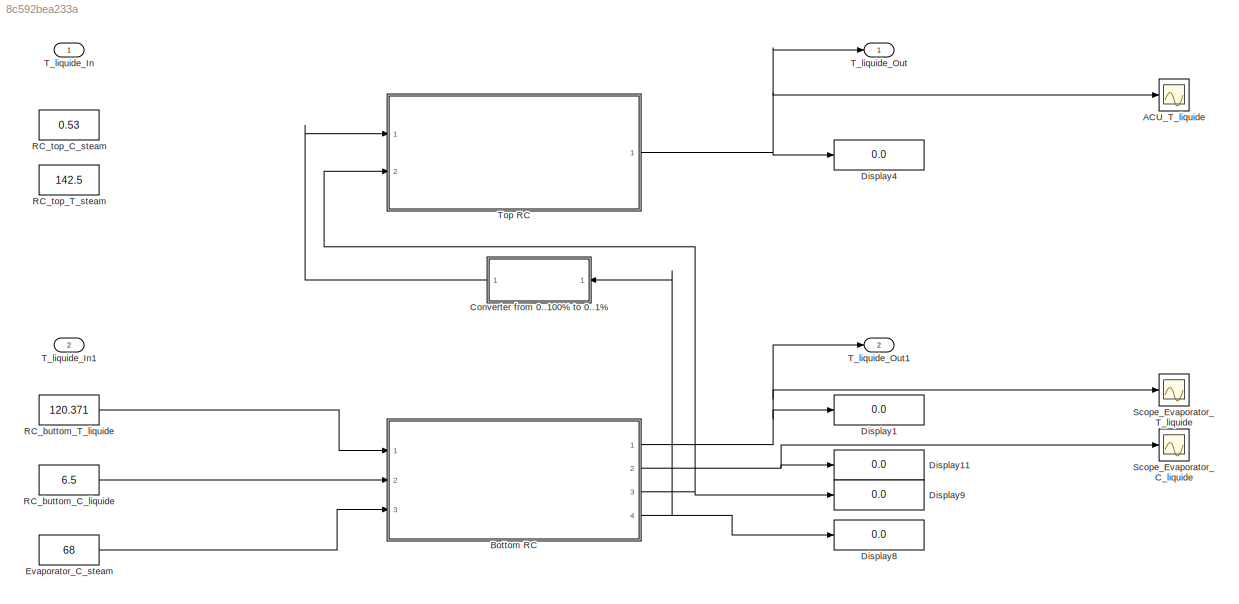
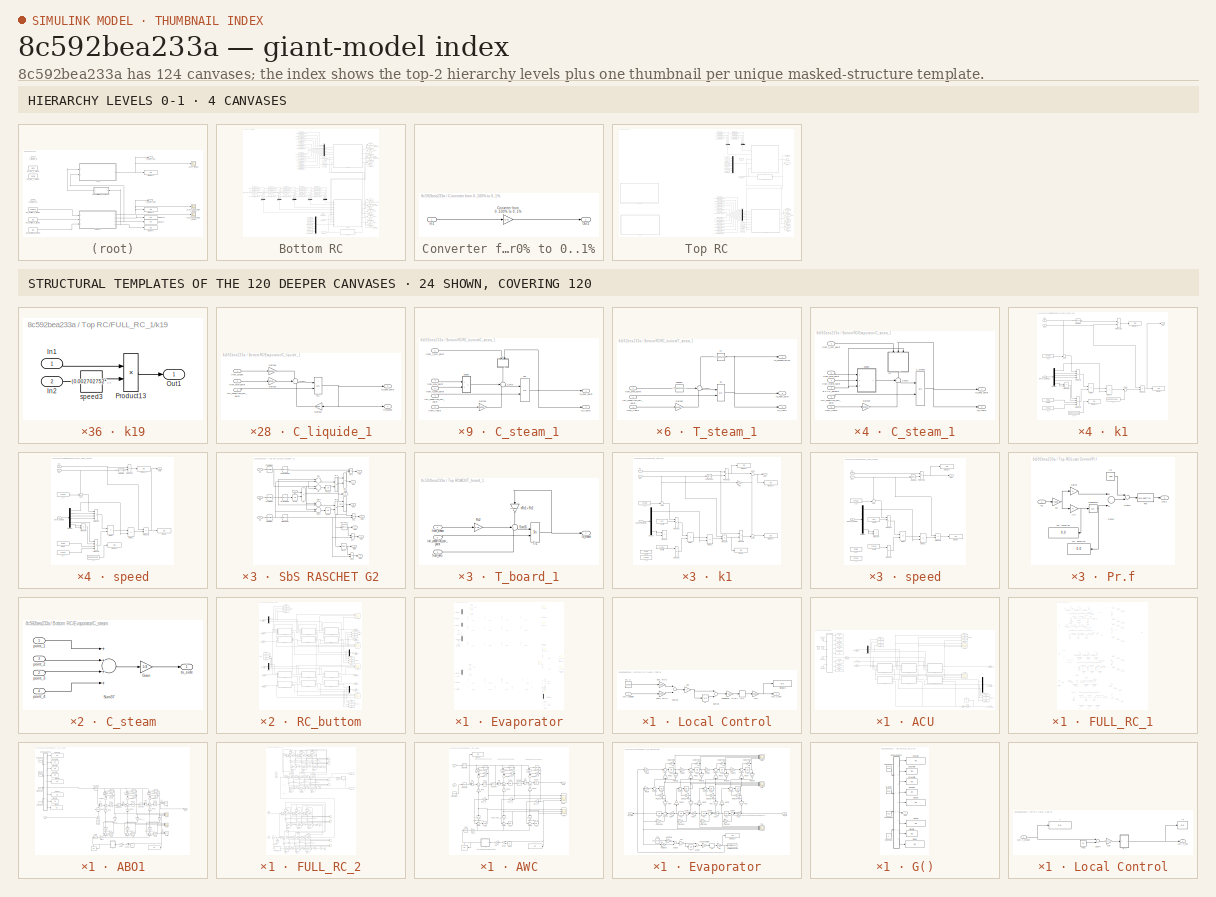
[diagram: thumbnail index - top-2 hierarchy levels (4 canvases) + 24 structural-template representatives of the remaining 120 canvases]
MODEL slx_8c592bea233a
KIND model
CONFIG AbsTol = auto
CONFIG EnableMultiTasking = off
CONFIG FixedStep = auto
CONFIG MaxStep = auto
CONFIG MinStep = auto
CONFIG RelTol = 1e-3
CONFIG SampleTimeConstraint = Unconstrained
CONFIG Solver = VariableStepAuto
CONFIG SolverName = VariableStepAuto
CONFIG StartTime = 0.0
CONFIG StopTime = 500000.0
BLOCK [Scope] ACU_T_liquide
  Floating = off
  NumInputPorts = 1
  Ports = [1]
  ScopeSpecificationString = Simulink.scopes.TimeScopeBlockCfg('CurrentConfiguration', extmgr.ConfigurationSet(extmgr.Configuration('Core','General UI',true),extmgr.Configuration('Core','Source UI',true),extmgr.Configuration('Sources','WiredSimulink',true,'DataLoggingVariableName','ScopeData1'),extmgr.Configuration('Visuals','Time Domain',true,'SerializedDisplays',{struct('MinYLimReal','24.13689','MaxYLimReal','69.53868','YLa...<+1415ch>
BLOCK [SubSystem] Bottom RC
  Ports = [3, 4]
  RequestExecContextInheritance = off
BLOCK [Display] Bottom RC/Display1
  Decimation = 1
  Ports = [1]
BLOCK [Display] Bottom RC/Display10
  Decimation = 1
  Ports = [1]
BLOCK [Display] Bottom RC/Display11
  Decimation = 1
  Ports = [1]
BLOCK [Display] Bottom RC/Display2
  Decimation = 1
  Ports = [1]
BLOCK [Display] Bottom RC/Display3
  Decimation = 1
  Ports = [1]
BLOCK [Display] Bottom RC/Display4
  Decimation = 1
  Ports = [1]
BLOCK [Display] Bottom RC/Display5
  Decimation = 1
  Ports = [1]
BLOCK [Display] Bottom RC/Display7
  Decimation = 1
  Ports = [1]
BLOCK [Display] Bottom RC/Display8
  Decimation = 1
  Ports = [1]
BLOCK [Display] Bottom RC/Display9
  Decimation = 1
  Ports = [1]
BLOCK [SubSystem] Bottom RC/Evaporator
  Ports = [10, 5]
  RequestExecContextInheritance = off
BLOCK [Scope] Bottom RC/Evaporator/C_liquide
  Floating = off
  NumInputPorts = 4
  Ports = [4]
  ScopeSpecificationString = Simulink.scopes.TimeScopeBlockCfg('CurrentConfiguration', extmgr.ConfigurationSet(extmgr.Configuration('Core','General UI',true),extmgr.Configuration('Core','Source UI',true),extmgr.Configuration('Sources','WiredSimulink',true,'DataLoggingVariableName','ScopeData2','DataLoggingSaveFormat','StructureWithTime','SampleTime','0','DataLoggingDecimation','1','DataLoggingDecimateData',true),extmgr.Config...<+1637ch>
BLOCK [SubSystem] Bottom RC/Evaporator/C_liquide_1
  Ports = [3, 2]
  RequestExecContextInheritance = off
BLOCK [Gain] Bottom RC/Evaporator/C_liquide_1/Gain18
  Gain = 0.000004000
  OutDataTypeStr = Inherit: Inherit via internal rule
  ParamDataTypeStr = Inherit: Inherit via internal rule
  SaturateOnIntegerOverflow = off
BLOCK [Gain] Bottom RC/Evaporator/C_liquide_1/Gain19
  Gain = 0.003/1.375
  OutDataTypeStr = Inherit: Inherit via internal rule
  ParamDataTypeStr = Inherit: Inherit via internal rule
  SaturateOnIntegerOverflow = off
BLOCK [Gain] Bottom RC/Evaporator/C_liquide_1/Gain22
  Gain = 0.003/1.375-(0.000004000)*10^(-9)
  OutDataTypeStr = Inherit: Inherit via internal rule
  ParamDataTypeStr = Inherit: Inherit via internal rule
  SaturateOnIntegerOverflow = off
BLOCK [Sum] Bottom RC/Evaporator/C_liquide_1/Sum2
  IconShape = round
  InputSameDT = off
  Inputs = -+-
  OutDataTypeStr = Inherit: Inherit via internal rule
  Ports = [3, 1]
  SaturateOnIntegerOverflow = off
BLOCK [Integrator] Bottom RC/Evaporator/C_liquide_1/Tl1
  InitialCondition = 124.3766
  InitialConditionSource = external
  Ports = [2, 1]
BLOCK [Inport] Bottom RC/Evaporator/C_liquide_1/from_prev_point
  IconDisplay = Port number
  Port = 2
BLOCK [Inport] Bottom RC/Evaporator/C_liquide_1/from_steam
  IconDisplay = Port number
BLOCK [Inport] Bottom RC/Evaporator/C_liquide_1/init_condition_curr_point
  IconDisplay = Port number
  Port = 3
BLOCK [Outport] Bottom RC/Evaporator/C_liquide_1/to_next_point
  IconDisplay = Port number
  Port = 2
BLOCK [Outport] Bottom RC/Evaporator/C_liquide_1/to_steam
  IconDisplay = Port number
BLOCK [SubSystem] Bottom RC/Evaporator/C_liquide_2
  Ports = [3, 2]
  RequestExecContextInheritance = off
BLOCK [Gain] Bottom RC/Evaporator/C_liquide_2/Gain18
  Gain = 0.000004000
  OutDataTypeStr = Inherit: Inherit via internal rule
  ParamDataTypeStr = Inherit: Inherit via internal rule
  SaturateOnIntegerOverflow = off
BLOCK [Gain] Bottom RC/Evaporator/C_liquide_2/Gain19
  Gain = 0.003/1.375
  OutDataTypeStr = Inherit: Inherit via internal rule
  ParamDataTypeStr = Inherit: Inherit via internal rule
  SaturateOnIntegerOverflow = off
BLOCK [Gain] Bottom RC/Evaporator/C_liquide_2/Gain22
  Gain = 0.003/1.375-(0.000004000)*10^(-9)
  OutDataTypeStr = Inherit: Inherit via internal rule
  ParamDataTypeStr = Inherit: Inherit via internal rule
  SaturateOnIntegerOverflow = off
BLOCK [Sum] Bottom RC/Evaporator/C_liquide_2/Sum2
  IconShape = round
  InputSameDT = off
  Inputs = -+-
  OutDataTypeStr = Inherit: Inherit via internal rule
  Ports = [3, 1]
  SaturateOnIntegerOverflow = off
BLOCK [Integrator] Bottom RC/Evaporator/C_liquide_2/Tl1
  InitialCondition = 124.3766
  InitialConditionSource = external
  Ports = [2, 1]
BLOCK [Inport] Bottom RC/Evaporator/C_liquide_2/from_prev_point
  IconDisplay = Port number
  Port = 2
BLOCK [Inport] Bottom RC/Evaporator/C_liquide_2/from_steam
  IconDisplay = Port number
BLOCK [Inport] Bottom RC/Evaporator/C_liquide_2/init_condition_curr_point
  IconDisplay = Port number
  Port = 3
BLOCK [Outport] Bottom RC/Evaporator/C_liquide_2/to_next_point
  IconDisplay = Port number
  Port = 2
BLOCK [Outport] Bottom RC/Evaporator/C_liquide_2/to_steam
  IconDisplay = Port number
BLOCK [SubSystem] Bottom RC/Evaporator/C_liquide_3
  Ports = [3, 2]
  RequestExecContextInheritance = off
BLOCK [Gain] Bottom RC/Evaporator/C_liquide_3/Gain18
  Gain = 0.000004000
  OutDataTypeStr = Inherit: Inherit via internal rule
  ParamDataTypeStr = Inherit: Inherit via internal rule
  SaturateOnIntegerOverflow = off
BLOCK [Gain] Bottom RC/Evaporator/C_liquide_3/Gain19
  Gain = 0.003/1.375
  OutDataTypeStr = Inherit: Inherit via internal rule
  ParamDataTypeStr = Inherit: Inherit via internal rule
  SaturateOnIntegerOverflow = off
BLOCK [Gain] Bottom RC/Evaporator/C_liquide_3/Gain22
  Gain = 0.003/1.375-(0.000004000)*10^(-9)
  OutDataTypeStr = Inherit: Inherit via internal rule
  ParamDataTypeStr = Inherit: Inherit via internal rule
  SaturateOnIntegerOverflow = off
BLOCK [Sum] Bottom RC/Evaporator/C_liquide_3/Sum2
  IconShape = round
  InputSameDT = off
  Inputs = -+-
  OutDataTypeStr = Inherit: Inherit via internal rule
  Ports = [3, 1]
  SaturateOnIntegerOverflow = off
BLOCK [Integrator] Bottom RC/Evaporator/C_liquide_3/Tl1
  InitialCondition = 124.3766
  InitialConditionSource = external
  Ports = [2, 1]
BLOCK [Inport] Bottom RC/Evaporator/C_liquide_3/from_prev_point
  IconDisplay = Port number
  Port = 2
BLOCK [Inport] Bottom RC/Evaporator/C_liquide_3/from_steam
  IconDisplay = Port number
BLOCK [Inport] Bottom RC/Evaporator/C_liquide_3/init_condition_curr_point
  IconDisplay = Port number
  Port = 3
BLOCK [Outport] Bottom RC/Evaporator/C_liquide_3/to_next_point
  IconDisplay = Port number
  Port = 2
BLOCK [Outport] Bottom RC/Evaporator/C_liquide_3/to_steam
  IconDisplay = Port number
BLOCK [SubSystem] Bottom RC/Evaporator/C_liquide_4
  Ports = [3, 2]
  RequestExecContextInheritance = off
BLOCK [Gain] Bottom RC/Evaporator/C_liquide_4/Gain18
  Gain = 0.000004000
  OutDataTypeStr = Inherit: Inherit via internal rule
  ParamDataTypeStr = Inherit: Inherit via internal rule
  SaturateOnIntegerOverflow = off
BLOCK [Gain] Bottom RC/Evaporator/C_liquide_4/Gain19
  Gain = 0.003/1.375
  OutDataTypeStr = Inherit: Inherit via internal rule
  ParamDataTypeStr = Inherit: Inherit via internal rule
  SaturateOnIntegerOverflow = off
BLOCK [Gain] Bottom RC/Evaporator/C_liquide_4/Gain22
  Gain = 0.003/1.375-(0.000004000)*10^(-9)
  OutDataTypeStr = Inherit: Inherit via internal rule
  ParamDataTypeStr = Inherit: Inherit via internal rule
  SaturateOnIntegerOverflow = off
BLOCK [Sum] Bottom RC/Evaporator/C_liquide_4/Sum2
  IconShape = round
  InputSameDT = off
  Inputs = -+-
  OutDataTypeStr = Inherit: Inherit via internal rule
  Ports = [3, 1]
  SaturateOnIntegerOverflow = off
BLOCK [Integrator] Bottom RC/Evaporator/C_liquide_4/Tl1
  InitialCondition = 124.3766
  InitialConditionSource = external
  Ports = [2, 1]
BLOCK [Inport] Bottom RC/Evaporator/C_liquide_4/from_prev_point
  IconDisplay = Port number
  Port = 2
BLOCK [Inport] Bottom RC/Evaporator/C_liquide_4/from_steam
  IconDisplay = Port number
BLOCK [Inport] Bottom RC/Evaporator/C_liquide_4/init_condition_curr_point
  IconDisplay = Port number
  Port = 3
BLOCK [Outport] Bottom RC/Evaporator/C_liquide_4/to_next_point
  IconDisplay = Port number
  Port = 2
BLOCK [Outport] Bottom RC/Evaporator/C_liquide_4/to_steam
  IconDisplay = Port number
BLOCK [SubSystem] Bottom RC/Evaporator/C_steam
  Ports = [4, 1]
  RequestExecContextInheritance = off
BLOCK [Gain] Bottom RC/Evaporator/C_steam/Gain
  Gain = 1/4
  OutDataTypeStr = Inherit: Inherit via internal rule
  ParamDataTypeStr = Inherit: Inherit via internal rule
  SaturateOnIntegerOverflow = off
BLOCK [Sum] Bottom RC/Evaporator/C_steam/Sum37
  InputSameDT = off
  Inputs = ++++
  OutDataTypeStr = Inherit: Inherit via internal rule
  Ports = [4, 1]
  SaturateOnIntegerOverflow = off
BLOCK [Inport] Bottom RC/Evaporator/C_steam/point_1
  IconDisplay = Port number
BLOCK [Inport] Bottom RC/Evaporator/C_steam/point_2
  IconDisplay = Port number
  Port = 3
BLOCK [Inport] Bottom RC/Evaporator/C_steam/point_3
  IconDisplay = Port number
  Port = 2
BLOCK [Inport] Bottom RC/Evaporator/C_steam/point_4
  IconDisplay = Port number
  Port = 4
BLOCK [Outport] Bottom RC/Evaporator/C_steam/to_side
  IconDisplay = Port number
BLOCK [SubSystem] Bottom RC/Evaporator/C_steam_1
  Ports = [6, 2]
  RequestExecContextInheritance = off
BLOCK [Integrator] Bottom RC/Evaporator/C_steam_1/C_steam
  InitialCondition = 156.9966
  InitialConditionSource = external
  Ports = [2, 1]
BLOCK [Inport] Bottom RC/Evaporator/C_steam_1/EVAP_params
  IconDisplay = Port number
  Port = 4
BLOCK [Gain] Bottom RC/Evaporator/C_steam_1/Gain29
  Gain = 0.0000216487318*10^(-9)
  OutDataTypeStr = Inherit: Inherit via internal rule
  ParamDataTypeStr = Inherit: Inherit via internal rule
  SaturateOnIntegerOverflow = off
BLOCK [Sum] Bottom RC/Evaporator/C_steam_1/Sum3
  IconShape = round
  InputSameDT = off
  Inputs = -+-
  OutDataTypeStr = Inherit: Inherit via internal rule
  Ports = [3, 1]
  SaturateOnIntegerOverflow = off
BLOCK [Inport] Bottom RC/Evaporator/C_steam_1/from_T_curr_point
  IconDisplay = Port number
  Port = 2
BLOCK [Inport] Bottom RC/Evaporator/C_steam_1/from_T_prev_point
  IconDisplay = Port number
BLOCK [Inport] Bottom RC/Evaporator/C_steam_1/from_liquid
  IconDisplay = Port number
  Port = 6
BLOCK [Inport] Bottom RC/Evaporator/C_steam_1/from_prev_point
  IconDisplay = Port number
  Port = 5
BLOCK [Inport] Bottom RC/Evaporator/C_steam_1/init_condition_curr_point
  IconDisplay = Port number
  Port = 3
BLOCK [SubSystem] Bottom RC/Evaporator/C_steam_1/k1
  Ports = [3, 1]
  RequestExecContextInheritance = off
BLOCK [Constant] Bottom RC/Evaporator/C_steam_1/k1/Coeff
  Value = 0.785
BLOCK [Demux] Bottom RC/Evaporator/C_steam_1/k1/Demux
  DisplayOption = bar
  Outputs = 6
  Ports = [1, 6]
BLOCK [Display] Bottom RC/Evaporator/C_steam_1/k1/Display
  Decimation = 1
  Ports = [1]
BLOCK [Display] Bottom RC/Evaporator/C_steam_1/k1/Display1
  Decimation = 1
  Ports = [1]
BLOCK [Display] Bottom RC/Evaporator/C_steam_1/k1/Display2
  Decimation = 1
  Ports = [1]
BLOCK [Product] Bottom RC/Evaporator/C_steam_1/k1/Divide
  InputSameDT = off
  Inputs = */
  OutDataTypeStr = Inherit: Inherit via internal rule
  Ports = [2, 1]
  RndMeth = Floor
  SaturateOnIntegerOverflow = off
BLOCK [Product] Bottom RC/Evaporator/C_steam_1/k1/Divide1
  InputSameDT = off
  Inputs = */
  OutDataTypeStr = Inherit: Inherit via internal rule
  Ports = [2, 1]
  RndMeth = Floor
  SaturateOnIntegerOverflow = off
BLOCK [Inport] Bottom RC/Evaporator/C_steam_1/k1/EVAP_params1
  IconDisplay = Port number
  Port = 3
BLOCK [Inport] Bottom RC/Evaporator/C_steam_1/k1/In1
  IconDisplay = Port number
BLOCK [Inport] Bottom RC/Evaporator/C_steam_1/k1/In2
  IconDisplay = Port number
  Port = 2
BLOCK [Outport] Bottom RC/Evaporator/C_steam_1/k1/Out1
  IconDisplay = Port number
BLOCK [Product] Bottom RC/Evaporator/C_steam_1/k1/Product1
  Inputs = 4
  Ports = [4, 1]
  RndMeth = Floor
BLOCK [Product] Bottom RC/Evaporator/C_steam_1/k1/Product13
  Ports = [2, 1]
  RndMeth = Floor
BLOCK [Product] Bottom RC/Evaporator/C_steam_1/k1/Product2
  Inputs = 4
  Ports = [4, 1]
  RndMeth = Floor
BLOCK [Product] Bottom RC/Evaporator/C_steam_1/k1/Product3
  Ports = [2, 1]
  RndMeth = Floor
BLOCK [Product] Bottom RC/Evaporator/C_steam_1/k1/Product4
  Ports = [2, 1]
  RndMeth = Floor
BLOCK [Sum] Bottom RC/Evaporator/C_steam_1/k1/Sum
  IconShape = round
  InputSameDT = off
  Inputs = ++|
  OutDataTypeStr = Inherit: Inherit via internal rule
  Ports = [2, 1]
  SaturateOnIntegerOverflow = off
BLOCK [Sum] Bottom RC/Evaporator/C_steam_1/k1/Sum1
  IconShape = round
  InputSameDT = off
  Inputs = |+-
  OutDataTypeStr = Inherit: Inherit via internal rule
  Ports = [2, 1]
  SaturateOnIntegerOverflow = off
BLOCK [Constant] Bottom RC/Evaporator/C_steam_1/k1/T_0
  Value = 273.15
BLOCK [Constant] Bottom RC/Evaporator/C_steam_1/k1/T_1
  Value = 273.15
BLOCK [Constant] Bottom RC/Evaporator/C_steam_1/k1/T_2
  Value = 0.0000216487318
BLOCK [Constant] Bottom RC/Evaporator/C_steam_1/k1/T_3
  Value = 0.003223135
BLOCK [Fcn] Bottom RC/Evaporator/C_steam_1/k1/speed3
  Expr = ((0.003223135*(273+u))/24.69822264)/1.375-0.004302
BLOCK [SubSystem] Bottom RC/Evaporator/C_steam_1/speed
  Ports = [3, 1]
  RequestExecContextInheritance = off
BLOCK [Constant] Bottom RC/Evaporator/C_steam_1/speed/Coeff
  Value = 0.785
BLOCK [Demux] Bottom RC/Evaporator/C_steam_1/speed/Demux
  DisplayOption = bar
  Outputs = 6
  Ports = [1, 6]
BLOCK [Display] Bottom RC/Evaporator/C_steam_1/speed/Display
  Decimation = 1
  Ports = [1]
BLOCK [Display] Bottom RC/Evaporator/C_steam_1/speed/Display1
  Decimation = 1
  Ports = [1]
BLOCK [Display] Bottom RC/Evaporator/C_steam_1/speed/Display2
  Decimation = 1
  Ports = [1]
BLOCK [Product] Bottom RC/Evaporator/C_steam_1/speed/Divide
  InputSameDT = off
  Inputs = */
  OutDataTypeStr = Inherit: Inherit via internal rule
  Ports = [2, 1]
  RndMeth = Floor
  SaturateOnIntegerOverflow = off
BLOCK [Product] Bottom RC/Evaporator/C_steam_1/speed/Divide1
  InputSameDT = off
  Inputs = */
  OutDataTypeStr = Inherit: Inherit via internal rule
  Ports = [2, 1]
  RndMeth = Floor
  SaturateOnIntegerOverflow = off
BLOCK [Inport] Bottom RC/Evaporator/C_steam_1/speed/EVAP_params
  IconDisplay = Port number
  Port = 3
BLOCK [Inport] Bottom RC/Evaporator/C_steam_1/speed/In1
  IconDisplay = Port number
BLOCK [Inport] Bottom RC/Evaporator/C_steam_1/speed/In2
  IconDisplay = Port number
  Port = 2
BLOCK [Outport] Bottom RC/Evaporator/C_steam_1/speed/Out1
  IconDisplay = Port number
BLOCK [Product] Bottom RC/Evaporator/C_steam_1/speed/Product1
  Inputs = 4
  Ports = [4, 1]
  RndMeth = Floor
BLOCK [Product] Bottom RC/Evaporator/C_steam_1/speed/Product13
  Ports = [2, 1]
  RndMeth = Floor
BLOCK [Product] Bottom RC/Evaporator/C_steam_1/speed/Product2
  Inputs = 4
  Ports = [4, 1]
  RndMeth = Floor
BLOCK [Product] Bottom RC/Evaporator/C_steam_1/speed/Product3
  Ports = [2, 1]
  RndMeth = Floor
BLOCK [Product] Bottom RC/Evaporator/C_steam_1/speed/Product4
  Ports = [2, 1]
  RndMeth = Floor
BLOCK [Sum] Bottom RC/Evaporator/C_steam_1/speed/Sum
  IconShape = round
  InputSameDT = off
  Inputs = ++|
  OutDataTypeStr = Inherit: Inherit via internal rule
  Ports = [2, 1]
  SaturateOnIntegerOverflow = off
BLOCK [Constant] Bottom RC/Evaporator/C_steam_1/speed/T_0
  Value = 273.15
BLOCK [Constant] Bottom RC/Evaporator/C_steam_1/speed/T_1
  Value = 273.15
BLOCK [Constant] Bottom RC/Evaporator/C_steam_1/speed/T_2
  Value = 0.003223135
BLOCK [Fcn] Bottom RC/Evaporator/C_steam_1/speed/speed3
  Expr = ((0.003223135*(273+u))/24.69822264)/1.375
BLOCK [Outport] Bottom RC/Evaporator/C_steam_1/to_liquid
  IconDisplay = Port number
  Port = 2
BLOCK [Outport] Bottom RC/Evaporator/C_steam_1/to_next_point
  IconDisplay = Port number
BLOCK [SubSystem] Bottom RC/Evaporator/C_steam_2
  Ports = [6, 2]
  RequestExecContextInheritance = off
BLOCK [Integrator] Bottom RC/Evaporator/C_steam_2/C_steam
  InitialCondition = 156.9966
  InitialConditionSource = external
  Ports = [2, 1]
BLOCK [Inport] Bottom RC/Evaporator/C_steam_2/EVAP_params
  IconDisplay = Port number
  Port = 4
BLOCK [Gain] Bottom RC/Evaporator/C_steam_2/Gain29
  Gain = 0.0000216487318*10^(-9)
  OutDataTypeStr = Inherit: Inherit via internal rule
  ParamDataTypeStr = Inherit: Inherit via internal rule
  SaturateOnIntegerOverflow = off
BLOCK [Sum] Bottom RC/Evaporator/C_steam_2/Sum3
  IconShape = round
  InputSameDT = off
  Inputs = -+-
  OutDataTypeStr = Inherit: Inherit via internal rule
  Ports = [3, 1]
  SaturateOnIntegerOverflow = off
BLOCK [Inport] Bottom RC/Evaporator/C_steam_2/from_T_curr_point
  IconDisplay = Port number
  Port = 2
BLOCK [Inport] Bottom RC/Evaporator/C_steam_2/from_T_prev_point
  IconDisplay = Port number
BLOCK [Inport] Bottom RC/Evaporator/C_steam_2/from_liquid
  IconDisplay = Port number
  Port = 6
BLOCK [Inport] Bottom RC/Evaporator/C_steam_2/from_prev_point
  IconDisplay = Port number
  Port = 5
BLOCK [Inport] Bottom RC/Evaporator/C_steam_2/init_condition_curr_point
  IconDisplay = Port number
  Port = 3
BLOCK [SubSystem] Bottom RC/Evaporator/C_steam_2/k1
  Ports = [3, 1]
  RequestExecContextInheritance = off
BLOCK [Constant] Bottom RC/Evaporator/C_steam_2/k1/Coeff
  Value = 0.785
BLOCK [Demux] Bottom RC/Evaporator/C_steam_2/k1/Demux
  DisplayOption = bar
  Outputs = 6
  Ports = [1, 6]
BLOCK [Display] Bottom RC/Evaporator/C_steam_2/k1/Display
  Decimation = 1
  Ports = [1]
BLOCK [Display] Bottom RC/Evaporator/C_steam_2/k1/Display1
  Decimation = 1
  Ports = [1]
BLOCK [Display] Bottom RC/Evaporator/C_steam_2/k1/Display2
  Decimation = 1
  Ports = [1]
BLOCK [Product] Bottom RC/Evaporator/C_steam_2/k1/Divide
  InputSameDT = off
  Inputs = */
  OutDataTypeStr = Inherit: Inherit via internal rule
  Ports = [2, 1]
  RndMeth = Floor
  SaturateOnIntegerOverflow = off
BLOCK [Product] Bottom RC/Evaporator/C_steam_2/k1/Divide1
  InputSameDT = off
  Inputs = */
  OutDataTypeStr = Inherit: Inherit via internal rule
  Ports = [2, 1]
  RndMeth = Floor
  SaturateOnIntegerOverflow = off
BLOCK [Inport] Bottom RC/Evaporator/C_steam_2/k1/EVAP_params1
  IconDisplay = Port number
  Port = 3
BLOCK [Inport] Bottom RC/Evaporator/C_steam_2/k1/In1
  IconDisplay = Port number
BLOCK [Inport] Bottom RC/Evaporator/C_steam_2/k1/In2
  IconDisplay = Port number
  Port = 2
BLOCK [Outport] Bottom RC/Evaporator/C_steam_2/k1/Out1
  IconDisplay = Port number
BLOCK [Product] Bottom RC/Evaporator/C_steam_2/k1/Product1
  Inputs = 4
  Ports = [4, 1]
  RndMeth = Floor
BLOCK [Product] Bottom RC/Evaporator/C_steam_2/k1/Product13
  Ports = [2, 1]
  RndMeth = Floor
BLOCK [Product] Bottom RC/Evaporator/C_steam_2/k1/Product2
  Inputs = 4
  Ports = [4, 1]
  RndMeth = Floor
BLOCK [Product] Bottom RC/Evaporator/C_steam_2/k1/Product3
  Ports = [2, 1]
  RndMeth = Floor
BLOCK [Product] Bottom RC/Evaporator/C_steam_2/k1/Product4
  Ports = [2, 1]
  RndMeth = Floor
BLOCK [Sum] Bottom RC/Evaporator/C_steam_2/k1/Sum
  IconShape = round
  InputSameDT = off
  Inputs = ++|
  OutDataTypeStr = Inherit: Inherit via internal rule
  Ports = [2, 1]
  SaturateOnIntegerOverflow = off
BLOCK [Sum] Bottom RC/Evaporator/C_steam_2/k1/Sum1
  IconShape = round
  InputSameDT = off
  Inputs = |+-
  OutDataTypeStr = Inherit: Inherit via internal rule
  Ports = [2, 1]
  SaturateOnIntegerOverflow = off
BLOCK [Constant] Bottom RC/Evaporator/C_steam_2/k1/T_0
  Value = 273.15
BLOCK [Constant] Bottom RC/Evaporator/C_steam_2/k1/T_1
  Value = 273.15
BLOCK [Constant] Bottom RC/Evaporator/C_steam_2/k1/T_2
  Value = 0.0000216487318
BLOCK [Constant] Bottom RC/Evaporator/C_steam_2/k1/T_3
  Value = 0.003223135
BLOCK [Fcn] Bottom RC/Evaporator/C_steam_2/k1/speed3
  Expr = ((0.003223135*(273+u))/24.69822264)/1.375-0.004302
BLOCK [SubSystem] Bottom RC/Evaporator/C_steam_2/speed
  Ports = [3, 1]
  RequestExecContextInheritance = off
BLOCK [Constant] Bottom RC/Evaporator/C_steam_2/speed/Coeff
  Value = 0.785
BLOCK [Demux] Bottom RC/Evaporator/C_steam_2/speed/Demux
  DisplayOption = bar
  Outputs = 6
  Ports = [1, 6]
BLOCK [Display] Bottom RC/Evaporator/C_steam_2/speed/Display
  Decimation = 1
  Ports = [1]
BLOCK [Display] Bottom RC/Evaporator/C_steam_2/speed/Display1
  Decimation = 1
  Ports = [1]
BLOCK [Display] Bottom RC/Evaporator/C_steam_2/speed/Display2
  Decimation = 1
  Ports = [1]
BLOCK [Product] Bottom RC/Evaporator/C_steam_2/speed/Divide
  InputSameDT = off
  Inputs = */
  OutDataTypeStr = Inherit: Inherit via internal rule
  Ports = [2, 1]
  RndMeth = Floor
  SaturateOnIntegerOverflow = off
BLOCK [Product] Bottom RC/Evaporator/C_steam_2/speed/Divide1
  InputSameDT = off
  Inputs = */
  OutDataTypeStr = Inherit: Inherit via internal rule
  Ports = [2, 1]
  RndMeth = Floor
  SaturateOnIntegerOverflow = off
BLOCK [Inport] Bottom RC/Evaporator/C_steam_2/speed/EVAP_params
  IconDisplay = Port number
  Port = 3
BLOCK [Inport] Bottom RC/Evaporator/C_steam_2/speed/In1
  IconDisplay = Port number
BLOCK [Inport] Bottom RC/Evaporator/C_steam_2/speed/In2
  IconDisplay = Port number
  Port = 2
BLOCK [Outport] Bottom RC/Evaporator/C_steam_2/speed/Out1
  IconDisplay = Port number
BLOCK [Product] Bottom RC/Evaporator/C_steam_2/speed/Product1
  Inputs = 4
  Ports = [4, 1]
  RndMeth = Floor
BLOCK [Product] Bottom RC/Evaporator/C_steam_2/speed/Product13
  Ports = [2, 1]
  RndMeth = Floor
BLOCK [Product] Bottom RC/Evaporator/C_steam_2/speed/Product2
  Inputs = 4
  Ports = [4, 1]
  RndMeth = Floor
BLOCK [Product] Bottom RC/Evaporator/C_steam_2/speed/Product3
  Ports = [2, 1]
  RndMeth = Floor
BLOCK [Product] Bottom RC/Evaporator/C_steam_2/speed/Product4
  Ports = [2, 1]
  RndMeth = Floor
BLOCK [Sum] Bottom RC/Evaporator/C_steam_2/speed/Sum
  IconShape = round
  InputSameDT = off
  Inputs = ++|
  OutDataTypeStr = Inherit: Inherit via internal rule
  Ports = [2, 1]
  SaturateOnIntegerOverflow = off
BLOCK [Constant] Bottom RC/Evaporator/C_steam_2/speed/T_0
  Value = 273.15
BLOCK [Constant] Bottom RC/Evaporator/C_steam_2/speed/T_1
  Value = 273.15
BLOCK [Constant] Bottom RC/Evaporator/C_steam_2/speed/T_2
  Value = 0.003223135
BLOCK [Fcn] Bottom RC/Evaporator/C_steam_2/speed/speed3
  Expr = ((0.003223135*(273+u))/24.69822264)/1.375
BLOCK [Outport] Bottom RC/Evaporator/C_steam_2/to_liquid
  IconDisplay = Port number
  Port = 2
BLOCK [Outport] Bottom RC/Evaporator/C_steam_2/to_next_point
  IconDisplay = Port number
BLOCK [SubSystem] Bottom RC/Evaporator/C_steam_3
  Ports = [6, 2]
  RequestExecContextInheritance = off
BLOCK [Integrator] Bottom RC/Evaporator/C_steam_3/C_steam
  InitialCondition = 156.9966
  InitialConditionSource = external
  Ports = [2, 1]
BLOCK [Inport] Bottom RC/Evaporator/C_steam_3/EVAP_params
  IconDisplay = Port number
  Port = 4
BLOCK [Gain] Bottom RC/Evaporator/C_steam_3/Gain29
  Gain = 0.0000216487318*10^(-9)
  OutDataTypeStr = Inherit: Inherit via internal rule
  ParamDataTypeStr = Inherit: Inherit via internal rule
  SaturateOnIntegerOverflow = off
BLOCK [Sum] Bottom RC/Evaporator/C_steam_3/Sum3
  IconShape = round
  InputSameDT = off
  Inputs = -+-
  OutDataTypeStr = Inherit: Inherit via internal rule
  Ports = [3, 1]
  SaturateOnIntegerOverflow = off
BLOCK [Inport] Bottom RC/Evaporator/C_steam_3/from_T_curr_point
  IconDisplay = Port number
  Port = 2
BLOCK [Inport] Bottom RC/Evaporator/C_steam_3/from_T_prev_point
  IconDisplay = Port number
BLOCK [Inport] Bottom RC/Evaporator/C_steam_3/from_liquid
  IconDisplay = Port number
  Port = 6
BLOCK [Inport] Bottom RC/Evaporator/C_steam_3/from_prev_point
  IconDisplay = Port number
  Port = 5
BLOCK [Inport] Bottom RC/Evaporator/C_steam_3/init_condition_curr_point
  IconDisplay = Port number
  Port = 3
BLOCK [SubSystem] Bottom RC/Evaporator/C_steam_3/k1
  Ports = [3, 1]
  RequestExecContextInheritance = off
BLOCK [Constant] Bottom RC/Evaporator/C_steam_3/k1/Coeff
  Value = 0.785
BLOCK [Demux] Bottom RC/Evaporator/C_steam_3/k1/Demux
  DisplayOption = bar
  Outputs = 6
  Ports = [1, 6]
BLOCK [Display] Bottom RC/Evaporator/C_steam_3/k1/Display
  Decimation = 1
  Ports = [1]
BLOCK [Display] Bottom RC/Evaporator/C_steam_3/k1/Display1
  Decimation = 1
  Ports = [1]
BLOCK [Display] Bottom RC/Evaporator/C_steam_3/k1/Display2
  Decimation = 1
  Ports = [1]
BLOCK [Product] Bottom RC/Evaporator/C_steam_3/k1/Divide
  InputSameDT = off
  Inputs = */
  OutDataTypeStr = Inherit: Inherit via internal rule
  Ports = [2, 1]
  RndMeth = Floor
  SaturateOnIntegerOverflow = off
BLOCK [Product] Bottom RC/Evaporator/C_steam_3/k1/Divide1
  InputSameDT = off
  Inputs = */
  OutDataTypeStr = Inherit: Inherit via internal rule
  Ports = [2, 1]
  RndMeth = Floor
  SaturateOnIntegerOverflow = off
BLOCK [Inport] Bottom RC/Evaporator/C_steam_3/k1/EVAP_params1
  IconDisplay = Port number
  Port = 3
BLOCK [Inport] Bottom RC/Evaporator/C_steam_3/k1/In1
  IconDisplay = Port number
BLOCK [Inport] Bottom RC/Evaporator/C_steam_3/k1/In2
  IconDisplay = Port number
  Port = 2
BLOCK [Outport] Bottom RC/Evaporator/C_steam_3/k1/Out1
  IconDisplay = Port number
BLOCK [Product] Bottom RC/Evaporator/C_steam_3/k1/Product1
  Inputs = 4
  Ports = [4, 1]
  RndMeth = Floor
BLOCK [Product] Bottom RC/Evaporator/C_steam_3/k1/Product13
  Ports = [2, 1]
  RndMeth = Floor
BLOCK [Product] Bottom RC/Evaporator/C_steam_3/k1/Product2
  Inputs = 4
  Ports = [4, 1]
  RndMeth = Floor
BLOCK [Product] Bottom RC/Evaporator/C_steam_3/k1/Product3
  Ports = [2, 1]
  RndMeth = Floor
BLOCK [Product] Bottom RC/Evaporator/C_steam_3/k1/Product4
  Ports = [2, 1]
  RndMeth = Floor
BLOCK [Sum] Bottom RC/Evaporator/C_steam_3/k1/Sum
  IconShape = round
  InputSameDT = off
  Inputs = ++|
  OutDataTypeStr = Inherit: Inherit via internal rule
  Ports = [2, 1]
  SaturateOnIntegerOverflow = off
BLOCK [Sum] Bottom RC/Evaporator/C_steam_3/k1/Sum1
  IconShape = round
  InputSameDT = off
  Inputs = |+-
  OutDataTypeStr = Inherit: Inherit via internal rule
  Ports = [2, 1]
  SaturateOnIntegerOverflow = off
BLOCK [Constant] Bottom RC/Evaporator/C_steam_3/k1/T_0
  Value = 273.15
BLOCK [Constant] Bottom RC/Evaporator/C_steam_3/k1/T_1
  Value = 273.15
BLOCK [Constant] Bottom RC/Evaporator/C_steam_3/k1/T_2
  Value = 0.0000216487318
BLOCK [Constant] Bottom RC/Evaporator/C_steam_3/k1/T_3
  Value = 0.003223135
BLOCK [Fcn] Bottom RC/Evaporator/C_steam_3/k1/speed3
  Expr = ((0.003223135*(273+u))/24.69822264)/1.375-0.004302
BLOCK [SubSystem] Bottom RC/Evaporator/C_steam_3/speed
  Ports = [3, 1]
  RequestExecContextInheritance = off
BLOCK [Constant] Bottom RC/Evaporator/C_steam_3/speed/Coeff
  Value = 0.785
BLOCK [Demux] Bottom RC/Evaporator/C_steam_3/speed/Demux
  DisplayOption = bar
  Outputs = 6
  Ports = [1, 6]
BLOCK [Display] Bottom RC/Evaporator/C_steam_3/speed/Display
  Decimation = 1
  Ports = [1]
BLOCK [Display] Bottom RC/Evaporator/C_steam_3/speed/Display1
  Decimation = 1
  Ports = [1]
BLOCK [Display] Bottom RC/Evaporator/C_steam_3/speed/Display2
  Decimation = 1
  Ports = [1]
BLOCK [Product] Bottom RC/Evaporator/C_steam_3/speed/Divide
  InputSameDT = off
  Inputs = */
  OutDataTypeStr = Inherit: Inherit via internal rule
  Ports = [2, 1]
  RndMeth = Floor
  SaturateOnIntegerOverflow = off
BLOCK [Product] Bottom RC/Evaporator/C_steam_3/speed/Divide1
  InputSameDT = off
  Inputs = */
  OutDataTypeStr = Inherit: Inherit via internal rule
  Ports = [2, 1]
  RndMeth = Floor
  SaturateOnIntegerOverflow = off
BLOCK [Inport] Bottom RC/Evaporator/C_steam_3/speed/EVAP_params
  IconDisplay = Port number
  Port = 3
BLOCK [Inport] Bottom RC/Evaporator/C_steam_3/speed/In1
  IconDisplay = Port number
BLOCK [Inport] Bottom RC/Evaporator/C_steam_3/speed/In2
  IconDisplay = Port number
  Port = 2
BLOCK [Outport] Bottom RC/Evaporator/C_steam_3/speed/Out1
  IconDisplay = Port number
BLOCK [Product] Bottom RC/Evaporator/C_steam_3/speed/Product1
  Inputs = 4
  Ports = [4, 1]
  RndMeth = Floor
BLOCK [Product] Bottom RC/Evaporator/C_steam_3/speed/Product13
  Ports = [2, 1]
  RndMeth = Floor
BLOCK [Product] Bottom RC/Evaporator/C_steam_3/speed/Product2
  Inputs = 4
  Ports = [4, 1]
  RndMeth = Floor
BLOCK [Product] Bottom RC/Evaporator/C_steam_3/speed/Product3
  Ports = [2, 1]
  RndMeth = Floor
BLOCK [Product] Bottom RC/Evaporator/C_steam_3/speed/Product4
  Ports = [2, 1]
  RndMeth = Floor
BLOCK [Sum] Bottom RC/Evaporator/C_steam_3/speed/Sum
  IconShape = round
  InputSameDT = off
  Inputs = ++|
  OutDataTypeStr = Inherit: Inherit via internal rule
  Ports = [2, 1]
  SaturateOnIntegerOverflow = off
BLOCK [Constant] Bottom RC/Evaporator/C_steam_3/speed/T_0
  Value = 273.15
BLOCK [Constant] Bottom RC/Evaporator/C_steam_3/speed/T_1
  Value = 273.15
BLOCK [Constant] Bottom RC/Evaporator/C_steam_3/speed/T_2
  Value = 0.003223135
BLOCK [Fcn] Bottom RC/Evaporator/C_steam_3/speed/speed3
  Expr = ((0.003223135*(273+u))/24.69822264)/1.375
BLOCK [Outport] Bottom RC/Evaporator/C_steam_3/to_liquid
  IconDisplay = Port number
  Port = 2
BLOCK [Outport] Bottom RC/Evaporator/C_steam_3/to_next_point
  IconDisplay = Port number
BLOCK [SubSystem] Bottom RC/Evaporator/C_steam_4
  Ports = [6, 2]
  RequestExecContextInheritance = off
BLOCK [Integrator] Bottom RC/Evaporator/C_steam_4/C_steam
  InitialCondition = 156.9966
  InitialConditionSource = external
  Ports = [2, 1]
BLOCK [Inport] Bottom RC/Evaporator/C_steam_4/EVAP_params
  IconDisplay = Port number
  Port = 4
BLOCK [Gain] Bottom RC/Evaporator/C_steam_4/Gain29
  Gain = 0.0000216487318*10^(-9)
  OutDataTypeStr = Inherit: Inherit via internal rule
  ParamDataTypeStr = Inherit: Inherit via internal rule
  SaturateOnIntegerOverflow = off
BLOCK [Sum] Bottom RC/Evaporator/C_steam_4/Sum3
  IconShape = round
  InputSameDT = off
  Inputs = -+-
  OutDataTypeStr = Inherit: Inherit via internal rule
  Ports = [3, 1]
  SaturateOnIntegerOverflow = off
BLOCK [Inport] Bottom RC/Evaporator/C_steam_4/from_T_curr_point
  IconDisplay = Port number
  Port = 2
BLOCK [Inport] Bottom RC/Evaporator/C_steam_4/from_T_prev_point
  IconDisplay = Port number
BLOCK [Inport] Bottom RC/Evaporator/C_steam_4/from_liquid
  IconDisplay = Port number
  Port = 6
BLOCK [Inport] Bottom RC/Evaporator/C_steam_4/from_prev_point
  IconDisplay = Port number
  Port = 5
BLOCK [Inport] Bottom RC/Evaporator/C_steam_4/init_condition_curr_point
  IconDisplay = Port number
  Port = 3
BLOCK [SubSystem] Bottom RC/Evaporator/C_steam_4/k1
  Ports = [3, 1]
  RequestExecContextInheritance = off
BLOCK [Constant] Bottom RC/Evaporator/C_steam_4/k1/Coeff
  Value = 0.785
BLOCK [Demux] Bottom RC/Evaporator/C_steam_4/k1/Demux
  DisplayOption = bar
  Outputs = 6
  Ports = [1, 6]
BLOCK [Display] Bottom RC/Evaporator/C_steam_4/k1/Display
  Decimation = 1
  Ports = [1]
BLOCK [Display] Bottom RC/Evaporator/C_steam_4/k1/Display1
  Decimation = 1
  Ports = [1]
BLOCK [Display] Bottom RC/Evaporator/C_steam_4/k1/Display2
  Decimation = 1
  Ports = [1]
BLOCK [Product] Bottom RC/Evaporator/C_steam_4/k1/Divide
  InputSameDT = off
  Inputs = */
  OutDataTypeStr = Inherit: Inherit via internal rule
  Ports = [2, 1]
  RndMeth = Floor
  SaturateOnIntegerOverflow = off
BLOCK [Product] Bottom RC/Evaporator/C_steam_4/k1/Divide1
  InputSameDT = off
  Inputs = */
  OutDataTypeStr = Inherit: Inherit via internal rule
  Ports = [2, 1]
  RndMeth = Floor
  SaturateOnIntegerOverflow = off
BLOCK [Inport] Bottom RC/Evaporator/C_steam_4/k1/EVAP_params1
  IconDisplay = Port number
  Port = 3
BLOCK [Inport] Bottom RC/Evaporator/C_steam_4/k1/In1
  IconDisplay = Port number
BLOCK [Inport] Bottom RC/Evaporator/C_steam_4/k1/In2
  IconDisplay = Port number
  Port = 2
BLOCK [Outport] Bottom RC/Evaporator/C_steam_4/k1/Out1
  IconDisplay = Port number
BLOCK [Product] Bottom RC/Evaporator/C_steam_4/k1/Product1
  Inputs = 4
  Ports = [4, 1]
  RndMeth = Floor
BLOCK [Product] Bottom RC/Evaporator/C_steam_4/k1/Product13
  Ports = [2, 1]
  RndMeth = Floor
BLOCK [Product] Bottom RC/Evaporator/C_steam_4/k1/Product2
  Inputs = 4
  Ports = [4, 1]
  RndMeth = Floor
BLOCK [Product] Bottom RC/Evaporator/C_steam_4/k1/Product3
  Ports = [2, 1]
  RndMeth = Floor
BLOCK [Product] Bottom RC/Evaporator/C_steam_4/k1/Product4
  Ports = [2, 1]
  RndMeth = Floor
BLOCK [Sum] Bottom RC/Evaporator/C_steam_4/k1/Sum
  IconShape = round
  InputSameDT = off
  Inputs = ++|
  OutDataTypeStr = Inherit: Inherit via internal rule
  Ports = [2, 1]
  SaturateOnIntegerOverflow = off
BLOCK [Sum] Bottom RC/Evaporator/C_steam_4/k1/Sum1
  IconShape = round
  InputSameDT = off
  Inputs = |+-
  OutDataTypeStr = Inherit: Inherit via internal rule
  Ports = [2, 1]
  SaturateOnIntegerOverflow = off
BLOCK [Constant] Bottom RC/Evaporator/C_steam_4/k1/T_0
  Value = 273.15
BLOCK [Constant] Bottom RC/Evaporator/C_steam_4/k1/T_1
  Value = 273.15
BLOCK [Constant] Bottom RC/Evaporator/C_steam_4/k1/T_2
  Value = 0.0000216487318
BLOCK [Constant] Bottom RC/Evaporator/C_steam_4/k1/T_3
  Value = 0.003223135
BLOCK [Fcn] Bottom RC/Evaporator/C_steam_4/k1/speed3
  Expr = ((0.003223135*(273+u))/24.69822264)/1.375-0.004302
BLOCK [SubSystem] Bottom RC/Evaporator/C_steam_4/speed
  Ports = [3, 1]
  RequestExecContextInheritance = off
BLOCK [Constant] Bottom RC/Evaporator/C_steam_4/speed/Coeff
  Value = 0.785
BLOCK [Demux] Bottom RC/Evaporator/C_steam_4/speed/Demux
  DisplayOption = bar
  Outputs = 6
  Ports = [1, 6]
BLOCK [Display] Bottom RC/Evaporator/C_steam_4/speed/Display
  Decimation = 1
  Ports = [1]
BLOCK [Display] Bottom RC/Evaporator/C_steam_4/speed/Display1
  Decimation = 1
  Ports = [1]
BLOCK [Display] Bottom RC/Evaporator/C_steam_4/speed/Display2
  Decimation = 1
  Ports = [1]
BLOCK [Product] Bottom RC/Evaporator/C_steam_4/speed/Divide
  InputSameDT = off
  Inputs = */
  OutDataTypeStr = Inherit: Inherit via internal rule
  Ports = [2, 1]
  RndMeth = Floor
  SaturateOnIntegerOverflow = off
BLOCK [Product] Bottom RC/Evaporator/C_steam_4/speed/Divide1
  InputSameDT = off
  Inputs = */
  OutDataTypeStr = Inherit: Inherit via internal rule
  Ports = [2, 1]
  RndMeth = Floor
  SaturateOnIntegerOverflow = off
BLOCK [Inport] Bottom RC/Evaporator/C_steam_4/speed/EVAP_params
  IconDisplay = Port number
  Port = 3
BLOCK [Inport] Bottom RC/Evaporator/C_steam_4/speed/In1
  IconDisplay = Port number
BLOCK [Inport] Bottom RC/Evaporator/C_steam_4/speed/In2
  IconDisplay = Port number
  Port = 2
BLOCK [Outport] Bottom RC/Evaporator/C_steam_4/speed/Out1
  IconDisplay = Port number
BLOCK [Product] Bottom RC/Evaporator/C_steam_4/speed/Product1
  Inputs = 4
  Ports = [4, 1]
  RndMeth = Floor
BLOCK [Product] Bottom RC/Evaporator/C_steam_4/speed/Product13
  Ports = [2, 1]
  RndMeth = Floor
BLOCK [Product] Bottom RC/Evaporator/C_steam_4/speed/Product2
  Inputs = 4
  Ports = [4, 1]
  RndMeth = Floor
BLOCK [Product] Bottom RC/Evaporator/C_steam_4/speed/Product3
  Ports = [2, 1]
  RndMeth = Floor
BLOCK [Product] Bottom RC/Evaporator/C_steam_4/speed/Product4
  Ports = [2, 1]
  RndMeth = Floor
BLOCK [Sum] Bottom RC/Evaporator/C_steam_4/speed/Sum
  IconShape = round
  InputSameDT = off
  Inputs = ++|
  OutDataTypeStr = Inherit: Inherit via internal rule
  Ports = [2, 1]
  SaturateOnIntegerOverflow = off
BLOCK [Constant] Bottom RC/Evaporator/C_steam_4/speed/T_0
  Value = 273.15
BLOCK [Constant] Bottom RC/Evaporator/C_steam_4/speed/T_1
  Value = 273.15
BLOCK [Constant] Bottom RC/Evaporator/C_steam_4/speed/T_2
  Value = 0.003223135
BLOCK [Fcn] Bottom RC/Evaporator/C_steam_4/speed/speed3
  Expr = ((0.003223135*(273+u))/24.69822264)/1.375
BLOCK [Outport] Bottom RC/Evaporator/C_steam_4/to_liquid
  IconDisplay = Port number
  Port = 2
BLOCK [Outport] Bottom RC/Evaporator/C_steam_4/to_next_point
  IconDisplay = Port number
BLOCK [Demux] Bottom RC/Evaporator/Demux1
  DisplayOption = bar
  Ports = [1, 4]
BLOCK [Demux] Bottom RC/Evaporator/Demux2
  DisplayOption = bar
  Ports = [1, 4]
BLOCK [Demux] Bottom RC/Evaporator/Demux3
  DisplayOption = bar
  Ports = [1, 4]
BLOCK [Demux] Bottom RC/Evaporator/Demux4
  DisplayOption = bar
  Ports = [1, 4]
BLOCK [Demux] Bottom RC/Evaporator/Demux5
  DisplayOption = bar
  Ports = [1, 4]
BLOCK [Display] Bottom RC/Evaporator/Display
  Decimation = 1
  Ports = [1]
BLOCK [Display] Bottom RC/Evaporator/Display1
  Decimation = 1
  Ports = [1]
BLOCK [Display] Bottom RC/Evaporator/Display10
  Decimation = 1
  Ports = [1]
BLOCK [Display] Bottom RC/Evaporator/Display11
  Decimation = 1
  Ports = [1]
BLOCK [Display] Bottom RC/Evaporator/Display12
  Decimation = 1
  Ports = [1]
BLOCK [Display] Bottom RC/Evaporator/Display13
  Decimation = 1
  Ports = [1]
BLOCK [Display] Bottom RC/Evaporator/Display14
  Decimation = 1
  Ports = [1]
BLOCK [Display] Bottom RC/Evaporator/Display15
  Decimation = 1
  Ports = [1]
BLOCK [Display] Bottom RC/Evaporator/Display16
  Decimation = 1
  Ports = [1]
BLOCK [Display] Bottom RC/Evaporator/Display17
  Decimation = 1
  Ports = [1]
BLOCK [Display] Bottom RC/Evaporator/Display18
  Decimation = 1
  Ports = [1]
BLOCK [Display] Bottom RC/Evaporator/Display19
  Decimation = 1
  Ports = [1]
BLOCK [Display] Bottom RC/Evaporator/Display2
  Decimation = 1
  Ports = [1]
BLOCK [Display] Bottom RC/Evaporator/Display3
  Decimation = 1
  Ports = [1]
BLOCK [Display] Bottom RC/Evaporator/Display4
  Decimation = 1
  Ports = [1]
BLOCK [Display] Bottom RC/Evaporator/Display5
  Decimation = 1
  Ports = [1]
BLOCK [Display] Bottom RC/Evaporator/Display6
  Decimation = 1
  Ports = [1]
BLOCK [Display] Bottom RC/Evaporator/Display7
  Decimation = 1
  Ports = [1]
BLOCK [Display] Bottom RC/Evaporator/Display8
  Decimation = 1
  Ports = [1]
BLOCK [Display] Bottom RC/Evaporator/Display9
  Decimation = 1
  Ports = [1]
BLOCK [Outport] Bottom RC/Evaporator/EVAP_C_liquide_next_point
  IconDisplay = Port number
  Port = 5
BLOCK [Inport] Bottom RC/Evaporator/EVAP_C_liquide_prev_point
  IconDisplay = Port number
  Port = 9
BLOCK [Outport] Bottom RC/Evaporator/EVAP_C_steam_next_point
  IconDisplay = Port number
  Port = 4
BLOCK [Inport] Bottom RC/Evaporator/EVAP_C_steam_prev_point
  IconDisplay = Port number
  Port = 8
BLOCK [Outport] Bottom RC/Evaporator/EVAP_T_flue_next_point
  IconDisplay = Port number
BLOCK [Inport] Bottom RC/Evaporator/EVAP_T_flue_prev_point
  IconDisplay = Port number
  Port = 6
BLOCK [Outport] Bottom RC/Evaporator/EVAP_T_liquide_next_point
  IconDisplay = Port number
  Port = 2
BLOCK [Inport] Bottom RC/Evaporator/EVAP_T_liquide_prev_point
  IconDisplay = Port number
  Port = 7
BLOCK [Outport] Bottom RC/Evaporator/EVAP_T_steam_next_point
  IconDisplay = Port number
  Port = 3
BLOCK [Inport] Bottom RC/Evaporator/EVAP_init_condition_C_liquide
  IconDisplay = Port number
  Port = 5
BLOCK [Inport] Bottom RC/Evaporator/EVAP_init_condition_C_steam
  IconDisplay = Port number
  Port = 4
BLOCK [Inport] Bottom RC/Evaporator/EVAP_init_condition_T_flue
  IconDisplay = Port number
BLOCK [Inport] Bottom RC/Evaporator/EVAP_init_condition_T_liquide
  IconDisplay = Port number
  Port = 3
BLOCK [Inport] Bottom RC/Evaporator/EVAP_init_condition_T_side
  IconDisplay = Port number
  Port = 2
BLOCK [Inport] Bottom RC/Evaporator/EVAP_params
  IconDisplay = Port number
  Port = 10
BLOCK [Scope] Bottom RC/Evaporator/Scope_C_steam
  Floating = off
  NumInputPorts = 1
  Ports = [1]
  ScopeSpecificationString = Simulink.scopes.TimeScopeBlockCfg('CurrentConfiguration', extmgr.ConfigurationSet(extmgr.Configuration('Core','General UI',true),extmgr.Configuration('Core','Source UI',true),extmgr.Configuration('Sources','WiredSimulink',true,'DataLoggingVariableName','ScopeData4'),extmgr.Configuration('Visuals','Time Domain',true,'SerializedDisplays',{struct('MinYLimReal','11.43288','MaxYLimReal','22.10408','YLa...<+1397ch>
BLOCK [Scope] Bottom RC/Evaporator/Scope_T_flue
  Floating = off
  NumInputPorts = 4
  Ports = [4]
  ScopeSpecificationString = Simulink.scopes.TimeScopeBlockCfg('CurrentConfiguration', extmgr.ConfigurationSet(extmgr.Configuration('Core','General UI',true),extmgr.Configuration('Core','Source UI',true),extmgr.Configuration('Sources','WiredSimulink',true,'DataLoggingSaveFormat','StructureWithTime','SampleTime','0','DataLoggingDecimation','1','DataLoggingDecimateData',true,'DataLoggingVariableName','ScopeData16'),extmgr.Confi...<+1665ch>
BLOCK [Scope] Bottom RC/Evaporator/Scope_T_liquide
  Floating = off
  NumInputPorts = 4
  Ports = [4]
  ScopeSpecificationString = Simulink.scopes.TimeScopeBlockCfg('CurrentConfiguration', extmgr.ConfigurationSet(extmgr.Configuration('Core','General UI',true),extmgr.Configuration('Core','Source UI',true),extmgr.Configuration('Sources','WiredSimulink',true,'DataLoggingVariableName','ScopeData5','DataLoggingSaveFormat','StructureWithTime','SampleTime','0','DataLoggingDecimation','1','DataLoggingDecimateData',true),extmgr.Config...<+1653ch>
BLOCK [Scope] Bottom RC/Evaporator/Scope_T_liquide1
  Floating = off
  NumInputPorts = 4
  Ports = [4]
  ScopeSpecificationString = Simulink.scopes.TimeScopeBlockCfg('CurrentConfiguration', extmgr.ConfigurationSet(extmgr.Configuration('Core','General UI',true),extmgr.Configuration('Core','Source UI',true),extmgr.Configuration('Sources','WiredSimulink',true,'DataLoggingVariableName','ScopeData1','DataLoggingSaveFormat','StructureWithTime','SampleTime','0','DataLoggingDecimation','1','DataLoggingDecimateData',true),extmgr.Config...<+1633ch>
BLOCK [Scope] Bottom RC/Evaporator/Scope_T_side
  Floating = off
  NumInputPorts = 4
  Ports = [4]
  ScopeSpecificationString = Simulink.scopes.TimeScopeBlockCfg('CurrentConfiguration', extmgr.ConfigurationSet(extmgr.Configuration('Core','General UI',true),extmgr.Configuration('Core','Source UI',true),extmgr.Configuration('Sources','WiredSimulink',true,'DataLoggingSaveFormat','StructureWithTime','SampleTime','0','DataLoggingDecimation','1','DataLoggingDecimateData',true),extmgr.Configuration('Visuals','Time Domain',true,'S...<+1598ch>
BLOCK [Scope] Bottom RC/Evaporator/Scope_T_steam
  Floating = off
  NumInputPorts = 1
  Ports = [1]
  ScopeSpecificationString = Simulink.scopes.TimeScopeBlockCfg('CurrentConfiguration', extmgr.ConfigurationSet(extmgr.Configuration('Core','General UI',true),extmgr.Configuration('Core','Source UI',true),extmgr.Configuration('Sources','WiredSimulink',true,'DataLoggingVariableName','ScopeData1'),extmgr.Configuration('Visuals','Time Domain',true,'SerializedDisplays',{struct('MinYLimReal','147.43284','MaxYLimReal','155.60447','Y...<+1405ch>
BLOCK [SubSystem] Bottom RC/Evaporator/T_flue_1
  Ports = [3, 2]
  RequestExecContextInheritance = off
BLOCK [Gain] Bottom RC/Evaporator/T_flue_1/Rdg
  Gain = 0.47
  OutDataTypeStr = Inherit: Inherit via internal rule
  ParamDataTypeStr = Inherit: Inherit via internal rule
  SaturateOnIntegerOverflow = off
BLOCK [Sum] Bottom RC/Evaporator/T_flue_1/Sum2
  IconShape = round
  InputSameDT = off
  Inputs = ++-
  OutDataTypeStr = Inherit: Inherit via internal rule
  Ports = [3, 1]
  SaturateOnIntegerOverflow = off
BLOCK [Integrator] Bottom RC/Evaporator/T_flue_1/T_flue
  InitialCondition = 124.3766
  InitialConditionSource = external
  Ports = [2, 1]
BLOCK [Gain] Bottom RC/Evaporator/T_flue_1/Vdg//h
  Gain = 4.6/1.375
  OutDataTypeStr = Inherit: Inherit via internal rule
  ParamDataTypeStr = Inherit: Inherit via internal rule
  SaturateOnIntegerOverflow = off
BLOCK [Inport] Bottom RC/Evaporator/T_flue_1/from_prev_point
  IconDisplay = Port number
  Port = 2
BLOCK [Inport] Bottom RC/Evaporator/T_flue_1/from_side
  IconDisplay = Port number
  Port = 3
BLOCK [Inport] Bottom RC/Evaporator/T_flue_1/init_condition_curr_point
  IconDisplay = Port number
BLOCK [Outport] Bottom RC/Evaporator/T_flue_1/to_next_point
  IconDisplay = Port number
BLOCK [Outport] Bottom RC/Evaporator/T_flue_1/to_side
  IconDisplay = Port number
  Port = 2
BLOCK [Gain] Bottom RC/Evaporator/T_flue_1/vdg//h+Rdg
  Gain = 4.6/1.375+0.47
  OutDataTypeStr = Inherit: Inherit via internal rule
  ParamDataTypeStr = Inherit: Inherit via internal rule
  SaturateOnIntegerOverflow = off
BLOCK [SubSystem] Bottom RC/Evaporator/T_flue_2
  Ports = [3, 2]
  RequestExecContextInheritance = off
BLOCK [Gain] Bottom RC/Evaporator/T_flue_2/Rdg
  Gain = 0.47
  OutDataTypeStr = Inherit: Inherit via internal rule
  ParamDataTypeStr = Inherit: Inherit via internal rule
  SaturateOnIntegerOverflow = off
BLOCK [Sum] Bottom RC/Evaporator/T_flue_2/Sum2
  IconShape = round
  InputSameDT = off
  Inputs = ++-
  OutDataTypeStr = Inherit: Inherit via internal rule
  Ports = [3, 1]
  SaturateOnIntegerOverflow = off
BLOCK [Integrator] Bottom RC/Evaporator/T_flue_2/T_flue
  InitialCondition = 124.3766
  InitialConditionSource = external
  Ports = [2, 1]
BLOCK [Gain] Bottom RC/Evaporator/T_flue_2/Vdg//h
  Gain = 4.6/1.375
  OutDataTypeStr = Inherit: Inherit via internal rule
  ParamDataTypeStr = Inherit: Inherit via internal rule
  SaturateOnIntegerOverflow = off
BLOCK [Inport] Bottom RC/Evaporator/T_flue_2/from_prev_point
  IconDisplay = Port number
  Port = 2
BLOCK [Inport] Bottom RC/Evaporator/T_flue_2/from_side
  IconDisplay = Port number
  Port = 3
BLOCK [Inport] Bottom RC/Evaporator/T_flue_2/init_condition_curr_point
  IconDisplay = Port number
BLOCK [Outport] Bottom RC/Evaporator/T_flue_2/to_next_point
  IconDisplay = Port number
BLOCK [Outport] Bottom RC/Evaporator/T_flue_2/to_side
  IconDisplay = Port number
  Port = 2
BLOCK [Gain] Bottom RC/Evaporator/T_flue_2/vdg//h+Rdg
  Gain = 4.6/1.375+0.47
  OutDataTypeStr = Inherit: Inherit via internal rule
  ParamDataTypeStr = Inherit: Inherit via internal rule
  SaturateOnIntegerOverflow = off
BLOCK [SubSystem] Bottom RC/Evaporator/T_flue_3
  Ports = [3, 2]
  RequestExecContextInheritance = off
BLOCK [Gain] Bottom RC/Evaporator/T_flue_3/Rdg
  Gain = 0.47
  OutDataTypeStr = Inherit: Inherit via internal rule
  ParamDataTypeStr = Inherit: Inherit via internal rule
  SaturateOnIntegerOverflow = off
BLOCK [Sum] Bottom RC/Evaporator/T_flue_3/Sum2
  IconShape = round
  InputSameDT = off
  Inputs = ++-
  OutDataTypeStr = Inherit: Inherit via internal rule
  Ports = [3, 1]
  SaturateOnIntegerOverflow = off
BLOCK [Integrator] Bottom RC/Evaporator/T_flue_3/T_flue
  InitialCondition = 124.3766
  InitialConditionSource = external
  Ports = [2, 1]
BLOCK [Gain] Bottom RC/Evaporator/T_flue_3/Vdg//h
  Gain = 4.6/1.375
  OutDataTypeStr = Inherit: Inherit via internal rule
  ParamDataTypeStr = Inherit: Inherit via internal rule
  SaturateOnIntegerOverflow = off
BLOCK [Inport] Bottom RC/Evaporator/T_flue_3/from_prev_point
  IconDisplay = Port number
  Port = 2
BLOCK [Inport] Bottom RC/Evaporator/T_flue_3/from_side
  IconDisplay = Port number
  Port = 3
BLOCK [Inport] Bottom RC/Evaporator/T_flue_3/init_condition_curr_point
  IconDisplay = Port number
BLOCK [Outport] Bottom RC/Evaporator/T_flue_3/to_next_point
  IconDisplay = Port number
BLOCK [Outport] Bottom RC/Evaporator/T_flue_3/to_side
  IconDisplay = Port number
  Port = 2
BLOCK [Gain] Bottom RC/Evaporator/T_flue_3/vdg//h+Rdg
  Gain = 4.6/1.375+0.47
  OutDataTypeStr = Inherit: Inherit via internal rule
  ParamDataTypeStr = Inherit: Inherit via internal rule
  SaturateOnIntegerOverflow = off
BLOCK [SubSystem] Bottom RC/Evaporator/T_flue_4
  Ports = [3, 2]
  RequestExecContextInheritance = off
BLOCK [Gain] Bottom RC/Evaporator/T_flue_4/Rdg
  Gain = 0.47
  OutDataTypeStr = Inherit: Inherit via internal rule
  ParamDataTypeStr = Inherit: Inherit via internal rule
  SaturateOnIntegerOverflow = off
BLOCK [Sum] Bottom RC/Evaporator/T_flue_4/Sum2
  IconShape = round
  InputSameDT = off
  Inputs = ++-
  OutDataTypeStr = Inherit: Inherit via internal rule
  Ports = [3, 1]
  SaturateOnIntegerOverflow = off
BLOCK [Integrator] Bottom RC/Evaporator/T_flue_4/T_flue
  InitialCondition = 124.3766
  InitialConditionSource = external
  Ports = [2, 1]
BLOCK [Gain] Bottom RC/Evaporator/T_flue_4/Vdg//h
  Gain = 4.6/1.375
  OutDataTypeStr = Inherit: Inherit via internal rule
  ParamDataTypeStr = Inherit: Inherit via internal rule
  SaturateOnIntegerOverflow = off
BLOCK [Inport] Bottom RC/Evaporator/T_flue_4/from_prev_point
  IconDisplay = Port number
  Port = 2
BLOCK [Inport] Bottom RC/Evaporator/T_flue_4/from_side
  IconDisplay = Port number
  Port = 3
BLOCK [Inport] Bottom RC/Evaporator/T_flue_4/init_condition_curr_point
  IconDisplay = Port number
BLOCK [Outport] Bottom RC/Evaporator/T_flue_4/to_next_point
  IconDisplay = Port number
BLOCK [Outport] Bottom RC/Evaporator/T_flue_4/to_side
  IconDisplay = Port number
  Port = 2
BLOCK [Gain] Bottom RC/Evaporator/T_flue_4/vdg//h+Rdg
  Gain = 4.6/1.375+0.47
  OutDataTypeStr = Inherit: Inherit via internal rule
  ParamDataTypeStr = Inherit: Inherit via internal rule
  SaturateOnIntegerOverflow = off
BLOCK [SubSystem] Bottom RC/Evaporator/T_liquide_1
  Ports = [3, 2]
  RequestExecContextInheritance = off
BLOCK [Gain] Bottom RC/Evaporator/T_liquide_1/Ra
  Gain = 0.003
  OutDataTypeStr = Inherit: Inherit via internal rule
  ParamDataTypeStr = Inherit: Inherit via internal rule
  SaturateOnIntegerOverflow = off
BLOCK [Sum] Bottom RC/Evaporator/T_liquide_1/Sum37
  IconShape = round
  InputSameDT = off
  Inputs = ++-
  OutDataTypeStr = Inherit: Inherit via internal rule
  Ports = [3, 1]
  SaturateOnIntegerOverflow = off
BLOCK [Integrator] Bottom RC/Evaporator/T_liquide_1/T_liquide
  InitialCondition = 136.285
  InitialConditionSource = external
  Ports = [2, 1]
BLOCK [Inport] Bottom RC/Evaporator/T_liquide_1/from_prev_point
  IconDisplay = Port number
  Port = 3
BLOCK [Inport] Bottom RC/Evaporator/T_liquide_1/from_side
  IconDisplay = Port number
BLOCK [Inport] Bottom RC/Evaporator/T_liquide_1/init_condition_curr_point
  IconDisplay = Port number
  Port = 2
BLOCK [Outport] Bottom RC/Evaporator/T_liquide_1/to_next_point
  IconDisplay = Port number
  Port = 2
BLOCK [Outport] Bottom RC/Evaporator/T_liquide_1/to_side
  IconDisplay = Port number
BLOCK [Gain] Bottom RC/Evaporator/T_liquide_1/va//h+Ra
  Gain = 0.003/1.375+0.003
  OutDataTypeStr = Inherit: Inherit via internal rule
  ParamDataTypeStr = Inherit: Inherit via internal rule
  SaturateOnIntegerOverflow = off
BLOCK [Gain] Bottom RC/Evaporator/T_liquide_1/va//h1
  Gain = 0.003/1.375
  OutDataTypeStr = Inherit: Inherit via internal rule
  ParamDataTypeStr = Inherit: Inherit via internal rule
  SaturateOnIntegerOverflow = off
BLOCK [SubSystem] Bottom RC/Evaporator/T_liquide_2
  Ports = [3, 2]
  RequestExecContextInheritance = off
BLOCK [Gain] Bottom RC/Evaporator/T_liquide_2/Ra
  Gain = 0.003
  OutDataTypeStr = Inherit: Inherit via internal rule
  ParamDataTypeStr = Inherit: Inherit via internal rule
  SaturateOnIntegerOverflow = off
BLOCK [Sum] Bottom RC/Evaporator/T_liquide_2/Sum37
  IconShape = round
  InputSameDT = off
  Inputs = ++-
  OutDataTypeStr = Inherit: Inherit via internal rule
  Ports = [3, 1]
  SaturateOnIntegerOverflow = off
BLOCK [Integrator] Bottom RC/Evaporator/T_liquide_2/T_liquide
  InitialCondition = 136.285
  InitialConditionSource = external
  Ports = [2, 1]
BLOCK [Inport] Bottom RC/Evaporator/T_liquide_2/from_prev_point
  IconDisplay = Port number
  Port = 3
BLOCK [Inport] Bottom RC/Evaporator/T_liquide_2/from_side
  IconDisplay = Port number
BLOCK [Inport] Bottom RC/Evaporator/T_liquide_2/init_condition_curr_point
  IconDisplay = Port number
  Port = 2
BLOCK [Outport] Bottom RC/Evaporator/T_liquide_2/to_next_point
  IconDisplay = Port number
  Port = 2
BLOCK [Outport] Bottom RC/Evaporator/T_liquide_2/to_side
  IconDisplay = Port number
BLOCK [Gain] Bottom RC/Evaporator/T_liquide_2/va//h+Ra
  Gain = 0.003/1.375+0.003
  OutDataTypeStr = Inherit: Inherit via internal rule
  ParamDataTypeStr = Inherit: Inherit via internal rule
  SaturateOnIntegerOverflow = off
BLOCK [Gain] Bottom RC/Evaporator/T_liquide_2/va//h1
  Gain = 0.003/1.375
  OutDataTypeStr = Inherit: Inherit via internal rule
  ParamDataTypeStr = Inherit: Inherit via internal rule
  SaturateOnIntegerOverflow = off
BLOCK [SubSystem] Bottom RC/Evaporator/T_liquide_3
  Ports = [3, 2]
  RequestExecContextInheritance = off
BLOCK [Gain] Bottom RC/Evaporator/T_liquide_3/Ra
  Gain = 0.003
  OutDataTypeStr = Inherit: Inherit via internal rule
  ParamDataTypeStr = Inherit: Inherit via internal rule
  SaturateOnIntegerOverflow = off
BLOCK [Sum] Bottom RC/Evaporator/T_liquide_3/Sum37
  IconShape = round
  InputSameDT = off
  Inputs = ++-
  OutDataTypeStr = Inherit: Inherit via internal rule
  Ports = [3, 1]
  SaturateOnIntegerOverflow = off
BLOCK [Integrator] Bottom RC/Evaporator/T_liquide_3/T_liquide
  InitialCondition = 136.285
  InitialConditionSource = external
  Ports = [2, 1]
BLOCK [Inport] Bottom RC/Evaporator/T_liquide_3/from_prev_point
  IconDisplay = Port number
  Port = 3
BLOCK [Inport] Bottom RC/Evaporator/T_liquide_3/from_side
  IconDisplay = Port number
BLOCK [Inport] Bottom RC/Evaporator/T_liquide_3/init_condition_curr_point
  IconDisplay = Port number
  Port = 2
BLOCK [Outport] Bottom RC/Evaporator/T_liquide_3/to_next_point
  IconDisplay = Port number
  Port = 2
BLOCK [Outport] Bottom RC/Evaporator/T_liquide_3/to_side
  IconDisplay = Port number
BLOCK [Gain] Bottom RC/Evaporator/T_liquide_3/va//h+Ra
  Gain = 0.003/1.375+0.003
  OutDataTypeStr = Inherit: Inherit via internal rule
  ParamDataTypeStr = Inherit: Inherit via internal rule
  SaturateOnIntegerOverflow = off
BLOCK [Gain] Bottom RC/Evaporator/T_liquide_3/va//h1
  Gain = 0.003/1.375
  OutDataTypeStr = Inherit: Inherit via internal rule
  ParamDataTypeStr = Inherit: Inherit via internal rule
  SaturateOnIntegerOverflow = off
BLOCK [SubSystem] Bottom RC/Evaporator/T_liquide_4
  Ports = [3, 2]
  RequestExecContextInheritance = off
BLOCK [Gain] Bottom RC/Evaporator/T_liquide_4/Ra
  Gain = 0.003
  OutDataTypeStr = Inherit: Inherit via internal rule
  ParamDataTypeStr = Inherit: Inherit via internal rule
  SaturateOnIntegerOverflow = off
BLOCK [Sum] Bottom RC/Evaporator/T_liquide_4/Sum37
  IconShape = round
  InputSameDT = off
  Inputs = ++-
  OutDataTypeStr = Inherit: Inherit via internal rule
  Ports = [3, 1]
  SaturateOnIntegerOverflow = off
BLOCK [Integrator] Bottom RC/Evaporator/T_liquide_4/T_liquide
  InitialCondition = 136.285
  InitialConditionSource = external
  Ports = [2, 1]
BLOCK [Inport] Bottom RC/Evaporator/T_liquide_4/from_prev_point
  IconDisplay = Port number
  Port = 3
BLOCK [Inport] Bottom RC/Evaporator/T_liquide_4/from_side
  IconDisplay = Port number
BLOCK [Inport] Bottom RC/Evaporator/T_liquide_4/init_condition_curr_point
  IconDisplay = Port number
  Port = 2
BLOCK [Outport] Bottom RC/Evaporator/T_liquide_4/to_next_point
  IconDisplay = Port number
  Port = 2
BLOCK [Outport] Bottom RC/Evaporator/T_liquide_4/to_side
  IconDisplay = Port number
BLOCK [Gain] Bottom RC/Evaporator/T_liquide_4/va//h+Ra
  Gain = 0.003/1.375+0.003
  OutDataTypeStr = Inherit: Inherit via internal rule
  ParamDataTypeStr = Inherit: Inherit via internal rule
  SaturateOnIntegerOverflow = off
BLOCK [Gain] Bottom RC/Evaporator/T_liquide_4/va//h1
  Gain = 0.003/1.375
  OutDataTypeStr = Inherit: Inherit via internal rule
  ParamDataTypeStr = Inherit: Inherit via internal rule
  SaturateOnIntegerOverflow = off
BLOCK [SubSystem] Bottom RC/Evaporator/T_side_1
  Ports = [3, 2]
  RequestExecContextInheritance = off
BLOCK [Gain] Bottom RC/Evaporator/T_side_1/Rast
  Gain = 0.22
  OutDataTypeStr = Inherit: Inherit via internal rule
  ParamDataTypeStr = Inherit: Inherit via internal rule
  SaturateOnIntegerOverflow = off
BLOCK [Gain] Bottom RC/Evaporator/T_side_1/Rdgst
  Gain = 0.008
  OutDataTypeStr = Inherit: Inherit via internal rule
  ParamDataTypeStr = Inherit: Inherit via internal rule
  SaturateOnIntegerOverflow = off
BLOCK [Gain] Bottom RC/Evaporator/T_side_1/Rdgst+Rast
  Gain = 0.008+0.22
  OutDataTypeStr = Inherit: Inherit via internal rule
  ParamDataTypeStr = Inherit: Inherit via internal rule
  SaturateOnIntegerOverflow = off
BLOCK [Sum] Bottom RC/Evaporator/T_side_1/Sum2
  IconShape = round
  InputSameDT = off
  Inputs = ++-
  OutDataTypeStr = Inherit: Inherit via internal rule
  Ports = [3, 1]
  SaturateOnIntegerOverflow = off
BLOCK [Integrator] Bottom RC/Evaporator/T_side_1/T_side
  InitialCondition = 124.3766
  InitialConditionSource = external
  Ports = [2, 1]
BLOCK [Inport] Bottom RC/Evaporator/T_side_1/from_flue
  IconDisplay = Port number
BLOCK [Inport] Bottom RC/Evaporator/T_side_1/from_liquide
  IconDisplay = Port number
  Port = 3
BLOCK [Inport] Bottom RC/Evaporator/T_side_1/init_condition_curr_point
  IconDisplay = Port number
  Port = 2
BLOCK [Outport] Bottom RC/Evaporator/T_side_1/to_flue
  IconDisplay = Port number
BLOCK [Outport] Bottom RC/Evaporator/T_side_1/to_liquide
  IconDisplay = Port number
  Port = 2
BLOCK [SubSystem] Bottom RC/Evaporator/T_side_2
  Ports = [3, 2]
  RequestExecContextInheritance = off
BLOCK [Gain] Bottom RC/Evaporator/T_side_2/Rast
  Gain = 0.22
  OutDataTypeStr = Inherit: Inherit via internal rule
  ParamDataTypeStr = Inherit: Inherit via internal rule
  SaturateOnIntegerOverflow = off
BLOCK [Gain] Bottom RC/Evaporator/T_side_2/Rdgst
  Gain = 0.008
  OutDataTypeStr = Inherit: Inherit via internal rule
  ParamDataTypeStr = Inherit: Inherit via internal rule
  SaturateOnIntegerOverflow = off
BLOCK [Gain] Bottom RC/Evaporator/T_side_2/Rdgst+Rast
  Gain = 0.008+0.22
  OutDataTypeStr = Inherit: Inherit via internal rule
  ParamDataTypeStr = Inherit: Inherit via internal rule
  SaturateOnIntegerOverflow = off
BLOCK [Sum] Bottom RC/Evaporator/T_side_2/Sum2
  IconShape = round
  InputSameDT = off
  Inputs = ++-
  OutDataTypeStr = Inherit: Inherit via internal rule
  Ports = [3, 1]
  SaturateOnIntegerOverflow = off
BLOCK [Integrator] Bottom RC/Evaporator/T_side_2/T_side
  InitialCondition = 124.3766
  InitialConditionSource = external
  Ports = [2, 1]
BLOCK [Inport] Bottom RC/Evaporator/T_side_2/from_flue
  IconDisplay = Port number
BLOCK [Inport] Bottom RC/Evaporator/T_side_2/from_liquide
  IconDisplay = Port number
  Port = 3
BLOCK [Inport] Bottom RC/Evaporator/T_side_2/init_condition_curr_point
  IconDisplay = Port number
  Port = 2
BLOCK [Outport] Bottom RC/Evaporator/T_side_2/to_flue
  IconDisplay = Port number
BLOCK [Outport] Bottom RC/Evaporator/T_side_2/to_liquide
  IconDisplay = Port number
  Port = 2
BLOCK [SubSystem] Bottom RC/Evaporator/T_side_3
  Ports = [3, 2]
  RequestExecContextInheritance = off
BLOCK [Gain] Bottom RC/Evaporator/T_side_3/Rast
  Gain = 0.22
  OutDataTypeStr = Inherit: Inherit via internal rule
  ParamDataTypeStr = Inherit: Inherit via internal rule
  SaturateOnIntegerOverflow = off
BLOCK [Gain] Bottom RC/Evaporator/T_side_3/Rdgst
  Gain = 0.008
  OutDataTypeStr = Inherit: Inherit via internal rule
  ParamDataTypeStr = Inherit: Inherit via internal rule
  SaturateOnIntegerOverflow = off
BLOCK [Gain] Bottom RC/Evaporator/T_side_3/Rdgst+Rast
  Gain = 0.008+0.22
  OutDataTypeStr = Inherit: Inherit via internal rule
  ParamDataTypeStr = Inherit: Inherit via internal rule
  SaturateOnIntegerOverflow = off
BLOCK [Sum] Bottom RC/Evaporator/T_side_3/Sum2
  IconShape = round
  InputSameDT = off
  Inputs = ++-
  OutDataTypeStr = Inherit: Inherit via internal rule
  Ports = [3, 1]
  SaturateOnIntegerOverflow = off
BLOCK [Integrator] Bottom RC/Evaporator/T_side_3/T_side
  InitialCondition = 124.3766
  InitialConditionSource = external
  Ports = [2, 1]
BLOCK [Inport] Bottom RC/Evaporator/T_side_3/from_flue
  IconDisplay = Port number
BLOCK [Inport] Bottom RC/Evaporator/T_side_3/from_liquide
  IconDisplay = Port number
  Port = 3
BLOCK [Inport] Bottom RC/Evaporator/T_side_3/init_condition_curr_point
  IconDisplay = Port number
  Port = 2
BLOCK [Outport] Bottom RC/Evaporator/T_side_3/to_flue
  IconDisplay = Port number
BLOCK [Outport] Bottom RC/Evaporator/T_side_3/to_liquide
  IconDisplay = Port number
  Port = 2
BLOCK [SubSystem] Bottom RC/Evaporator/T_side_4
  Ports = [3, 2]
  RequestExecContextInheritance = off
BLOCK [Gain] Bottom RC/Evaporator/T_side_4/Rast
  Gain = 0.22
  OutDataTypeStr = Inherit: Inherit via internal rule
  ParamDataTypeStr = Inherit: Inherit via internal rule
  SaturateOnIntegerOverflow = off
BLOCK [Gain] Bottom RC/Evaporator/T_side_4/Rdgst
  Gain = 0.008
  OutDataTypeStr = Inherit: Inherit via internal rule
  ParamDataTypeStr = Inherit: Inherit via internal rule
  SaturateOnIntegerOverflow = off
BLOCK [Gain] Bottom RC/Evaporator/T_side_4/Rdgst+Rast
  Gain = 0.008+0.22
  OutDataTypeStr = Inherit: Inherit via internal rule
  ParamDataTypeStr = Inherit: Inherit via internal rule
  SaturateOnIntegerOverflow = off
BLOCK [Sum] Bottom RC/Evaporator/T_side_4/Sum2
  IconShape = round
  InputSameDT = off
  Inputs = ++-
  OutDataTypeStr = Inherit: Inherit via internal rule
  Ports = [3, 1]
  SaturateOnIntegerOverflow = off
BLOCK [Integrator] Bottom RC/Evaporator/T_side_4/T_side
  InitialCondition = 124.3766
  InitialConditionSource = external
  Ports = [2, 1]
BLOCK [Inport] Bottom RC/Evaporator/T_side_4/from_flue
  IconDisplay = Port number
BLOCK [Inport] Bottom RC/Evaporator/T_side_4/from_liquide
  IconDisplay = Port number
  Port = 3
BLOCK [Inport] Bottom RC/Evaporator/T_side_4/init_condition_curr_point
  IconDisplay = Port number
  Port = 2
BLOCK [Outport] Bottom RC/Evaporator/T_side_4/to_flue
  IconDisplay = Port number
BLOCK [Outport] Bottom RC/Evaporator/T_side_4/to_liquide
  IconDisplay = Port number
  Port = 2
BLOCK [SubSystem] Bottom RC/Evaporator/T_steam
  Ports = [4, 1]
  RequestExecContextInheritance = off
BLOCK [Gain] Bottom RC/Evaporator/T_steam/Gain
  Gain = 1/4
  OutDataTypeStr = Inherit: Inherit via internal rule
  ParamDataTypeStr = Inherit: Inherit via internal rule
  SaturateOnIntegerOverflow = off
BLOCK [Sum] Bottom RC/Evaporator/T_steam/Sum37
  InputSameDT = off
  Inputs = ++++
  OutDataTypeStr = Inherit: Inherit via internal rule
  Ports = [4, 1]
  SaturateOnIntegerOverflow = off
BLOCK [Inport] Bottom RC/Evaporator/T_steam/point_1
  IconDisplay = Port number
BLOCK [Inport] Bottom RC/Evaporator/T_steam/point_2
  IconDisplay = Port number
  Port = 3
BLOCK [Inport] Bottom RC/Evaporator/T_steam/point_3
  IconDisplay = Port number
  Port = 2
BLOCK [Inport] Bottom RC/Evaporator/T_steam/point_4
  IconDisplay = Port number
  Port = 4
BLOCK [Outport] Bottom RC/Evaporator/T_steam/to_side
  IconDisplay = Port number
BLOCK [Constant] Bottom RC/Evaporator_C_liquide_init_point_1
  Value = 2.2
BLOCK [Constant] Bottom RC/Evaporator_C_liquide_init_point_2
  Value = 2.1
BLOCK [Constant] Bottom RC/Evaporator_C_liquide_init_point_3
  Value = 2.0
BLOCK [Constant] Bottom RC/Evaporator_C_liquide_init_point_4
  Value = 1.9
BLOCK [Constant] Bottom RC/Evaporator_C_steam_init_point_1
  Value = 5
BLOCK [Constant] Bottom RC/Evaporator_C_steam_init_point_2
  Value = 10
BLOCK [Constant] Bottom RC/Evaporator_C_steam_init_point_3
  Value = 15
BLOCK [Constant] Bottom RC/Evaporator_C_steam_init_point_4
  Value = 20
BLOCK [Constant] Bottom RC/Evaporator_Diameter
  Value = 5.5
BLOCK [Constant] Bottom RC/Evaporator_G_steam
  Value = 0.0017763
BLOCK [Constant] Bottom RC/Evaporator_P_0
  Value = 0.1
BLOCK [Constant] Bottom RC/Evaporator_P_work
  Value = 0.06
BLOCK [Constant] Bottom RC/Evaporator_T_flue
  Commented = on
  Value = 360
BLOCK [Constant] Bottom RC/Evaporator_T_flue_init_point_1
  Value = 283.3
BLOCK [Constant] Bottom RC/Evaporator_T_flue_init_point_2
  Value = 267.89
BLOCK [Constant] Bottom RC/Evaporator_T_flue_init_point_3
  Value = 253.67
BLOCK [Constant] Bottom RC/Evaporator_T_flue_init_point_4
  Value = 240.54
BLOCK [Constant] Bottom RC/Evaporator_T_liquide_init_point_1
  Value = 137.5
BLOCK [Constant] Bottom RC/Evaporator_T_liquide_init_point_2
  Value = 145
BLOCK [Constant] Bottom RC/Evaporator_T_liquide_init_point_3
  Value = 152.5
BLOCK [Constant] Bottom RC/Evaporator_T_liquide_init_point_4
  Value = 158
BLOCK [Constant] Bottom RC/Evaporator_T_side_init_point_1
  Value = 164.48
BLOCK [Constant] Bottom RC/Evaporator_T_side_init_point_2
  Value = 158.3
BLOCK [Constant] Bottom RC/Evaporator_T_side_init_point_3
  Value = 152.41
BLOCK [Constant] Bottom RC/Evaporator_T_side_init_point_4
  Value = 147.07
BLOCK [Constant] Bottom RC/Evaporator_Vm
  Value = 22.4
BLOCK [Constant] Bottom RC/Evaporator_dh
  Value = 1.375
BLOCK [SubSystem] Bottom RC/Local Control
  Ports = [1, 1]
  RequestExecContextInheritance = off
BLOCK [RateLimiter] Bottom RC/Local Control/%//c
  FallingSlewLimit = -5
  RisingSlewLimit = 5
  SampleTimeMode = inherited
BLOCK [Display] Bottom RC/Local Control/Display2
  Decimation = 1
  Ports = [1]
BLOCK [Gain] Bottom RC/Local Control/Kdta, mA//C
  Gain = 0.08
  OutDataTypeStr = Inherit: Inherit via internal rule
  ParamDataTypeStr = Inherit: Inherit via internal rule
  SaturateOnIntegerOverflow = off
BLOCK [Gain] Bottom RC/Local Control/Kpi
  OutDataTypeStr = Inherit: Inherit via internal rule
  ParamDataTypeStr = Inherit: Inherit via internal rule
  SaturateOnIntegerOverflow = off
BLOCK [Gain] Bottom RC/Local Control/Kro
  Gain = 0.006
  OutDataTypeStr = Inherit: Inherit via internal rule
  ParamDataTypeStr = Inherit: Inherit via internal rule
  SaturateOnIntegerOverflow = off
BLOCK [Gain] Bottom RC/Local Control/Kzd, mA//C
  Gain = 0.08
  OutDataTypeStr = Inherit: Inherit via internal rule
  ParamDataTypeStr = Inherit: Inherit via internal rule
  SaturateOnIntegerOverflow = off
BLOCK [Sum] Bottom RC/Local Control/Sum29
  InputSameDT = off
  Inputs = +-
  OutDataTypeStr = Inherit: Inherit via internal rule
  Ports = [2, 1]
  SaturateOnIntegerOverflow = off
BLOCK [Sum] Bottom RC/Local Control/Sum30
  InputSameDT = off
  OutDataTypeStr = Inherit: Inherit via internal rule
  Ports = [2, 1]
  SaturateOnIntegerOverflow = off
BLOCK [Integrator] Bottom RC/Local Control/Ti
  InitialCondition = 8000
  LowerSaturationLimit = 6012
  Ports = [1, 1]
  UpperSaturationLimit = 8012
BLOCK [Constant] Bottom RC/Local Control/Tz, C
  Value = 160.00
BLOCK [Outport] Bottom RC/Local Control/curr_T_flue
  IconDisplay = Port number
BLOCK [Inport] Bottom RC/Local Control/curr_T_liquide
  IconDisplay = Port number
BLOCK [Gain] Bottom RC/Local Control/pozicioner, %//mA
  Gain = 6.25
  OutDataTypeStr = Inherit: Inherit via internal rule
  ParamDataTypeStr = Inherit: Inherit via internal rule
  SaturateOnIntegerOverflow = off
BLOCK [Mux] Bottom RC/Mux1
  DisplayOption = bar
  Inputs = 3
  Ports = [3, 1]
BLOCK [Mux] Bottom RC/Mux10
  DisplayOption = bar
  Inputs = 6
  Ports = [6, 1]
BLOCK [Mux] Bottom RC/Mux2
  DisplayOption = bar
  Inputs = 3
  Ports = [3, 1]
BLOCK [Mux] Bottom RC/Mux3
  DisplayOption = bar
  Inputs = 3
  Ports = [3, 1]
BLOCK [Mux] Bottom RC/Mux4
  DisplayOption = bar
  Inputs = 3
  Ports = [3, 1]
BLOCK [Mux] Bottom RC/Mux5
  DisplayOption = bar
  Ports = [4, 1]
BLOCK [Mux] Bottom RC/Mux6
  DisplayOption = bar
  Ports = [4, 1]
BLOCK [Mux] Bottom RC/Mux7
  DisplayOption = bar
  Ports = [4, 1]
BLOCK [Mux] Bottom RC/Mux8
  DisplayOption = bar
  Ports = [4, 1]
BLOCK [Mux] Bottom RC/Mux9
  DisplayOption = bar
  Ports = [4, 1]
BLOCK [SubSystem] Bottom RC/RC_buttom
  Ports = [8, 4]
  RequestExecContextInheritance = off
BLOCK [Scope] Bottom RC/RC_buttom/C_liquide
  Floating = off
  NumInputPorts = 3
  Ports = [3]
  ScopeSpecificationString = Simulink.scopes.TimeScopeBlockCfg('CurrentConfiguration', extmgr.ConfigurationSet(extmgr.Configuration('Core','General UI',true),extmgr.Configuration('Core','Source UI',true),extmgr.Configuration('Sources','WiredSimulink',true,'DataLoggingVariableName','ScopeData7','DataLoggingSaveFormat','StructureWithTime','SampleTime','0','DataLoggingDecimation','1','DataLoggingDecimateData',true),extmgr.Config...<+1623ch>
BLOCK [SubSystem] Bottom RC/RC_buttom/C_liquide_1
  Ports = [3, 2]
  RequestExecContextInheritance = off
BLOCK [Gain] Bottom RC/RC_buttom/C_liquide_1/Gain18
  Gain = 1.222E-5
  OutDataTypeStr = Inherit: Inherit via internal rule
  ParamDataTypeStr = Inherit: Inherit via internal rule
  SaturateOnIntegerOverflow = off
BLOCK [Gain] Bottom RC/RC_buttom/C_liquide_1/Gain19
  Gain = 0.0002291314/0.5
  OutDataTypeStr = Inherit: Inherit via internal rule
  ParamDataTypeStr = Inherit: Inherit via internal rule
  SaturateOnIntegerOverflow = off
BLOCK [Gain] Bottom RC/RC_buttom/C_liquide_1/Gain22
  Gain = 0.0002291314/0.5-(1.222E-5)*10^(-9)
  OutDataTypeStr = Inherit: Inherit via internal rule
  ParamDataTypeStr = Inherit: Inherit via internal rule
  SaturateOnIntegerOverflow = off
BLOCK [Sum] Bottom RC/RC_buttom/C_liquide_1/Sum2
  IconShape = round
  InputSameDT = off
  Inputs = -+-
  OutDataTypeStr = Inherit: Inherit via internal rule
  Ports = [3, 1]
  SaturateOnIntegerOverflow = off
BLOCK [Integrator] Bottom RC/RC_buttom/C_liquide_1/Tl1
  InitialCondition = 124.3766
  InitialConditionSource = external
  Ports = [2, 1]
BLOCK [Inport] Bottom RC/RC_buttom/C_liquide_1/from_prev_point
  IconDisplay = Port number
  Port = 2
BLOCK [Inport] Bottom RC/RC_buttom/C_liquide_1/from_steam
  IconDisplay = Port number
BLOCK [Inport] Bottom RC/RC_buttom/C_liquide_1/init_condition_curr_point
  IconDisplay = Port number
  Port = 3
BLOCK [Outport] Bottom RC/RC_buttom/C_liquide_1/to_next_point
  IconDisplay = Port number
  Port = 2
BLOCK [Outport] Bottom RC/RC_buttom/C_liquide_1/to_steam
  IconDisplay = Port number
BLOCK [SubSystem] Bottom RC/RC_buttom/C_liquide_2
  Ports = [3, 2]
  RequestExecContextInheritance = off
BLOCK [Gain] Bottom RC/RC_buttom/C_liquide_2/Gain18
  Gain = 1.222E-5
  OutDataTypeStr = Inherit: Inherit via internal rule
  ParamDataTypeStr = Inherit: Inherit via internal rule
  SaturateOnIntegerOverflow = off
BLOCK [Gain] Bottom RC/RC_buttom/C_liquide_2/Gain19
  Gain = 0.0002291314/0.5
  OutDataTypeStr = Inherit: Inherit via internal rule
  ParamDataTypeStr = Inherit: Inherit via internal rule
  SaturateOnIntegerOverflow = off
BLOCK [Gain] Bottom RC/RC_buttom/C_liquide_2/Gain22
  Gain = 0.0002291314/0.5-(1.222E-5)*10^(-9)
  OutDataTypeStr = Inherit: Inherit via internal rule
  ParamDataTypeStr = Inherit: Inherit via internal rule
  SaturateOnIntegerOverflow = off
BLOCK [Sum] Bottom RC/RC_buttom/C_liquide_2/Sum2
  IconShape = round
  InputSameDT = off
  Inputs = -+-
  OutDataTypeStr = Inherit: Inherit via internal rule
  Ports = [3, 1]
  SaturateOnIntegerOverflow = off
BLOCK [Integrator] Bottom RC/RC_buttom/C_liquide_2/Tl1
  InitialCondition = 124.3766
  InitialConditionSource = external
  Ports = [2, 1]
BLOCK [Inport] Bottom RC/RC_buttom/C_liquide_2/from_prev_point
  IconDisplay = Port number
  Port = 2
BLOCK [Inport] Bottom RC/RC_buttom/C_liquide_2/from_steam
  IconDisplay = Port number
BLOCK [Inport] Bottom RC/RC_buttom/C_liquide_2/init_condition_curr_point
  IconDisplay = Port number
  Port = 3
BLOCK [Outport] Bottom RC/RC_buttom/C_liquide_2/to_next_point
  IconDisplay = Port number
  Port = 2
BLOCK [Outport] Bottom RC/RC_buttom/C_liquide_2/to_steam
  IconDisplay = Port number
BLOCK [SubSystem] Bottom RC/RC_buttom/C_liquide_3
  Ports = [3, 2]
  RequestExecContextInheritance = off
BLOCK [Gain] Bottom RC/RC_buttom/C_liquide_3/Gain18
  Gain = 0.000010734
  OutDataTypeStr = Inherit: Inherit via internal rule
  ParamDataTypeStr = Inherit: Inherit via internal rule
  SaturateOnIntegerOverflow = off
BLOCK [Gain] Bottom RC/RC_buttom/C_liquide_3/Gain19
  Gain = 0.0002291314/0.5
  OutDataTypeStr = Inherit: Inherit via internal rule
  ParamDataTypeStr = Inherit: Inherit via internal rule
  SaturateOnIntegerOverflow = off
BLOCK [Gain] Bottom RC/RC_buttom/C_liquide_3/Gain22
  Gain = 0.0002291314/0.5-(0.000010734)*10^(-9)
  OutDataTypeStr = Inherit: Inherit via internal rule
  ParamDataTypeStr = Inherit: Inherit via internal rule
  SaturateOnIntegerOverflow = off
BLOCK [Sum] Bottom RC/RC_buttom/C_liquide_3/Sum2
  IconShape = round
  InputSameDT = off
  Inputs = -+-
  OutDataTypeStr = Inherit: Inherit via internal rule
  Ports = [3, 1]
  SaturateOnIntegerOverflow = off
BLOCK [Integrator] Bottom RC/RC_buttom/C_liquide_3/Tl1
  InitialCondition = 124.3766
  InitialConditionSource = external
  Ports = [2, 1]
BLOCK [Inport] Bottom RC/RC_buttom/C_liquide_3/from_prev_point
  IconDisplay = Port number
  Port = 2
BLOCK [Inport] Bottom RC/RC_buttom/C_liquide_3/from_steam
  IconDisplay = Port number
BLOCK [Inport] Bottom RC/RC_buttom/C_liquide_3/init_condition_curr_point
  IconDisplay = Port number
  Port = 3
BLOCK [Outport] Bottom RC/RC_buttom/C_liquide_3/to_next_point
  IconDisplay = Port number
  Port = 2
BLOCK [Outport] Bottom RC/RC_buttom/C_liquide_3/to_steam
  IconDisplay = Port number
BLOCK [Outport] Bottom RC/RC_buttom/C_liquide_next_point
  IconDisplay = Port number
  Port = 2
BLOCK [Inport] Bottom RC/RC_buttom/C_liquide_prev_point
  IconDisplay = Port number
  Port = 6
BLOCK [Scope] Bottom RC/RC_buttom/C_steam
  Floating = off
  NumInputPorts = 3
  Ports = [3]
  ScopeSpecificationString = Simulink.scopes.TimeScopeBlockCfg('CurrentConfiguration', extmgr.ConfigurationSet(extmgr.Configuration('Core','General UI',true),extmgr.Configuration('Core','Source UI',true),extmgr.Configuration('Sources','WiredSimulink',true,'DataLoggingVariableName','ScopeData8','DataLoggingSaveFormat','StructureWithTime','SampleTime','0','DataLoggingDecimation','1','DataLoggingDecimateData',true),extmgr.Config...<+1623ch>
BLOCK [SubSystem] Bottom RC/RC_buttom/C_steam_1
  Ports = [5, 2]
  RequestExecContextInheritance = off
BLOCK [Gain] Bottom RC/RC_buttom/C_steam_1/Gain29
  Gain = 0.0000216487318*10^(-9)
  OutDataTypeStr = Inherit: Inherit via internal rule
  ParamDataTypeStr = Inherit: Inherit via internal rule
  SaturateOnIntegerOverflow = off
BLOCK [Sum] Bottom RC/RC_buttom/C_steam_1/Sum3
  IconShape = round
  InputSameDT = off
  Inputs = -+-
  OutDataTypeStr = Inherit: Inherit via internal rule
  Ports = [3, 1]
  SaturateOnIntegerOverflow = off
BLOCK [Integrator] Bottom RC/RC_buttom/C_steam_1/Tp1
  InitialCondition = 156.9966
  InitialConditionSource = external
  Ports = [2, 1]
BLOCK [Inport] Bottom RC/RC_buttom/C_steam_1/from_T_curr_point
  IconDisplay = Port number
  Port = 2
BLOCK [Inport] Bottom RC/RC_buttom/C_steam_1/from_T_prev_point
  IconDisplay = Port number
BLOCK [Inport] Bottom RC/RC_buttom/C_steam_1/from_liquid
  IconDisplay = Port number
  Port = 5
BLOCK [Inport] Bottom RC/RC_buttom/C_steam_1/from_prev_point
  IconDisplay = Port number
  Port = 4
BLOCK [Inport] Bottom RC/RC_buttom/C_steam_1/init_condition_curr_point
  IconDisplay = Port number
  Port = 3
BLOCK [SubSystem] Bottom RC/RC_buttom/C_steam_1/k1
  Ports = [2, 1]
  RequestExecContextInheritance = off
BLOCK [Inport] Bottom RC/RC_buttom/C_steam_1/k1/In1
  IconDisplay = Port number
BLOCK [Inport] Bottom RC/RC_buttom/C_steam_1/k1/In2
  IconDisplay = Port number
  Port = 2
BLOCK [Outport] Bottom RC/RC_buttom/C_steam_1/k1/Out1
  IconDisplay = Port number
BLOCK [Product] Bottom RC/RC_buttom/C_steam_1/k1/Product13
  Ports = [2, 1]
  RndMeth = Floor
BLOCK [Fcn] Bottom RC/RC_buttom/C_steam_1/k1/speed3
  Expr = ((0.003223135*(273+u))/24.69822264)/0.5-0.0000216487318
BLOCK [SubSystem] Bottom RC/RC_buttom/C_steam_1/speed
  Ports = [2, 1]
  RequestExecContextInheritance = off
BLOCK [Inport] Bottom RC/RC_buttom/C_steam_1/speed/In1
  IconDisplay = Port number
BLOCK [Inport] Bottom RC/RC_buttom/C_steam_1/speed/In2
  IconDisplay = Port number
  Port = 2
BLOCK [Outport] Bottom RC/RC_buttom/C_steam_1/speed/Out1
  IconDisplay = Port number
BLOCK [Product] Bottom RC/RC_buttom/C_steam_1/speed/Product13
  Ports = [2, 1]
  RndMeth = Floor
BLOCK [Fcn] Bottom RC/RC_buttom/C_steam_1/speed/speed3
  Expr = ((0.003223135*(273+u))/24.69822264)/0.5
BLOCK [Outport] Bottom RC/RC_buttom/C_steam_1/to_liquid
  IconDisplay = Port number
  Port = 2
BLOCK [Outport] Bottom RC/RC_buttom/C_steam_1/to_next_point
  IconDisplay = Port number
BLOCK [SubSystem] Bottom RC/RC_buttom/C_steam_2
  Ports = [5, 2]
  RequestExecContextInheritance = off
BLOCK [Gain] Bottom RC/RC_buttom/C_steam_2/Gain29
  Gain = 0.004302*10^(-9)
  OutDataTypeStr = Inherit: Inherit via internal rule
  ParamDataTypeStr = Inherit: Inherit via internal rule
  SaturateOnIntegerOverflow = off
BLOCK [Sum] Bottom RC/RC_buttom/C_steam_2/Sum3
  IconShape = round
  InputSameDT = off
  Inputs = -+-
  OutDataTypeStr = Inherit: Inherit via internal rule
  Ports = [3, 1]
  SaturateOnIntegerOverflow = off
BLOCK [Integrator] Bottom RC/RC_buttom/C_steam_2/Tp1
  InitialCondition = 156.9966
  InitialConditionSource = external
  Ports = [2, 1]
BLOCK [Inport] Bottom RC/RC_buttom/C_steam_2/from_T_curr_point
  IconDisplay = Port number
  Port = 2
BLOCK [Inport] Bottom RC/RC_buttom/C_steam_2/from_T_prev_point
  IconDisplay = Port number
BLOCK [Inport] Bottom RC/RC_buttom/C_steam_2/from_liquid
  IconDisplay = Port number
  Port = 5
BLOCK [Inport] Bottom RC/RC_buttom/C_steam_2/from_prev_point
  IconDisplay = Port number
  Port = 4
BLOCK [Inport] Bottom RC/RC_buttom/C_steam_2/init_condition_curr_point
  IconDisplay = Port number
  Port = 3
BLOCK [SubSystem] Bottom RC/RC_buttom/C_steam_2/k1
  Ports = [2, 1]
  RequestExecContextInheritance = off
BLOCK [Inport] Bottom RC/RC_buttom/C_steam_2/k1/In1
  IconDisplay = Port number
BLOCK [Inport] Bottom RC/RC_buttom/C_steam_2/k1/In2
  IconDisplay = Port number
  Port = 2
BLOCK [Outport] Bottom RC/RC_buttom/C_steam_2/k1/Out1
  IconDisplay = Port number
BLOCK [Product] Bottom RC/RC_buttom/C_steam_2/k1/Product13
  Ports = [2, 1]
  RndMeth = Floor
BLOCK [Fcn] Bottom RC/RC_buttom/C_steam_2/k1/speed3
  Expr = ((0.003223135*(273+u))/24.69822264)/0.5-0.004302
BLOCK [SubSystem] Bottom RC/RC_buttom/C_steam_2/speed
  Ports = [2, 1]
  RequestExecContextInheritance = off
BLOCK [Inport] Bottom RC/RC_buttom/C_steam_2/speed/In1
  IconDisplay = Port number
BLOCK [Inport] Bottom RC/RC_buttom/C_steam_2/speed/In2
  IconDisplay = Port number
  Port = 2
BLOCK [Outport] Bottom RC/RC_buttom/C_steam_2/speed/Out1
  IconDisplay = Port number
BLOCK [Product] Bottom RC/RC_buttom/C_steam_2/speed/Product13
  Ports = [2, 1]
  RndMeth = Floor
BLOCK [Fcn] Bottom RC/RC_buttom/C_steam_2/speed/speed3
  Expr = ((0.003223135*(273+u))/24.69822264)/0.5
BLOCK [Outport] Bottom RC/RC_buttom/C_steam_2/to_liquid
  IconDisplay = Port number
  Port = 2
BLOCK [Outport] Bottom RC/RC_buttom/C_steam_2/to_next_point
  IconDisplay = Port number
BLOCK [SubSystem] Bottom RC/RC_buttom/C_steam_3
  Ports = [5, 2]
  RequestExecContextInheritance = off
BLOCK [Gain] Bottom RC/RC_buttom/C_steam_3/Gain29
  Gain = 0.004302*10^(-9)
  OutDataTypeStr = Inherit: Inherit via internal rule
  ParamDataTypeStr = Inherit: Inherit via internal rule
  SaturateOnIntegerOverflow = off
BLOCK [Sum] Bottom RC/RC_buttom/C_steam_3/Sum3
  IconShape = round
  InputSameDT = off
  Inputs = -+-
  OutDataTypeStr = Inherit: Inherit via internal rule
  Ports = [3, 1]
  SaturateOnIntegerOverflow = off
BLOCK [Integrator] Bottom RC/RC_buttom/C_steam_3/Tp1
  InitialCondition = 156.9966
  InitialConditionSource = external
  Ports = [2, 1]
BLOCK [Inport] Bottom RC/RC_buttom/C_steam_3/from_T_curr_point
  IconDisplay = Port number
  Port = 2
BLOCK [Inport] Bottom RC/RC_buttom/C_steam_3/from_T_prev_point
  IconDisplay = Port number
BLOCK [Inport] Bottom RC/RC_buttom/C_steam_3/from_liquid
  IconDisplay = Port number
  Port = 5
BLOCK [Inport] Bottom RC/RC_buttom/C_steam_3/from_prev_point
  IconDisplay = Port number
  Port = 4
BLOCK [Inport] Bottom RC/RC_buttom/C_steam_3/init_condition_curr_point
  IconDisplay = Port number
  Port = 3
BLOCK [SubSystem] Bottom RC/RC_buttom/C_steam_3/k1
  Ports = [2, 1]
  RequestExecContextInheritance = off
BLOCK [Inport] Bottom RC/RC_buttom/C_steam_3/k1/In1
  IconDisplay = Port number
BLOCK [Inport] Bottom RC/RC_buttom/C_steam_3/k1/In2
  IconDisplay = Port number
  Port = 2
BLOCK [Outport] Bottom RC/RC_buttom/C_steam_3/k1/Out1
  IconDisplay = Port number
BLOCK [Product] Bottom RC/RC_buttom/C_steam_3/k1/Product13
  Ports = [2, 1]
  RndMeth = Floor
BLOCK [Fcn] Bottom RC/RC_buttom/C_steam_3/k1/speed3
  Expr = ((0.003223135*(273+u))/24.69822264)/0.5-0.004302
BLOCK [SubSystem] Bottom RC/RC_buttom/C_steam_3/speed
  Ports = [2, 1]
  RequestExecContextInheritance = off
BLOCK [Inport] Bottom RC/RC_buttom/C_steam_3/speed/In1
  IconDisplay = Port number
BLOCK [Inport] Bottom RC/RC_buttom/C_steam_3/speed/In2
  IconDisplay = Port number
  Port = 2
BLOCK [Outport] Bottom RC/RC_buttom/C_steam_3/speed/Out1
  IconDisplay = Port number
BLOCK [Product] Bottom RC/RC_buttom/C_steam_3/speed/Product13
  Ports = [2, 1]
  RndMeth = Floor
BLOCK [Fcn] Bottom RC/RC_buttom/C_steam_3/speed/speed3
  Expr = ((0.003223135*(273+u))/24.69822264)/0.5
BLOCK [Outport] Bottom RC/RC_buttom/C_steam_3/to_liquid
  IconDisplay = Port number
  Port = 2
BLOCK [Outport] Bottom RC/RC_buttom/C_steam_3/to_next_point
  IconDisplay = Port number
BLOCK [Outport] Bottom RC/RC_buttom/C_steam_next_point
  IconDisplay = Port number
BLOCK [Inport] Bottom RC/RC_buttom/C_steam_prev_point
  IconDisplay = Port number
  Port = 5
BLOCK [Demux] Bottom RC/RC_buttom/Demux1
  DisplayOption = bar
  Outputs = 3
  Ports = [1, 3]
BLOCK [Demux] Bottom RC/RC_buttom/Demux2
  DisplayOption = bar
  Outputs = 3
  Ports = [1, 3]
BLOCK [Demux] Bottom RC/RC_buttom/Demux3
  DisplayOption = bar
  Outputs = 3
  Ports = [1, 3]
BLOCK [Demux] Bottom RC/RC_buttom/Demux4
  DisplayOption = bar
  Outputs = 3
  Ports = [1, 3]
BLOCK [Display] Bottom RC/RC_buttom/Display
  Decimation = 1
  Ports = [1]
BLOCK [Display] Bottom RC/RC_buttom/Display1
  Decimation = 1
  Ports = [1]
BLOCK [Display] Bottom RC/RC_buttom/Display10
  Decimation = 1
  Ports = [1]
BLOCK [Display] Bottom RC/RC_buttom/Display11
  Decimation = 1
  Ports = [1]
BLOCK [Display] Bottom RC/RC_buttom/Display12
  Decimation = 1
  Ports = [1]
BLOCK [Display] Bottom RC/RC_buttom/Display13
  Decimation = 1
  Ports = [1]
BLOCK [Display] Bottom RC/RC_buttom/Display14
  Decimation = 1
  Ports = [1]
BLOCK [Display] Bottom RC/RC_buttom/Display2
  Decimation = 1
  Ports = [1]
BLOCK [Display] Bottom RC/RC_buttom/Display3
  Decimation = 1
  Ports = [1]
BLOCK [Display] Bottom RC/RC_buttom/Display4
  Decimation = 1
  Ports = [1]
BLOCK [Display] Bottom RC/RC_buttom/Display5
  Decimation = 1
  Ports = [1]
BLOCK [Display] Bottom RC/RC_buttom/Display6
  Decimation = 1
  Ports = [1]
BLOCK [Display] Bottom RC/RC_buttom/Display7
  Decimation = 1
  Ports = [1]
BLOCK [Display] Bottom RC/RC_buttom/Display8
  Decimation = 1
  Ports = [1]
BLOCK [Display] Bottom RC/RC_buttom/Display9
  Decimation = 1
  Ports = [1]
BLOCK [Scope] Bottom RC/RC_buttom/T_liquide
  Floating = off
  NumInputPorts = 3
  Ports = [3]
  ScopeSpecificationString = Simulink.scopes.TimeScopeBlockCfg('CurrentConfiguration', extmgr.ConfigurationSet(extmgr.Configuration('Core','General UI',true),extmgr.Configuration('Core','Source UI',true),extmgr.Configuration('Sources','WiredSimulink',true,'DataLoggingVariableName','ScopeData6','DataLoggingSaveFormat','StructureWithTime','SampleTime','0','DataLoggingDecimation','1','DataLoggingDecimateData',true),extmgr.Config...<+1637ch>
BLOCK [SubSystem] Bottom RC/RC_buttom/T_liquide_1
  Ports = [3, 2]
  RequestExecContextInheritance = off
BLOCK [Gain] Bottom RC/RC_buttom/T_liquide_1/Gain4
  Gain = 0.0000777
  OutDataTypeStr = Inherit: Inherit via internal rule
  ParamDataTypeStr = Inherit: Inherit via internal rule
  SaturateOnIntegerOverflow = off
BLOCK [Gain] Bottom RC/RC_buttom/T_liquide_1/Gain5
  Gain = 0.0002291314/0.5
  OutDataTypeStr = Inherit: Inherit via internal rule
  ParamDataTypeStr = Inherit: Inherit via internal rule
  SaturateOnIntegerOverflow = off
BLOCK [Gain] Bottom RC/RC_buttom/T_liquide_1/Gain8
  Gain = 0.0002291314/0.5+0.0000777
  OutDataTypeStr = Inherit: Inherit via internal rule
  ParamDataTypeStr = Inherit: Inherit via internal rule
  SaturateOnIntegerOverflow = off
BLOCK [Sum] Bottom RC/RC_buttom/T_liquide_1/Sum2
  IconShape = round
  InputSameDT = off
  Inputs = ++-
  OutDataTypeStr = Inherit: Inherit via internal rule
  Ports = [3, 1]
  SaturateOnIntegerOverflow = off
BLOCK [Integrator] Bottom RC/RC_buttom/T_liquide_1/Tl1
  InitialCondition = 124.3766
  InitialConditionSource = external
  Ports = [2, 1]
BLOCK [Inport] Bottom RC/RC_buttom/T_liquide_1/from_prev_point
  IconDisplay = Port number
  Port = 2
BLOCK [Inport] Bottom RC/RC_buttom/T_liquide_1/from_steam
  IconDisplay = Port number
BLOCK [Inport] Bottom RC/RC_buttom/T_liquide_1/init_condition_curr_point
  IconDisplay = Port number
  Port = 3
BLOCK [Outport] Bottom RC/RC_buttom/T_liquide_1/to_next_point
  IconDisplay = Port number
  Port = 2
BLOCK [Outport] Bottom RC/RC_buttom/T_liquide_1/to_steam
  IconDisplay = Port number
BLOCK [SubSystem] Bottom RC/RC_buttom/T_liquide_2
  Ports = [3, 2]
  RequestExecContextInheritance = off
BLOCK [Gain] Bottom RC/RC_buttom/T_liquide_2/Gain4
  Gain = 0.0000777
  OutDataTypeStr = Inherit: Inherit via internal rule
  ParamDataTypeStr = Inherit: Inherit via internal rule
  SaturateOnIntegerOverflow = off
BLOCK [Gain] Bottom RC/RC_buttom/T_liquide_2/Gain5
  Gain = 0.0002291314/0.5
  OutDataTypeStr = Inherit: Inherit via internal rule
  ParamDataTypeStr = Inherit: Inherit via internal rule
  SaturateOnIntegerOverflow = off
BLOCK [Gain] Bottom RC/RC_buttom/T_liquide_2/Gain8
  Gain = 0.0002291314/0.5+0.0000777
  OutDataTypeStr = Inherit: Inherit via internal rule
  ParamDataTypeStr = Inherit: Inherit via internal rule
  SaturateOnIntegerOverflow = off
BLOCK [Sum] Bottom RC/RC_buttom/T_liquide_2/Sum2
  IconShape = round
  InputSameDT = off
  Inputs = ++-
  OutDataTypeStr = Inherit: Inherit via internal rule
  Ports = [3, 1]
  SaturateOnIntegerOverflow = off
BLOCK [Integrator] Bottom RC/RC_buttom/T_liquide_2/Tl1
  InitialCondition = 124.3766
  InitialConditionSource = external
  Ports = [2, 1]
BLOCK [Inport] Bottom RC/RC_buttom/T_liquide_2/from_prev_point
  IconDisplay = Port number
  Port = 2
BLOCK [Inport] Bottom RC/RC_buttom/T_liquide_2/from_steam
  IconDisplay = Port number
BLOCK [Inport] Bottom RC/RC_buttom/T_liquide_2/init_condition_curr_point
  IconDisplay = Port number
  Port = 3
BLOCK [Outport] Bottom RC/RC_buttom/T_liquide_2/to_next_point
  IconDisplay = Port number
  Port = 2
BLOCK [Outport] Bottom RC/RC_buttom/T_liquide_2/to_steam
  IconDisplay = Port number
BLOCK [SubSystem] Bottom RC/RC_buttom/T_liquide_3
  Ports = [3, 2]
  RequestExecContextInheritance = off
BLOCK [Gain] Bottom RC/RC_buttom/T_liquide_3/Gain4
  Gain = 0.0000777
  OutDataTypeStr = Inherit: Inherit via internal rule
  ParamDataTypeStr = Inherit: Inherit via internal rule
  SaturateOnIntegerOverflow = off
BLOCK [Gain] Bottom RC/RC_buttom/T_liquide_3/Gain5
  Gain = 0.0002291314/0.5
  OutDataTypeStr = Inherit: Inherit via internal rule
  ParamDataTypeStr = Inherit: Inherit via internal rule
  SaturateOnIntegerOverflow = off
BLOCK [Gain] Bottom RC/RC_buttom/T_liquide_3/Gain8
  Gain = 0.0002291314/0.5+0.0000777
  OutDataTypeStr = Inherit: Inherit via internal rule
  ParamDataTypeStr = Inherit: Inherit via internal rule
  SaturateOnIntegerOverflow = off
BLOCK [Sum] Bottom RC/RC_buttom/T_liquide_3/Sum2
  IconShape = round
  InputSameDT = off
  Inputs = ++-
  OutDataTypeStr = Inherit: Inherit via internal rule
  Ports = [3, 1]
  SaturateOnIntegerOverflow = off
BLOCK [Integrator] Bottom RC/RC_buttom/T_liquide_3/Tl1
  InitialCondition = 124.3766
  InitialConditionSource = external
  Ports = [2, 1]
BLOCK [Inport] Bottom RC/RC_buttom/T_liquide_3/from_prev_point
  IconDisplay = Port number
  Port = 2
BLOCK [Inport] Bottom RC/RC_buttom/T_liquide_3/from_steam
  IconDisplay = Port number
BLOCK [Inport] Bottom RC/RC_buttom/T_liquide_3/init_condition_curr_point
  IconDisplay = Port number
  Port = 3
BLOCK [Outport] Bottom RC/RC_buttom/T_liquide_3/to_next_point
  IconDisplay = Port number
  Port = 2
BLOCK [Outport] Bottom RC/RC_buttom/T_liquide_3/to_steam
  IconDisplay = Port number
BLOCK [Outport] Bottom RC/RC_buttom/T_liquide_next_point
  IconDisplay = Port number
  Port = 4
BLOCK [Inport] Bottom RC/RC_buttom/T_liquide_prev_point
  IconDisplay = Port number
  Port = 8
BLOCK [Scope] Bottom RC/RC_buttom/T_steam
  Floating = off
  NumInputPorts = 3
  Ports = [3]
  ScopeSpecificationString = Simulink.scopes.TimeScopeBlockCfg('CurrentConfiguration', extmgr.ConfigurationSet(extmgr.Configuration('Core','General UI',true),extmgr.Configuration('Core','Source UI',true),extmgr.Configuration('Sources','WiredSimulink',true,'DataLoggingVariableName','ScopeData5','DataLoggingSaveFormat','StructureWithTime','SampleTime','0','DataLoggingDecimation','1','DataLoggingDecimateData',true),extmgr.Config...<+1627ch>
BLOCK [SubSystem] Bottom RC/RC_buttom/T_steam_1
  Ports = [3, 3]
  RequestExecContextInheritance = off
BLOCK [Gain] Bottom RC/RC_buttom/T_steam_1/Gain33
  Gain = 0.0191806
  OutDataTypeStr = Inherit: Inherit via internal rule
  ParamDataTypeStr = Inherit: Inherit via internal rule
  SaturateOnIntegerOverflow = off
BLOCK [Sum] Bottom RC/RC_buttom/T_steam_1/Sum3
  IconShape = round
  InputSameDT = off
  Inputs = -++
  OutDataTypeStr = Inherit: Inherit via internal rule
  Ports = [3, 1]
  SaturateOnIntegerOverflow = off
BLOCK [Integrator] Bottom RC/RC_buttom/T_steam_1/Tp
  InitialCondition = 156.9966
  InitialConditionSource = external
  Ports = [2, 1]
BLOCK [Inport] Bottom RC/RC_buttom/T_steam_1/from_liquid
  IconDisplay = Port number
  Port = 3
BLOCK [Inport] Bottom RC/RC_buttom/T_steam_1/from_prev_point
  IconDisplay = Port number
  Port = 2
BLOCK [Inport] Bottom RC/RC_buttom/T_steam_1/init_condition_curr_point
  IconDisplay = Port number
BLOCK [Fcn] Bottom RC/RC_buttom/T_steam_1/k4
  Expr = (((0.003223135*(273+u))/24.69822264)/0.5+0.0191806)*u
BLOCK [Fcn] Bottom RC/RC_buttom/T_steam_1/speed3
  Expr = (((0.003223135*(273+u))/24.69822264)/0.5)*u
BLOCK [Outport] Bottom RC/RC_buttom/T_steam_1/to_concentration
  IconDisplay = Port number
BLOCK [Outport] Bottom RC/RC_buttom/T_steam_1/to_liquid
  IconDisplay = Port number
  Port = 3
BLOCK [Outport] Bottom RC/RC_buttom/T_steam_1/to_next_point
  IconDisplay = Port number
  Port = 2
BLOCK [SubSystem] Bottom RC/RC_buttom/T_steam_2
  Ports = [3, 3]
  RequestExecContextInheritance = off
BLOCK [Gain] Bottom RC/RC_buttom/T_steam_2/Gain33
  Gain = 0.0191806
  OutDataTypeStr = Inherit: Inherit via internal rule
  ParamDataTypeStr = Inherit: Inherit via internal rule
  SaturateOnIntegerOverflow = off
BLOCK [Sum] Bottom RC/RC_buttom/T_steam_2/Sum3
  IconShape = round
  InputSameDT = off
  Inputs = -++
  OutDataTypeStr = Inherit: Inherit via internal rule
  Ports = [3, 1]
  SaturateOnIntegerOverflow = off
BLOCK [Integrator] Bottom RC/RC_buttom/T_steam_2/Tp
  InitialCondition = 156.9966
  InitialConditionSource = external
  Ports = [2, 1]
BLOCK [Inport] Bottom RC/RC_buttom/T_steam_2/from_liquid
  IconDisplay = Port number
  Port = 3
BLOCK [Inport] Bottom RC/RC_buttom/T_steam_2/from_prev_point
  IconDisplay = Port number
  Port = 2
BLOCK [Inport] Bottom RC/RC_buttom/T_steam_2/init_condition_curr_point
  IconDisplay = Port number
BLOCK [Fcn] Bottom RC/RC_buttom/T_steam_2/k4
  Expr = (((0.003223135*(273+u))/24.69822264)/0.5+0.0191806)*u
BLOCK [Fcn] Bottom RC/RC_buttom/T_steam_2/speed3
  Expr = (((0.003223135*(273+u))/24.69822264)/0.5)*u
BLOCK [Outport] Bottom RC/RC_buttom/T_steam_2/to_concentration
  IconDisplay = Port number
BLOCK [Outport] Bottom RC/RC_buttom/T_steam_2/to_liquid
  IconDisplay = Port number
  Port = 3
BLOCK [Outport] Bottom RC/RC_buttom/T_steam_2/to_next_point
  IconDisplay = Port number
  Port = 2
BLOCK [SubSystem] Bottom RC/RC_buttom/T_steam_3
  Ports = [3, 3]
  RequestExecContextInheritance = off
BLOCK [Gain] Bottom RC/RC_buttom/T_steam_3/Gain33
  Gain = 0.0191806
  OutDataTypeStr = Inherit: Inherit via internal rule
  ParamDataTypeStr = Inherit: Inherit via internal rule
  SaturateOnIntegerOverflow = off
BLOCK [Sum] Bottom RC/RC_buttom/T_steam_3/Sum3
  IconShape = round
  InputSameDT = off
  Inputs = -++
  OutDataTypeStr = Inherit: Inherit via internal rule
  Ports = [3, 1]
  SaturateOnIntegerOverflow = off
BLOCK [Integrator] Bottom RC/RC_buttom/T_steam_3/Tp
  InitialCondition = 156.9966
  InitialConditionSource = external
  Ports = [2, 1]
BLOCK [Inport] Bottom RC/RC_buttom/T_steam_3/from_liquid
  IconDisplay = Port number
  Port = 3
BLOCK [Inport] Bottom RC/RC_buttom/T_steam_3/from_prev_point
  IconDisplay = Port number
  Port = 2
BLOCK [Inport] Bottom RC/RC_buttom/T_steam_3/init_condition_curr_point
  IconDisplay = Port number
BLOCK [Fcn] Bottom RC/RC_buttom/T_steam_3/k4
  Expr = (((0.003223135*(273+u))/24.69822264)/0.5+0.0191806)*u
BLOCK [Fcn] Bottom RC/RC_buttom/T_steam_3/speed3
  Expr = (((0.003223135*(273+u))/24.69822264)/0.5)*u
BLOCK [Outport] Bottom RC/RC_buttom/T_steam_3/to_concentration
  IconDisplay = Port number
BLOCK [Outport] Bottom RC/RC_buttom/T_steam_3/to_liquid
  IconDisplay = Port number
  Port = 3
BLOCK [Outport] Bottom RC/RC_buttom/T_steam_3/to_next_point
  IconDisplay = Port number
  Port = 2
BLOCK [Outport] Bottom RC/RC_buttom/T_steam_next_point
  IconDisplay = Port number
  Port = 3
BLOCK [Inport] Bottom RC/RC_buttom/T_steam_prev_point
  IconDisplay = Port number
  Port = 7
BLOCK [Inport] Bottom RC/RC_buttom/init_condition_C_liquide
  IconDisplay = Port number
  Port = 2
BLOCK [Inport] Bottom RC/RC_buttom/init_condition_C_steam
  IconDisplay = Port number
BLOCK [Inport] Bottom RC/RC_buttom/init_condition_T_liquide
  IconDisplay = Port number
  Port = 4
BLOCK [Inport] Bottom RC/RC_buttom/init_condition_T_steam
  IconDisplay = Port number
  Port = 3
BLOCK [Constant] Bottom RC/RC_buttom_C_liquide_init_point_1
  Value = 5.1065
BLOCK [Constant] Bottom RC/RC_buttom_C_liquide_init_point_2
  Value = 3.713
BLOCK [Constant] Bottom RC/RC_buttom_C_liquide_init_point_3
  Value = 2.3195
BLOCK [Constant] Bottom RC/RC_buttom_C_steam
  Commented = on
  Value = 50
BLOCK [Constant] Bottom RC/RC_buttom_C_steam_init_point_1
  Value = 62.06375
BLOCK [Constant] Bottom RC/RC_buttom_C_steam_init_point_2
  Value = 73.7175
BLOCK [Constant] Bottom RC/RC_buttom_C_steam_init_point_3
  Value = 85.37125
BLOCK [Constant] Bottom RC/RC_buttom_T_liquide_init_point_1
  Value = 123.5375
BLOCK [Constant] Bottom RC/RC_buttom_T_liquide_init_point_2
  Value = 126.705
BLOCK [Constant] Bottom RC/RC_buttom_T_liquide_init_point_3
  Value = 129.8725
BLOCK [Constant] Bottom RC/RC_buttom_T_steam
  Commented = on
  Value = 150.4
BLOCK [Constant] Bottom RC/RC_buttom_T_steam_init_point_1
  Value = 148.65
BLOCK [Constant] Bottom RC/RC_buttom_T_steam_init_point_2
  Value = 146.3
BLOCK [Constant] Bottom RC/RC_buttom_T_steam_init_point_3
  Value = 143.95
BLOCK [Scope] Bottom RC/Scope_Evaporator_C_liquide
  Floating = off
  NumInputPorts = 1
  Ports = [1]
  ScopeSpecificationString = Simulink.scopes.TimeScopeBlockCfg('CurrentConfiguration', extmgr.ConfigurationSet(extmgr.Configuration('Core','General UI',true),extmgr.Configuration('Core','Source UI',true),extmgr.Configuration('Sources','WiredSimulink',true,'DataLoggingVariableName','ScopeData1'),extmgr.Configuration('Visuals','Time Domain',true,'SerializedDisplays',{struct('MinYLimReal','0.00003','MaxYLimReal','1.29052','YLabe...<+1413ch>
BLOCK [Scope] Bottom RC/Scope_Evaporator_C_steam
  Floating = off
  NumInputPorts = 1
  Ports = [1]
  ScopeSpecificationString = Simulink.scopes.TimeScopeBlockCfg('CurrentConfiguration', extmgr.ConfigurationSet(extmgr.Configuration('Core','General UI',true),extmgr.Configuration('Core','Source UI',true),extmgr.Configuration('Sources','WiredSimulink',true,'DataLoggingVariableName','ScopeData2'),extmgr.Configuration('Visuals','Time Domain',true,'SerializedDisplays',{struct('MinYLimReal','7.70152','MaxYLimReal','53.69271','YLab...<+1417ch>
BLOCK [Scope] Bottom RC/Scope_Evaporator_T_flue
  Floating = off
  NumInputPorts = 1
  Ports = [1]
  ScopeSpecificationString = Simulink.scopes.TimeScopeBlockCfg('CurrentConfiguration', extmgr.ConfigurationSet(extmgr.Configuration('Core','General UI',true),extmgr.Configuration('Core','Source UI',true),extmgr.Configuration('Sources','WiredSimulink',true,'DataLoggingVariableName','ScopeData3'),extmgr.Configuration('Visuals','Time Domain',true,'SerializedDisplays',{struct('MinYLimReal','212.60021','MaxYLimReal','486.8192','YL...<+1425ch>
BLOCK [Scope] Bottom RC/Scope_Evaporator_T_liquide
  Floating = off
  NumInputPorts = 1
  Ports = [1]
  ScopeSpecificationString = Simulink.scopes.TimeScopeBlockCfg('CurrentConfiguration', extmgr.ConfigurationSet(extmgr.Configuration('Core','General UI',true),extmgr.Configuration('Core','Source UI',true),extmgr.Configuration('Sources','WiredSimulink',true,'DataLoggingVariableName','ScopeData4'),extmgr.Configuration('Visuals','Time Domain',true,'SerializedDisplays',{struct('MinYLimReal','154.82839','MaxYLimReal','183.82142','Y...<+1429ch>
BLOCK [Scope] Bottom RC/Scope_Evaporator_T_steam
  Floating = off
  NumInputPorts = 1
  Ports = [1]
  ScopeSpecificationString = Simulink.scopes.TimeScopeBlockCfg('CurrentConfiguration', extmgr.ConfigurationSet(extmgr.Configuration('Core','General UI',true),extmgr.Configuration('Core','Source UI',true),extmgr.Configuration('Sources','WiredSimulink',true,'DataLoggingVariableName','ScopeData5'),extmgr.Configuration('Visuals','Time Domain',true,'SerializedDisplays',{struct('MinYLimReal','141.01821','MaxYLimReal','163.38369','Y...<+1429ch>
BLOCK [Scope] Bottom RC/Scope_RC_buttom_C_liquide
  Floating = off
  NumInputPorts = 1
  Ports = [1]
  ScopeSpecificationString = Simulink.scopes.TimeScopeBlockCfg('CurrentConfiguration', extmgr.ConfigurationSet(extmgr.Configuration('Core','General UI',true),extmgr.Configuration('Core','Source UI',true),extmgr.Configuration('Sources','WiredSimulink',true,'DataLoggingVariableName','ScopeData6'),extmgr.Configuration('Visuals','Time Domain',true,'SerializedDisplays',{struct('MinYLimReal','-5.64741','MaxYLimReal','3.20471','YLab...<+1395ch>
BLOCK [Scope] Bottom RC/Scope_RC_buttom_C_steam
  Floating = off
  NumInputPorts = 1
  Ports = [1]
  ScopeSpecificationString = Simulink.scopes.TimeScopeBlockCfg('CurrentConfiguration', extmgr.ConfigurationSet(extmgr.Configuration('Core','General UI',true),extmgr.Configuration('Core','Source UI',true),extmgr.Configuration('Sources','WiredSimulink',true,'DataLoggingVariableName','ScopeData7'),extmgr.Configuration('Visuals','Time Domain',true,'SerializedDisplays',{struct('MinYLimReal','66.24799','MaxYLimReal','87.49606','YLa...<+1420ch>
BLOCK [Scope] Bottom RC/Scope_RC_buttom_T_liquide
  Floating = off
  NumInputPorts = 1
  Ports = [1]
  ScopeSpecificationString = Simulink.scopes.TimeScopeBlockCfg('CurrentConfiguration', extmgr.ConfigurationSet(extmgr.Configuration('Core','General UI',true),extmgr.Configuration('Core','Source UI',true),extmgr.Configuration('Sources','WiredSimulink',true,'DataLoggingVariableName','ScopeData8'),extmgr.Configuration('Visuals','Time Domain',true,'SerializedDisplays',{struct('MinYLimReal','129.4766','MaxYLimReal','133.43558','YL...<+1452ch>
BLOCK [Scope] Bottom RC/Scope_RC_buttom_T_steam
  Floating = off
  NumInputPorts = 1
  Ports = [1]
  ScopeSpecificationString = Simulink.scopes.TimeScopeBlockCfg('CurrentConfiguration', extmgr.ConfigurationSet(extmgr.Configuration('Core','General UI',true),extmgr.Configuration('Core','Source UI',true),extmgr.Configuration('Sources','WiredSimulink',true,'DataLoggingVariableName','ScopeData9'),extmgr.Configuration('Visuals','Time Domain',true,'SerializedDisplays',{struct('MinYLimReal','139.26215','MaxYLimReal','144.47087','Y...<+1454ch>
BLOCK [Inport] Bottom RC/input_C_liquide
  IconDisplay = Port number
  Port = 2
BLOCK [Inport] Bottom RC/input_C_steam
  IconDisplay = Port number
  Port = 3
BLOCK [Inport] Bottom RC/input_T_liquide
  IconDisplay = Port number
BLOCK [Outport] Bottom RC/output_C_liquide
  IconDisplay = Port number
  Port = 2
BLOCK [Outport] Bottom RC/output_C_steam
  IconDisplay = Port number
  Port = 4
BLOCK [Outport] Bottom RC/output_T_liquide
  IconDisplay = Port number
BLOCK [Outport] Bottom RC/output_T_steam
  IconDisplay = Port number
  Port = 3
BLOCK [SubSystem] Converter from 0..100% to 0..1%
  Ports = [1, 1]
  RequestExecContextInheritance = off
BLOCK [Gain] Converter from 0..100% to 0..1%/Converter from 0..100% to 0..1%
  Gain = 0.01
  OutDataTypeStr = Inherit: Inherit via internal rule
  ParamDataTypeStr = Inherit: Inherit via internal rule
  SaturateOnIntegerOverflow = off
BLOCK [Inport] Converter from 0..100% to 0..1%/In1
  IconDisplay = Port number
BLOCK [Outport] Converter from 0..100% to 0..1%/Out1
  IconDisplay = Port number
BLOCK [Display] Display1
  Decimation = 1
  Ports = [1]
BLOCK [Display] Display11
  Decimation = 1
  Ports = [1]
BLOCK [Display] Display4
  Decimation = 1
  Ports = [1]
BLOCK [Display] Display8
  Decimation = 1
  Ports = [1]
BLOCK [Display] Display9
  Decimation = 1
  Ports = [1]
BLOCK [Constant] Evaporator_C_steam
  Value = 68
BLOCK [Constant] RC_buttom_C_liquide
  Value = 6.5
BLOCK [Constant] RC_buttom_T_liquide
  Value = 120.371
BLOCK [Constant] RC_top_C_steam
  Commented = on
  Value = 0.53
BLOCK [Constant] RC_top_T_steam
  Commented = on
  Value = 142.5
BLOCK [Scope] Scope_Evaporator_C_liquide
  Floating = off
  NumInputPorts = 1
  Ports = [1]
  ScopeSpecificationString = Simulink.scopes.TimeScopeBlockCfg('CurrentConfiguration', extmgr.ConfigurationSet(extmgr.Configuration('Core','General UI',true),extmgr.Configuration('Core','Source UI',true),extmgr.Configuration('Sources','WiredSimulink',true,'DataLoggingVariableName','ScopeData2'),extmgr.Configuration('Visuals','Time Domain',true,'SerializedDisplays',{struct('MinYLimReal','0.20955','MaxYLimReal','2.30644','YLabe...<+1412ch>
BLOCK [Scope] Scope_Evaporator_T_liquide
  Floating = off
  NumInputPorts = 1
  Ports = [1]
  ScopeSpecificationString = Simulink.scopes.TimeScopeBlockCfg('CurrentConfiguration', extmgr.ConfigurationSet(extmgr.Configuration('Core','General UI',true),extmgr.Configuration('Core','Source UI',true),extmgr.Configuration('Sources','WiredSimulink',true,'DataLoggingVariableName','ScopeData3'),extmgr.Configuration('Visuals','Time Domain',true,'SerializedDisplays',{struct('MinYLimReal','153.08279','MaxYLimReal','161.18167','Y...<+1428ch>
BLOCK [Inport] T_liquide_In
  IconDisplay = Port number
BLOCK [Inport] T_liquide_In1
  IconDisplay = Port number
  Port = 2
BLOCK [Outport] T_liquide_Out
  IconDisplay = Port number
BLOCK [Outport] T_liquide_Out1
  IconDisplay = Port number
  Port = 2
BLOCK [SubSystem] Top RC
  Ports = [2, 1]
  RequestExecContextInheritance = off
BLOCK [SubSystem] Top RC/ACU
  Ports = [5, 1]
  RequestExecContextInheritance = off
BLOCK [Constant] Top RC/ACU/Cd, ves.dol2
BLOCK [Constant] Top RC/ACU/Cna, ves.dol2
  Value = 0.065
BLOCK [Constant] Top RC/ACU/Cra, ves.dol2
  Value = 0.01
BLOCK [Demux] Top RC/ACU/Demux4
  DisplayOption = bar
  Outputs = 3
  Ports = [1, 3]
BLOCK [Demux] Top RC/ACU/Demux5
  DisplayOption = bar
  Outputs = 3
  Ports = [1, 3]
BLOCK [Display] Top RC/ACU/Display13
  Decimation = 1
  Ports = [1]
BLOCK [Display] Top RC/ACU/Display14
  Decimation = 1
  Ports = [1]
BLOCK [Display] Top RC/ACU/Display15
  Decimation = 1
  Ports = [1]
BLOCK [Display] Top RC/ACU/Display16
  Decimation = 1
  Ports = [1]
BLOCK [Display] Top RC/ACU/Display17
  Decimation = 1
  Ports = [1]
BLOCK [Display] Top RC/ACU/Display18
  Decimation = 1
  Ports = [1]
BLOCK [Display] Top RC/ACU/Display4
  Decimation = 1
  Ports = [1]
BLOCK [Display] Top RC/ACU/Display5
  Decimation = 1
  Ports = [1]
BLOCK [Display] Top RC/ACU/Display6
  Decimation = 1
  Ports = [1]
BLOCK [Display] Top RC/ACU/Gd, kg//h2
  Decimation = 1
  Format = long
  Ports = [1]
BLOCK [Display] Top RC/ACU/Gd, kmol//h2
  Decimation = 1
  Ports = [1]
BLOCK [Display] Top RC/ACU/Gf, kg//h2
  Decimation = 1
  Format = long
  Ports = [1]
BLOCK [Display] Top RC/ACU/Gf, kmol//h2
  Decimation = 1
  Ports = [1]
BLOCK [Display] Top RC/ACU/Gna, kg//h2
  Decimation = 1
  Format = long
  Ports = [1]
BLOCK [Display] Top RC/ACU/Gna, kmol//h2
  Decimation = 1
  Ports = [1]
BLOCK [Display] Top RC/ACU/Gp, kg//h2
  Decimation = 1
  Format = long
  Ports = [1]
BLOCK [Fcn] Top RC/ACU/Gp, kmol//s1
  Expr = u/3600
BLOCK [Constant] Top RC/ACU/Gra, kg//h
  Commented = on
  Value = 9600
BLOCK [Constant] Top RC/ACU/Gra, kg//h2
  Value = 17872
BLOCK [Display] Top RC/ACU/Gra, kmol//h2
  Decimation = 1
  Ports = [1]
BLOCK [SubSystem] Top RC/ACU/SbS RASCHET G2
  Ports = [4, 9]
  RequestExecContextInheritance = off
BLOCK [Fcn] Top RC/ACU/SbS RASCHET G2/Cd, mol.dol
  Expr = (u/18.02)/((u/18.02)+((1-u)/106.12))
BLOCK [Fcn] Top RC/ACU/SbS RASCHET G2/Cna, mol.dol
  Expr = (u/18.02)/((u/18.02)+((1-u)/106.12))
BLOCK [Fcn] Top RC/ACU/SbS RASCHET G2/Cra, mol.dol
  Expr = (u/18.02)/((u/18.02)+((1-u)/106.12))
BLOCK [Fcn] Top RC/ACU/SbS RASCHET G2/Fcn1
  Expr = 1/u
BLOCK [Fcn] Top RC/ACU/SbS RASCHET G2/Fcn10
  Expr = 1/u
BLOCK [Fcn] Top RC/ACU/SbS RASCHET G2/Fcn6
  Expr = 1/u
BLOCK [Fcn] Top RC/ACU/SbS RASCHET G2/Gd*(R+1)
  Expr = u*(0.5+1)
BLOCK [Fcn] Top RC/ACU/SbS RASCHET G2/Gd*R
  Expr = u*0.5
BLOCK [Inport] Top RC/ACU/SbS RASCHET G2/In1
  IconDisplay = Port number
BLOCK [Inport] Top RC/ACU/SbS RASCHET G2/In2
  IconDisplay = Port number
  Port = 2
BLOCK [Inport] Top RC/ACU/SbS RASCHET G2/In3
  IconDisplay = Port number
  Port = 3
BLOCK [Inport] Top RC/ACU/SbS RASCHET G2/In4
  IconDisplay = Port number
  Port = 4
BLOCK [Fcn] Top RC/ACU/SbS RASCHET G2/Md, kg//kmol
  Expr = 18.02*u+106.12*(1-u)
BLOCK [Fcn] Top RC/ACU/SbS RASCHET G2/Mna, kg//kmol1
  Expr = 18.02*u+106.12*(1-u)
BLOCK [Fcn] Top RC/ACU/SbS RASCHET G2/Mra, kg//kmol
  Expr = 18.02*u+106.12*(1-u)
BLOCK [Outport] Top RC/ACU/SbS RASCHET G2/Out1
  IconDisplay = Port number
BLOCK [Outport] Top RC/ACU/SbS RASCHET G2/Out2
  IconDisplay = Port number
  Port = 2
BLOCK [Outport] Top RC/ACU/SbS RASCHET G2/Out3
  IconDisplay = Port number
  Port = 3
BLOCK [Outport] Top RC/ACU/SbS RASCHET G2/Out4
  IconDisplay = Port number
  Port = 4
BLOCK [Outport] Top RC/ACU/SbS RASCHET G2/Out5
  IconDisplay = Port number
  Port = 5
BLOCK [Outport] Top RC/ACU/SbS RASCHET G2/Out6
  IconDisplay = Port number
  Port = 6
BLOCK [Outport] Top RC/ACU/SbS RASCHET G2/Out7
  IconDisplay = Port number
  Port = 7
BLOCK [Outport] Top RC/ACU/SbS RASCHET G2/Out8
  IconDisplay = Port number
  Port = 8
BLOCK [Outport] Top RC/ACU/SbS RASCHET G2/Out9
  IconDisplay = Port number
  Port = 9
BLOCK [Product] Top RC/ACU/SbS RASCHET G2/Pr
  InputSameDT = off
  OutDataTypeStr = Inherit: Inherit via internal rule
  Ports = [2, 1]
  SaturateOnIntegerOverflow = off
BLOCK [Product] Top RC/ACU/SbS RASCHET G2/Pr1
  InputSameDT = off
  OutDataTypeStr = Inherit: Inherit via internal rule
  Ports = [2, 1]
  SaturateOnIntegerOverflow = off
BLOCK [Product] Top RC/ACU/SbS RASCHET G2/Pr2
  InputSameDT = off
  OutDataTypeStr = Inherit: Inherit via internal rule
  Ports = [2, 1]
  SaturateOnIntegerOverflow = off
BLOCK [Product] Top RC/ACU/SbS RASCHET G2/Pr3
  InputSameDT = off
  OutDataTypeStr = Inherit: Inherit via internal rule
  Ports = [2, 1]
  SaturateOnIntegerOverflow = off
BLOCK [Product] Top RC/ACU/SbS RASCHET G2/Pr4
  InputSameDT = off
  OutDataTypeStr = Inherit: Inherit via internal rule
  Ports = [2, 1]
  SaturateOnIntegerOverflow = off
BLOCK [Product] Top RC/ACU/SbS RASCHET G2/Pr5
  InputSameDT = off
  OutDataTypeStr = Inherit: Inherit via internal rule
  Ports = [2, 1]
  SaturateOnIntegerOverflow = off
BLOCK [Product] Top RC/ACU/SbS RASCHET G2/Pr6
  InputSameDT = off
  OutDataTypeStr = Inherit: Inherit via internal rule
  Ports = [2, 1]
  SaturateOnIntegerOverflow = off
BLOCK [Product] Top RC/ACU/SbS RASCHET G2/Pr7
  InputSameDT = off
  OutDataTypeStr = Inherit: Inherit via internal rule
  Ports = [2, 1]
  SaturateOnIntegerOverflow = off
BLOCK [Product] Top RC/ACU/SbS RASCHET G2/Pr8
  InputSameDT = off
  OutDataTypeStr = Inherit: Inherit via internal rule
  Ports = [2, 1]
  SaturateOnIntegerOverflow = off
BLOCK [Sum] Top RC/ACU/SbS RASCHET G2/Sbtr2
  InputSameDT = off
  Inputs = +-
  OutDataTypeStr = Inherit: Inherit via internal rule
  Ports = [2, 1]
  SaturateOnIntegerOverflow = off
BLOCK [Sum] Top RC/ACU/SbS RASCHET G2/Sbtr3
  InputSameDT = off
  Inputs = -+
  OutDataTypeStr = Inherit: Inherit via internal rule
  Ports = [2, 1]
  SaturateOnIntegerOverflow = off
BLOCK [Sum] Top RC/ACU/SbS RASCHET G2/Str
  InputSameDT = off
  Inputs = -+
  OutDataTypeStr = Inherit: Inherit via internal rule
  Ports = [2, 1]
  SaturateOnIntegerOverflow = off
BLOCK [Sum] Top RC/ACU/SbS RASCHET G2/Str1
  InputSameDT = off
  Inputs = -+
  OutDataTypeStr = Inherit: Inherit via internal rule
  Ports = [2, 1]
  SaturateOnIntegerOverflow = off
BLOCK [Inport] Top RC/ACU/Speed_params
  IconDisplay = Port number
  Port = 4
BLOCK [Scope] Top RC/ACU/T_board
  Floating = off
  NumInputPorts = 3
  Ports = [3]
  ScopeSpecificationString = Simulink.scopes.TimeScopeBlockCfg('CurrentConfiguration', extmgr.ConfigurationSet(extmgr.Configuration('Core','General UI',true),extmgr.Configuration('Core','Source UI',true),extmgr.Configuration('Sources','WiredSimulink',true,'DataLoggingVariableName','ScopeData2','DataLoggingSaveFormat','StructureWithTime','SampleTime','0','DataLoggingDecimation','1','DataLoggingDecimateData',true),extmgr.Config...<+1615ch>
BLOCK [SubSystem] Top RC/ACU/T_board_1
  Ports = [3, 1]
  RequestExecContextInheritance = off
BLOCK [Gain] Top RC/ACU/T_board_1/Rc2
  Gain = 0.48
  OutDataTypeStr = Inherit: Inherit via internal rule
  ParamDataTypeStr = Inherit: Inherit via internal rule
  SaturateOnIntegerOverflow = off
BLOCK [Sum] Top RC/ACU/T_board_1/Sum15
  IconShape = round
  InputSameDT = off
  Inputs = -++
  OutDataTypeStr = Inherit: Inherit via internal rule
  Ports = [3, 1]
  SaturateOnIntegerOverflow = off
BLOCK [Integrator] Top RC/ACU/T_board_1/Tl1
  InitialCondition = 124.3766
  InitialConditionSource = external
  Ports = [2, 1]
BLOCK [Inport] Top RC/ACU/T_board_1/from_nRc
  IconDisplay = Port number
  Port = 3
BLOCK [Inport] Top RC/ACU/T_board_1/from_steam
  IconDisplay = Port number
BLOCK [Inport] Top RC/ACU/T_board_1/init_condition_curr_point
  IconDisplay = Port number
  Port = 2
BLOCK [Gain] Top RC/ACU/T_board_1/nRc1 +Rc2
  Gain = 0.00661*134+0.48
  OutDataTypeStr = Inherit: Inherit via internal rule
  ParamDataTypeStr = Inherit: Inherit via internal rule
  SaturateOnIntegerOverflow = off
BLOCK [Outport] Top RC/ACU/T_board_1/to_steam
  IconDisplay = Port number
BLOCK [SubSystem] Top RC/ACU/T_board_2
  Ports = [3, 1]
  RequestExecContextInheritance = off
BLOCK [Gain] Top RC/ACU/T_board_2/Rc2
  Gain = 0.48
  OutDataTypeStr = Inherit: Inherit via internal rule
  ParamDataTypeStr = Inherit: Inherit via internal rule
  SaturateOnIntegerOverflow = off
BLOCK [Sum] Top RC/ACU/T_board_2/Sum15
  IconShape = round
  InputSameDT = off
  Inputs = -++
  OutDataTypeStr = Inherit: Inherit via internal rule
  Ports = [3, 1]
  SaturateOnIntegerOverflow = off
BLOCK [Integrator] Top RC/ACU/T_board_2/Tl1
  InitialCondition = 124.3766
  InitialConditionSource = external
  Ports = [2, 1]
BLOCK [Inport] Top RC/ACU/T_board_2/from_nRc
  IconDisplay = Port number
  Port = 3
BLOCK [Inport] Top RC/ACU/T_board_2/from_steam
  IconDisplay = Port number
BLOCK [Inport] Top RC/ACU/T_board_2/init_condition_curr_point
  IconDisplay = Port number
  Port = 2
BLOCK [Gain] Top RC/ACU/T_board_2/nRc1 +Rc2
  Gain = 0.00661*134+0.48
  OutDataTypeStr = Inherit: Inherit via internal rule
  ParamDataTypeStr = Inherit: Inherit via internal rule
  SaturateOnIntegerOverflow = off
BLOCK [Outport] Top RC/ACU/T_board_2/to_steam
  IconDisplay = Port number
BLOCK [SubSystem] Top RC/ACU/T_board_3
  Ports = [3, 1]
  RequestExecContextInheritance = off
BLOCK [Gain] Top RC/ACU/T_board_3/Rc2
  Gain = 0.48
  OutDataTypeStr = Inherit: Inherit via internal rule
  ParamDataTypeStr = Inherit: Inherit via internal rule
  SaturateOnIntegerOverflow = off
BLOCK [Sum] Top RC/ACU/T_board_3/Sum15
  IconShape = round
  InputSameDT = off
  Inputs = -++
  OutDataTypeStr = Inherit: Inherit via internal rule
  Ports = [3, 1]
  SaturateOnIntegerOverflow = off
BLOCK [Integrator] Top RC/ACU/T_board_3/Tl1
  InitialCondition = 124.3766
  InitialConditionSource = external
  Ports = [2, 1]
BLOCK [Inport] Top RC/ACU/T_board_3/from_nRc
  IconDisplay = Port number
  Port = 3
BLOCK [Inport] Top RC/ACU/T_board_3/from_steam
  IconDisplay = Port number
BLOCK [Inport] Top RC/ACU/T_board_3/init_condition_curr_point
  IconDisplay = Port number
  Port = 2
BLOCK [Gain] Top RC/ACU/T_board_3/nRc1 +Rc2
  Gain = 0.00661*134+0.48
  OutDataTypeStr = Inherit: Inherit via internal rule
  ParamDataTypeStr = Inherit: Inherit via internal rule
  SaturateOnIntegerOverflow = off
BLOCK [Outport] Top RC/ACU/T_board_3/to_steam
  IconDisplay = Port number
BLOCK [Scope] Top RC/ACU/T_steam
  Floating = off
  NumInputPorts = 3
  Ports = [3]
  ScopeSpecificationString = Simulink.scopes.TimeScopeBlockCfg('CurrentConfiguration', extmgr.ConfigurationSet(extmgr.Configuration('Core','General UI',true),extmgr.Configuration('Core','Source UI',true),extmgr.Configuration('Sources','WiredSimulink',true,'DataLoggingVariableName','ScopeData1','DataLoggingSaveFormat','StructureWithTime','SampleTime','0','DataLoggingDecimation','1','DataLoggingDecimateData',true),extmgr.Config...<+2954ch>
BLOCK [SubSystem] Top RC/ACU/T_steam_1
  Ports = [5, 2]
  RequestExecContextInheritance = off
BLOCK [Gain] Top RC/ACU/T_steam_1/Gain29
  Gain = 8.4
  OutDataTypeStr = Inherit: Inherit via internal rule
  ParamDataTypeStr = Inherit: Inherit via internal rule
  SaturateOnIntegerOverflow = off
BLOCK [Inport] Top RC/ACU/T_steam_1/Speed_params
  IconDisplay = Port number
  Port = 4
BLOCK [Sum] Top RC/ACU/T_steam_1/Sum3
  IconShape = round
  InputSameDT = off
  Inputs = -++
  OutDataTypeStr = Inherit: Inherit via internal rule
  Ports = [3, 1]
  SaturateOnIntegerOverflow = off
BLOCK [Integrator] Top RC/ACU/T_steam_1/T_steam
  InitialCondition = 156.9966
  InitialConditionSource = external
  Ports = [2, 1]
BLOCK [Inport] Top RC/ACU/T_steam_1/from_Gp
  IconDisplay = Port number
  Port = 3
BLOCK [Inport] Top RC/ACU/T_steam_1/from_T_prev_point
  IconDisplay = Port number
BLOCK [Inport] Top RC/ACU/T_steam_1/from_board
  IconDisplay = Port number
  Port = 5
BLOCK [Inport] Top RC/ACU/T_steam_1/init_condition_curr_point
  IconDisplay = Port number
  Port = 2
BLOCK [SubSystem] Top RC/ACU/T_steam_1/k1
  Ports = [3, 1]
  RequestExecContextInheritance = off
BLOCK [Constant] Top RC/ACU/T_steam_1/k1/Coeff
  Value = 0.785
BLOCK [Constant] Top RC/ACU/T_steam_1/k1/Coeff1
  Value = 2.27
BLOCK [Constant] Top RC/ACU/T_steam_1/k1/Coeff2
  Value = 1.4184
BLOCK [Demux] Top RC/ACU/T_steam_1/k1/Demux
  DisplayOption = bar
  Outputs = 6
  Ports = [1, 6]
BLOCK [Display] Top RC/ACU/T_steam_1/k1/Display
  Decimation = 1
  Ports = [1]
BLOCK [Display] Top RC/ACU/T_steam_1/k1/Display1
  Decimation = 1
  Ports = [1]
BLOCK [Display] Top RC/ACU/T_steam_1/k1/Display2
  Decimation = 1
  Ports = [1]
BLOCK [Display] Top RC/ACU/T_steam_1/k1/Display3
  Decimation = 1
  Ports = [1]
BLOCK [Product] Top RC/ACU/T_steam_1/k1/Divide
  InputSameDT = off
  Inputs = */
  OutDataTypeStr = Inherit: Inherit via internal rule
  Ports = [2, 1]
  RndMeth = Floor
  SaturateOnIntegerOverflow = off
BLOCK [Product] Top RC/ACU/T_steam_1/k1/Divide1
  InputSameDT = off
  Inputs = */
  OutDataTypeStr = Inherit: Inherit via internal rule
  Ports = [2, 1]
  RndMeth = Floor
  SaturateOnIntegerOverflow = off
BLOCK [Inport] Top RC/ACU/T_steam_1/k1/In1
  IconDisplay = Port number
BLOCK [Inport] Top RC/ACU/T_steam_1/k1/In2
  IconDisplay = Port number
  Port = 2
BLOCK [Outport] Top RC/ACU/T_steam_1/k1/Out1
  IconDisplay = Port number
BLOCK [Product] Top RC/ACU/T_steam_1/k1/Product1
  Inputs = 4
  Ports = [4, 1]
  RndMeth = Floor
BLOCK [Product] Top RC/ACU/T_steam_1/k1/Product13
  Ports = [2, 1]
  RndMeth = Floor
BLOCK [Product] Top RC/ACU/T_steam_1/k1/Product2
  Inputs = 4
  Ports = [4, 1]
  RndMeth = Floor
BLOCK [Product] Top RC/ACU/T_steam_1/k1/Product3
  Ports = [2, 1]
  RndMeth = Floor
BLOCK [Product] Top RC/ACU/T_steam_1/k1/Product4
  Ports = [2, 1]
  RndMeth = Floor
BLOCK [Product] Top RC/ACU/T_steam_1/k1/Product5
  Ports = [2, 1]
  RndMeth = Floor
BLOCK [Inport] Top RC/ACU/T_steam_1/k1/Speed_params
  IconDisplay = Port number
  Port = 3
BLOCK [Sum] Top RC/ACU/T_steam_1/k1/Sum
  IconShape = round
  InputSameDT = off
  Inputs = ++|
  OutDataTypeStr = Inherit: Inherit via internal rule
  Ports = [2, 1]
  SaturateOnIntegerOverflow = off
BLOCK [Sum] Top RC/ACU/T_steam_1/k1/Sum1
  IconShape = round
  InputSameDT = off
  Inputs = |++
  OutDataTypeStr = Inherit: Inherit via internal rule
  Ports = [2, 1]
  SaturateOnIntegerOverflow = off
BLOCK [Sum] Top RC/ACU/T_steam_1/k1/Sum2
  IconShape = round
  InputSameDT = off
  Inputs = ++|
  OutDataTypeStr = Inherit: Inherit via internal rule
  Ports = [2, 1]
  SaturateOnIntegerOverflow = off
BLOCK [Constant] Top RC/ACU/T_steam_1/k1/T_0
  Value = 273.15
BLOCK [Constant] Top RC/ACU/T_steam_1/k1/T_1
  Value = 273.15
BLOCK [Gain] Top RC/ACU/T_steam_1/k1/nRc
  Gain = 8.4
  OutDataTypeStr = Inherit: Inherit via internal rule
  ParamDataTypeStr = Inherit: Inherit via internal rule
  SaturateOnIntegerOverflow = off
BLOCK [Fcn] Top RC/ACU/T_steam_1/k1/vnp//h+Rnp
  Expr = (((2.27*(273+u))/1.4184)/1.333)*u
BLOCK [SubSystem] Top RC/ACU/T_steam_1/speed
  Ports = [3, 1]
  RequestExecContextInheritance = off
BLOCK [Constant] Top RC/ACU/T_steam_1/speed/Coeff
  Value = 0.785
BLOCK [Constant] Top RC/ACU/T_steam_1/speed/Coeff1
  Value = 2.27
BLOCK [Constant] Top RC/ACU/T_steam_1/speed/Coeff2
  Value = 1.4184
BLOCK [Demux] Top RC/ACU/T_steam_1/speed/Demux
  DisplayOption = bar
  Outputs = 6
  Ports = [1, 6]
BLOCK [Display] Top RC/ACU/T_steam_1/speed/Display
  Decimation = 1
  Ports = [1]
BLOCK [Display] Top RC/ACU/T_steam_1/speed/Display1
  Decimation = 1
  Ports = [1]
BLOCK [Product] Top RC/ACU/T_steam_1/speed/Divide
  InputSameDT = off
  Inputs = */
  OutDataTypeStr = Inherit: Inherit via internal rule
  Ports = [2, 1]
  RndMeth = Floor
  SaturateOnIntegerOverflow = off
BLOCK [Product] Top RC/ACU/T_steam_1/speed/Divide1
  InputSameDT = off
  Inputs = */
  OutDataTypeStr = Inherit: Inherit via internal rule
  Ports = [2, 1]
  RndMeth = Floor
  SaturateOnIntegerOverflow = off
BLOCK [Inport] Top RC/ACU/T_steam_1/speed/In1
  IconDisplay = Port number
BLOCK [Inport] Top RC/ACU/T_steam_1/speed/In2
  IconDisplay = Port number
  Port = 2
BLOCK [Outport] Top RC/ACU/T_steam_1/speed/Out1
  IconDisplay = Port number
BLOCK [Product] Top RC/ACU/T_steam_1/speed/Product1
  Inputs = 4
  Ports = [4, 1]
  RndMeth = Floor
BLOCK [Product] Top RC/ACU/T_steam_1/speed/Product13
  Ports = [2, 1]
  RndMeth = Floor
BLOCK [Product] Top RC/ACU/T_steam_1/speed/Product2
  Inputs = 4
  Ports = [4, 1]
  RndMeth = Floor
BLOCK [Product] Top RC/ACU/T_steam_1/speed/Product3
  Ports = [2, 1]
  RndMeth = Floor
BLOCK [Product] Top RC/ACU/T_steam_1/speed/Product4
  Ports = [2, 1]
  RndMeth = Floor
BLOCK [Inport] Top RC/ACU/T_steam_1/speed/Speed_params
  IconDisplay = Port number
  Port = 3
BLOCK [Sum] Top RC/ACU/T_steam_1/speed/Sum
  IconShape = round
  InputSameDT = off
  Inputs = ++|
  OutDataTypeStr = Inherit: Inherit via internal rule
  Ports = [2, 1]
  SaturateOnIntegerOverflow = off
BLOCK [Constant] Top RC/ACU/T_steam_1/speed/T_0
  Value = 273.15
BLOCK [Constant] Top RC/ACU/T_steam_1/speed/T_1
  Value = 273.15
BLOCK [Fcn] Top RC/ACU/T_steam_1/speed/speed4
  Expr = (((2.27*(273+u))/1.4184)/1.333)*u
BLOCK [Outport] Top RC/ACU/T_steam_1/to_board
  IconDisplay = Port number
  Port = 2
BLOCK [Outport] Top RC/ACU/T_steam_1/to_next_point
  IconDisplay = Port number
BLOCK [SubSystem] Top RC/ACU/T_steam_2
  Ports = [5, 2]
  RequestExecContextInheritance = off
BLOCK [Gain] Top RC/ACU/T_steam_2/Gain29
  Gain = 8.4
  OutDataTypeStr = Inherit: Inherit via internal rule
  ParamDataTypeStr = Inherit: Inherit via internal rule
  SaturateOnIntegerOverflow = off
BLOCK [Inport] Top RC/ACU/T_steam_2/Speed_params
  IconDisplay = Port number
  Port = 4
BLOCK [Sum] Top RC/ACU/T_steam_2/Sum3
  IconShape = round
  InputSameDT = off
  Inputs = -++
  OutDataTypeStr = Inherit: Inherit via internal rule
  Ports = [3, 1]
  SaturateOnIntegerOverflow = off
BLOCK [Integrator] Top RC/ACU/T_steam_2/T_steam
  InitialCondition = 156.9966
  InitialConditionSource = external
  Ports = [2, 1]
BLOCK [Inport] Top RC/ACU/T_steam_2/from_Gp
  IconDisplay = Port number
  Port = 3
BLOCK [Inport] Top RC/ACU/T_steam_2/from_T_prev_point
  IconDisplay = Port number
BLOCK [Inport] Top RC/ACU/T_steam_2/from_board
  IconDisplay = Port number
  Port = 5
BLOCK [Inport] Top RC/ACU/T_steam_2/init_condition_curr_point
  IconDisplay = Port number
  Port = 2
BLOCK [SubSystem] Top RC/ACU/T_steam_2/k1
  Ports = [3, 1]
  RequestExecContextInheritance = off
BLOCK [Constant] Top RC/ACU/T_steam_2/k1/Coeff
  Value = 0.785
BLOCK [Constant] Top RC/ACU/T_steam_2/k1/Coeff1
  Value = 2.27
BLOCK [Constant] Top RC/ACU/T_steam_2/k1/Coeff2
  Value = 1.4184
BLOCK [Demux] Top RC/ACU/T_steam_2/k1/Demux
  DisplayOption = bar
  Outputs = 6
  Ports = [1, 6]
BLOCK [Display] Top RC/ACU/T_steam_2/k1/Display
  Decimation = 1
  Ports = [1]
BLOCK [Display] Top RC/ACU/T_steam_2/k1/Display1
  Decimation = 1
  Ports = [1]
BLOCK [Display] Top RC/ACU/T_steam_2/k1/Display2
  Decimation = 1
  Ports = [1]
BLOCK [Display] Top RC/ACU/T_steam_2/k1/Display3
  Decimation = 1
  Ports = [1]
BLOCK [Product] Top RC/ACU/T_steam_2/k1/Divide
  InputSameDT = off
  Inputs = */
  OutDataTypeStr = Inherit: Inherit via internal rule
  Ports = [2, 1]
  RndMeth = Floor
  SaturateOnIntegerOverflow = off
BLOCK [Product] Top RC/ACU/T_steam_2/k1/Divide1
  InputSameDT = off
  Inputs = */
  OutDataTypeStr = Inherit: Inherit via internal rule
  Ports = [2, 1]
  RndMeth = Floor
  SaturateOnIntegerOverflow = off
BLOCK [Inport] Top RC/ACU/T_steam_2/k1/In1
  IconDisplay = Port number
BLOCK [Inport] Top RC/ACU/T_steam_2/k1/In2
  IconDisplay = Port number
  Port = 2
BLOCK [Outport] Top RC/ACU/T_steam_2/k1/Out1
  IconDisplay = Port number
BLOCK [Product] Top RC/ACU/T_steam_2/k1/Product1
  Inputs = 4
  Ports = [4, 1]
  RndMeth = Floor
BLOCK [Product] Top RC/ACU/T_steam_2/k1/Product13
  Ports = [2, 1]
  RndMeth = Floor
BLOCK [Product] Top RC/ACU/T_steam_2/k1/Product2
  Inputs = 4
  Ports = [4, 1]
  RndMeth = Floor
BLOCK [Product] Top RC/ACU/T_steam_2/k1/Product3
  Ports = [2, 1]
  RndMeth = Floor
BLOCK [Product] Top RC/ACU/T_steam_2/k1/Product4
  Ports = [2, 1]
  RndMeth = Floor
BLOCK [Product] Top RC/ACU/T_steam_2/k1/Product5
  Ports = [2, 1]
  RndMeth = Floor
BLOCK [Inport] Top RC/ACU/T_steam_2/k1/Speed_params
  IconDisplay = Port number
  Port = 3
BLOCK [Sum] Top RC/ACU/T_steam_2/k1/Sum
  IconShape = round
  InputSameDT = off
  Inputs = ++|
  OutDataTypeStr = Inherit: Inherit via internal rule
  Ports = [2, 1]
  SaturateOnIntegerOverflow = off
BLOCK [Sum] Top RC/ACU/T_steam_2/k1/Sum1
  IconShape = round
  InputSameDT = off
  Inputs = |++
  OutDataTypeStr = Inherit: Inherit via internal rule
  Ports = [2, 1]
  SaturateOnIntegerOverflow = off
BLOCK [Sum] Top RC/ACU/T_steam_2/k1/Sum2
  IconShape = round
  InputSameDT = off
  Inputs = ++|
  OutDataTypeStr = Inherit: Inherit via internal rule
  Ports = [2, 1]
  SaturateOnIntegerOverflow = off
BLOCK [Constant] Top RC/ACU/T_steam_2/k1/T_0
  Value = 273.15
BLOCK [Constant] Top RC/ACU/T_steam_2/k1/T_1
  Value = 273.15
BLOCK [Gain] Top RC/ACU/T_steam_2/k1/nRc
  Gain = 8.4
  OutDataTypeStr = Inherit: Inherit via internal rule
  ParamDataTypeStr = Inherit: Inherit via internal rule
  SaturateOnIntegerOverflow = off
BLOCK [Fcn] Top RC/ACU/T_steam_2/k1/vnp//h+Rnp
  Expr = (((2.27*(273+u))/1.4184)/1.333)*u
BLOCK [SubSystem] Top RC/ACU/T_steam_2/speed
  Ports = [3, 1]
  RequestExecContextInheritance = off
BLOCK [Constant] Top RC/ACU/T_steam_2/speed/Coeff
  Value = 0.785
BLOCK [Constant] Top RC/ACU/T_steam_2/speed/Coeff1
  Value = 2.27
BLOCK [Constant] Top RC/ACU/T_steam_2/speed/Coeff2
  Value = 1.4184
BLOCK [Demux] Top RC/ACU/T_steam_2/speed/Demux
  DisplayOption = bar
  Outputs = 6
  Ports = [1, 6]
BLOCK [Display] Top RC/ACU/T_steam_2/speed/Display
  Decimation = 1
  Ports = [1]
BLOCK [Display] Top RC/ACU/T_steam_2/speed/Display1
  Decimation = 1
  Ports = [1]
BLOCK [Product] Top RC/ACU/T_steam_2/speed/Divide
  InputSameDT = off
  Inputs = */
  OutDataTypeStr = Inherit: Inherit via internal rule
  Ports = [2, 1]
  RndMeth = Floor
  SaturateOnIntegerOverflow = off
BLOCK [Product] Top RC/ACU/T_steam_2/speed/Divide1
  InputSameDT = off
  Inputs = */
  OutDataTypeStr = Inherit: Inherit via internal rule
  Ports = [2, 1]
  RndMeth = Floor
  SaturateOnIntegerOverflow = off
BLOCK [Inport] Top RC/ACU/T_steam_2/speed/In1
  IconDisplay = Port number
BLOCK [Inport] Top RC/ACU/T_steam_2/speed/In2
  IconDisplay = Port number
  Port = 2
BLOCK [Outport] Top RC/ACU/T_steam_2/speed/Out1
  IconDisplay = Port number
BLOCK [Product] Top RC/ACU/T_steam_2/speed/Product1
  Inputs = 4
  Ports = [4, 1]
  RndMeth = Floor
BLOCK [Product] Top RC/ACU/T_steam_2/speed/Product13
  Ports = [2, 1]
  RndMeth = Floor
BLOCK [Product] Top RC/ACU/T_steam_2/speed/Product2
  Inputs = 4
  Ports = [4, 1]
  RndMeth = Floor
BLOCK [Product] Top RC/ACU/T_steam_2/speed/Product3
  Ports = [2, 1]
  RndMeth = Floor
BLOCK [Product] Top RC/ACU/T_steam_2/speed/Product4
  Ports = [2, 1]
  RndMeth = Floor
BLOCK [Inport] Top RC/ACU/T_steam_2/speed/Speed_params
  IconDisplay = Port number
  Port = 3
BLOCK [Sum] Top RC/ACU/T_steam_2/speed/Sum
  IconShape = round
  InputSameDT = off
  Inputs = ++|
  OutDataTypeStr = Inherit: Inherit via internal rule
  Ports = [2, 1]
  SaturateOnIntegerOverflow = off
BLOCK [Constant] Top RC/ACU/T_steam_2/speed/T_0
  Value = 273.15
BLOCK [Constant] Top RC/ACU/T_steam_2/speed/T_1
  Value = 273.15
BLOCK [Fcn] Top RC/ACU/T_steam_2/speed/speed4
  Expr = (((2.27*(273+u))/1.4184)/1.333)*u
BLOCK [Outport] Top RC/ACU/T_steam_2/to_board
  IconDisplay = Port number
  Port = 2
BLOCK [Outport] Top RC/ACU/T_steam_2/to_next_point
  IconDisplay = Port number
BLOCK [SubSystem] Top RC/ACU/T_steam_3
  Ports = [5, 2]
  RequestExecContextInheritance = off
BLOCK [Gain] Top RC/ACU/T_steam_3/Gain29
  Gain = 8.4
  OutDataTypeStr = Inherit: Inherit via internal rule
  ParamDataTypeStr = Inherit: Inherit via internal rule
  SaturateOnIntegerOverflow = off
BLOCK [Inport] Top RC/ACU/T_steam_3/Speed_params
  IconDisplay = Port number
  Port = 4
BLOCK [Sum] Top RC/ACU/T_steam_3/Sum3
  IconShape = round
  InputSameDT = off
  Inputs = -++
  OutDataTypeStr = Inherit: Inherit via internal rule
  Ports = [3, 1]
  SaturateOnIntegerOverflow = off
BLOCK [Integrator] Top RC/ACU/T_steam_3/T_steam
  InitialCondition = 156.9966
  InitialConditionSource = external
  Ports = [2, 1]
BLOCK [Inport] Top RC/ACU/T_steam_3/from_Gp
  IconDisplay = Port number
  Port = 3
BLOCK [Inport] Top RC/ACU/T_steam_3/from_T_prev_point
  IconDisplay = Port number
BLOCK [Inport] Top RC/ACU/T_steam_3/from_board
  IconDisplay = Port number
  Port = 5
BLOCK [Inport] Top RC/ACU/T_steam_3/init_condition_curr_point
  IconDisplay = Port number
  Port = 2
BLOCK [SubSystem] Top RC/ACU/T_steam_3/k1
  Ports = [3, 1]
  RequestExecContextInheritance = off
BLOCK [Constant] Top RC/ACU/T_steam_3/k1/Coeff
  Value = 0.785
BLOCK [Constant] Top RC/ACU/T_steam_3/k1/Coeff1
  Value = 2.27
BLOCK [Constant] Top RC/ACU/T_steam_3/k1/Coeff2
  Value = 1.4184
BLOCK [Demux] Top RC/ACU/T_steam_3/k1/Demux
  DisplayOption = bar
  Outputs = 6
  Ports = [1, 6]
BLOCK [Display] Top RC/ACU/T_steam_3/k1/Display
  Decimation = 1
  Ports = [1]
BLOCK [Display] Top RC/ACU/T_steam_3/k1/Display1
  Decimation = 1
  Ports = [1]
BLOCK [Display] Top RC/ACU/T_steam_3/k1/Display2
  Decimation = 1
  Ports = [1]
BLOCK [Display] Top RC/ACU/T_steam_3/k1/Display3
  Decimation = 1
  Ports = [1]
BLOCK [Product] Top RC/ACU/T_steam_3/k1/Divide
  InputSameDT = off
  Inputs = */
  OutDataTypeStr = Inherit: Inherit via internal rule
  Ports = [2, 1]
  RndMeth = Floor
  SaturateOnIntegerOverflow = off
BLOCK [Product] Top RC/ACU/T_steam_3/k1/Divide1
  InputSameDT = off
  Inputs = */
  OutDataTypeStr = Inherit: Inherit via internal rule
  Ports = [2, 1]
  RndMeth = Floor
  SaturateOnIntegerOverflow = off
BLOCK [Inport] Top RC/ACU/T_steam_3/k1/In1
  IconDisplay = Port number
BLOCK [Inport] Top RC/ACU/T_steam_3/k1/In2
  IconDisplay = Port number
  Port = 2
BLOCK [Outport] Top RC/ACU/T_steam_3/k1/Out1
  IconDisplay = Port number
BLOCK [Product] Top RC/ACU/T_steam_3/k1/Product1
  Inputs = 4
  Ports = [4, 1]
  RndMeth = Floor
BLOCK [Product] Top RC/ACU/T_steam_3/k1/Product13
  Ports = [2, 1]
  RndMeth = Floor
BLOCK [Product] Top RC/ACU/T_steam_3/k1/Product2
  Inputs = 4
  Ports = [4, 1]
  RndMeth = Floor
BLOCK [Product] Top RC/ACU/T_steam_3/k1/Product3
  Ports = [2, 1]
  RndMeth = Floor
BLOCK [Product] Top RC/ACU/T_steam_3/k1/Product4
  Ports = [2, 1]
  RndMeth = Floor
BLOCK [Product] Top RC/ACU/T_steam_3/k1/Product5
  Ports = [2, 1]
  RndMeth = Floor
BLOCK [Inport] Top RC/ACU/T_steam_3/k1/Speed_params
  IconDisplay = Port number
  Port = 3
BLOCK [Sum] Top RC/ACU/T_steam_3/k1/Sum
  IconShape = round
  InputSameDT = off
  Inputs = ++|
  OutDataTypeStr = Inherit: Inherit via internal rule
  Ports = [2, 1]
  SaturateOnIntegerOverflow = off
BLOCK [Sum] Top RC/ACU/T_steam_3/k1/Sum1
  IconShape = round
  InputSameDT = off
  Inputs = |++
  OutDataTypeStr = Inherit: Inherit via internal rule
  Ports = [2, 1]
  SaturateOnIntegerOverflow = off
BLOCK [Sum] Top RC/ACU/T_steam_3/k1/Sum2
  IconShape = round
  InputSameDT = off
  Inputs = ++|
  OutDataTypeStr = Inherit: Inherit via internal rule
  Ports = [2, 1]
  SaturateOnIntegerOverflow = off
BLOCK [Constant] Top RC/ACU/T_steam_3/k1/T_0
  Value = 273.15
BLOCK [Constant] Top RC/ACU/T_steam_3/k1/T_1
  Value = 273.15
BLOCK [Gain] Top RC/ACU/T_steam_3/k1/nRc
  Gain = 8.4
  OutDataTypeStr = Inherit: Inherit via internal rule
  ParamDataTypeStr = Inherit: Inherit via internal rule
  SaturateOnIntegerOverflow = off
BLOCK [Fcn] Top RC/ACU/T_steam_3/k1/vnp//h+Rnp
  Expr = (((2.27*(273+u))/1.4184)/1.333)*u
BLOCK [SubSystem] Top RC/ACU/T_steam_3/speed
  Ports = [3, 1]
  RequestExecContextInheritance = off
BLOCK [Constant] Top RC/ACU/T_steam_3/speed/Coeff
  Value = 0.785
BLOCK [Constant] Top RC/ACU/T_steam_3/speed/Coeff1
  Value = 2.27
BLOCK [Constant] Top RC/ACU/T_steam_3/speed/Coeff2
  Value = 1.4184
BLOCK [Demux] Top RC/ACU/T_steam_3/speed/Demux
  DisplayOption = bar
  Outputs = 6
  Ports = [1, 6]
BLOCK [Display] Top RC/ACU/T_steam_3/speed/Display
  Decimation = 1
  Ports = [1]
BLOCK [Display] Top RC/ACU/T_steam_3/speed/Display1
  Decimation = 1
  Ports = [1]
BLOCK [Product] Top RC/ACU/T_steam_3/speed/Divide
  InputSameDT = off
  Inputs = */
  OutDataTypeStr = Inherit: Inherit via internal rule
  Ports = [2, 1]
  RndMeth = Floor
  SaturateOnIntegerOverflow = off
BLOCK [Product] Top RC/ACU/T_steam_3/speed/Divide1
  InputSameDT = off
  Inputs = */
  OutDataTypeStr = Inherit: Inherit via internal rule
  Ports = [2, 1]
  RndMeth = Floor
  SaturateOnIntegerOverflow = off
BLOCK [Inport] Top RC/ACU/T_steam_3/speed/In1
  IconDisplay = Port number
BLOCK [Inport] Top RC/ACU/T_steam_3/speed/In2
  IconDisplay = Port number
  Port = 2
BLOCK [Outport] Top RC/ACU/T_steam_3/speed/Out1
  IconDisplay = Port number
BLOCK [Product] Top RC/ACU/T_steam_3/speed/Product1
  Inputs = 4
  Ports = [4, 1]
  RndMeth = Floor
BLOCK [Product] Top RC/ACU/T_steam_3/speed/Product13
  Ports = [2, 1]
  RndMeth = Floor
BLOCK [Product] Top RC/ACU/T_steam_3/speed/Product2
  Inputs = 4
  Ports = [4, 1]
  RndMeth = Floor
BLOCK [Product] Top RC/ACU/T_steam_3/speed/Product3
  Ports = [2, 1]
  RndMeth = Floor
BLOCK [Product] Top RC/ACU/T_steam_3/speed/Product4
  Ports = [2, 1]
  RndMeth = Floor
BLOCK [Inport] Top RC/ACU/T_steam_3/speed/Speed_params
  IconDisplay = Port number
  Port = 3
BLOCK [Sum] Top RC/ACU/T_steam_3/speed/Sum
  IconShape = round
  InputSameDT = off
  Inputs = ++|
  OutDataTypeStr = Inherit: Inherit via internal rule
  Ports = [2, 1]
  SaturateOnIntegerOverflow = off
BLOCK [Constant] Top RC/ACU/T_steam_3/speed/T_0
  Value = 273.15
BLOCK [Constant] Top RC/ACU/T_steam_3/speed/T_1
  Value = 273.15
BLOCK [Fcn] Top RC/ACU/T_steam_3/speed/speed4
  Expr = (((2.27*(273+u))/1.4184)/1.333)*u
BLOCK [Outport] Top RC/ACU/T_steam_3/to_board
  IconDisplay = Port number
  Port = 2
BLOCK [Outport] Top RC/ACU/T_steam_3/to_next_point
  IconDisplay = Port number
BLOCK [Outport] Top RC/ACU/T_steam_next_point
  IconDisplay = Port number
BLOCK [Inport] Top RC/ACU/T_steam_prev_point
  IconDisplay = Port number
  Port = 3
BLOCK [Fcn] Top RC/ACU/Tsr1
  Expr = (54-u)*exp(-0.06*101.25)+u
BLOCK [Inport] Top RC/ACU/from_Regulator
  IconDisplay = Port number
  Port = 5
BLOCK [Inport] Top RC/ACU/init_condition_T_board
  IconDisplay = Port number
  Port = 2
BLOCK [Inport] Top RC/ACU/init_condition_T_steam
  IconDisplay = Port number
BLOCK [Gain] Top RC/ACU/nRc1
  Gain = 0.00661*134
  OutDataTypeStr = Inherit: Inherit via internal rule
  ParamDataTypeStr = Inherit: Inherit via internal rule
  SaturateOnIntegerOverflow = off
BLOCK [Display] Top RC/ACU/t1
  Decimation = 1
  Ports = [1]
BLOCK [Constant] Top RC/ACU_Diameter
  Value = 5.5
BLOCK [Constant] Top RC/ACU_G_steam
  Value = 0.0017763
BLOCK [Constant] Top RC/ACU_P_0
  Value = 0.1
BLOCK [Constant] Top RC/ACU_P_work
  Value = 0.06
BLOCK [Constant] Top RC/ACU_T_board_init_point_1
  Value = 30.74921
BLOCK [Constant] Top RC/ACU_T_board_init_point_2
  Value = 26.33879
BLOCK [Constant] Top RC/ACU_T_board_init_point_3
  Value = 23.28974
BLOCK [Scope] Top RC/ACU_T_liquide
  Floating = off
  NumInputPorts = 1
  Ports = [1]
  ScopeSpecificationString = Simulink.scopes.TimeScopeBlockCfg('CurrentConfiguration', extmgr.ConfigurationSet(extmgr.Configuration('Core','General UI',true),extmgr.Configuration('Core','Source UI',true),extmgr.Configuration('Sources','WiredSimulink',true,'DataLoggingVariableName','ScopeData9'),extmgr.Configuration('Visuals','Time Domain',true,'SerializedDisplays',{struct('MinYLimReal','29.52349','MaxYLimReal','52.08095','YLa...<+1412ch>
BLOCK [Outport] Top RC/ACU_T_liquide(flegma)
  IconDisplay = Port number
BLOCK [Constant] Top RC/ACU_T_steam_init_point_1
  Value = 64.99850
BLOCK [Constant] Top RC/ACU_T_steam_init_point_2
  Value = 57.49700
BLOCK [Constant] Top RC/ACU_T_steam_init_point_3
  Value = 49.99550
BLOCK [Constant] Top RC/ACU_Vm
  Value = 22.4
BLOCK [Display] Top RC/Display12
  Decimation = 1
  Ports = [1]
BLOCK [Display] Top RC/Display13
  Decimation = 1
  Ports = [1]
BLOCK [Display] Top RC/Display14
  Decimation = 1
  Ports = [1]
BLOCK [Display] Top RC/Display4
  Decimation = 1
  Ports = [1]
BLOCK [Display] Top RC/Display5
  Decimation = 1
  Ports = [1]
BLOCK [Display] Top RC/Display6
  Decimation = 1
  Ports = [1]
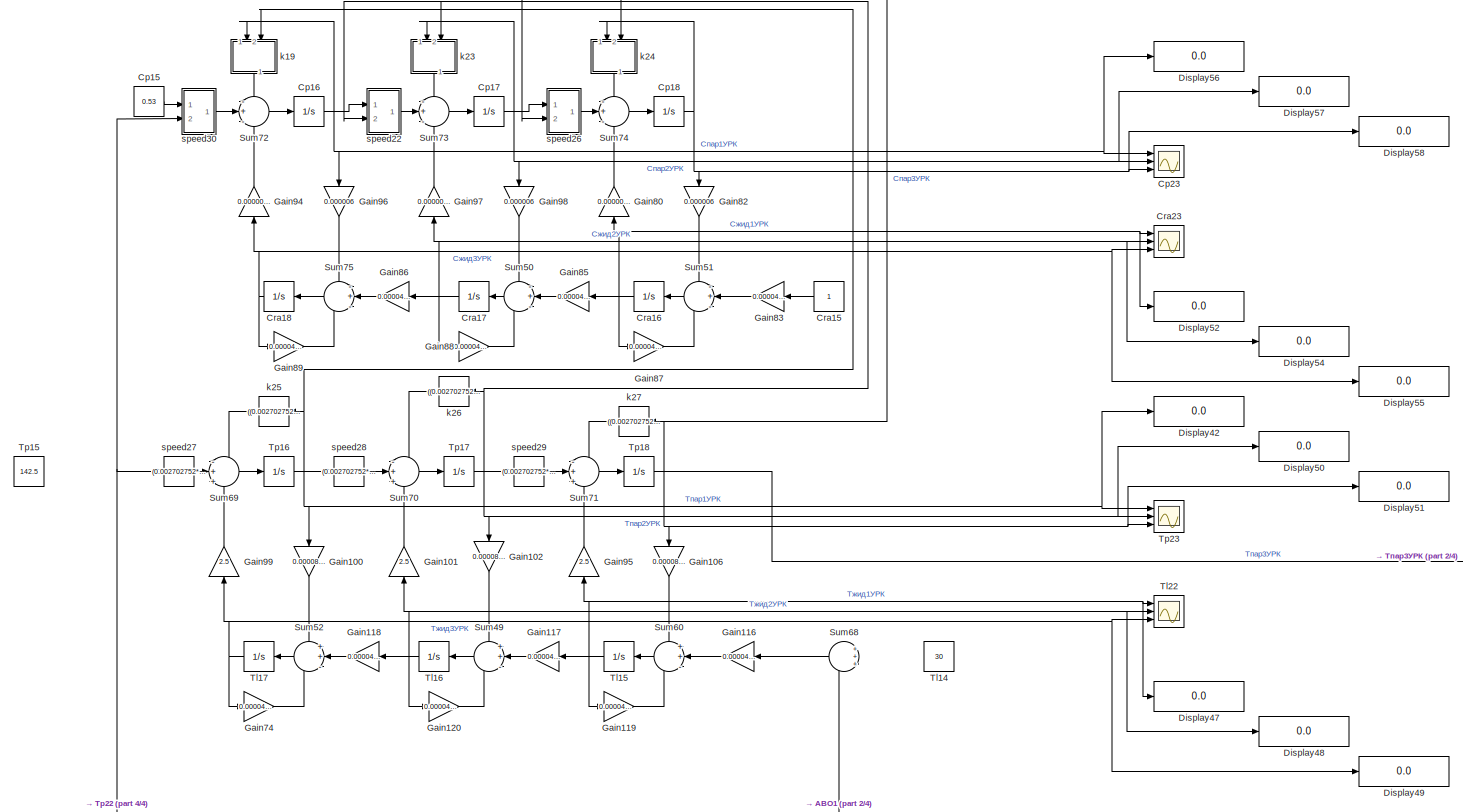
[diagram: Top RC/FULL_RC_1 - part 1/4, full width, top band]
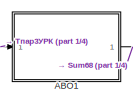
[diagram: Top RC/FULL_RC_1 - part 2/4, top right region]
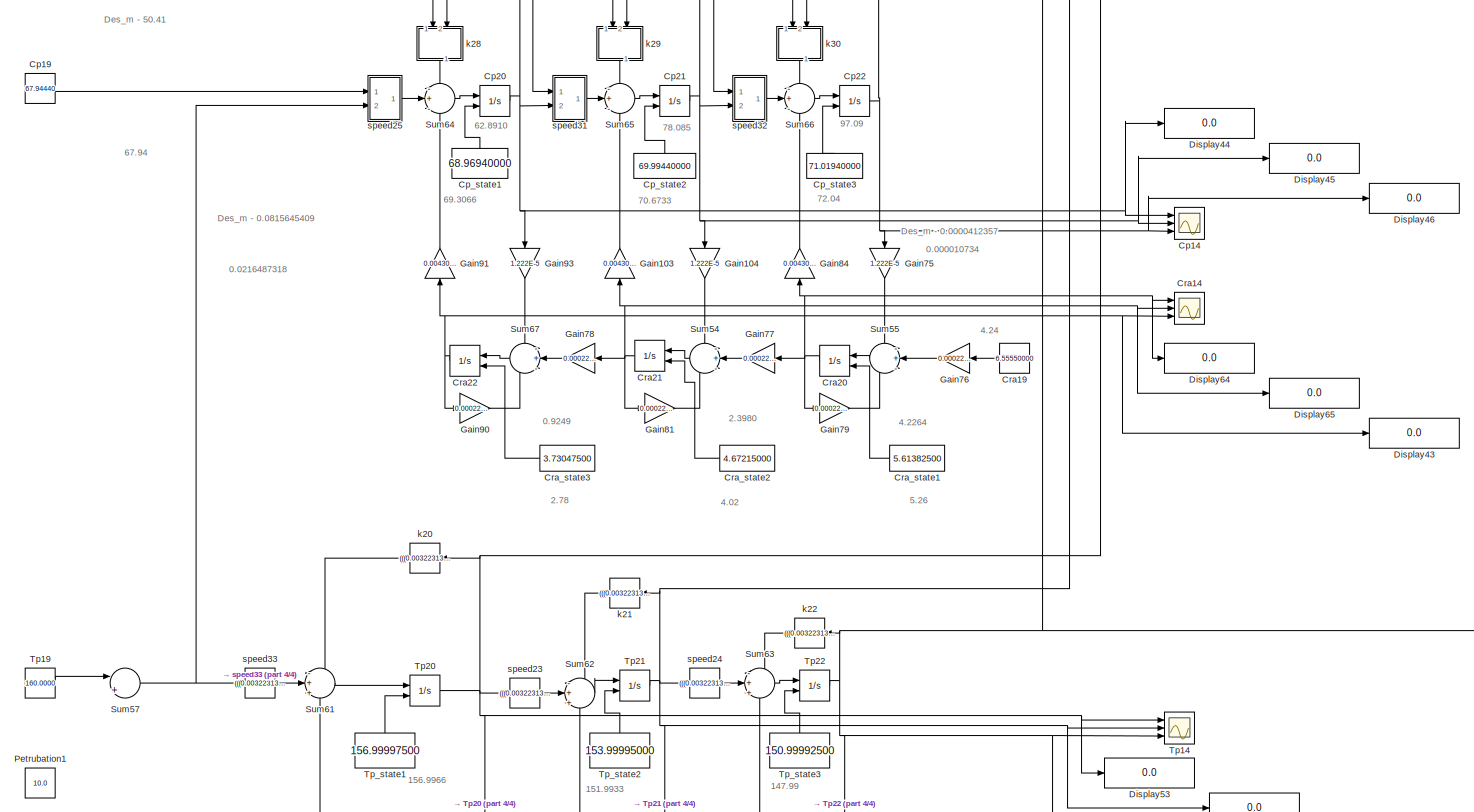
[diagram: Top RC/FULL_RC_1 - part 3/4, full width, middle band]
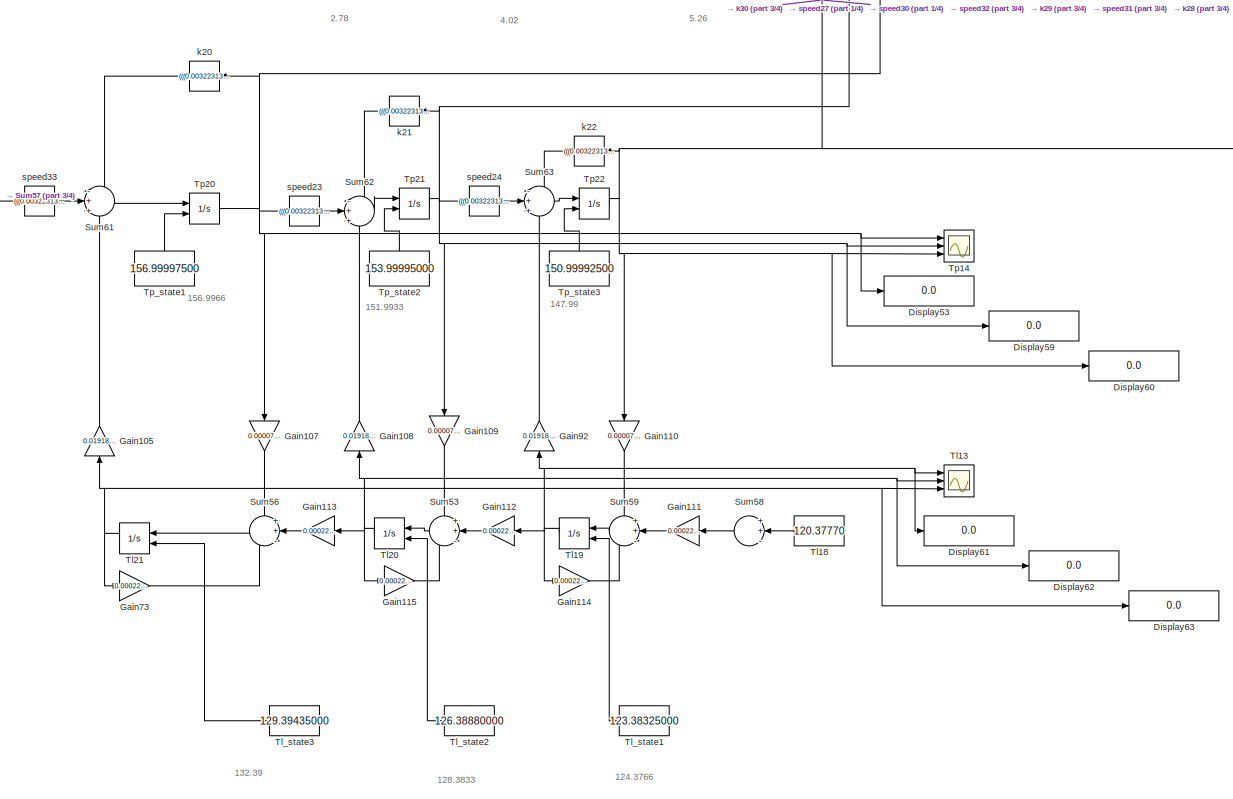
[diagram: Top RC/FULL_RC_1 - part 4/4, bottom center region]
BLOCK [SubSystem] Top RC/FULL_RC_1
  Commented = on
  Ports = []
  RequestExecContextInheritance = off
BLOCK [Scope] Top RC/FULL_RC_1/Cp14
  Floating = off
  NumInputPorts = 3
  Ports = [3]
  ScopeSpecificationString = Simulink.scopes.TimeScopeBlockCfg('CurrentConfiguration', extmgr.ConfigurationSet(extmgr.Configuration('Core','General UI',true,'FigureColor',[1 1 1]),extmgr.Configuration('Core','Source UI',true),extmgr.Configuration('Sources','WiredSimulink',true,'DataLogging',true,'DataLoggingVariableName','CV_SM','DataLoggingSaveFormat','Structure','SampleTime','0','DataLoggingDecimation','1','DataLoggingDecim...<+4940ch>
BLOCK [Constant] Top RC/FULL_RC_1/Cp15
  Value = 0.53
BLOCK [Integrator] Top RC/FULL_RC_1/Cp16
  InitialCondition = 0.665
  Ports = [1, 1]
BLOCK [Integrator] Top RC/FULL_RC_1/Cp17
  InitialCondition = 0.803
  Ports = [1, 1]
BLOCK [Integrator] Top RC/FULL_RC_1/Cp18
  InitialCondition = 0.986
  Ports = [1, 1]
BLOCK [Constant] Top RC/FULL_RC_1/Cp19
  Value = 67.94440
BLOCK [Integrator] Top RC/FULL_RC_1/Cp20
  InitialCondition = 69.3066
  InitialConditionSource = external
  Ports = [2, 1]
BLOCK [Integrator] Top RC/FULL_RC_1/Cp21
  InitialCondition = 70.6733
  InitialConditionSource = external
  Ports = [2, 1]
BLOCK [Integrator] Top RC/FULL_RC_1/Cp22
  InitialCondition = 72.04
  InitialConditionSource = external
  Ports = [2, 1]
BLOCK [Scope] Top RC/FULL_RC_1/Cp23
  Floating = off
  NumInputPorts = 3
  Ports = [3]
  ScopeSpecificationString = Simulink.scopes.TimeScopeBlockCfg('CurrentConfiguration', extmgr.ConfigurationSet(extmgr.Configuration('Core','General UI',true,'FigureColor',[1 1 1]),extmgr.Configuration('Core','Source UI',true),extmgr.Configuration('Sources','WiredSimulink',true,'DataLogging',true,'DataLoggingVariableName','CV_SM2','DataLoggingSaveFormat','Structure','SampleTime','0','DataLoggingDecimation','1','DataLoggingDeci...<+4941ch>
BLOCK [Constant] Top RC/FULL_RC_1/Cp_state1
  Value = 68.96940000
BLOCK [Constant] Top RC/FULL_RC_1/Cp_state2
  Value = 69.99440000
BLOCK [Constant] Top RC/FULL_RC_1/Cp_state3
  Value = 71.01940000
BLOCK [Scope] Top RC/FULL_RC_1/Cra14
  Floating = off
  NumInputPorts = 3
  Ports = [3]
  ScopeSpecificationString = Simulink.scopes.TimeScopeBlockCfg('CurrentConfiguration', extmgr.ConfigurationSet(extmgr.Configuration('Core','General UI',true,'FigureColor',[1 1 1]),extmgr.Configuration('Core','Source UI',true),extmgr.Configuration('Sources','WiredSimulink',true,'DataLogging',true,'DataLoggingVariableName','CF_SM','DataLoggingSaveFormat','StructureWithTime','SampleTime','0','DataLoggingDecimation','1','DataLogg...<+4957ch>
BLOCK [Constant] Top RC/FULL_RC_1/Cra15
BLOCK [Integrator] Top RC/FULL_RC_1/Cra16
  InitialCondition = 0.827
  Ports = [1, 1]
BLOCK [Integrator] Top RC/FULL_RC_1/Cra17
  InitialCondition = 0.6862
  Ports = [1, 1]
BLOCK [Integrator] Top RC/FULL_RC_1/Cra18
  InitialCondition = 0.5696
  Ports = [1, 1]
BLOCK [Constant] Top RC/FULL_RC_1/Cra19
  Value = 6.55550000
BLOCK [Integrator] Top RC/FULL_RC_1/Cra20
  InitialCondition = 5.26
  InitialConditionSource = external
  Ports = [2, 1]
BLOCK [Integrator] Top RC/FULL_RC_1/Cra21
  InitialCondition = 4.02
  InitialConditionSource = external
  Ports = [2, 1]
BLOCK [Integrator] Top RC/FULL_RC_1/Cra22
  InitialCondition = 2.78
  InitialConditionSource = external
  Ports = [2, 1]
BLOCK [Scope] Top RC/FULL_RC_1/Cra23
  Floating = off
  NumInputPorts = 3
  Ports = [3]
  ScopeSpecificationString = Simulink.scopes.TimeScopeBlockCfg('CurrentConfiguration', extmgr.ConfigurationSet(extmgr.Configuration('Core','General UI',true,'FigureColor',[1 1 1]),extmgr.Configuration('Core','Source UI',true),extmgr.Configuration('Sources','WiredSimulink',true,'DataLogging',true,'DataLoggingVariableName','CF_SM2','DataLoggingSaveFormat','StructureWithTime','SampleTime','0','DataLoggingDecimation','1','DataLog...<+4958ch>
BLOCK [Constant] Top RC/FULL_RC_1/Cra_state1
  Value = 5.61382500
BLOCK [Constant] Top RC/FULL_RC_1/Cra_state2
  Value = 4.67215000
BLOCK [Constant] Top RC/FULL_RC_1/Cra_state3
  Value = 3.73047500
BLOCK [Display] Top RC/FULL_RC_1/Display42
  Decimation = 1
  Ports = [1]
BLOCK [Display] Top RC/FULL_RC_1/Display43
  Decimation = 1
  Ports = [1]
BLOCK [Display] Top RC/FULL_RC_1/Display44
  Decimation = 1
  Ports = [1]
BLOCK [Display] Top RC/FULL_RC_1/Display45
  Decimation = 1
  Ports = [1]
BLOCK [Display] Top RC/FULL_RC_1/Display46
  Decimation = 1
  Ports = [1]
BLOCK [Display] Top RC/FULL_RC_1/Display47
  Decimation = 1
  Ports = [1]
BLOCK [Display] Top RC/FULL_RC_1/Display48
  Decimation = 1
  Ports = [1]
BLOCK [Display] Top RC/FULL_RC_1/Display49
  Decimation = 1
  Ports = [1]
BLOCK [Display] Top RC/FULL_RC_1/Display50
  Decimation = 1
  Ports = [1]
BLOCK [Display] Top RC/FULL_RC_1/Display51
  Decimation = 1
  Ports = [1]
BLOCK [Display] Top RC/FULL_RC_1/Display52
  Decimation = 1
  Ports = [1]
BLOCK [Display] Top RC/FULL_RC_1/Display53
  Decimation = 1
  Ports = [1]
BLOCK [Display] Top RC/FULL_RC_1/Display54
  Decimation = 1
  Ports = [1]
BLOCK [Display] Top RC/FULL_RC_1/Display55
  Decimation = 1
  Ports = [1]
BLOCK [Display] Top RC/FULL_RC_1/Display56
  Decimation = 1
  Ports = [1]
BLOCK [Display] Top RC/FULL_RC_1/Display57
  Decimation = 1
  Ports = [1]
BLOCK [Display] Top RC/FULL_RC_1/Display58
  Decimation = 1
  Ports = [1]
BLOCK [Display] Top RC/FULL_RC_1/Display59
  Decimation = 1
  Ports = [1]
BLOCK [Display] Top RC/FULL_RC_1/Display60
  Decimation = 1
  Ports = [1]
BLOCK [Display] Top RC/FULL_RC_1/Display61
  Decimation = 1
  Ports = [1]
BLOCK [Display] Top RC/FULL_RC_1/Display62
  Decimation = 1
  Ports = [1]
BLOCK [Display] Top RC/FULL_RC_1/Display63
  Decimation = 1
  Ports = [1]
BLOCK [Display] Top RC/FULL_RC_1/Display64
  Decimation = 1
  Ports = [1]
BLOCK [Display] Top RC/FULL_RC_1/Display65
  Decimation = 1
  Ports = [1]
BLOCK [Gain] Top RC/FULL_RC_1/Gain100
  Gain = 0.0000855
  OutDataTypeStr = Inherit: Inherit via internal rule
  ParamDataTypeStr = Inherit: Inherit via internal rule
  SaturateOnIntegerOverflow = off
BLOCK [Gain] Top RC/FULL_RC_1/Gain101
  Gain = 2.5
  OutDataTypeStr = Inherit: Inherit via internal rule
  ParamDataTypeStr = Inherit: Inherit via internal rule
  SaturateOnIntegerOverflow = off
BLOCK [Gain] Top RC/FULL_RC_1/Gain102
  Gain = 0.0000855
  OutDataTypeStr = Inherit: Inherit via internal rule
  ParamDataTypeStr = Inherit: Inherit via internal rule
  SaturateOnIntegerOverflow = off
BLOCK [Gain] Top RC/FULL_RC_1/Gain103
  Gain = 0.004302*10^(-9)
  OutDataTypeStr = Inherit: Inherit via internal rule
  ParamDataTypeStr = Inherit: Inherit via internal rule
  SaturateOnIntegerOverflow = off
BLOCK [Gain] Top RC/FULL_RC_1/Gain104
  Gain = 1.222E-5
  OutDataTypeStr = Inherit: Inherit via internal rule
  ParamDataTypeStr = Inherit: Inherit via internal rule
  SaturateOnIntegerOverflow = off
BLOCK [Gain] Top RC/FULL_RC_1/Gain105
  Gain = 0.0191806
  OutDataTypeStr = Inherit: Inherit via internal rule
  ParamDataTypeStr = Inherit: Inherit via internal rule
  SaturateOnIntegerOverflow = off
BLOCK [Gain] Top RC/FULL_RC_1/Gain106
  Gain = 0.0000855
  OutDataTypeStr = Inherit: Inherit via internal rule
  ParamDataTypeStr = Inherit: Inherit via internal rule
  SaturateOnIntegerOverflow = off
BLOCK [Gain] Top RC/FULL_RC_1/Gain107
  Gain = 0.0000777
  OutDataTypeStr = Inherit: Inherit via internal rule
  ParamDataTypeStr = Inherit: Inherit via internal rule
  SaturateOnIntegerOverflow = off
BLOCK [Gain] Top RC/FULL_RC_1/Gain108
  Gain = 0.0191806
  OutDataTypeStr = Inherit: Inherit via internal rule
  ParamDataTypeStr = Inherit: Inherit via internal rule
  SaturateOnIntegerOverflow = off
BLOCK [Gain] Top RC/FULL_RC_1/Gain109
  Gain = 0.0000777
  OutDataTypeStr = Inherit: Inherit via internal rule
  ParamDataTypeStr = Inherit: Inherit via internal rule
  SaturateOnIntegerOverflow = off
BLOCK [Gain] Top RC/FULL_RC_1/Gain110
  Gain = 0.0000777
  OutDataTypeStr = Inherit: Inherit via internal rule
  ParamDataTypeStr = Inherit: Inherit via internal rule
  SaturateOnIntegerOverflow = off
BLOCK [Gain] Top RC/FULL_RC_1/Gain111
  Gain = 0.0002291314/0.5
  OutDataTypeStr = Inherit: Inherit via internal rule
  ParamDataTypeStr = Inherit: Inherit via internal rule
  SaturateOnIntegerOverflow = off
BLOCK [Gain] Top RC/FULL_RC_1/Gain112
  Gain = 0.0002291314/0.5
  OutDataTypeStr = Inherit: Inherit via internal rule
  ParamDataTypeStr = Inherit: Inherit via internal rule
  SaturateOnIntegerOverflow = off
BLOCK [Gain] Top RC/FULL_RC_1/Gain113
  Gain = 0.0002291314/0.5
  OutDataTypeStr = Inherit: Inherit via internal rule
  ParamDataTypeStr = Inherit: Inherit via internal rule
  SaturateOnIntegerOverflow = off
BLOCK [Gain] Top RC/FULL_RC_1/Gain114
  Gain = 0.0002291314/0.5+0.0000777
  OutDataTypeStr = Inherit: Inherit via internal rule
  ParamDataTypeStr = Inherit: Inherit via internal rule
  SaturateOnIntegerOverflow = off
BLOCK [Gain] Top RC/FULL_RC_1/Gain115
  Gain = 0.0002291314/0.5+0.0000777
  OutDataTypeStr = Inherit: Inherit via internal rule
  ParamDataTypeStr = Inherit: Inherit via internal rule
  SaturateOnIntegerOverflow = off
BLOCK [Gain] Top RC/FULL_RC_1/Gain116
  Gain = 0.00004/1.17
  OutDataTypeStr = Inherit: Inherit via internal rule
  ParamDataTypeStr = Inherit: Inherit via internal rule
  SaturateOnIntegerOverflow = off
BLOCK [Gain] Top RC/FULL_RC_1/Gain117
  Gain = 0.00004/1.17
  OutDataTypeStr = Inherit: Inherit via internal rule
  ParamDataTypeStr = Inherit: Inherit via internal rule
  SaturateOnIntegerOverflow = off
BLOCK [Gain] Top RC/FULL_RC_1/Gain118
  Gain = 0.00004/1.17
  OutDataTypeStr = Inherit: Inherit via internal rule
  ParamDataTypeStr = Inherit: Inherit via internal rule
  SaturateOnIntegerOverflow = off
BLOCK [Gain] Top RC/FULL_RC_1/Gain119
  Gain = 0.00004/1.17+0.0000855
  OutDataTypeStr = Inherit: Inherit via internal rule
  ParamDataTypeStr = Inherit: Inherit via internal rule
  SaturateOnIntegerOverflow = off
BLOCK [Gain] Top RC/FULL_RC_1/Gain120
  Gain = 0.00004/1.17+0.0000855
  OutDataTypeStr = Inherit: Inherit via internal rule
  ParamDataTypeStr = Inherit: Inherit via internal rule
  SaturateOnIntegerOverflow = off
BLOCK [Gain] Top RC/FULL_RC_1/Gain73
  Gain = 0.0002291314/0.5+0.0000777
  OutDataTypeStr = Inherit: Inherit via internal rule
  ParamDataTypeStr = Inherit: Inherit via internal rule
  SaturateOnIntegerOverflow = off
BLOCK [Gain] Top RC/FULL_RC_1/Gain74
  Gain = 0.00004/1.17+0.0000855
  OutDataTypeStr = Inherit: Inherit via internal rule
  ParamDataTypeStr = Inherit: Inherit via internal rule
  SaturateOnIntegerOverflow = off
BLOCK [Gain] Top RC/FULL_RC_1/Gain75
  Gain = 1.222E-5
  OutDataTypeStr = Inherit: Inherit via internal rule
  ParamDataTypeStr = Inherit: Inherit via internal rule
  SaturateOnIntegerOverflow = off
BLOCK [Gain] Top RC/FULL_RC_1/Gain76
  Gain = 0.0002291314/0.5
  OutDataTypeStr = Inherit: Inherit via internal rule
  ParamDataTypeStr = Inherit: Inherit via internal rule
  SaturateOnIntegerOverflow = off
BLOCK [Gain] Top RC/FULL_RC_1/Gain77
  Gain = 0.0002291314/0.5
  OutDataTypeStr = Inherit: Inherit via internal rule
  ParamDataTypeStr = Inherit: Inherit via internal rule
  SaturateOnIntegerOverflow = off
BLOCK [Gain] Top RC/FULL_RC_1/Gain78
  Gain = 0.0002291314/0.5
  OutDataTypeStr = Inherit: Inherit via internal rule
  ParamDataTypeStr = Inherit: Inherit via internal rule
  SaturateOnIntegerOverflow = off
BLOCK [Gain] Top RC/FULL_RC_1/Gain79
  Gain = 0.0002291314/0.5-(1.222E-5)*10^(-9)
  OutDataTypeStr = Inherit: Inherit via internal rule
  ParamDataTypeStr = Inherit: Inherit via internal rule
  SaturateOnIntegerOverflow = off
BLOCK [Gain] Top RC/FULL_RC_1/Gain80
  Gain = 0.000000000145
  OutDataTypeStr = Inherit: Inherit via internal rule
  ParamDataTypeStr = Inherit: Inherit via internal rule
  SaturateOnIntegerOverflow = off
BLOCK [Gain] Top RC/FULL_RC_1/Gain81
  Gain = 0.0002291314/0.5-(1.222E-5)*10^(-9)
  OutDataTypeStr = Inherit: Inherit via internal rule
  ParamDataTypeStr = Inherit: Inherit via internal rule
  SaturateOnIntegerOverflow = off
BLOCK [Gain] Top RC/FULL_RC_1/Gain82
  Gain = 0.000006
  OutDataTypeStr = Inherit: Inherit via internal rule
  ParamDataTypeStr = Inherit: Inherit via internal rule
  SaturateOnIntegerOverflow = off
BLOCK [Gain] Top RC/FULL_RC_1/Gain83
  Gain = 0.00004/1.17
  OutDataTypeStr = Inherit: Inherit via internal rule
  ParamDataTypeStr = Inherit: Inherit via internal rule
  SaturateOnIntegerOverflow = off
BLOCK [Gain] Top RC/FULL_RC_1/Gain84
  Gain = 0.004302*10^(-9)
  OutDataTypeStr = Inherit: Inherit via internal rule
  ParamDataTypeStr = Inherit: Inherit via internal rule
  SaturateOnIntegerOverflow = off
BLOCK [Gain] Top RC/FULL_RC_1/Gain85
  Gain = 0.00004/1.17
  OutDataTypeStr = Inherit: Inherit via internal rule
  ParamDataTypeStr = Inherit: Inherit via internal rule
  SaturateOnIntegerOverflow = off
BLOCK [Gain] Top RC/FULL_RC_1/Gain86
  Gain = 0.00004/1.17
  OutDataTypeStr = Inherit: Inherit via internal rule
  ParamDataTypeStr = Inherit: Inherit via internal rule
  SaturateOnIntegerOverflow = off
BLOCK [Gain] Top RC/FULL_RC_1/Gain87
  Gain = 0.00004/1.17-(0.000006*0.000000000145)
  OutDataTypeStr = Inherit: Inherit via internal rule
  ParamDataTypeStr = Inherit: Inherit via internal rule
  SaturateOnIntegerOverflow = off
BLOCK [Gain] Top RC/FULL_RC_1/Gain88
  Gain = 0.00004/1.17-(0.000006*0.000000000145)
  OutDataTypeStr = Inherit: Inherit via internal rule
  ParamDataTypeStr = Inherit: Inherit via internal rule
  SaturateOnIntegerOverflow = off
BLOCK [Gain] Top RC/FULL_RC_1/Gain89
  Gain = 0.00004/1.17-(0.000006*0.000000000145)
  OutDataTypeStr = Inherit: Inherit via internal rule
  ParamDataTypeStr = Inherit: Inherit via internal rule
  SaturateOnIntegerOverflow = off
BLOCK [Gain] Top RC/FULL_RC_1/Gain90
  Gain = 0.0002291314/0.5-(1.222E-5)*10^(-9)
  OutDataTypeStr = Inherit: Inherit via internal rule
  ParamDataTypeStr = Inherit: Inherit via internal rule
  SaturateOnIntegerOverflow = off
BLOCK [Gain] Top RC/FULL_RC_1/Gain91
  Gain = 0.004302*10^(-9)
  OutDataTypeStr = Inherit: Inherit via internal rule
  ParamDataTypeStr = Inherit: Inherit via internal rule
  SaturateOnIntegerOverflow = off
BLOCK [Gain] Top RC/FULL_RC_1/Gain92
  Gain = 0.0191806
  OutDataTypeStr = Inherit: Inherit via internal rule
  ParamDataTypeStr = Inherit: Inherit via internal rule
  SaturateOnIntegerOverflow = off
BLOCK [Gain] Top RC/FULL_RC_1/Gain93
  Gain = 1.222E-5
  OutDataTypeStr = Inherit: Inherit via internal rule
  ParamDataTypeStr = Inherit: Inherit via internal rule
  SaturateOnIntegerOverflow = off
BLOCK [Gain] Top RC/FULL_RC_1/Gain94
  Gain = 0.000000000145
  OutDataTypeStr = Inherit: Inherit via internal rule
  ParamDataTypeStr = Inherit: Inherit via internal rule
  SaturateOnIntegerOverflow = off
BLOCK [Gain] Top RC/FULL_RC_1/Gain95
  Gain = 2.5
  OutDataTypeStr = Inherit: Inherit via internal rule
  ParamDataTypeStr = Inherit: Inherit via internal rule
  SaturateOnIntegerOverflow = off
BLOCK [Gain] Top RC/FULL_RC_1/Gain96
  Gain = 0.000006
  OutDataTypeStr = Inherit: Inherit via internal rule
  ParamDataTypeStr = Inherit: Inherit via internal rule
  SaturateOnIntegerOverflow = off
BLOCK [Gain] Top RC/FULL_RC_1/Gain97
  Gain = 0.000000000145
  OutDataTypeStr = Inherit: Inherit via internal rule
  ParamDataTypeStr = Inherit: Inherit via internal rule
  SaturateOnIntegerOverflow = off
BLOCK [Gain] Top RC/FULL_RC_1/Gain98
  Gain = 0.000006
  OutDataTypeStr = Inherit: Inherit via internal rule
  ParamDataTypeStr = Inherit: Inherit via internal rule
  SaturateOnIntegerOverflow = off
BLOCK [Gain] Top RC/FULL_RC_1/Gain99
  Gain = 2.5
  OutDataTypeStr = Inherit: Inherit via internal rule
  ParamDataTypeStr = Inherit: Inherit via internal rule
  SaturateOnIntegerOverflow = off
BLOCK [Constant] Top RC/FULL_RC_1/Petrubation1
  Value = 10.0
BLOCK [Sum] Top RC/FULL_RC_1/Sum49
  IconShape = round
  InputSameDT = off
  Inputs = ++-
  OutDataTypeStr = Inherit: Inherit via internal rule
  Ports = [3, 1]
  SaturateOnIntegerOverflow = off
BLOCK [Sum] Top RC/FULL_RC_1/Sum50
  IconShape = round
  InputSameDT = off
  Inputs = -+-
  OutDataTypeStr = Inherit: Inherit via internal rule
  Ports = [3, 1]
  SaturateOnIntegerOverflow = off
BLOCK [Sum] Top RC/FULL_RC_1/Sum51
  IconShape = round
  InputSameDT = off
  Inputs = -+-
  OutDataTypeStr = Inherit: Inherit via internal rule
  Ports = [3, 1]
  SaturateOnIntegerOverflow = off
BLOCK [Sum] Top RC/FULL_RC_1/Sum52
  IconShape = round
  InputSameDT = off
  Inputs = ++-
  OutDataTypeStr = Inherit: Inherit via internal rule
  Ports = [3, 1]
  SaturateOnIntegerOverflow = off
BLOCK [Sum] Top RC/FULL_RC_1/Sum53
  IconShape = round
  InputSameDT = off
  Inputs = ++-
  OutDataTypeStr = Inherit: Inherit via internal rule
  Ports = [3, 1]
  SaturateOnIntegerOverflow = off
BLOCK [Sum] Top RC/FULL_RC_1/Sum54
  IconShape = round
  InputSameDT = off
  Inputs = -+-
  OutDataTypeStr = Inherit: Inherit via internal rule
  Ports = [3, 1]
  SaturateOnIntegerOverflow = off
BLOCK [Sum] Top RC/FULL_RC_1/Sum55
  IconShape = round
  InputSameDT = off
  Inputs = -+-
  OutDataTypeStr = Inherit: Inherit via internal rule
  Ports = [3, 1]
  SaturateOnIntegerOverflow = off
BLOCK [Sum] Top RC/FULL_RC_1/Sum56
  IconShape = round
  InputSameDT = off
  Inputs = ++-
  OutDataTypeStr = Inherit: Inherit via internal rule
  Ports = [3, 1]
  SaturateOnIntegerOverflow = off
BLOCK [Sum] Top RC/FULL_RC_1/Sum57
  IconShape = round
  InputSameDT = off
  Inputs = |++
  OutDataTypeStr = Inherit: Inherit via internal rule
  Ports = [2, 1]
  SaturateOnIntegerOverflow = off
BLOCK [Sum] Top RC/FULL_RC_1/Sum58
  IconShape = round
  InputSameDT = off
  Inputs = ++-
  OutDataTypeStr = Inherit: Inherit via internal rule
  Ports = [3, 1]
  SaturateOnIntegerOverflow = off
BLOCK [Sum] Top RC/FULL_RC_1/Sum59
  IconShape = round
  InputSameDT = off
  Inputs = ++-
  OutDataTypeStr = Inherit: Inherit via internal rule
  Ports = [3, 1]
  SaturateOnIntegerOverflow = off
BLOCK [Sum] Top RC/FULL_RC_1/Sum60
  IconShape = round
  InputSameDT = off
  Inputs = ++-
  OutDataTypeStr = Inherit: Inherit via internal rule
  Ports = [3, 1]
  SaturateOnIntegerOverflow = off
BLOCK [Sum] Top RC/FULL_RC_1/Sum61
  IconShape = round
  InputSameDT = off
  Inputs = -++
  OutDataTypeStr = Inherit: Inherit via internal rule
  Ports = [3, 1]
  SaturateOnIntegerOverflow = off
BLOCK [Sum] Top RC/FULL_RC_1/Sum62
  IconShape = round
  InputSameDT = off
  Inputs = -++
  OutDataTypeStr = Inherit: Inherit via internal rule
  Ports = [3, 1]
  SaturateOnIntegerOverflow = off
BLOCK [Sum] Top RC/FULL_RC_1/Sum63
  IconShape = round
  InputSameDT = off
  Inputs = -++
  OutDataTypeStr = Inherit: Inherit via internal rule
  Ports = [3, 1]
  SaturateOnIntegerOverflow = off
BLOCK [Sum] Top RC/FULL_RC_1/Sum64
  IconShape = round
  InputSameDT = off
  Inputs = -+-
  OutDataTypeStr = Inherit: Inherit via internal rule
  Ports = [3, 1]
  SaturateOnIntegerOverflow = off
BLOCK [Sum] Top RC/FULL_RC_1/Sum65
  IconShape = round
  InputSameDT = off
  Inputs = -+-
  OutDataTypeStr = Inherit: Inherit via internal rule
  Ports = [3, 1]
  SaturateOnIntegerOverflow = off
BLOCK [Sum] Top RC/FULL_RC_1/Sum66
  IconShape = round
  InputSameDT = off
  Inputs = -+-
  OutDataTypeStr = Inherit: Inherit via internal rule
  Ports = [3, 1]
  SaturateOnIntegerOverflow = off
BLOCK [Sum] Top RC/FULL_RC_1/Sum67
  IconShape = round
  InputSameDT = off
  Inputs = -+-
  OutDataTypeStr = Inherit: Inherit via internal rule
  Ports = [3, 1]
  SaturateOnIntegerOverflow = off
BLOCK [Sum] Top RC/FULL_RC_1/Sum68
  IconShape = round
  InputSameDT = off
  Inputs = +++
  OutDataTypeStr = Inherit: Inherit via internal rule
  Ports = [3, 1]
  SaturateOnIntegerOverflow = off
BLOCK [Sum] Top RC/FULL_RC_1/Sum69
  IconShape = round
  InputSameDT = off
  Inputs = -++
  OutDataTypeStr = Inherit: Inherit via internal rule
  Ports = [3, 1]
  SaturateOnIntegerOverflow = off
BLOCK [Sum] Top RC/FULL_RC_1/Sum70
  IconShape = round
  InputSameDT = off
  Inputs = -++
  OutDataTypeStr = Inherit: Inherit via internal rule
  Ports = [3, 1]
  SaturateOnIntegerOverflow = off
BLOCK [Sum] Top RC/FULL_RC_1/Sum71
  IconShape = round
  InputSameDT = off
  Inputs = -++
  OutDataTypeStr = Inherit: Inherit via internal rule
  Ports = [3, 1]
  SaturateOnIntegerOverflow = off
BLOCK [Sum] Top RC/FULL_RC_1/Sum72
  IconShape = round
  InputSameDT = off
  Inputs = -+-
  OutDataTypeStr = Inherit: Inherit via internal rule
  Ports = [3, 1]
  SaturateOnIntegerOverflow = off
BLOCK [Sum] Top RC/FULL_RC_1/Sum73
  IconShape = round
  InputSameDT = off
  Inputs = -+-
  OutDataTypeStr = Inherit: Inherit via internal rule
  Ports = [3, 1]
  SaturateOnIntegerOverflow = off
BLOCK [Sum] Top RC/FULL_RC_1/Sum74
  IconShape = round
  InputSameDT = off
  Inputs = -+-
  OutDataTypeStr = Inherit: Inherit via internal rule
  Ports = [3, 1]
  SaturateOnIntegerOverflow = off
BLOCK [Sum] Top RC/FULL_RC_1/Sum75
  IconShape = round
  InputSameDT = off
  Inputs = -+-
  OutDataTypeStr = Inherit: Inherit via internal rule
  Ports = [3, 1]
  SaturateOnIntegerOverflow = off
BLOCK [Scope] Top RC/FULL_RC_1/Tl13
  Floating = off
  NumInputPorts = 3
  Ports = [3]
  ScopeSpecificationString = Simulink.scopes.TimeScopeBlockCfg('CurrentConfiguration', extmgr.ConfigurationSet(extmgr.Configuration('Core','General UI',true,'FigureColor',[1 1 1]),extmgr.Configuration('Core','Source UI',true),extmgr.Configuration('Sources','WiredSimulink',true,'DataLogging',true,'DataLoggingVariableName','TF_SM','DataLoggingSaveFormat','StructureWithTime','SampleTime','0','DataLoggingDecimation','1','DataLogg...<+4968ch>
BLOCK [Constant] Top RC/FULL_RC_1/Tl14
  Value = 30
BLOCK [Integrator] Top RC/FULL_RC_1/Tl15
  InitialCondition = 58.28
  Ports = [1, 1]
BLOCK [Integrator] Top RC/FULL_RC_1/Tl16
  InitialCondition = 86.23
  Ports = [1, 1]
BLOCK [Integrator] Top RC/FULL_RC_1/Tl17
  InitialCondition = 111.75
  Ports = [1, 1]
BLOCK [Constant] Top RC/FULL_RC_1/Tl18
  Value = 120.37770
BLOCK [Integrator] Top RC/FULL_RC_1/Tl19
  InitialCondition = 124.3766
  InitialConditionSource = external
  Ports = [2, 1]
BLOCK [Integrator] Top RC/FULL_RC_1/Tl20
  InitialCondition = 128.3833
  InitialConditionSource = external
  Ports = [2, 1]
BLOCK [Integrator] Top RC/FULL_RC_1/Tl21
  InitialCondition = 132.39
  InitialConditionSource = external
  Ports = [2, 1]
BLOCK [Scope] Top RC/FULL_RC_1/Tl22
  Floating = off
  NumInputPorts = 3
  Ports = [3]
  ScopeSpecificationString = Simulink.scopes.TimeScopeBlockCfg('CurrentConfiguration', extmgr.ConfigurationSet(extmgr.Configuration('Core','General UI',true,'FigureColor',[1 1 1]),extmgr.Configuration('Core','Source UI',true),extmgr.Configuration('Sources','WiredSimulink',true,'DataLogging',true,'DataLoggingVariableName','TF_SM2','DataLoggingSaveFormat','StructureWithTime','SampleTime','0','DataLoggingDecimation','1','DataLog...<+4969ch>
BLOCK [Constant] Top RC/FULL_RC_1/Tl_state1 
  Value = 123.38325000
BLOCK [Constant] Top RC/FULL_RC_1/Tl_state2
  Value = 126.38880000
BLOCK [Constant] Top RC/FULL_RC_1/Tl_state3
  Value = 129.39435000
BLOCK [Scope] Top RC/FULL_RC_1/Tp14
  Floating = off
  NumInputPorts = 3
  Ports = [3]
  ScopeSpecificationString = Simulink.scopes.TimeScopeBlockCfg('CurrentConfiguration', extmgr.ConfigurationSet(extmgr.Configuration('Core','General UI',true,'FigureColor',[1 1 1]),extmgr.Configuration('Core','Source UI',true),extmgr.Configuration('Sources','WiredSimulink',true,'DataLogging',true,'DataLoggingVariableName','TV_SM','DataLoggingSaveFormat','StructureWithTime','SampleTime','0','DataLoggingDecimation','1','DataLogg...<+4964ch>
BLOCK [Constant] Top RC/FULL_RC_1/Tp15
  Value = 142.5
BLOCK [Integrator] Top RC/FULL_RC_1/Tp16
  InitialCondition = 121.956
  Ports = [1, 1]
BLOCK [Integrator] Top RC/FULL_RC_1/Tp17
  InitialCondition = 97.4
  Ports = [1, 1]
BLOCK [Integrator] Top RC/FULL_RC_1/Tp18
  IgnoreLimit = on
  InitialCondition = 69.6
  Ports = [1, 1]
BLOCK [Constant] Top RC/FULL_RC_1/Tp19
  Value = 160.0000
BLOCK [Integrator] Top RC/FULL_RC_1/Tp20
  InitialCondition = 156.9966
  InitialConditionSource = external
  Ports = [2, 1]
BLOCK [Integrator] Top RC/FULL_RC_1/Tp21
  InitialCondition = 151.9933
  InitialConditionSource = external
  Ports = [2, 1]
BLOCK [Integrator] Top RC/FULL_RC_1/Tp22
  IgnoreLimit = on
  InitialCondition = 147.99
  InitialConditionSource = external
  Ports = [2, 1]
BLOCK [Scope] Top RC/FULL_RC_1/Tp23
  Floating = off
  NumInputPorts = 3
  Ports = [3]
  ScopeSpecificationString = Simulink.scopes.TimeScopeBlockCfg('CurrentConfiguration', extmgr.ConfigurationSet(extmgr.Configuration('Core','General UI',true,'FigureColor',[1 1 1]),extmgr.Configuration('Core','Source UI',true),extmgr.Configuration('Sources','WiredSimulink',true,'DataLogging',true,'DataLoggingVariableName','TV_SM2','DataLoggingSaveFormat','StructureWithTime','SampleTime','0','DataLoggingDecimation','1','DataLog...<+4965ch>
BLOCK [Constant] Top RC/FULL_RC_1/Tp_state1
  Value = 156.99997500
BLOCK [Constant] Top RC/FULL_RC_1/Tp_state2
  Value = 153.99995000
BLOCK [Constant] Top RC/FULL_RC_1/Tp_state3
  Value = 150.99992500
BLOCK [SubSystem] Top RC/FULL_RC_1/k19
  Ports = [2, 1]
  RequestExecContextInheritance = off
BLOCK [Inport] Top RC/FULL_RC_1/k19/In1
  IconDisplay = Port number
BLOCK [Inport] Top RC/FULL_RC_1/k19/In2
  IconDisplay = Port number
  Port = 2
BLOCK [Outport] Top RC/FULL_RC_1/k19/Out1
  IconDisplay = Port number
BLOCK [Product] Top RC/FULL_RC_1/k19/Product13
  Ports = [2, 1]
  RndMeth = Floor
BLOCK [Fcn] Top RC/FULL_RC_1/k19/speed3
  Expr = (0.002702752*(273.15+u))/1.17-0.147
BLOCK [Fcn] Top RC/FULL_RC_1/k20
  Expr = (((0.003223135*(273+u))/24.69822264)/0.5+0.0191806)*u
BLOCK [Fcn] Top RC/FULL_RC_1/k21
  Expr = (((0.003223135*(273+u))/24.69822264)/0.5+0.0191806)*u
BLOCK [Fcn] Top RC/FULL_RC_1/k22
  Expr = (((0.003223135*(273+u))/24.69822264)/0.5+0.0191806)*u
BLOCK [SubSystem] Top RC/FULL_RC_1/k23
  Ports = [2, 1]
  RequestExecContextInheritance = off
BLOCK [Inport] Top RC/FULL_RC_1/k23/In1
  IconDisplay = Port number
BLOCK [Inport] Top RC/FULL_RC_1/k23/In2
  IconDisplay = Port number
  Port = 2
BLOCK [Outport] Top RC/FULL_RC_1/k23/Out1
  IconDisplay = Port number
BLOCK [Product] Top RC/FULL_RC_1/k23/Product13
  Ports = [2, 1]
  RndMeth = Floor
BLOCK [Fcn] Top RC/FULL_RC_1/k23/speed3
  Expr = (0.002702752*(273.15+u))/1.17-0.147
BLOCK [SubSystem] Top RC/FULL_RC_1/k24
  Ports = [2, 1]
  RequestExecContextInheritance = off
BLOCK [Inport] Top RC/FULL_RC_1/k24/In1
  IconDisplay = Port number
BLOCK [Inport] Top RC/FULL_RC_1/k24/In2
  IconDisplay = Port number
  Port = 2
BLOCK [Outport] Top RC/FULL_RC_1/k24/Out1
  IconDisplay = Port number
BLOCK [Product] Top RC/FULL_RC_1/k24/Product13
  Ports = [2, 1]
  RndMeth = Floor
BLOCK [Fcn] Top RC/FULL_RC_1/k24/speed3
  Expr = (0.002702752*(273.15+u))/1.17-0.147
BLOCK [Fcn] Top RC/FULL_RC_1/k25
  Expr = ((0.002702752*(273.15+u))/1.17+2.5)*u
BLOCK [Fcn] Top RC/FULL_RC_1/k26
  Expr = ((0.002702752*(273.15+u))/1.17+2.5)*u
BLOCK [Fcn] Top RC/FULL_RC_1/k27
  Expr = ((0.002702752*(273.15+u))/1.17+2.5)*u
BLOCK [SubSystem] Top RC/FULL_RC_1/k28
  Ports = [2, 1]
  RequestExecContextInheritance = off
BLOCK [Inport] Top RC/FULL_RC_1/k28/In1
  IconDisplay = Port number
BLOCK [Inport] Top RC/FULL_RC_1/k28/In2
  IconDisplay = Port number
  Port = 2
BLOCK [Outport] Top RC/FULL_RC_1/k28/Out1
  IconDisplay = Port number
BLOCK [Product] Top RC/FULL_RC_1/k28/Product13
  Ports = [2, 1]
  RndMeth = Floor
BLOCK [Fcn] Top RC/FULL_RC_1/k28/speed3
  Expr = ((0.003223135*(273+u))/24.69822264)/0.5-0.004302
BLOCK [SubSystem] Top RC/FULL_RC_1/k29
  Ports = [2, 1]
  RequestExecContextInheritance = off
BLOCK [Inport] Top RC/FULL_RC_1/k29/In1
  IconDisplay = Port number
BLOCK [Inport] Top RC/FULL_RC_1/k29/In2
  IconDisplay = Port number
  Port = 2
BLOCK [Outport] Top RC/FULL_RC_1/k29/Out1
  IconDisplay = Port number
BLOCK [Product] Top RC/FULL_RC_1/k29/Product13
  Ports = [2, 1]
  RndMeth = Floor
BLOCK [Fcn] Top RC/FULL_RC_1/k29/speed3
  Expr = ((0.003223135*(273+u))/24.69822264)/0.5-0.004302
BLOCK [SubSystem] Top RC/FULL_RC_1/k30
  Ports = [2, 1]
  RequestExecContextInheritance = off
BLOCK [Inport] Top RC/FULL_RC_1/k30/In1
  IconDisplay = Port number
BLOCK [Inport] Top RC/FULL_RC_1/k30/In2
  IconDisplay = Port number
  Port = 2
BLOCK [Outport] Top RC/FULL_RC_1/k30/Out1
  IconDisplay = Port number
BLOCK [Product] Top RC/FULL_RC_1/k30/Product13
  Ports = [2, 1]
  RndMeth = Floor
BLOCK [Fcn] Top RC/FULL_RC_1/k30/speed3
  Expr = ((0.003223135*(273+u))/24.69822264)/0.5-0.004302
BLOCK [SubSystem] Top RC/FULL_RC_1/speed22
  Ports = [2, 1]
  RequestExecContextInheritance = off
BLOCK [Inport] Top RC/FULL_RC_1/speed22/In1
  IconDisplay = Port number
BLOCK [Inport] Top RC/FULL_RC_1/speed22/In2
  IconDisplay = Port number
  Port = 2
BLOCK [Outport] Top RC/FULL_RC_1/speed22/Out1
  IconDisplay = Port number
BLOCK [Product] Top RC/FULL_RC_1/speed22/Product13
  Ports = [2, 1]
  RndMeth = Floor
BLOCK [Fcn] Top RC/FULL_RC_1/speed22/speed3
  Expr = (0.002702752*(273.15+u))/1.17
BLOCK [Fcn] Top RC/FULL_RC_1/speed23
  Expr = (((0.003223135*(273+u))/24.69822264)/0.5)*u
BLOCK [Fcn] Top RC/FULL_RC_1/speed24
  Expr = (((0.003223135*(273+u))/24.69822264)/0.5)*u
BLOCK [SubSystem] Top RC/FULL_RC_1/speed25
  Ports = [2, 1]
  RequestExecContextInheritance = off
BLOCK [Inport] Top RC/FULL_RC_1/speed25/In1
  IconDisplay = Port number
BLOCK [Inport] Top RC/FULL_RC_1/speed25/In2
  IconDisplay = Port number
  Port = 2
BLOCK [Outport] Top RC/FULL_RC_1/speed25/Out1
  IconDisplay = Port number
BLOCK [Product] Top RC/FULL_RC_1/speed25/Product13
  Ports = [2, 1]
  RndMeth = Floor
BLOCK [Fcn] Top RC/FULL_RC_1/speed25/speed3
  Expr = ((0.003223135*(273+u))/24.69822264)/0.5
BLOCK [SubSystem] Top RC/FULL_RC_1/speed26
  Ports = [2, 1]
  RequestExecContextInheritance = off
BLOCK [Inport] Top RC/FULL_RC_1/speed26/In1
  IconDisplay = Port number
BLOCK [Inport] Top RC/FULL_RC_1/speed26/In2
  IconDisplay = Port number
  Port = 2
BLOCK [Outport] Top RC/FULL_RC_1/speed26/Out1
  IconDisplay = Port number
BLOCK [Product] Top RC/FULL_RC_1/speed26/Product13
  Ports = [2, 1]
  RndMeth = Floor
BLOCK [Fcn] Top RC/FULL_RC_1/speed26/speed3
  Expr = (0.002702752*(273.15+u))/1.17
BLOCK [Fcn] Top RC/FULL_RC_1/speed27
  Expr = (0.002702752*(273.15+u))/1.17*u
BLOCK [Fcn] Top RC/FULL_RC_1/speed28
  Expr = (0.002702752*(273.15+u))/1.17*u
BLOCK [Fcn] Top RC/FULL_RC_1/speed29
  Expr = (0.002702752*(273.15+u))/1.17*u
BLOCK [SubSystem] Top RC/FULL_RC_1/speed30
  Ports = [2, 1]
  RequestExecContextInheritance = off
BLOCK [Inport] Top RC/FULL_RC_1/speed30/In1
  IconDisplay = Port number
BLOCK [Inport] Top RC/FULL_RC_1/speed30/In2
  IconDisplay = Port number
  Port = 2
BLOCK [Outport] Top RC/FULL_RC_1/speed30/Out1
  IconDisplay = Port number
BLOCK [Product] Top RC/FULL_RC_1/speed30/Product13
  Ports = [2, 1]
  RndMeth = Floor
BLOCK [Fcn] Top RC/FULL_RC_1/speed30/speed3
  Expr = (0.002702752*(273.15+u))/1.17
BLOCK [SubSystem] Top RC/FULL_RC_1/speed31
  Ports = [2, 1]
  RequestExecContextInheritance = off
BLOCK [Inport] Top RC/FULL_RC_1/speed31/In1
  IconDisplay = Port number
BLOCK [Inport] Top RC/FULL_RC_1/speed31/In2
  IconDisplay = Port number
  Port = 2
BLOCK [Outport] Top RC/FULL_RC_1/speed31/Out1
  IconDisplay = Port number
BLOCK [Product] Top RC/FULL_RC_1/speed31/Product13
  Ports = [2, 1]
  RndMeth = Floor
BLOCK [Fcn] Top RC/FULL_RC_1/speed31/speed3
  Expr = ((0.003223135*(273+u))/24.69822264)/0.5
BLOCK [SubSystem] Top RC/FULL_RC_1/speed32
  Ports = [2, 1]
  RequestExecContextInheritance = off
BLOCK [Inport] Top RC/FULL_RC_1/speed32/In1
  IconDisplay = Port number
BLOCK [Inport] Top RC/FULL_RC_1/speed32/In2
  IconDisplay = Port number
  Port = 2
BLOCK [Outport] Top RC/FULL_RC_1/speed32/Out1
  IconDisplay = Port number
BLOCK [Product] Top RC/FULL_RC_1/speed32/Product13
  Ports = [2, 1]
  RndMeth = Floor
BLOCK [Fcn] Top RC/FULL_RC_1/speed32/speed3
  Expr = ((0.003223135*(273+u))/24.69822264)/0.5
BLOCK [Fcn] Top RC/FULL_RC_1/speed33
  Expr = (((0.003223135*(273+u))/24.69822264)/0.5)*u
BLOCK [SubSystem] Top RC/FULL_RC_1/АВО1
  Ports = [1, 1]
  RequestExecContextInheritance = off
BLOCK [Constant] Top RC/FULL_RC_1/АВО1/Cd, ves.dol
BLOCK [Clock] Top RC/FULL_RC_1/АВО1/Cl
BLOCK [Clock] Top RC/FULL_RC_1/АВО1/Cl1
BLOCK [Constant] Top RC/FULL_RC_1/АВО1/Cna, ves.dol
  Value = 0.065
BLOCK [Constant] Top RC/FULL_RC_1/АВО1/Cra, ves.dol
  Value = 0.01
BLOCK [Display] Top RC/FULL_RC_1/АВО1/Gd, kg//h
  Decimation = 1
  Format = long
  Ports = [1]
BLOCK [Display] Top RC/FULL_RC_1/АВО1/Gd, kmol//h
  Decimation = 1
  Ports = [1]
BLOCK [Display] Top RC/FULL_RC_1/АВО1/Gf, kg//h
  Decimation = 1
  Format = long
  Ports = [1]
BLOCK [Display] Top RC/FULL_RC_1/АВО1/Gf, kmol//h
  Decimation = 1
  Ports = [1]
BLOCK [Display] Top RC/FULL_RC_1/АВО1/Gna, kg//h
  Decimation = 1
  Format = long
  Ports = [1]
BLOCK [Display] Top RC/FULL_RC_1/АВО1/Gna, kmol//h
  Decimation = 1
  Ports = [1]
BLOCK [Display] Top RC/FULL_RC_1/АВО1/Gp, kg//h
  Decimation = 1
  Format = long
  Ports = [1]
BLOCK [Fcn] Top RC/FULL_RC_1/АВО1/Gp, kmol//s
  Expr = u/3600
BLOCK [Constant] Top RC/FULL_RC_1/АВО1/Gra, kg//h
  Value = 17872
BLOCK [Display] Top RC/FULL_RC_1/АВО1/Gra, kmol//h
  Decimation = 1
  Ports = [1]
BLOCK [Inport] Top RC/FULL_RC_1/АВО1/In1
  IconDisplay = Port number
BLOCK [Outport] Top RC/FULL_RC_1/АВО1/Out1
  IconDisplay = Port number
BLOCK [Product] Top RC/FULL_RC_1/АВО1/Pr
  InputSameDT = off
  OutDataTypeStr = Inherit: Inherit via internal rule
  Ports = [2, 1]
  SaturateOnIntegerOverflow = off
BLOCK [SubSystem] Top RC/FULL_RC_1/АВО1/Pr.f
  Ports = [1, 1]
  RequestExecContextInheritance = off
BLOCK [Gain] Top RC/FULL_RC_1/АВО1/Pr.f/1//T
  OutDataTypeStr = Inherit: Inherit via internal rule
  ParamDataTypeStr = Inherit: Inherit via internal rule
  SaturateOnIntegerOverflow = off
BLOCK [Fcn] Top RC/FULL_RC_1/АВО1/Pr.f/Fcn
  Expr = (u/0.152)^(1/2)
BLOCK [Gain] Top RC/FULL_RC_1/АВО1/Pr.f/Gain1
  OutDataTypeStr = Inherit: Inherit via internal rule
  ParamDataTypeStr = Inherit: Inherit via internal rule
  SaturateOnIntegerOverflow = off
BLOCK [Display] Top RC/FULL_RC_1/АВО1/Pr.f/Gf, kmol//h1
  Decimation = 1
  Ports = [1]
BLOCK [Display] Top RC/FULL_RC_1/АВО1/Pr.f/Gf, kmol//h2
  Decimation = 1
  Ports = [1]
BLOCK [Inport] Top RC/FULL_RC_1/АВО1/Pr.f/In1
  IconDisplay = Port number
BLOCK [Integrator] Top RC/FULL_RC_1/АВО1/Pr.f/Integrator
  InitialCondition = 403.6
  Ports = [1, 1]
BLOCK [Outport] Top RC/FULL_RC_1/АВО1/Pr.f/Out1
  IconDisplay = Port number
BLOCK [Sum] Top RC/FULL_RC_1/АВО1/Pr.f/Sum1
  InputSameDT = off
  OutDataTypeStr = Inherit: Inherit via internal rule
  Ports = [2, 1]
  SaturateOnIntegerOverflow = off
BLOCK [Sum] Top RC/FULL_RC_1/АВО1/Pr.f/Sum2
  InputSameDT = off
  Inputs = -+
  OutDataTypeStr = Inherit: Inherit via internal rule
  Ports = [2, 1]
  SaturateOnIntegerOverflow = off
BLOCK [Constant] Top RC/FULL_RC_1/АВО1/Pr.f/U1
  Value = 380
BLOCK [Gain] Top RC/FULL_RC_1/АВО1/Pr.f/kn
  Gain = 4300
  OutDataTypeStr = Inherit: Inherit via internal rule
  ParamDataTypeStr = Inherit: Inherit via internal rule
  SaturateOnIntegerOverflow = off
BLOCK [Product] Top RC/FULL_RC_1/АВО1/Pr1
  InputSameDT = off
  OutDataTypeStr = Inherit: Inherit via internal rule
  Ports = [2, 1]
  SaturateOnIntegerOverflow = off
BLOCK [Product] Top RC/FULL_RC_1/АВО1/Pr2
  InputSameDT = off
  OutDataTypeStr = Inherit: Inherit via internal rule
  Ports = [2, 1]
  SaturateOnIntegerOverflow = off
BLOCK [Product] Top RC/FULL_RC_1/АВО1/Pr3
  InputSameDT = off
  OutDataTypeStr = Inherit: Inherit via internal rule
  Ports = [2, 1]
  SaturateOnIntegerOverflow = off
BLOCK [Product] Top RC/FULL_RC_1/АВО1/Pr4
  InputSameDT = off
  OutDataTypeStr = Inherit: Inherit via internal rule
  Ports = [2, 1]
  SaturateOnIntegerOverflow = off
BLOCK [Product] Top RC/FULL_RC_1/АВО1/Pr5
  InputSameDT = off
  OutDataTypeStr = Inherit: Inherit via internal rule
  Ports = [2, 1]
  SaturateOnIntegerOverflow = off
BLOCK [Gain] Top RC/FULL_RC_1/АВО1/Rc2_0
  Gain = 0.48
  OutDataTypeStr = Inherit: Inherit via internal rule
  ParamDataTypeStr = Inherit: Inherit via internal rule
  SaturateOnIntegerOverflow = off
BLOCK [Gain] Top RC/FULL_RC_1/АВО1/Rc2_1
  Gain = 0.48
  OutDataTypeStr = Inherit: Inherit via internal rule
  ParamDataTypeStr = Inherit: Inherit via internal rule
  SaturateOnIntegerOverflow = off
BLOCK [Gain] Top RC/FULL_RC_1/АВО1/Rc2_2
  Gain = 0.48
  OutDataTypeStr = Inherit: Inherit via internal rule
  ParamDataTypeStr = Inherit: Inherit via internal rule
  SaturateOnIntegerOverflow = off
BLOCK [Gain] Top RC/FULL_RC_1/АВО1/Rnp
  Gain = 8.4
  OutDataTypeStr = Inherit: Inherit via internal rule
  ParamDataTypeStr = Inherit: Inherit via internal rule
  SaturateOnIntegerOverflow = off
BLOCK [Gain] Top RC/FULL_RC_1/АВО1/Rnp1
  Gain = 8.4
  OutDataTypeStr = Inherit: Inherit via internal rule
  ParamDataTypeStr = Inherit: Inherit via internal rule
  SaturateOnIntegerOverflow = off
BLOCK [Gain] Top RC/FULL_RC_1/АВО1/Rnp2
  Gain = 8.4
  OutDataTypeStr = Inherit: Inherit via internal rule
  ParamDataTypeStr = Inherit: Inherit via internal rule
  SaturateOnIntegerOverflow = off
BLOCK [SubSystem] Top RC/FULL_RC_1/АВО1/SbS RASCHET G
  Ports = [4, 9]
  RequestExecContextInheritance = off
BLOCK [Fcn] Top RC/FULL_RC_1/АВО1/SbS RASCHET G/Cd, mol.dol
  Expr = (u/18.02)/((u/18.02)+((1-u)/106.12))
BLOCK [Fcn] Top RC/FULL_RC_1/АВО1/SbS RASCHET G/Cna, mol.dol
  Expr = (u/18.02)/((u/18.02)+((1-u)/106.12))
BLOCK [Fcn] Top RC/FULL_RC_1/АВО1/SbS RASCHET G/Cra, mol.dol
  Expr = (u/18.02)/((u/18.02)+((1-u)/106.12))
BLOCK [Fcn] Top RC/FULL_RC_1/АВО1/SbS RASCHET G/Fcn1
  Expr = 1/u
BLOCK [Fcn] Top RC/FULL_RC_1/АВО1/SbS RASCHET G/Fcn10
  Expr = 1/u
BLOCK [Fcn] Top RC/FULL_RC_1/АВО1/SbS RASCHET G/Fcn6
  Expr = 1/u
BLOCK [Fcn] Top RC/FULL_RC_1/АВО1/SbS RASCHET G/Gd*(R+1)
  Expr = u*(0.5+1)
BLOCK [Fcn] Top RC/FULL_RC_1/АВО1/SbS RASCHET G/Gd*R
  Expr = u*0.5
BLOCK [Inport] Top RC/FULL_RC_1/АВО1/SbS RASCHET G/In1
  IconDisplay = Port number
BLOCK [Inport] Top RC/FULL_RC_1/АВО1/SbS RASCHET G/In2
  IconDisplay = Port number
  Port = 2
BLOCK [Inport] Top RC/FULL_RC_1/АВО1/SbS RASCHET G/In3
  IconDisplay = Port number
  Port = 3
BLOCK [Inport] Top RC/FULL_RC_1/АВО1/SbS RASCHET G/In4
  IconDisplay = Port number
  Port = 4
BLOCK [Fcn] Top RC/FULL_RC_1/АВО1/SbS RASCHET G/Md, kg//kmol
  Expr = 18.02*u+106.12*(1-u)
BLOCK [Fcn] Top RC/FULL_RC_1/АВО1/SbS RASCHET G/Mna, kg//kmol1
  Expr = 18.02*u+106.12*(1-u)
BLOCK [Fcn] Top RC/FULL_RC_1/АВО1/SbS RASCHET G/Mra, kg//kmol
  Expr = 18.02*u+106.12*(1-u)
BLOCK [Outport] Top RC/FULL_RC_1/АВО1/SbS RASCHET G/Out1
  IconDisplay = Port number
BLOCK [Outport] Top RC/FULL_RC_1/АВО1/SbS RASCHET G/Out2
  IconDisplay = Port number
  Port = 2
BLOCK [Outport] Top RC/FULL_RC_1/АВО1/SbS RASCHET G/Out3
  IconDisplay = Port number
  Port = 3
BLOCK [Outport] Top RC/FULL_RC_1/АВО1/SbS RASCHET G/Out4
  IconDisplay = Port number
  Port = 4
BLOCK [Outport] Top RC/FULL_RC_1/АВО1/SbS RASCHET G/Out5
  IconDisplay = Port number
  Port = 5
BLOCK [Outport] Top RC/FULL_RC_1/АВО1/SbS RASCHET G/Out6
  IconDisplay = Port number
  Port = 6
BLOCK [Outport] Top RC/FULL_RC_1/АВО1/SbS RASCHET G/Out7
  IconDisplay = Port number
  Port = 7
BLOCK [Outport] Top RC/FULL_RC_1/АВО1/SbS RASCHET G/Out8
  IconDisplay = Port number
  Port = 8
BLOCK [Outport] Top RC/FULL_RC_1/АВО1/SbS RASCHET G/Out9
  IconDisplay = Port number
  Port = 9
BLOCK [Product] Top RC/FULL_RC_1/АВО1/SbS RASCHET G/Pr
  InputSameDT = off
  OutDataTypeStr = Inherit: Inherit via internal rule
  Ports = [2, 1]
  SaturateOnIntegerOverflow = off
BLOCK [Product] Top RC/FULL_RC_1/АВО1/SbS RASCHET G/Pr1
  InputSameDT = off
  OutDataTypeStr = Inherit: Inherit via internal rule
  Ports = [2, 1]
  SaturateOnIntegerOverflow = off
BLOCK [Product] Top RC/FULL_RC_1/АВО1/SbS RASCHET G/Pr2
  InputSameDT = off
  OutDataTypeStr = Inherit: Inherit via internal rule
  Ports = [2, 1]
  SaturateOnIntegerOverflow = off
BLOCK [Product] Top RC/FULL_RC_1/АВО1/SbS RASCHET G/Pr3
  InputSameDT = off
  OutDataTypeStr = Inherit: Inherit via internal rule
  Ports = [2, 1]
  SaturateOnIntegerOverflow = off
BLOCK [Product] Top RC/FULL_RC_1/АВО1/SbS RASCHET G/Pr4
  InputSameDT = off
  OutDataTypeStr = Inherit: Inherit via internal rule
  Ports = [2, 1]
  SaturateOnIntegerOverflow = off
BLOCK [Product] Top RC/FULL_RC_1/АВО1/SbS RASCHET G/Pr5
  InputSameDT = off
  OutDataTypeStr = Inherit: Inherit via internal rule
  Ports = [2, 1]
  SaturateOnIntegerOverflow = off
BLOCK [Product] Top RC/FULL_RC_1/АВО1/SbS RASCHET G/Pr6
  InputSameDT = off
  OutDataTypeStr = Inherit: Inherit via internal rule
  Ports = [2, 1]
  SaturateOnIntegerOverflow = off
BLOCK [Product] Top RC/FULL_RC_1/АВО1/SbS RASCHET G/Pr7
  InputSameDT = off
  OutDataTypeStr = Inherit: Inherit via internal rule
  Ports = [2, 1]
  SaturateOnIntegerOverflow = off
BLOCK [Product] Top RC/FULL_RC_1/АВО1/SbS RASCHET G/Pr8
  InputSameDT = off
  OutDataTypeStr = Inherit: Inherit via internal rule
  Ports = [2, 1]
  SaturateOnIntegerOverflow = off
BLOCK [Sum] Top RC/FULL_RC_1/АВО1/SbS RASCHET G/Sbtr2
  InputSameDT = off
  Inputs = +-
  OutDataTypeStr = Inherit: Inherit via internal rule
  Ports = [2, 1]
  SaturateOnIntegerOverflow = off
BLOCK [Sum] Top RC/FULL_RC_1/АВО1/SbS RASCHET G/Sbtr3
  InputSameDT = off
  Inputs = -+
  OutDataTypeStr = Inherit: Inherit via internal rule
  Ports = [2, 1]
  SaturateOnIntegerOverflow = off
BLOCK [Sum] Top RC/FULL_RC_1/АВО1/SbS RASCHET G/Str
  InputSameDT = off
  Inputs = -+
  OutDataTypeStr = Inherit: Inherit via internal rule
  Ports = [2, 1]
  SaturateOnIntegerOverflow = off
BLOCK [Sum] Top RC/FULL_RC_1/АВО1/SbS RASCHET G/Str1
  InputSameDT = off
  Inputs = -+
  OutDataTypeStr = Inherit: Inherit via internal rule
  Ports = [2, 1]
  SaturateOnIntegerOverflow = off
BLOCK [Sum] Top RC/FULL_RC_1/АВО1/Sum
  IconShape = round
  InputSameDT = off
  Inputs = -++
  OutDataTypeStr = Inherit: Inherit via internal rule
  Ports = [3, 1]
  SaturateOnIntegerOverflow = off
BLOCK [Sum] Top RC/FULL_RC_1/АВО1/Sum1
  IconShape = round
  InputSameDT = off
  Inputs = +++
  OutDataTypeStr = Inherit: Inherit via internal rule
  Ports = [3, 1]
  SaturateOnIntegerOverflow = off
BLOCK [Sum] Top RC/FULL_RC_1/АВО1/Sum27
  IconShape = round
  InputSameDT = off
  Inputs = -++
  OutDataTypeStr = Inherit: Inherit via internal rule
  Ports = [3, 1]
  SaturateOnIntegerOverflow = off
BLOCK [Sum] Top RC/FULL_RC_1/АВО1/Sum28
  IconShape = round
  InputSameDT = off
  Inputs = -++
  OutDataTypeStr = Inherit: Inherit via internal rule
  Ports = [3, 1]
  SaturateOnIntegerOverflow = off
BLOCK [Sum] Top RC/FULL_RC_1/АВО1/Sum29
  IconShape = round
  InputSameDT = off
  Inputs = -++
  OutDataTypeStr = Inherit: Inherit via internal rule
  Ports = [3, 1]
  SaturateOnIntegerOverflow = off
BLOCK [Sum] Top RC/FULL_RC_1/АВО1/Sum30
  IconShape = round
  InputSameDT = off
  Inputs = -++
  OutDataTypeStr = Inherit: Inherit via internal rule
  Ports = [3, 1]
  SaturateOnIntegerOverflow = off
BLOCK [Sum] Top RC/FULL_RC_1/АВО1/Sum31
  IconShape = round
  InputSameDT = off
  Inputs = -++
  OutDataTypeStr = Inherit: Inherit via internal rule
  Ports = [3, 1]
  SaturateOnIntegerOverflow = off
BLOCK [Sum] Top RC/FULL_RC_1/АВО1/Sum32
  InputSameDT = off
  OutDataTypeStr = Inherit: Inherit via internal rule
  Ports = [2, 1]
  SaturateOnIntegerOverflow = off
BLOCK [Sum] Top RC/FULL_RC_1/АВО1/Sum33
  InputSameDT = off
  OutDataTypeStr = Inherit: Inherit via internal rule
  Ports = [2, 1]
  SaturateOnIntegerOverflow = off
BLOCK [Sum] Top RC/FULL_RC_1/АВО1/Sum34
  InputSameDT = off
  OutDataTypeStr = Inherit: Inherit via internal rule
  Ports = [2, 1]
  SaturateOnIntegerOverflow = off
BLOCK [Sum] Top RC/FULL_RC_1/АВО1/Sum35
  InputSameDT = off
  Inputs = -+
  OutDataTypeStr = Inherit: Inherit via internal rule
  Ports = [2, 1]
  SaturateOnIntegerOverflow = off
BLOCK [Scope] Top RC/FULL_RC_1/АВО1/Tnp-t
  Floating = off
  NumInputPorts = 3
  Ports = [3]
  ScopeSpecificationString = C++SS(StrPVP('Location','[186, 58, 510, 561]'),StrPVP('Open','off'),MxPVP('AxesTitles',53,'struct(''axes1'',''%<SignalLabel>'',''axes2'',''%<SignalLabel>'',''axes3'',''%<SignalLabel>'')'),StrPVP('ShowLegends','off'),StrPVP('YMin','67.9728~67.0823~66.2033'),StrPVP('YMax','75.1278~74.1435~73.1721'),StrPVP('DataFormat','StructureWithTime'),StrPVP('BlockParamSampleTime','0'),StrPVP('LimitDataPoints','...<+68ch>
BLOCK [Reference] Top RC/FULL_RC_1/АВО1/Tnp-t1  REF=simulink/Sinks/XY Graph
  Ports = [2]
  SourceBlock = simulink/Sinks/XY Graph
  SourceProductBaseCode = SL
  SourceProductName = Simulink
  SourceType = XY scope.
BLOCK [Constant] Top RC/FULL_RC_1/АВО1/Tnp0
  Value = 72.5
BLOCK [Integrator] Top RC/FULL_RC_1/АВО1/Tnp1
  InitialCondition = 55.042986606641151
  Ports = [1, 1]
BLOCK [Integrator] Top RC/FULL_RC_1/АВО1/Tnp2
  InitialCondition = 42.494060413287038
  Ports = [1, 1]
BLOCK [Integrator] Top RC/FULL_RC_1/АВО1/Tnp3
  InitialCondition = 33.818616670435347
  Ports = [1, 1]
BLOCK [Constant] Top RC/FULL_RC_1/АВО1/Tnpz
  Value = 30
BLOCK [Fcn] Top RC/FULL_RC_1/АВО1/Tsr1
  Expr = (54-u)*exp(-0.06*101.25)+u
BLOCK [Scope] Top RC/FULL_RC_1/АВО1/Tst-t
  Floating = off
  NumInputPorts = 3
  Ports = [3]
  ScopeSpecificationString = C++SS(StrPVP('Location','[525, 58, 849, 561]'),StrPVP('Open','off'),MxPVP('AxesTitles',53,'struct(''axes1'',''%<SignalLabel>'',''axes2'',''%<SignalLabel>'',''axes3'',''%<SignalLabel>'')'),StrPVP('ShowLegends','off'),StrPVP('YMin','320.767~573.618~826.668'),StrPVP('YMax','354.532~633.998~913.686'),StrPVP('SaveName','ScopeData1'),StrPVP('DataFormat','StructureWithTime'),StrPVP('BlockParamSampleTime'...<+100ch>
BLOCK [Reference] Top RC/FULL_RC_1/АВО1/Tst-t1  REF=simulink/Sinks/XY Graph
  Ports = [2]
  SourceBlock = simulink/Sinks/XY Graph
  SourceProductBaseCode = SL
  SourceProductName = Simulink
  SourceType = XY scope.
BLOCK [Integrator] Top RC/FULL_RC_1/АВО1/Tst1
  InitialCondition = 30.749212884999000
  Ports = [1, 1]
BLOCK [Integrator] Top RC/FULL_RC_1/АВО1/Tst2
  InitialCondition = 26.338794670104530
  Ports = [1, 1]
BLOCK [Integrator] Top RC/FULL_RC_1/АВО1/Tst3
  InitialCondition = 23.289742144317184
  Ports = [1, 1]
BLOCK [Gain] Top RC/FULL_RC_1/АВО1/kDT
  Gain = 7.717*10^(-5)
  OutDataTypeStr = Inherit: Inherit via internal rule
  ParamDataTypeStr = Inherit: Inherit via internal rule
  SaturateOnIntegerOverflow = off
BLOCK [Gain] Top RC/FULL_RC_1/АВО1/nRc1
  Gain = 0.00661*134
  OutDataTypeStr = Inherit: Inherit via internal rule
  ParamDataTypeStr = Inherit: Inherit via internal rule
  SaturateOnIntegerOverflow = off
BLOCK [Gain] Top RC/FULL_RC_1/АВО1/nRc1 +Rc2_1
  Gain = 0.00661*134+0.48
  OutDataTypeStr = Inherit: Inherit via internal rule
  ParamDataTypeStr = Inherit: Inherit via internal rule
  SaturateOnIntegerOverflow = off
BLOCK [Gain] Top RC/FULL_RC_1/АВО1/nRc1 +Rc2_2
  Gain = 0.00661*134+0.48
  OutDataTypeStr = Inherit: Inherit via internal rule
  ParamDataTypeStr = Inherit: Inherit via internal rule
  SaturateOnIntegerOverflow = off
BLOCK [Gain] Top RC/FULL_RC_1/АВО1/nRc1 +Rc2_3
  Gain = 0.00661*134+0.48
  OutDataTypeStr = Inherit: Inherit via internal rule
  ParamDataTypeStr = Inherit: Inherit via internal rule
  SaturateOnIntegerOverflow = off
BLOCK [Gain] Top RC/FULL_RC_1/АВО1/nRc2
  Gain = 8.4
  OutDataTypeStr = Inherit: Inherit via internal rule
  ParamDataTypeStr = Inherit: Inherit via internal rule
  SaturateOnIntegerOverflow = off
BLOCK [Gain] Top RC/FULL_RC_1/АВО1/nRc3
  Gain = 8.4
  OutDataTypeStr = Inherit: Inherit via internal rule
  ParamDataTypeStr = Inherit: Inherit via internal rule
  SaturateOnIntegerOverflow = off
BLOCK [Gain] Top RC/FULL_RC_1/АВО1/nRc4
  Gain = 8.4
  OutDataTypeStr = Inherit: Inherit via internal rule
  ParamDataTypeStr = Inherit: Inherit via internal rule
  SaturateOnIntegerOverflow = off
BLOCK [Fcn] Top RC/FULL_RC_1/АВО1/speed13
  Expr = (((2.27*(273+u))/1.4184)/1.333)*u
BLOCK [Fcn] Top RC/FULL_RC_1/АВО1/speed14
  Expr = (((2.27*(273+u))/1.4184)/1.333)*u
BLOCK [Fcn] Top RC/FULL_RC_1/АВО1/speed15
  Expr = (((2.27*(273+u))/1.4184)/1.333)*u
BLOCK [Display] Top RC/FULL_RC_1/АВО1/t
  Decimation = 1
  Ports = [1]
BLOCK [Display] Top RC/FULL_RC_1/АВО1/t1
  Decimation = 1
  Ports = [1]
BLOCK [Fcn] Top RC/FULL_RC_1/АВО1/vnp//h+Rnp1
  Expr = (((2.27*(273+u))/1.4184)/1.333)*u
BLOCK [Fcn] Top RC/FULL_RC_1/АВО1/vnp//h+Rnp2
  Expr = (((2.27*(273+u))/1.4184)/1.333)*u
BLOCK [Fcn] Top RC/FULL_RC_1/АВО1/vnp//h+Rnp3
  Expr = (((2.27*(273+u))/1.4184)/1.333)*u
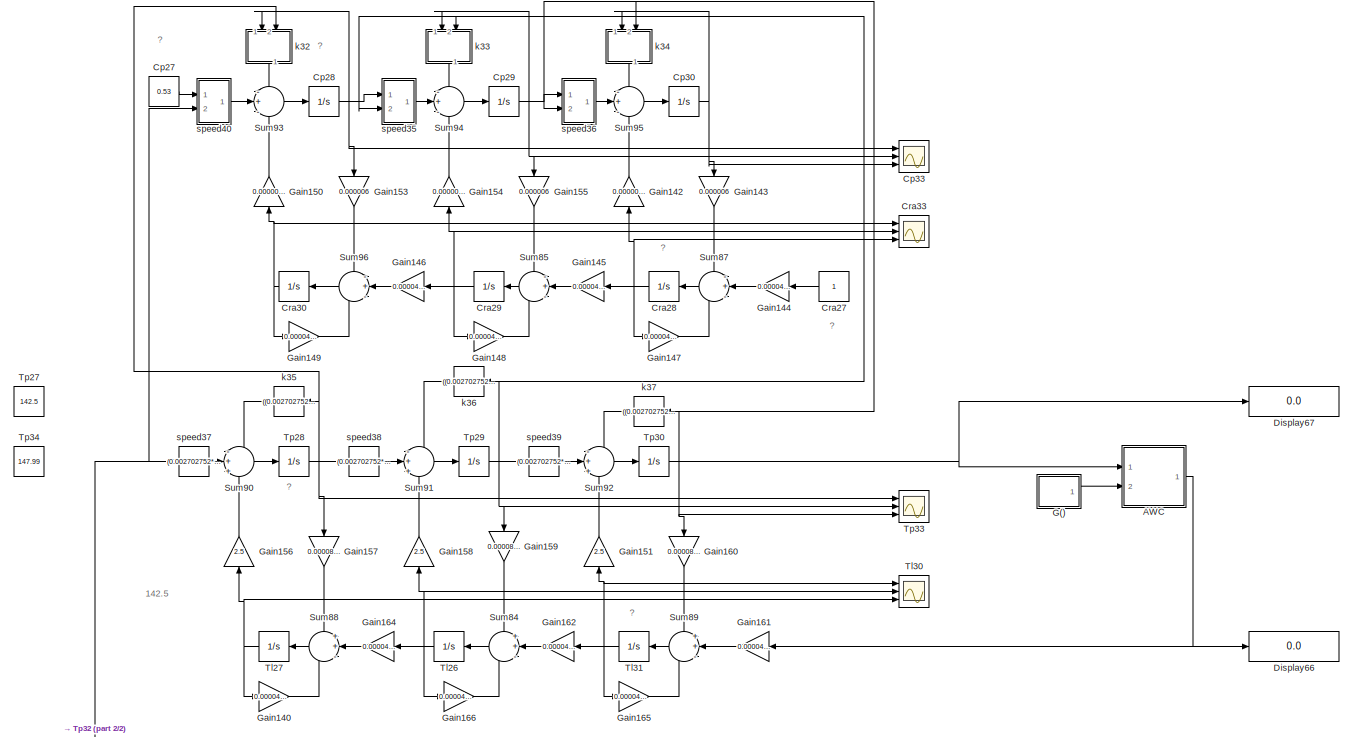
[diagram: Top RC/FULL_RC_2 - part 1/2, full width, top band]
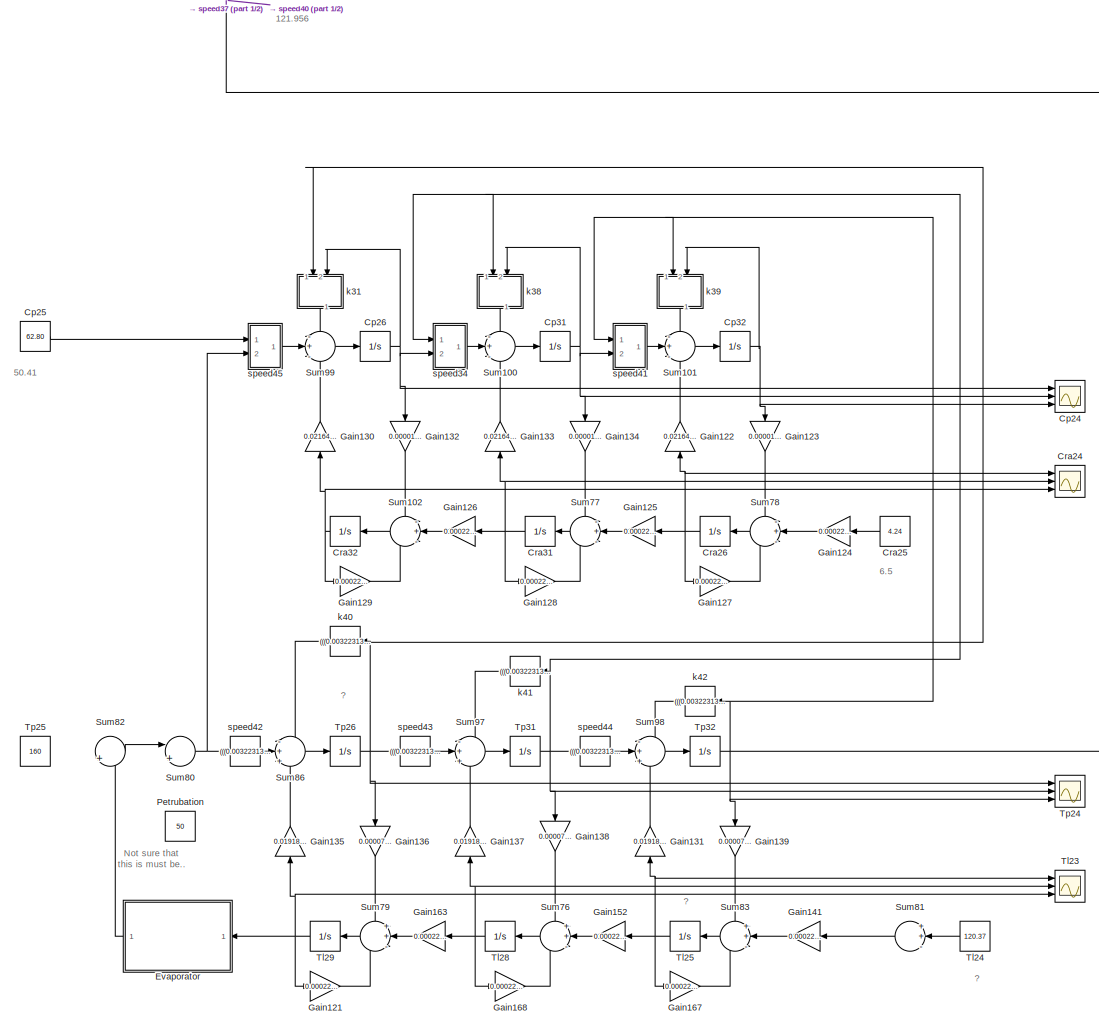
[diagram: Top RC/FULL_RC_2 - part 2/2, full width, bottom band]
BLOCK [SubSystem] Top RC/FULL_RC_2
  Commented = on
  Ports = []
  RequestExecContextInheritance = off
BLOCK [SubSystem] Top RC/FULL_RC_2/AWC
  Ports = [2, 1]
  RequestExecContextInheritance = off
BLOCK [Constant] Top RC/FULL_RC_2/AWC/Constant
  Value = 78.34
BLOCK [Display] Top RC/FULL_RC_2/AWC/Display
  Decimation = 1
  Ports = [1]
BLOCK [Fcn] Top RC/FULL_RC_2/AWC/Gp, kmol//s
  Expr = u/3600
BLOCK [Inport] Top RC/FULL_RC_2/AWC/In1
  IconDisplay = Port number
BLOCK [Inport] Top RC/FULL_RC_2/AWC/In2
  IconDisplay = Port number
  Port = 2
BLOCK [Outport] Top RC/FULL_RC_2/AWC/Out1
  IconDisplay = Port number
BLOCK [Product] Top RC/FULL_RC_2/AWC/Pr
  InputSameDT = off
  OutDataTypeStr = Inherit: Inherit via internal rule
  Ports = [2, 1]
  SaturateOnIntegerOverflow = off
BLOCK [SubSystem] Top RC/FULL_RC_2/AWC/Pr.f
  Ports = [1, 1]
  RequestExecContextInheritance = off
BLOCK [Gain] Top RC/FULL_RC_2/AWC/Pr.f/1//T
  OutDataTypeStr = Inherit: Inherit via internal rule
  ParamDataTypeStr = Inherit: Inherit via internal rule
  SaturateOnIntegerOverflow = off
BLOCK [Fcn] Top RC/FULL_RC_2/AWC/Pr.f/Fcn
  Expr = (u/0.152)^(1/2)
BLOCK [Gain] Top RC/FULL_RC_2/AWC/Pr.f/Gain1
  OutDataTypeStr = Inherit: Inherit via internal rule
  ParamDataTypeStr = Inherit: Inherit via internal rule
  SaturateOnIntegerOverflow = off
BLOCK [Display] Top RC/FULL_RC_2/AWC/Pr.f/Gf, kmol//h1
  Decimation = 1
  Ports = [1]
BLOCK [Display] Top RC/FULL_RC_2/AWC/Pr.f/Gf, kmol//h2
  Decimation = 1
  Ports = [1]
BLOCK [Inport] Top RC/FULL_RC_2/AWC/Pr.f/In1
  IconDisplay = Port number
BLOCK [Integrator] Top RC/FULL_RC_2/AWC/Pr.f/Integrator
  InitialCondition = 403.6
  Ports = [1, 1]
BLOCK [Outport] Top RC/FULL_RC_2/AWC/Pr.f/Out1
  IconDisplay = Port number
BLOCK [Sum] Top RC/FULL_RC_2/AWC/Pr.f/Sum1
  InputSameDT = off
  OutDataTypeStr = Inherit: Inherit via internal rule
  Ports = [2, 1]
  SaturateOnIntegerOverflow = off
BLOCK [Sum] Top RC/FULL_RC_2/AWC/Pr.f/Sum2
  InputSameDT = off
  Inputs = -+
  OutDataTypeStr = Inherit: Inherit via internal rule
  Ports = [2, 1]
  SaturateOnIntegerOverflow = off
BLOCK [Constant] Top RC/FULL_RC_2/AWC/Pr.f/U1
  Value = 380
BLOCK [Gain] Top RC/FULL_RC_2/AWC/Pr.f/kn
  Gain = 4300
  OutDataTypeStr = Inherit: Inherit via internal rule
  ParamDataTypeStr = Inherit: Inherit via internal rule
  SaturateOnIntegerOverflow = off
BLOCK [Product] Top RC/FULL_RC_2/AWC/Pr1
  InputSameDT = off
  OutDataTypeStr = Inherit: Inherit via internal rule
  Ports = [2, 1]
  SaturateOnIntegerOverflow = off
BLOCK [Product] Top RC/FULL_RC_2/AWC/Pr2
  InputSameDT = off
  OutDataTypeStr = Inherit: Inherit via internal rule
  Ports = [2, 1]
  SaturateOnIntegerOverflow = off
BLOCK [Product] Top RC/FULL_RC_2/AWC/Pr3
  InputSameDT = off
  OutDataTypeStr = Inherit: Inherit via internal rule
  Ports = [2, 1]
  SaturateOnIntegerOverflow = off
BLOCK [Product] Top RC/FULL_RC_2/AWC/Pr4
  InputSameDT = off
  OutDataTypeStr = Inherit: Inherit via internal rule
  Ports = [2, 1]
  SaturateOnIntegerOverflow = off
BLOCK [Product] Top RC/FULL_RC_2/AWC/Pr5
  InputSameDT = off
  OutDataTypeStr = Inherit: Inherit via internal rule
  Ports = [2, 1]
  SaturateOnIntegerOverflow = off
BLOCK [Gain] Top RC/FULL_RC_2/AWC/Rc2_0
  Gain = 0.48
  OutDataTypeStr = Inherit: Inherit via internal rule
  ParamDataTypeStr = Inherit: Inherit via internal rule
  SaturateOnIntegerOverflow = off
BLOCK [Gain] Top RC/FULL_RC_2/AWC/Rc2_1
  Gain = 0.48
  OutDataTypeStr = Inherit: Inherit via internal rule
  ParamDataTypeStr = Inherit: Inherit via internal rule
  SaturateOnIntegerOverflow = off
BLOCK [Gain] Top RC/FULL_RC_2/AWC/Rc2_2
  Gain = 0.48
  OutDataTypeStr = Inherit: Inherit via internal rule
  ParamDataTypeStr = Inherit: Inherit via internal rule
  SaturateOnIntegerOverflow = off
BLOCK [Gain] Top RC/FULL_RC_2/AWC/Rnp
  Gain = 8.4
  OutDataTypeStr = Inherit: Inherit via internal rule
  ParamDataTypeStr = Inherit: Inherit via internal rule
  SaturateOnIntegerOverflow = off
BLOCK [Gain] Top RC/FULL_RC_2/AWC/Rnp1
  Gain = 8.4
  OutDataTypeStr = Inherit: Inherit via internal rule
  ParamDataTypeStr = Inherit: Inherit via internal rule
  SaturateOnIntegerOverflow = off
BLOCK [Gain] Top RC/FULL_RC_2/AWC/Rnp2
  Gain = 8.4
  OutDataTypeStr = Inherit: Inherit via internal rule
  ParamDataTypeStr = Inherit: Inherit via internal rule
  SaturateOnIntegerOverflow = off
BLOCK [Sum] Top RC/FULL_RC_2/AWC/Sum
  IconShape = round
  InputSameDT = off
  Inputs = -++
  OutDataTypeStr = Inherit: Inherit via internal rule
  Ports = [3, 1]
  SaturateOnIntegerOverflow = off
BLOCK [Sum] Top RC/FULL_RC_2/AWC/Sum1
  IconShape = round
  InputSameDT = off
  Inputs = -++
  OutDataTypeStr = Inherit: Inherit via internal rule
  Ports = [3, 1]
  SaturateOnIntegerOverflow = off
BLOCK [Sum] Top RC/FULL_RC_2/AWC/Sum2
  IconShape = round
  InputSameDT = off
  Inputs = -++
  OutDataTypeStr = Inherit: Inherit via internal rule
  Ports = [3, 1]
  SaturateOnIntegerOverflow = off
BLOCK [Sum] Top RC/FULL_RC_2/AWC/Sum3
  IconShape = round
  InputSameDT = off
  Inputs = -++
  OutDataTypeStr = Inherit: Inherit via internal rule
  Ports = [3, 1]
  SaturateOnIntegerOverflow = off
BLOCK [Sum] Top RC/FULL_RC_2/AWC/Sum4
  IconShape = round
  InputSameDT = off
  Inputs = -++
  OutDataTypeStr = Inherit: Inherit via internal rule
  Ports = [3, 1]
  SaturateOnIntegerOverflow = off
BLOCK [Sum] Top RC/FULL_RC_2/AWC/Sum5
  IconShape = round
  InputSameDT = off
  Inputs = -++
  OutDataTypeStr = Inherit: Inherit via internal rule
  Ports = [3, 1]
  SaturateOnIntegerOverflow = off
BLOCK [Sum] Top RC/FULL_RC_2/AWC/Sum6
  InputSameDT = off
  OutDataTypeStr = Inherit: Inherit via internal rule
  Ports = [2, 1]
  SaturateOnIntegerOverflow = off
BLOCK [Sum] Top RC/FULL_RC_2/AWC/Sum7
  InputSameDT = off
  OutDataTypeStr = Inherit: Inherit via internal rule
  Ports = [2, 1]
  SaturateOnIntegerOverflow = off
BLOCK [Sum] Top RC/FULL_RC_2/AWC/Sum8
  InputSameDT = off
  OutDataTypeStr = Inherit: Inherit via internal rule
  Ports = [2, 1]
  SaturateOnIntegerOverflow = off
BLOCK [Sum] Top RC/FULL_RC_2/AWC/Sum9
  InputSameDT = off
  Inputs = -+
  OutDataTypeStr = Inherit: Inherit via internal rule
  Ports = [2, 1]
  SaturateOnIntegerOverflow = off
BLOCK [Scope] Top RC/FULL_RC_2/AWC/Tnp-t
  Floating = off
  NumInputPorts = 3
  Ports = [3]
  ScopeSpecificationString = C++SS(StrPVP('Location','[512, 124, 989, 627]'),StrPVP('Open','off'),MxPVP('AxesTitles',53,'struct(''axes1'',''%<SignalLabel>'',''axes2'',''%<SignalLabel>'',''axes3'',''%<SignalLabel>'')'),MxPVP('ScopeGraphics',56,'struct(''FigureColor'',''[0.5 0.5 0.5]'',''AxesColor'',''[0 0 0]'',''AxesTickColor'',''[1 1 1]'',''LineColors'',''[1 1 0;1 0 1;0 1 1;1 0 0;0 1 0;0 0 1]'',''LineStyles'',''-|-|-|-|-|-'',...<+406ch>
BLOCK [Integrator] Top RC/FULL_RC_2/AWC/Tnp1
  InitialCondition = 55.042986606641151
  Ports = [1, 1]
BLOCK [Integrator] Top RC/FULL_RC_2/AWC/Tnp2
  InitialCondition = 42.494060413287038
  Ports = [1, 1]
BLOCK [Integrator] Top RC/FULL_RC_2/AWC/Tnp3
  InitialCondition = 33.818616670435347
  Ports = [1, 1]
BLOCK [Constant] Top RC/FULL_RC_2/AWC/Tnpz
  Value = 30
BLOCK [Fcn] Top RC/FULL_RC_2/AWC/Tsr1
  Expr = (54-u)*exp(-0.06*101.25)+u
BLOCK [Scope] Top RC/FULL_RC_2/AWC/Tst-t
  Floating = off
  NumInputPorts = 3
  Ports = [3]
  ScopeSpecificationString = C++SS(StrPVP('Location','[525, 58, 849, 561]'),StrPVP('Open','off'),MxPVP('AxesTitles',53,'struct(''axes1'',''%<SignalLabel>'',''axes2'',''%<SignalLabel>'',''axes3'',''%<SignalLabel>'')'),MxPVP('ScopeGraphics',56,'struct(''FigureColor'',''[0.5 0.5 0.5]'',''AxesColor'',''[0 0 0]'',''AxesTickColor'',''[1 1 1]'',''LineColors'',''[1 1 0;1 0 1;0 1 1;1 0 0;0 1 0;0 0 1]'',''LineStyles'',''-|-|-|-|-|-'','...<+410ch>
BLOCK [Integrator] Top RC/FULL_RC_2/AWC/Tst1
  InitialCondition = 30.749212884999000
  Ports = [1, 1]
BLOCK [Integrator] Top RC/FULL_RC_2/AWC/Tst2
  InitialCondition = 26.338794670104530
  Ports = [1, 1]
BLOCK [Integrator] Top RC/FULL_RC_2/AWC/Tst3
  InitialCondition = 23.289742144317184
  Ports = [1, 1]
BLOCK [Gain] Top RC/FULL_RC_2/AWC/kDT
  Gain = 7.717*10^(-5)
  OutDataTypeStr = Inherit: Inherit via internal rule
  ParamDataTypeStr = Inherit: Inherit via internal rule
  SaturateOnIntegerOverflow = off
BLOCK [Gain] Top RC/FULL_RC_2/AWC/nRc1
  Gain = 0.00661*134
  OutDataTypeStr = Inherit: Inherit via internal rule
  ParamDataTypeStr = Inherit: Inherit via internal rule
  SaturateOnIntegerOverflow = off
BLOCK [Gain] Top RC/FULL_RC_2/AWC/nRc1 +Rc2_1
  Gain = 0.00661*134+0.48
  OutDataTypeStr = Inherit: Inherit via internal rule
  ParamDataTypeStr = Inherit: Inherit via internal rule
  SaturateOnIntegerOverflow = off
BLOCK [Gain] Top RC/FULL_RC_2/AWC/nRc1 +Rc2_2
  Gain = 0.00661*134+0.48
  OutDataTypeStr = Inherit: Inherit via internal rule
  ParamDataTypeStr = Inherit: Inherit via internal rule
  SaturateOnIntegerOverflow = off
BLOCK [Gain] Top RC/FULL_RC_2/AWC/nRc1 +Rc2_3
  Gain = 0.00661*134+0.48
  OutDataTypeStr = Inherit: Inherit via internal rule
  ParamDataTypeStr = Inherit: Inherit via internal rule
  SaturateOnIntegerOverflow = off
BLOCK [Gain] Top RC/FULL_RC_2/AWC/nRc2
  Gain = 8.4
  OutDataTypeStr = Inherit: Inherit via internal rule
  ParamDataTypeStr = Inherit: Inherit via internal rule
  SaturateOnIntegerOverflow = off
BLOCK [Gain] Top RC/FULL_RC_2/AWC/nRc3
  Gain = 8.4
  OutDataTypeStr = Inherit: Inherit via internal rule
  ParamDataTypeStr = Inherit: Inherit via internal rule
  SaturateOnIntegerOverflow = off
BLOCK [Gain] Top RC/FULL_RC_2/AWC/nRc4
  Gain = 8.4
  OutDataTypeStr = Inherit: Inherit via internal rule
  ParamDataTypeStr = Inherit: Inherit via internal rule
  SaturateOnIntegerOverflow = off
BLOCK [Fcn] Top RC/FULL_RC_2/AWC/speed1
  Expr = (((2.27*(273+u))/1.4184)/1.333)*u
BLOCK [Fcn] Top RC/FULL_RC_2/AWC/speed2
  Expr = (((2.27*(273+u))/1.4184)/1.333)*u
BLOCK [Fcn] Top RC/FULL_RC_2/AWC/speed3
  Expr = (((2.27*(273+u))/1.4184)/1.333)*u
BLOCK [Display] Top RC/FULL_RC_2/AWC/t
  Decimation = 1
  Ports = [1]
BLOCK [Display] Top RC/FULL_RC_2/AWC/t1
  Decimation = 1
  Ports = [1]
BLOCK [Fcn] Top RC/FULL_RC_2/AWC/vnp//h+Rnp1
  Expr = (((2.27*(273+u))/1.4184)/1.333)*u
BLOCK [Fcn] Top RC/FULL_RC_2/AWC/vnp//h+Rnp2
  Expr = (((2.27*(273+u))/1.4184)/1.333)*u
BLOCK [Fcn] Top RC/FULL_RC_2/AWC/vnp//h+Rnp3
  Expr = (((2.27*(273+u))/1.4184)/1.333)*u
BLOCK [Scope] Top RC/FULL_RC_2/Cp24
  Floating = off
  NumInputPorts = 3
  Ports = [3]
  ScopeSpecificationString = Simulink.scopes.TimeScopeBlockCfg('CurrentConfiguration', extmgr.ConfigurationSet(extmgr.Configuration('Core','General UI',true),extmgr.Configuration('Core','Source UI',true),extmgr.Configuration('Sources','WiredSimulink',true,'DataLogging',true,'DataLoggingVariableName','Cp','DataLoggingSaveFormat','Structure','DataLoggingDecimation','1','DataLoggingDecimateData',true),extmgr.Configuration('Visua...<+3073ch>
BLOCK [Constant] Top RC/FULL_RC_2/Cp25
  Value = 62.80
BLOCK [Integrator] Top RC/FULL_RC_2/Cp26
  InitialCondition = 62.80
  Ports = [1, 1]
BLOCK [Constant] Top RC/FULL_RC_2/Cp27
  Value = 0.53
BLOCK [Integrator] Top RC/FULL_RC_2/Cp28
  InitialCondition = 0.665
  Ports = [1, 1]
BLOCK [Integrator] Top RC/FULL_RC_2/Cp29
  InitialCondition = 0.803
  Ports = [1, 1]
BLOCK [Integrator] Top RC/FULL_RC_2/Cp30
  InitialCondition = 0.986
  Ports = [1, 1]
BLOCK [Integrator] Top RC/FULL_RC_2/Cp31
  InitialCondition = 77.79
  Ports = [1, 1]
BLOCK [Integrator] Top RC/FULL_RC_2/Cp32
  InitialCondition = 96.56
  Ports = [1, 1]
BLOCK [Scope] Top RC/FULL_RC_2/Cp33
  Floating = off
  NumInputPorts = 3
  Ports = [3]
  ScopeSpecificationString = Simulink.scopes.TimeScopeBlockCfg('CurrentConfiguration', extmgr.ConfigurationSet(extmgr.Configuration('Core','General UI',true),extmgr.Configuration('Core','Source UI',true),extmgr.Configuration('Sources','WiredSimulink',true,'DataLogging',true,'DataLoggingVariableName','Cp1','DataLoggingSaveFormat','Structure','DataLoggingDecimation','1','DataLoggingDecimateData',true),extmgr.Configuration('Visu...<+3074ch>
BLOCK [Scope] Top RC/FULL_RC_2/Cra24
  Floating = off
  NumInputPorts = 3
  Ports = [3]
  ScopeSpecificationString = Simulink.scopes.TimeScopeBlockCfg('CurrentConfiguration', extmgr.ConfigurationSet(extmgr.Configuration('Core','General UI',true),extmgr.Configuration('Core','Source UI',true),extmgr.Configuration('Sources','WiredSimulink',true,'DataLogging',true,'DataLoggingVariableName','Cra','DataLoggingSaveFormat','StructureWithTime','DataLoggingDecimation','1','DataLoggingDecimateData',true),extmgr.Configurati...<+3008ch>
BLOCK [Constant] Top RC/FULL_RC_2/Cra25
  Value = 4.24
BLOCK [Integrator] Top RC/FULL_RC_2/Cra26
  InitialCondition = 4.24
  Ports = [1, 1]
BLOCK [Constant] Top RC/FULL_RC_2/Cra27
BLOCK [Integrator] Top RC/FULL_RC_2/Cra28
  InitialCondition = 0.827
  Ports = [1, 1]
BLOCK [Integrator] Top RC/FULL_RC_2/Cra29
  InitialCondition = 0.6862
  Ports = [1, 1]
BLOCK [Integrator] Top RC/FULL_RC_2/Cra30
  InitialCondition = 0.5696
  Ports = [1, 1]
BLOCK [Integrator] Top RC/FULL_RC_2/Cra31
  InitialCondition = 2.42
  Ports = [1, 1]
BLOCK [Integrator] Top RC/FULL_RC_2/Cra32
  InitialCondition = 0.95
  Ports = [1, 1]
BLOCK [Scope] Top RC/FULL_RC_2/Cra33
  Floating = off
  NumInputPorts = 3
  Ports = [3]
  ScopeSpecificationString = Simulink.scopes.TimeScopeBlockCfg('CurrentConfiguration', extmgr.ConfigurationSet(extmgr.Configuration('Core','General UI',true),extmgr.Configuration('Core','Source UI',true),extmgr.Configuration('Sources','WiredSimulink',true,'DataLogging',true,'DataLoggingVariableName','Cra1','DataLoggingSaveFormat','StructureWithTime','DataLoggingDecimation','1','DataLoggingDecimateData',true),extmgr.Configurat...<+3009ch>
BLOCK [Display] Top RC/FULL_RC_2/Display66
  Decimation = 1
  Ports = [1]
BLOCK [Display] Top RC/FULL_RC_2/Display67
  Decimation = 1
  Ports = [1]
BLOCK [SubSystem] Top RC/FULL_RC_2/Evaporator
  Ports = [1, 1]
  RequestExecContextInheritance = off
BLOCK [RateLimiter] Top RC/FULL_RC_2/Evaporator/%//c
  FallingSlewLimit = -5
  RisingSlewLimit = 5
  SampleTimeMode = inherited
BLOCK [Display] Top RC/FULL_RC_2/Evaporator/Display2
  Decimation = 1
  Ports = [1]
BLOCK [Gain] Top RC/FULL_RC_2/Evaporator/Kdta, mA//C
  Gain = 0.08
  OutDataTypeStr = Inherit: Inherit via internal rule
  ParamDataTypeStr = Inherit: Inherit via internal rule
  SaturateOnIntegerOverflow = off
BLOCK [Gain] Top RC/FULL_RC_2/Evaporator/Kpi
  OutDataTypeStr = Inherit: Inherit via internal rule
  ParamDataTypeStr = Inherit: Inherit via internal rule
  SaturateOnIntegerOverflow = off
BLOCK [Gain] Top RC/FULL_RC_2/Evaporator/Kro
  Gain = 0.006
  OutDataTypeStr = Inherit: Inherit via internal rule
  ParamDataTypeStr = Inherit: Inherit via internal rule
  SaturateOnIntegerOverflow = off
BLOCK [Gain] Top RC/FULL_RC_2/Evaporator/Kzd, mA//C
  Gain = 0.08
  OutDataTypeStr = Inherit: Inherit via internal rule
  ParamDataTypeStr = Inherit: Inherit via internal rule
  SaturateOnIntegerOverflow = off
BLOCK [Gain] Top RC/FULL_RC_2/Evaporator/Ra1
  Gain = 0.003
  OutDataTypeStr = Inherit: Inherit via internal rule
  ParamDataTypeStr = Inherit: Inherit via internal rule
  SaturateOnIntegerOverflow = off
BLOCK [Gain] Top RC/FULL_RC_2/Evaporator/Ra2
  Gain = 0.003
  OutDataTypeStr = Inherit: Inherit via internal rule
  ParamDataTypeStr = Inherit: Inherit via internal rule
  SaturateOnIntegerOverflow = off
BLOCK [Gain] Top RC/FULL_RC_2/Evaporator/Ra3
  Gain = 0.003
  OutDataTypeStr = Inherit: Inherit via internal rule
  ParamDataTypeStr = Inherit: Inherit via internal rule
  SaturateOnIntegerOverflow = off
BLOCK [Gain] Top RC/FULL_RC_2/Evaporator/Ra4
  Gain = 0.003
  OutDataTypeStr = Inherit: Inherit via internal rule
  ParamDataTypeStr = Inherit: Inherit via internal rule
  SaturateOnIntegerOverflow = off
BLOCK [Gain] Top RC/FULL_RC_2/Evaporator/Rast1
  Gain = 0.22
  OutDataTypeStr = Inherit: Inherit via internal rule
  ParamDataTypeStr = Inherit: Inherit via internal rule
  SaturateOnIntegerOverflow = off
BLOCK [Gain] Top RC/FULL_RC_2/Evaporator/Rast2
  Gain = 0.22
  OutDataTypeStr = Inherit: Inherit via internal rule
  ParamDataTypeStr = Inherit: Inherit via internal rule
  SaturateOnIntegerOverflow = off
BLOCK [Gain] Top RC/FULL_RC_2/Evaporator/Rast3
  Gain = 0.22
  OutDataTypeStr = Inherit: Inherit via internal rule
  ParamDataTypeStr = Inherit: Inherit via internal rule
  SaturateOnIntegerOverflow = off
BLOCK [Gain] Top RC/FULL_RC_2/Evaporator/Rast4
  Gain = 0.22
  OutDataTypeStr = Inherit: Inherit via internal rule
  ParamDataTypeStr = Inherit: Inherit via internal rule
  SaturateOnIntegerOverflow = off
BLOCK [Gain] Top RC/FULL_RC_2/Evaporator/Rdg1
  Gain = 0.47
  OutDataTypeStr = Inherit: Inherit via internal rule
  ParamDataTypeStr = Inherit: Inherit via internal rule
  SaturateOnIntegerOverflow = off
BLOCK [Gain] Top RC/FULL_RC_2/Evaporator/Rdg2
  Gain = 0.47
  OutDataTypeStr = Inherit: Inherit via internal rule
  ParamDataTypeStr = Inherit: Inherit via internal rule
  SaturateOnIntegerOverflow = off
BLOCK [Gain] Top RC/FULL_RC_2/Evaporator/Rdg3
  Gain = 0.47
  OutDataTypeStr = Inherit: Inherit via internal rule
  ParamDataTypeStr = Inherit: Inherit via internal rule
  SaturateOnIntegerOverflow = off
BLOCK [Gain] Top RC/FULL_RC_2/Evaporator/Rdg4
  Gain = 0.47
  OutDataTypeStr = Inherit: Inherit via internal rule
  ParamDataTypeStr = Inherit: Inherit via internal rule
  SaturateOnIntegerOverflow = off
BLOCK [Gain] Top RC/FULL_RC_2/Evaporator/Rdgst1
  Gain = 0.008
  OutDataTypeStr = Inherit: Inherit via internal rule
  ParamDataTypeStr = Inherit: Inherit via internal rule
  SaturateOnIntegerOverflow = off
BLOCK [Gain] Top RC/FULL_RC_2/Evaporator/Rdgst1+Rast1
  Gain = 0.008+0.22
  OutDataTypeStr = Inherit: Inherit via internal rule
  ParamDataTypeStr = Inherit: Inherit via internal rule
  SaturateOnIntegerOverflow = off
BLOCK [Gain] Top RC/FULL_RC_2/Evaporator/Rdgst2
  Gain = 0.008
  OutDataTypeStr = Inherit: Inherit via internal rule
  ParamDataTypeStr = Inherit: Inherit via internal rule
  SaturateOnIntegerOverflow = off
BLOCK [Gain] Top RC/FULL_RC_2/Evaporator/Rdgst2+Rast2
  Gain = 0.008+0.22
  OutDataTypeStr = Inherit: Inherit via internal rule
  ParamDataTypeStr = Inherit: Inherit via internal rule
  SaturateOnIntegerOverflow = off
BLOCK [Gain] Top RC/FULL_RC_2/Evaporator/Rdgst3
  Gain = 0.008
  OutDataTypeStr = Inherit: Inherit via internal rule
  ParamDataTypeStr = Inherit: Inherit via internal rule
  SaturateOnIntegerOverflow = off
BLOCK [Gain] Top RC/FULL_RC_2/Evaporator/Rdgst3+Rast3
  Gain = 0.008+0.22
  OutDataTypeStr = Inherit: Inherit via internal rule
  ParamDataTypeStr = Inherit: Inherit via internal rule
  SaturateOnIntegerOverflow = off
BLOCK [Gain] Top RC/FULL_RC_2/Evaporator/Rdgst4
  Gain = 0.008
  OutDataTypeStr = Inherit: Inherit via internal rule
  ParamDataTypeStr = Inherit: Inherit via internal rule
  SaturateOnIntegerOverflow = off
BLOCK [Gain] Top RC/FULL_RC_2/Evaporator/Rdgst4+Rast4
  Gain = 0.008+0.22
  OutDataTypeStr = Inherit: Inherit via internal rule
  ParamDataTypeStr = Inherit: Inherit via internal rule
  SaturateOnIntegerOverflow = off
BLOCK [Sum] Top RC/FULL_RC_2/Evaporator/Sum
  IconShape = round
  InputSameDT = off
  Inputs = -++
  OutDataTypeStr = Inherit: Inherit via internal rule
  Ports = [3, 1]
  SaturateOnIntegerOverflow = off
BLOCK [Sum] Top RC/FULL_RC_2/Evaporator/Sum26
  IconShape = round
  InputSameDT = off
  Inputs = -++
  OutDataTypeStr = Inherit: Inherit via internal rule
  Ports = [3, 1]
  SaturateOnIntegerOverflow = off
BLOCK [Sum] Top RC/FULL_RC_2/Evaporator/Sum27
  IconShape = round
  InputSameDT = off
  Inputs = ++-
  OutDataTypeStr = Inherit: Inherit via internal rule
  Ports = [3, 1]
  SaturateOnIntegerOverflow = off
BLOCK [Sum] Top RC/FULL_RC_2/Evaporator/Sum28
  IconShape = round
  InputSameDT = off
  Inputs = ++-
  OutDataTypeStr = Inherit: Inherit via internal rule
  Ports = [3, 1]
  SaturateOnIntegerOverflow = off
BLOCK [Sum] Top RC/FULL_RC_2/Evaporator/Sum29
  InputSameDT = off
  Inputs = +-
  OutDataTypeStr = Inherit: Inherit via internal rule
  Ports = [2, 1]
  SaturateOnIntegerOverflow = off
BLOCK [Sum] Top RC/FULL_RC_2/Evaporator/Sum30
  InputSameDT = off
  OutDataTypeStr = Inherit: Inherit via internal rule
  Ports = [2, 1]
  SaturateOnIntegerOverflow = off
BLOCK [Sum] Top RC/FULL_RC_2/Evaporator/Sum31
  IconShape = round
  InputSameDT = off
  Inputs = -++
  OutDataTypeStr = Inherit: Inherit via internal rule
  Ports = [3, 1]
  SaturateOnIntegerOverflow = off
BLOCK [Sum] Top RC/FULL_RC_2/Evaporator/Sum32
  IconShape = round
  InputSameDT = off
  Inputs = -++
  OutDataTypeStr = Inherit: Inherit via internal rule
  Ports = [3, 1]
  SaturateOnIntegerOverflow = off
BLOCK [Sum] Top RC/FULL_RC_2/Evaporator/Sum33
  IconShape = round
  InputSameDT = off
  Inputs = ++-
  OutDataTypeStr = Inherit: Inherit via internal rule
  Ports = [3, 1]
  SaturateOnIntegerOverflow = off
BLOCK [Sum] Top RC/FULL_RC_2/Evaporator/Sum34
  IconShape = round
  InputSameDT = off
  Inputs = ++-
  OutDataTypeStr = Inherit: Inherit via internal rule
  Ports = [3, 1]
  SaturateOnIntegerOverflow = off
BLOCK [Sum] Top RC/FULL_RC_2/Evaporator/Sum35
  IconShape = round
  InputSameDT = off
  Inputs = ++-
  OutDataTypeStr = Inherit: Inherit via internal rule
  Ports = [3, 1]
  SaturateOnIntegerOverflow = off
BLOCK [Sum] Top RC/FULL_RC_2/Evaporator/Sum36
  IconShape = round
  InputSameDT = off
  Inputs = ++-
  OutDataTypeStr = Inherit: Inherit via internal rule
  Ports = [3, 1]
  SaturateOnIntegerOverflow = off
BLOCK [Sum] Top RC/FULL_RC_2/Evaporator/Sum37
  IconShape = round
  InputSameDT = off
  Inputs = ++-
  OutDataTypeStr = Inherit: Inherit via internal rule
  Ports = [3, 1]
  SaturateOnIntegerOverflow = off
BLOCK [Sum] Top RC/FULL_RC_2/Evaporator/Sum38
  IconShape = round
  InputSameDT = off
  Inputs = ++-
  OutDataTypeStr = Inherit: Inherit via internal rule
  Ports = [3, 1]
  SaturateOnIntegerOverflow = off
BLOCK [Scope] Top RC/FULL_RC_2/Evaporator/Ta-t
  Floating = off
  NumInputPorts = 4
  Ports = [4]
  ScopeSpecificationString = C++SS(StrPVP('Location','[999, 167, 1323, 671]'),StrPVP('Open','off'),MxPVP('AxesTitles',53,'struct(''axes1'',''%<SignalLabel>'',''axes2'',''%<SignalLabel>'',''axes3'',''%<SignalLabel>'',''axes4'',''%<SignalLabel>'')'),MxPVP('ScopeGraphics',56,'struct(''FigureColor'',''[0.5 0.5 0.5]'',''AxesColor'',''[0 0 0]'',''AxesTickColor'',''[1 1 1]'',''LineColors'',''[1 1 0;1 0 1;0 1 1;1 0 0;0 1 0;0 0 1]'','...<+421ch>
BLOCK [Integrator] Top RC/FULL_RC_2/Evaporator/Ta1
  InitialCondition = 136.285
  Ports = [1, 1]
BLOCK [Integrator] Top RC/FULL_RC_2/Evaporator/Ta2
  InitialCondition = 144.19
  Ports = [1, 1]
BLOCK [Integrator] Top RC/FULL_RC_2/Evaporator/Ta3
  InitialCondition = 152.09
  Ports = [1, 1]
BLOCK [Integrator] Top RC/FULL_RC_2/Evaporator/Ta4
  InitialCondition = 160
  Ports = [1, 1]
BLOCK [Inport] Top RC/FULL_RC_2/Evaporator/Ta_IN
  IconDisplay = Port number
BLOCK [Outport] Top RC/FULL_RC_2/Evaporator/Ta_OUT
  IconDisplay = Port number
BLOCK [Scope] Top RC/FULL_RC_2/Evaporator/Tdg-t
  Floating = off
  NumInputPorts = 4
  Ports = [4]
  ScopeSpecificationString = C++SS(StrPVP('Location','[886, 169, 1210, 673]'),StrPVP('Open','off'),MxPVP('AxesTitles',53,'struct(''axes1'',''%<SignalLabel>'',''axes2'',''%<SignalLabel>'',''axes3'',''%<SignalLabel>'',''axes4'',''%<SignalLabel>'')'),MxPVP('ScopeGraphics',56,'struct(''FigureColor'',''[0.5 0.5 0.5]'',''AxesColor'',''[0 0 0]'',''AxesTickColor'',''[1 1 1]'',''LineColors'',''[1 1 0;1 0 1;0 1 1;1 0 0;0 1 0;0 0 1]'','...<+415ch>
BLOCK [Integrator] Top RC/FULL_RC_2/Evaporator/Tdg1
  InitialCondition = 283.3065209436467
  Ports = [1, 1]
BLOCK [Integrator] Top RC/FULL_RC_2/Evaporator/Tdg2
  InitialCondition = 267.8966165589237
  Ports = [1, 1]
BLOCK [Integrator] Top RC/FULL_RC_2/Evaporator/Tdg3
  InitialCondition = 253.6715917846216
  Ports = [1, 1]
BLOCK [Integrator] Top RC/FULL_RC_2/Evaporator/Tdg4
  InitialCondition = 240.5403403000344
  Ports = [1, 1]
BLOCK [Integrator] Top RC/FULL_RC_2/Evaporator/Ti
  InitialCondition = 8000
  LowerSaturationLimit = 6012
  Ports = [1, 1]
  UpperSaturationLimit = 8012
BLOCK [ToWorkspace] Top RC/FULL_RC_2/Evaporator/To Workspace5
  MaxDataPoints = inf
  Ports = [1]
  SampleTime = -1
  VariableName = Tdg0
BLOCK [Scope] Top RC/FULL_RC_2/Evaporator/Tst-t
  Floating = off
  NumInputPorts = 4
  Ports = [4]
  ScopeSpecificationString = C++SS(StrPVP('Location','[368, 90, 692, 594]'),StrPVP('Open','off'),MxPVP('AxesTitles',53,'struct(''axes1'',''%<SignalLabel>'',''axes2'',''%<SignalLabel>'',''axes3'',''%<SignalLabel>'',''axes4'',''%<SignalLabel>'')'),MxPVP('ScopeGraphics',56,'struct(''FigureColor'',''[0.5 0.5 0.5]'',''AxesColor'',''[0 0 0]'',''AxesTickColor'',''[1 1 1]'',''LineColors'',''[1 1 0;1 0 1;0 1 1;1 0 0;0 1 0;0 0 1]'',''L...<+413ch>
BLOCK [Integrator] Top RC/FULL_RC_2/Evaporator/Tst1
  InitialCondition = 164.4825307550351
  Ports = [1, 1]
BLOCK [Integrator] Top RC/FULL_RC_2/Evaporator/Tst2
  InitialCondition = 158.2090959868120
  Ports = [1, 1]
BLOCK [Integrator] Top RC/FULL_RC_2/Evaporator/Tst3
  InitialCondition = 152.4180305285302
  Ports = [1, 1]
BLOCK [Integrator] Top RC/FULL_RC_2/Evaporator/Tst4
  InitialCondition = 147.0722446263660
  Ports = [1, 1]
BLOCK [Constant] Top RC/FULL_RC_2/Evaporator/Tz, C
  Value = 160.1616583845354
BLOCK [Gain] Top RC/FULL_RC_2/Evaporator/pozicioner, %//mA
  Gain = 6.25
  OutDataTypeStr = Inherit: Inherit via internal rule
  ParamDataTypeStr = Inherit: Inherit via internal rule
  SaturateOnIntegerOverflow = off
BLOCK [Gain] Top RC/FULL_RC_2/Evaporator/va//h+Ra
  Gain = 0.003/1.375+0.003
  OutDataTypeStr = Inherit: Inherit via internal rule
  ParamDataTypeStr = Inherit: Inherit via internal rule
  SaturateOnIntegerOverflow = off
BLOCK [Gain] Top RC/FULL_RC_2/Evaporator/va//h+Ra1
  Gain = 0.003/1.375+0.003
  OutDataTypeStr = Inherit: Inherit via internal rule
  ParamDataTypeStr = Inherit: Inherit via internal rule
  SaturateOnIntegerOverflow = off
BLOCK [Gain] Top RC/FULL_RC_2/Evaporator/va//h+Ra2
  Gain = 0.003/1.375+0.003
  OutDataTypeStr = Inherit: Inherit via internal rule
  ParamDataTypeStr = Inherit: Inherit via internal rule
  SaturateOnIntegerOverflow = off
BLOCK [Gain] Top RC/FULL_RC_2/Evaporator/va//h+Ra3
  Gain = 0.003/1.375+0.003
  OutDataTypeStr = Inherit: Inherit via internal rule
  ParamDataTypeStr = Inherit: Inherit via internal rule
  SaturateOnIntegerOverflow = off
BLOCK [Gain] Top RC/FULL_RC_2/Evaporator/va//h1
  Gain = 0.003/1.375
  OutDataTypeStr = Inherit: Inherit via internal rule
  ParamDataTypeStr = Inherit: Inherit via internal rule
  SaturateOnIntegerOverflow = off
BLOCK [Gain] Top RC/FULL_RC_2/Evaporator/va//h3
  Gain = 0.003/1.375
  OutDataTypeStr = Inherit: Inherit via internal rule
  ParamDataTypeStr = Inherit: Inherit via internal rule
  SaturateOnIntegerOverflow = off
BLOCK [Gain] Top RC/FULL_RC_2/Evaporator/va//h4
  Gain = 0.003/1.375
  OutDataTypeStr = Inherit: Inherit via internal rule
  ParamDataTypeStr = Inherit: Inherit via internal rule
  SaturateOnIntegerOverflow = off
BLOCK [Gain] Top RC/FULL_RC_2/Evaporator/vah2
  Gain = 0.003/1.375
  OutDataTypeStr = Inherit: Inherit via internal rule
  ParamDataTypeStr = Inherit: Inherit via internal rule
  SaturateOnIntegerOverflow = off
BLOCK [Gain] Top RC/FULL_RC_2/Evaporator/vdg//h
  Gain = 4.6/1.375
  OutDataTypeStr = Inherit: Inherit via internal rule
  ParamDataTypeStr = Inherit: Inherit via internal rule
  SaturateOnIntegerOverflow = off
BLOCK [Gain] Top RC/FULL_RC_2/Evaporator/vdg//h+Rdg
  Gain = 4.6/1.375+0.47
  OutDataTypeStr = Inherit: Inherit via internal rule
  ParamDataTypeStr = Inherit: Inherit via internal rule
  SaturateOnIntegerOverflow = off
BLOCK [Gain] Top RC/FULL_RC_2/Evaporator/vdg//h+Rdg1
  Gain = 4.6/1.375+0.47
  OutDataTypeStr = Inherit: Inherit via internal rule
  ParamDataTypeStr = Inherit: Inherit via internal rule
  SaturateOnIntegerOverflow = off
BLOCK [Gain] Top RC/FULL_RC_2/Evaporator/vdg//h+Rdg2
  Gain = 4.6/1.375+0.47
  OutDataTypeStr = Inherit: Inherit via internal rule
  ParamDataTypeStr = Inherit: Inherit via internal rule
  SaturateOnIntegerOverflow = off
BLOCK [Gain] Top RC/FULL_RC_2/Evaporator/vdg//h+Rdg3
  Gain = 4.6/1.375+0.47
  OutDataTypeStr = Inherit: Inherit via internal rule
  ParamDataTypeStr = Inherit: Inherit via internal rule
  SaturateOnIntegerOverflow = off
BLOCK [Gain] Top RC/FULL_RC_2/Evaporator/vdg//h1
  Gain = 4.6/1.375
  OutDataTypeStr = Inherit: Inherit via internal rule
  ParamDataTypeStr = Inherit: Inherit via internal rule
  SaturateOnIntegerOverflow = off
BLOCK [Gain] Top RC/FULL_RC_2/Evaporator/vdg//h2
  Gain = 4.6/1.375
  OutDataTypeStr = Inherit: Inherit via internal rule
  ParamDataTypeStr = Inherit: Inherit via internal rule
  SaturateOnIntegerOverflow = off
BLOCK [Gain] Top RC/FULL_RC_2/Evaporator/vdg//h3
  Gain = 4.6/1.375
  OutDataTypeStr = Inherit: Inherit via internal rule
  ParamDataTypeStr = Inherit: Inherit via internal rule
  SaturateOnIntegerOverflow = off
BLOCK [SubSystem] Top RC/FULL_RC_2/G()
  Ports = [0, 1]
  RequestExecContextInheritance = off
BLOCK [Constant] Top RC/FULL_RC_2/G()/Cd, ves.dol
BLOCK [Constant] Top RC/FULL_RC_2/G()/Cna, ves.dol
  Value = 0.065
BLOCK [Constant] Top RC/FULL_RC_2/G()/Cra, ves.dol
  Value = 0.01
BLOCK [Display] Top RC/FULL_RC_2/G()/Gd, kg//h
  Decimation = 1
  Format = long
  Ports = [1]
BLOCK [Display] Top RC/FULL_RC_2/G()/Gd, kmol//h
  Decimation = 1
  Ports = [1]
BLOCK [Display] Top RC/FULL_RC_2/G()/Gf, kg//h
  Decimation = 1
  Format = long
  Ports = [1]
BLOCK [Display] Top RC/FULL_RC_2/G()/Gf, kmol//h
  Decimation = 1
  Ports = [1]
BLOCK [Display] Top RC/FULL_RC_2/G()/Gna, kg//h
  Decimation = 1
  Format = long
  Ports = [1]
BLOCK [Display] Top RC/FULL_RC_2/G()/Gna, kmol//h
  Decimation = 1
  Ports = [1]
BLOCK [Display] Top RC/FULL_RC_2/G()/Gp, kg//h
  Decimation = 1
  Format = long
  Ports = [1]
BLOCK [Constant] Top RC/FULL_RC_2/G()/Gra, kg//h
  Value = 9600
BLOCK [Display] Top RC/FULL_RC_2/G()/Gra, kmol//h
  Decimation = 1
  Ports = [1]
BLOCK [Outport] Top RC/FULL_RC_2/G()/Out1
  IconDisplay = Port number
BLOCK [SubSystem] Top RC/FULL_RC_2/G()/SbS RASCHET G
  Ports = [4, 9]
  RequestExecContextInheritance = off
BLOCK [Fcn] Top RC/FULL_RC_2/G()/SbS RASCHET G/Cd, mol.dol
  Expr = (u/18.02)/((u/18.02)+((1-u)/106.12))
BLOCK [Fcn] Top RC/FULL_RC_2/G()/SbS RASCHET G/Cna, mol.dol
  Expr = (u/18.02)/((u/18.02)+((1-u)/106.12))
BLOCK [Fcn] Top RC/FULL_RC_2/G()/SbS RASCHET G/Cra, mol.dol
  Expr = (u/18.02)/((u/18.02)+((1-u)/106.12))
BLOCK [Fcn] Top RC/FULL_RC_2/G()/SbS RASCHET G/Fcn1
  Expr = 1/u
BLOCK [Fcn] Top RC/FULL_RC_2/G()/SbS RASCHET G/Fcn10
  Expr = 1/u
BLOCK [Fcn] Top RC/FULL_RC_2/G()/SbS RASCHET G/Fcn6
  Expr = 1/u
BLOCK [Fcn] Top RC/FULL_RC_2/G()/SbS RASCHET G/Gd*(R+1)
  Expr = u*(0.5+1)
BLOCK [Fcn] Top RC/FULL_RC_2/G()/SbS RASCHET G/Gd*R
  Expr = u*0.5
BLOCK [Inport] Top RC/FULL_RC_2/G()/SbS RASCHET G/In1
  IconDisplay = Port number
BLOCK [Inport] Top RC/FULL_RC_2/G()/SbS RASCHET G/In2
  IconDisplay = Port number
  Port = 2
BLOCK [Inport] Top RC/FULL_RC_2/G()/SbS RASCHET G/In3
  IconDisplay = Port number
  Port = 3
BLOCK [Inport] Top RC/FULL_RC_2/G()/SbS RASCHET G/In4
  IconDisplay = Port number
  Port = 4
BLOCK [Fcn] Top RC/FULL_RC_2/G()/SbS RASCHET G/Md, kg//kmol
  Expr = 18.02*u+106.12*(1-u)
BLOCK [Fcn] Top RC/FULL_RC_2/G()/SbS RASCHET G/Mna, kg//kmol1
  Expr = 18.02*u+106.12*(1-u)
BLOCK [Fcn] Top RC/FULL_RC_2/G()/SbS RASCHET G/Mra, kg//kmol
  Expr = 18.02*u+106.12*(1-u)
BLOCK [Outport] Top RC/FULL_RC_2/G()/SbS RASCHET G/Out1
  IconDisplay = Port number
BLOCK [Outport] Top RC/FULL_RC_2/G()/SbS RASCHET G/Out2
  IconDisplay = Port number
  Port = 2
BLOCK [Outport] Top RC/FULL_RC_2/G()/SbS RASCHET G/Out3
  IconDisplay = Port number
  Port = 3
BLOCK [Outport] Top RC/FULL_RC_2/G()/SbS RASCHET G/Out4
  IconDisplay = Port number
  Port = 4
BLOCK [Outport] Top RC/FULL_RC_2/G()/SbS RASCHET G/Out5
  IconDisplay = Port number
  Port = 5
BLOCK [Outport] Top RC/FULL_RC_2/G()/SbS RASCHET G/Out6
  IconDisplay = Port number
  Port = 6
BLOCK [Outport] Top RC/FULL_RC_2/G()/SbS RASCHET G/Out7
  IconDisplay = Port number
  Port = 7
BLOCK [Outport] Top RC/FULL_RC_2/G()/SbS RASCHET G/Out8
  IconDisplay = Port number
  Port = 8
BLOCK [Outport] Top RC/FULL_RC_2/G()/SbS RASCHET G/Out9
  IconDisplay = Port number
  Port = 9
BLOCK [Product] Top RC/FULL_RC_2/G()/SbS RASCHET G/Pr
  InputSameDT = off
  OutDataTypeStr = Inherit: Inherit via internal rule
  Ports = [2, 1]
  SaturateOnIntegerOverflow = off
BLOCK [Product] Top RC/FULL_RC_2/G()/SbS RASCHET G/Pr1
  InputSameDT = off
  OutDataTypeStr = Inherit: Inherit via internal rule
  Ports = [2, 1]
  SaturateOnIntegerOverflow = off
BLOCK [Product] Top RC/FULL_RC_2/G()/SbS RASCHET G/Pr2
  InputSameDT = off
  OutDataTypeStr = Inherit: Inherit via internal rule
  Ports = [2, 1]
  SaturateOnIntegerOverflow = off
BLOCK [Product] Top RC/FULL_RC_2/G()/SbS RASCHET G/Pr3
  InputSameDT = off
  OutDataTypeStr = Inherit: Inherit via internal rule
  Ports = [2, 1]
  SaturateOnIntegerOverflow = off
BLOCK [Product] Top RC/FULL_RC_2/G()/SbS RASCHET G/Pr4
  InputSameDT = off
  OutDataTypeStr = Inherit: Inherit via internal rule
  Ports = [2, 1]
  SaturateOnIntegerOverflow = off
BLOCK [Product] Top RC/FULL_RC_2/G()/SbS RASCHET G/Pr5
  InputSameDT = off
  OutDataTypeStr = Inherit: Inherit via internal rule
  Ports = [2, 1]
  SaturateOnIntegerOverflow = off
BLOCK [Product] Top RC/FULL_RC_2/G()/SbS RASCHET G/Pr6
  InputSameDT = off
  OutDataTypeStr = Inherit: Inherit via internal rule
  Ports = [2, 1]
  SaturateOnIntegerOverflow = off
BLOCK [Product] Top RC/FULL_RC_2/G()/SbS RASCHET G/Pr7
  InputSameDT = off
  OutDataTypeStr = Inherit: Inherit via internal rule
  Ports = [2, 1]
  SaturateOnIntegerOverflow = off
BLOCK [Product] Top RC/FULL_RC_2/G()/SbS RASCHET G/Pr8
  InputSameDT = off
  OutDataTypeStr = Inherit: Inherit via internal rule
  Ports = [2, 1]
  SaturateOnIntegerOverflow = off
BLOCK [Sum] Top RC/FULL_RC_2/G()/SbS RASCHET G/Sbtr2
  InputSameDT = off
  Inputs = +-
  OutDataTypeStr = Inherit: Inherit via internal rule
  Ports = [2, 1]
  SaturateOnIntegerOverflow = off
BLOCK [Sum] Top RC/FULL_RC_2/G()/SbS RASCHET G/Sbtr3
  InputSameDT = off
  Inputs = -+
  OutDataTypeStr = Inherit: Inherit via internal rule
  Ports = [2, 1]
  SaturateOnIntegerOverflow = off
BLOCK [Sum] Top RC/FULL_RC_2/G()/SbS RASCHET G/Str
  InputSameDT = off
  Inputs = -+
  OutDataTypeStr = Inherit: Inherit via internal rule
  Ports = [2, 1]
  SaturateOnIntegerOverflow = off
BLOCK [Sum] Top RC/FULL_RC_2/G()/SbS RASCHET G/Str1
  InputSameDT = off
  Inputs = -+
  OutDataTypeStr = Inherit: Inherit via internal rule
  Ports = [2, 1]
  SaturateOnIntegerOverflow = off
BLOCK [Gain] Top RC/FULL_RC_2/Gain121
  Gain = 0.0002291314/0.5+0.0000777
  OutDataTypeStr = Inherit: Inherit via internal rule
  ParamDataTypeStr = Inherit: Inherit via internal rule
  SaturateOnIntegerOverflow = off
BLOCK [Gain] Top RC/FULL_RC_2/Gain122
  Gain = 0.0216487318*10^(-9)
  OutDataTypeStr = Inherit: Inherit via internal rule
  ParamDataTypeStr = Inherit: Inherit via internal rule
  SaturateOnIntegerOverflow = off
BLOCK [Gain] Top RC/FULL_RC_2/Gain123
  Gain = 0.000010734
  OutDataTypeStr = Inherit: Inherit via internal rule
  ParamDataTypeStr = Inherit: Inherit via internal rule
  SaturateOnIntegerOverflow = off
BLOCK [Gain] Top RC/FULL_RC_2/Gain124
  Gain = 0.0002291314/0.5
  OutDataTypeStr = Inherit: Inherit via internal rule
  ParamDataTypeStr = Inherit: Inherit via internal rule
  SaturateOnIntegerOverflow = off
BLOCK [Gain] Top RC/FULL_RC_2/Gain125
  Gain = 0.0002291314/0.5
  OutDataTypeStr = Inherit: Inherit via internal rule
  ParamDataTypeStr = Inherit: Inherit via internal rule
  SaturateOnIntegerOverflow = off
BLOCK [Gain] Top RC/FULL_RC_2/Gain126
  Gain = 0.0002291314/0.5
  OutDataTypeStr = Inherit: Inherit via internal rule
  ParamDataTypeStr = Inherit: Inherit via internal rule
  SaturateOnIntegerOverflow = off
BLOCK [Gain] Top RC/FULL_RC_2/Gain127
  Gain = 0.0002291314/0.5-0.000010734*10^(-9)
  OutDataTypeStr = Inherit: Inherit via internal rule
  ParamDataTypeStr = Inherit: Inherit via internal rule
  SaturateOnIntegerOverflow = off
BLOCK [Gain] Top RC/FULL_RC_2/Gain128
  Gain = 0.0002291314/0.5-0.000010734*10^(-9)
  OutDataTypeStr = Inherit: Inherit via internal rule
  ParamDataTypeStr = Inherit: Inherit via internal rule
  SaturateOnIntegerOverflow = off
BLOCK [Gain] Top RC/FULL_RC_2/Gain129
  Gain = 0.0002291314/0.5-0.000010734*10^(-9)
  OutDataTypeStr = Inherit: Inherit via internal rule
  ParamDataTypeStr = Inherit: Inherit via internal rule
  SaturateOnIntegerOverflow = off
BLOCK [Gain] Top RC/FULL_RC_2/Gain130
  Gain = 0.0216487318*10^(-9)
  OutDataTypeStr = Inherit: Inherit via internal rule
  ParamDataTypeStr = Inherit: Inherit via internal rule
  SaturateOnIntegerOverflow = off
BLOCK [Gain] Top RC/FULL_RC_2/Gain131
  Gain = 0.0191806
  OutDataTypeStr = Inherit: Inherit via internal rule
  ParamDataTypeStr = Inherit: Inherit via internal rule
  SaturateOnIntegerOverflow = off
BLOCK [Gain] Top RC/FULL_RC_2/Gain132
  Gain = 0.000010734
  OutDataTypeStr = Inherit: Inherit via internal rule
  ParamDataTypeStr = Inherit: Inherit via internal rule
  SaturateOnIntegerOverflow = off
BLOCK [Gain] Top RC/FULL_RC_2/Gain133
  Gain = 0.0216487318*10^(-9)
  OutDataTypeStr = Inherit: Inherit via internal rule
  ParamDataTypeStr = Inherit: Inherit via internal rule
  SaturateOnIntegerOverflow = off
BLOCK [Gain] Top RC/FULL_RC_2/Gain134
  Gain = 0.000010734
  OutDataTypeStr = Inherit: Inherit via internal rule
  ParamDataTypeStr = Inherit: Inherit via internal rule
  SaturateOnIntegerOverflow = off
BLOCK [Gain] Top RC/FULL_RC_2/Gain135
  Gain = 0.0191806
  OutDataTypeStr = Inherit: Inherit via internal rule
  ParamDataTypeStr = Inherit: Inherit via internal rule
  SaturateOnIntegerOverflow = off
BLOCK [Gain] Top RC/FULL_RC_2/Gain136
  Gain = 0.0000777
  OutDataTypeStr = Inherit: Inherit via internal rule
  ParamDataTypeStr = Inherit: Inherit via internal rule
  SaturateOnIntegerOverflow = off
BLOCK [Gain] Top RC/FULL_RC_2/Gain137
  Gain = 0.0191806
  OutDataTypeStr = Inherit: Inherit via internal rule
  ParamDataTypeStr = Inherit: Inherit via internal rule
  SaturateOnIntegerOverflow = off
BLOCK [Gain] Top RC/FULL_RC_2/Gain138
  Gain = 0.0000777
  OutDataTypeStr = Inherit: Inherit via internal rule
  ParamDataTypeStr = Inherit: Inherit via internal rule
  SaturateOnIntegerOverflow = off
BLOCK [Gain] Top RC/FULL_RC_2/Gain139
  Gain = 0.0000777
  OutDataTypeStr = Inherit: Inherit via internal rule
  ParamDataTypeStr = Inherit: Inherit via internal rule
  SaturateOnIntegerOverflow = off
BLOCK [Gain] Top RC/FULL_RC_2/Gain140
  Gain = 0.00004/1.17+0.0000855
  OutDataTypeStr = Inherit: Inherit via internal rule
  ParamDataTypeStr = Inherit: Inherit via internal rule
  SaturateOnIntegerOverflow = off
BLOCK [Gain] Top RC/FULL_RC_2/Gain141
  Gain = 0.0002291314/0.5
  OutDataTypeStr = Inherit: Inherit via internal rule
  ParamDataTypeStr = Inherit: Inherit via internal rule
  SaturateOnIntegerOverflow = off
BLOCK [Gain] Top RC/FULL_RC_2/Gain142
  Gain = 0.000000000145
  OutDataTypeStr = Inherit: Inherit via internal rule
  ParamDataTypeStr = Inherit: Inherit via internal rule
  SaturateOnIntegerOverflow = off
BLOCK [Gain] Top RC/FULL_RC_2/Gain143
  Gain = 0.000006
  OutDataTypeStr = Inherit: Inherit via internal rule
  ParamDataTypeStr = Inherit: Inherit via internal rule
  SaturateOnIntegerOverflow = off
BLOCK [Gain] Top RC/FULL_RC_2/Gain144
  Gain = 0.00004/1.17
  OutDataTypeStr = Inherit: Inherit via internal rule
  ParamDataTypeStr = Inherit: Inherit via internal rule
  SaturateOnIntegerOverflow = off
BLOCK [Gain] Top RC/FULL_RC_2/Gain145
  Gain = 0.00004/1.17
  OutDataTypeStr = Inherit: Inherit via internal rule
  ParamDataTypeStr = Inherit: Inherit via internal rule
  SaturateOnIntegerOverflow = off
BLOCK [Gain] Top RC/FULL_RC_2/Gain146
  Gain = 0.00004/1.17
  OutDataTypeStr = Inherit: Inherit via internal rule
  ParamDataTypeStr = Inherit: Inherit via internal rule
  SaturateOnIntegerOverflow = off
BLOCK [Gain] Top RC/FULL_RC_2/Gain147
  Gain = 0.00004/1.17-(0.000006*0.000000000145)
  OutDataTypeStr = Inherit: Inherit via internal rule
  ParamDataTypeStr = Inherit: Inherit via internal rule
  SaturateOnIntegerOverflow = off
BLOCK [Gain] Top RC/FULL_RC_2/Gain148
  Gain = 0.00004/1.17-(0.000006*0.000000000145)
  OutDataTypeStr = Inherit: Inherit via internal rule
  ParamDataTypeStr = Inherit: Inherit via internal rule
  SaturateOnIntegerOverflow = off
BLOCK [Gain] Top RC/FULL_RC_2/Gain149
  Gain = 0.00004/1.17-(0.000006*0.000000000145)
  OutDataTypeStr = Inherit: Inherit via internal rule
  ParamDataTypeStr = Inherit: Inherit via internal rule
  SaturateOnIntegerOverflow = off
BLOCK [Gain] Top RC/FULL_RC_2/Gain150
  Gain = 0.000000000145
  OutDataTypeStr = Inherit: Inherit via internal rule
  ParamDataTypeStr = Inherit: Inherit via internal rule
  SaturateOnIntegerOverflow = off
BLOCK [Gain] Top RC/FULL_RC_2/Gain151
  Gain = 2.5
  OutDataTypeStr = Inherit: Inherit via internal rule
  ParamDataTypeStr = Inherit: Inherit via internal rule
  SaturateOnIntegerOverflow = off
BLOCK [Gain] Top RC/FULL_RC_2/Gain152
  Gain = 0.0002291314/0.5
  OutDataTypeStr = Inherit: Inherit via internal rule
  ParamDataTypeStr = Inherit: Inherit via internal rule
  SaturateOnIntegerOverflow = off
BLOCK [Gain] Top RC/FULL_RC_2/Gain153
  Gain = 0.000006
  OutDataTypeStr = Inherit: Inherit via internal rule
  ParamDataTypeStr = Inherit: Inherit via internal rule
  SaturateOnIntegerOverflow = off
BLOCK [Gain] Top RC/FULL_RC_2/Gain154
  Gain = 0.000000000145
  OutDataTypeStr = Inherit: Inherit via internal rule
  ParamDataTypeStr = Inherit: Inherit via internal rule
  SaturateOnIntegerOverflow = off
BLOCK [Gain] Top RC/FULL_RC_2/Gain155
  Gain = 0.000006
  OutDataTypeStr = Inherit: Inherit via internal rule
  ParamDataTypeStr = Inherit: Inherit via internal rule
  SaturateOnIntegerOverflow = off
BLOCK [Gain] Top RC/FULL_RC_2/Gain156
  Gain = 2.5
  OutDataTypeStr = Inherit: Inherit via internal rule
  ParamDataTypeStr = Inherit: Inherit via internal rule
  SaturateOnIntegerOverflow = off
BLOCK [Gain] Top RC/FULL_RC_2/Gain157
  Gain = 0.0000855
  OutDataTypeStr = Inherit: Inherit via internal rule
  ParamDataTypeStr = Inherit: Inherit via internal rule
  SaturateOnIntegerOverflow = off
BLOCK [Gain] Top RC/FULL_RC_2/Gain158
  Gain = 2.5
  OutDataTypeStr = Inherit: Inherit via internal rule
  ParamDataTypeStr = Inherit: Inherit via internal rule
  SaturateOnIntegerOverflow = off
BLOCK [Gain] Top RC/FULL_RC_2/Gain159
  Gain = 0.0000855
  OutDataTypeStr = Inherit: Inherit via internal rule
  ParamDataTypeStr = Inherit: Inherit via internal rule
  SaturateOnIntegerOverflow = off
BLOCK [Gain] Top RC/FULL_RC_2/Gain160
  Gain = 0.0000855
  OutDataTypeStr = Inherit: Inherit via internal rule
  ParamDataTypeStr = Inherit: Inherit via internal rule
  SaturateOnIntegerOverflow = off
BLOCK [Gain] Top RC/FULL_RC_2/Gain161
  Gain = 0.00004/1.17
  OutDataTypeStr = Inherit: Inherit via internal rule
  ParamDataTypeStr = Inherit: Inherit via internal rule
  SaturateOnIntegerOverflow = off
BLOCK [Gain] Top RC/FULL_RC_2/Gain162
  Gain = 0.00004/1.17
  OutDataTypeStr = Inherit: Inherit via internal rule
  ParamDataTypeStr = Inherit: Inherit via internal rule
  SaturateOnIntegerOverflow = off
BLOCK [Gain] Top RC/FULL_RC_2/Gain163
  Gain = 0.0002291314/0.5
  OutDataTypeStr = Inherit: Inherit via internal rule
  ParamDataTypeStr = Inherit: Inherit via internal rule
  SaturateOnIntegerOverflow = off
BLOCK [Gain] Top RC/FULL_RC_2/Gain164
  Gain = 0.00004/1.17
  OutDataTypeStr = Inherit: Inherit via internal rule
  ParamDataTypeStr = Inherit: Inherit via internal rule
  SaturateOnIntegerOverflow = off
BLOCK [Gain] Top RC/FULL_RC_2/Gain165
  Gain = 0.00004/1.17+0.0000855
  OutDataTypeStr = Inherit: Inherit via internal rule
  ParamDataTypeStr = Inherit: Inherit via internal rule
  SaturateOnIntegerOverflow = off
BLOCK [Gain] Top RC/FULL_RC_2/Gain166
  Gain = 0.00004/1.17+0.0000855
  OutDataTypeStr = Inherit: Inherit via internal rule
  ParamDataTypeStr = Inherit: Inherit via internal rule
  SaturateOnIntegerOverflow = off
BLOCK [Gain] Top RC/FULL_RC_2/Gain167
  Gain = 0.0002291314/0.5+0.0000777
  OutDataTypeStr = Inherit: Inherit via internal rule
  ParamDataTypeStr = Inherit: Inherit via internal rule
  SaturateOnIntegerOverflow = off
BLOCK [Gain] Top RC/FULL_RC_2/Gain168
  Gain = 0.0002291314/0.5+0.0000777
  OutDataTypeStr = Inherit: Inherit via internal rule
  ParamDataTypeStr = Inherit: Inherit via internal rule
  SaturateOnIntegerOverflow = off
BLOCK [Constant] Top RC/FULL_RC_2/Petrubation
  Value = 50
BLOCK [Sum] Top RC/FULL_RC_2/Sum100
  IconShape = round
  InputSameDT = off
  Inputs = -+-
  OutDataTypeStr = Inherit: Inherit via internal rule
  Ports = [3, 1]
  SaturateOnIntegerOverflow = off
BLOCK [Sum] Top RC/FULL_RC_2/Sum101
  IconShape = round
  InputSameDT = off
  Inputs = -+-
  OutDataTypeStr = Inherit: Inherit via internal rule
  Ports = [3, 1]
  SaturateOnIntegerOverflow = off
BLOCK [Sum] Top RC/FULL_RC_2/Sum102
  IconShape = round
  InputSameDT = off
  Inputs = -+-
  OutDataTypeStr = Inherit: Inherit via internal rule
  Ports = [3, 1]
  SaturateOnIntegerOverflow = off
BLOCK [Sum] Top RC/FULL_RC_2/Sum76
  IconShape = round
  InputSameDT = off
  Inputs = ++-
  OutDataTypeStr = Inherit: Inherit via internal rule
  Ports = [3, 1]
  SaturateOnIntegerOverflow = off
BLOCK [Sum] Top RC/FULL_RC_2/Sum77
  IconShape = round
  InputSameDT = off
  Inputs = -+-
  OutDataTypeStr = Inherit: Inherit via internal rule
  Ports = [3, 1]
  SaturateOnIntegerOverflow = off
BLOCK [Sum] Top RC/FULL_RC_2/Sum78
  IconShape = round
  InputSameDT = off
  Inputs = -+-
  OutDataTypeStr = Inherit: Inherit via internal rule
  Ports = [3, 1]
  SaturateOnIntegerOverflow = off
BLOCK [Sum] Top RC/FULL_RC_2/Sum79
  IconShape = round
  InputSameDT = off
  Inputs = ++-
  OutDataTypeStr = Inherit: Inherit via internal rule
  Ports = [3, 1]
  SaturateOnIntegerOverflow = off
BLOCK [Sum] Top RC/FULL_RC_2/Sum80
  IconShape = round
  InputSameDT = off
  Inputs = |++
  OutDataTypeStr = Inherit: Inherit via internal rule
  Ports = [2, 1]
  SaturateOnIntegerOverflow = off
BLOCK [Sum] Top RC/FULL_RC_2/Sum81
  IconShape = round
  InputSameDT = off
  Inputs = ++-
  OutDataTypeStr = Inherit: Inherit via internal rule
  Ports = [3, 1]
  SaturateOnIntegerOverflow = off
BLOCK [Sum] Top RC/FULL_RC_2/Sum82
  IconShape = round
  InputSameDT = off
  Inputs = |++
  OutDataTypeStr = Inherit: Inherit via internal rule
  Ports = [2, 1]
  SaturateOnIntegerOverflow = off
BLOCK [Sum] Top RC/FULL_RC_2/Sum83
  IconShape = round
  InputSameDT = off
  Inputs = ++-
  OutDataTypeStr = Inherit: Inherit via internal rule
  Ports = [3, 1]
  SaturateOnIntegerOverflow = off
BLOCK [Sum] Top RC/FULL_RC_2/Sum84
  IconShape = round
  InputSameDT = off
  Inputs = ++-
  OutDataTypeStr = Inherit: Inherit via internal rule
  Ports = [3, 1]
  SaturateOnIntegerOverflow = off
BLOCK [Sum] Top RC/FULL_RC_2/Sum85
  IconShape = round
  InputSameDT = off
  Inputs = -+-
  OutDataTypeStr = Inherit: Inherit via internal rule
  Ports = [3, 1]
  SaturateOnIntegerOverflow = off
BLOCK [Sum] Top RC/FULL_RC_2/Sum86
  IconShape = round
  InputSameDT = off
  Inputs = -++
  OutDataTypeStr = Inherit: Inherit via internal rule
  Ports = [3, 1]
  SaturateOnIntegerOverflow = off
BLOCK [Sum] Top RC/FULL_RC_2/Sum87
  IconShape = round
  InputSameDT = off
  Inputs = -+-
  OutDataTypeStr = Inherit: Inherit via internal rule
  Ports = [3, 1]
  SaturateOnIntegerOverflow = off
BLOCK [Sum] Top RC/FULL_RC_2/Sum88
  IconShape = round
  InputSameDT = off
  Inputs = ++-
  OutDataTypeStr = Inherit: Inherit via internal rule
  Ports = [3, 1]
  SaturateOnIntegerOverflow = off
BLOCK [Sum] Top RC/FULL_RC_2/Sum89
  IconShape = round
  InputSameDT = off
  Inputs = ++-
  OutDataTypeStr = Inherit: Inherit via internal rule
  Ports = [3, 1]
  SaturateOnIntegerOverflow = off
BLOCK [Sum] Top RC/FULL_RC_2/Sum90
  IconShape = round
  InputSameDT = off
  Inputs = -++
  OutDataTypeStr = Inherit: Inherit via internal rule
  Ports = [3, 1]
  SaturateOnIntegerOverflow = off
BLOCK [Sum] Top RC/FULL_RC_2/Sum91
  IconShape = round
  InputSameDT = off
  Inputs = -++
  OutDataTypeStr = Inherit: Inherit via internal rule
  Ports = [3, 1]
  SaturateOnIntegerOverflow = off
BLOCK [Sum] Top RC/FULL_RC_2/Sum92
  IconShape = round
  InputSameDT = off
  Inputs = -++
  OutDataTypeStr = Inherit: Inherit via internal rule
  Ports = [3, 1]
  SaturateOnIntegerOverflow = off
BLOCK [Sum] Top RC/FULL_RC_2/Sum93
  IconShape = round
  InputSameDT = off
  Inputs = -+-
  OutDataTypeStr = Inherit: Inherit via internal rule
  Ports = [3, 1]
  SaturateOnIntegerOverflow = off
BLOCK [Sum] Top RC/FULL_RC_2/Sum94
  IconShape = round
  InputSameDT = off
  Inputs = -+-
  OutDataTypeStr = Inherit: Inherit via internal rule
  Ports = [3, 1]
  SaturateOnIntegerOverflow = off
BLOCK [Sum] Top RC/FULL_RC_2/Sum95
  IconShape = round
  InputSameDT = off
  Inputs = -+-
  OutDataTypeStr = Inherit: Inherit via internal rule
  Ports = [3, 1]
  SaturateOnIntegerOverflow = off
BLOCK [Sum] Top RC/FULL_RC_2/Sum96
  IconShape = round
  InputSameDT = off
  Inputs = -+-
  OutDataTypeStr = Inherit: Inherit via internal rule
  Ports = [3, 1]
  SaturateOnIntegerOverflow = off
BLOCK [Sum] Top RC/FULL_RC_2/Sum97
  IconShape = round
  InputSameDT = off
  Inputs = -++
  OutDataTypeStr = Inherit: Inherit via internal rule
  Ports = [3, 1]
  SaturateOnIntegerOverflow = off
BLOCK [Sum] Top RC/FULL_RC_2/Sum98
  IconShape = round
  InputSameDT = off
  Inputs = -++
  OutDataTypeStr = Inherit: Inherit via internal rule
  Ports = [3, 1]
  SaturateOnIntegerOverflow = off
BLOCK [Sum] Top RC/FULL_RC_2/Sum99
  IconShape = round
  InputSameDT = off
  Inputs = -+-
  OutDataTypeStr = Inherit: Inherit via internal rule
  Ports = [3, 1]
  SaturateOnIntegerOverflow = off
BLOCK [Scope] Top RC/FULL_RC_2/Tl23
  Floating = off
  NumInputPorts = 3
  Ports = [3]
  ScopeSpecificationString = Simulink.scopes.TimeScopeBlockCfg('CurrentConfiguration', extmgr.ConfigurationSet(extmgr.Configuration('Core','General UI',true),extmgr.Configuration('Core','Source UI',true),extmgr.Configuration('Sources','WiredSimulink',true,'DataLogging',true,'DataLoggingVariableName','Tl','DataLoggingSaveFormat','StructureWithTime','DataLoggingDecimation','1','DataLoggingDecimateData',true),extmgr.Configuratio...<+3018ch>
BLOCK [Constant] Top RC/FULL_RC_2/Tl24
  Value = 120.37
BLOCK [Integrator] Top RC/FULL_RC_2/Tl25
  InitialCondition = 120.37
  Ports = [1, 1]
BLOCK [Integrator] Top RC/FULL_RC_2/Tl26
  InitialCondition = 86.23
  Ports = [1, 1]
BLOCK [Integrator] Top RC/FULL_RC_2/Tl27
  InitialCondition = 111.75
  Ports = [1, 1]
BLOCK [Integrator] Top RC/FULL_RC_2/Tl28
  InitialCondition = 124.37
  Ports = [1, 1]
BLOCK [Integrator] Top RC/FULL_RC_2/Tl29
  InitialCondition = 128.38
  Ports = [1, 1]
BLOCK [Scope] Top RC/FULL_RC_2/Tl30
  Floating = off
  NumInputPorts = 3
  Ports = [3]
  ScopeSpecificationString = Simulink.scopes.TimeScopeBlockCfg('CurrentConfiguration', extmgr.ConfigurationSet(extmgr.Configuration('Core','General UI',true),extmgr.Configuration('Core','Source UI',true),extmgr.Configuration('Sources','WiredSimulink',true,'DataLogging',true,'DataLoggingVariableName','Tl1','DataLoggingSaveFormat','StructureWithTime','DataLoggingDecimation','1','DataLoggingDecimateData',true),extmgr.Configurati...<+3019ch>
BLOCK [Integrator] Top RC/FULL_RC_2/Tl31
  InitialCondition = 58.28
  Ports = [1, 1]
BLOCK [Scope] Top RC/FULL_RC_2/Tp24
  Floating = off
  NumInputPorts = 3
  Ports = [3]
  ScopeSpecificationString = Simulink.scopes.TimeScopeBlockCfg('CurrentConfiguration', extmgr.ConfigurationSet(extmgr.Configuration('Core','General UI',true),extmgr.Configuration('Core','Source UI',true),extmgr.Configuration('Sources','WiredSimulink',true,'DataLogging',true,'DataLoggingVariableName','Tp','DataLoggingSaveFormat','StructureWithTime','DataLoggingDecimation','1','DataLoggingDecimateData',true),extmgr.Configuratio...<+3061ch>
BLOCK [Constant] Top RC/FULL_RC_2/Tp25
  Value = 160
BLOCK [Integrator] Top RC/FULL_RC_2/Tp26
  InitialCondition = 160
  Ports = [1, 1]
BLOCK [Constant] Top RC/FULL_RC_2/Tp27
  Value = 142.5
BLOCK [Integrator] Top RC/FULL_RC_2/Tp28
  InitialCondition = 121.956
  Ports = [1, 1]
BLOCK [Integrator] Top RC/FULL_RC_2/Tp29
  InitialCondition = 97.4
  Ports = [1, 1]
BLOCK [Integrator] Top RC/FULL_RC_2/Tp30
  IgnoreLimit = on
  InitialCondition = 69.6
  Ports = [1, 1]
BLOCK [Integrator] Top RC/FULL_RC_2/Tp31
  InitialCondition = 157.34
  Ports = [1, 1]
BLOCK [Integrator] Top RC/FULL_RC_2/Tp32
  IgnoreLimit = on
  InitialCondition = 153.75
  Ports = [1, 1]
BLOCK [Scope] Top RC/FULL_RC_2/Tp33
  Floating = off
  NumInputPorts = 3
  Ports = [3]
  ScopeSpecificationString = Simulink.scopes.TimeScopeBlockCfg('CurrentConfiguration', extmgr.ConfigurationSet(extmgr.Configuration('Core','General UI',true),extmgr.Configuration('Core','Source UI',true),extmgr.Configuration('Sources','WiredSimulink',true,'DataLogging',true,'DataLoggingVariableName','Tp1','DataLoggingSaveFormat','StructureWithTime','DataLoggingDecimation','1','DataLoggingDecimateData',true),extmgr.Configurati...<+3083ch>
BLOCK [Constant] Top RC/FULL_RC_2/Tp34
  Value = 147.99
BLOCK [SubSystem] Top RC/FULL_RC_2/k31
  Ports = [2, 1]
  RequestExecContextInheritance = off
BLOCK [Inport] Top RC/FULL_RC_2/k31/In1
  IconDisplay = Port number
BLOCK [Inport] Top RC/FULL_RC_2/k31/In2
  IconDisplay = Port number
  Port = 2
BLOCK [Outport] Top RC/FULL_RC_2/k31/Out1
  IconDisplay = Port number
BLOCK [Product] Top RC/FULL_RC_2/k31/Product13
  Ports = [2, 1]
  RndMeth = Floor
BLOCK [Fcn] Top RC/FULL_RC_2/k31/speed3
  Expr = ((0.003223135*(273+u))/24.69822264)/0.5-0.0216487318
BLOCK [SubSystem] Top RC/FULL_RC_2/k32
  Ports = [2, 1]
  RequestExecContextInheritance = off
BLOCK [Inport] Top RC/FULL_RC_2/k32/In1
  IconDisplay = Port number
BLOCK [Inport] Top RC/FULL_RC_2/k32/In2
  IconDisplay = Port number
  Port = 2
BLOCK [Outport] Top RC/FULL_RC_2/k32/Out1
  IconDisplay = Port number
BLOCK [Product] Top RC/FULL_RC_2/k32/Product13
  Ports = [2, 1]
  RndMeth = Floor
BLOCK [Fcn] Top RC/FULL_RC_2/k32/speed3
  Expr = (0.002702752*(273.15+u))/1.17-0.147
BLOCK [SubSystem] Top RC/FULL_RC_2/k33
  Ports = [2, 1]
  RequestExecContextInheritance = off
BLOCK [Inport] Top RC/FULL_RC_2/k33/In1
  IconDisplay = Port number
BLOCK [Inport] Top RC/FULL_RC_2/k33/In2
  IconDisplay = Port number
  Port = 2
BLOCK [Outport] Top RC/FULL_RC_2/k33/Out1
  IconDisplay = Port number
BLOCK [Product] Top RC/FULL_RC_2/k33/Product13
  Ports = [2, 1]
  RndMeth = Floor
BLOCK [Fcn] Top RC/FULL_RC_2/k33/speed3
  Expr = (0.002702752*(273.15+u))/1.17-0.147
BLOCK [SubSystem] Top RC/FULL_RC_2/k34
  Ports = [2, 1]
  RequestExecContextInheritance = off
BLOCK [Inport] Top RC/FULL_RC_2/k34/In1
  IconDisplay = Port number
BLOCK [Inport] Top RC/FULL_RC_2/k34/In2
  IconDisplay = Port number
  Port = 2
BLOCK [Outport] Top RC/FULL_RC_2/k34/Out1
  IconDisplay = Port number
BLOCK [Product] Top RC/FULL_RC_2/k34/Product13
  Ports = [2, 1]
  RndMeth = Floor
BLOCK [Fcn] Top RC/FULL_RC_2/k34/speed3
  Expr = (0.002702752*(273.15+u))/1.17-0.147
BLOCK [Fcn] Top RC/FULL_RC_2/k35
  Expr = ((0.002702752*(273.15+u))/1.17+2.5)*u
BLOCK [Fcn] Top RC/FULL_RC_2/k36
  Expr = ((0.002702752*(273.15+u))/1.17+2.5)*u
BLOCK [Fcn] Top RC/FULL_RC_2/k37
  Expr = ((0.002702752*(273.15+u))/1.17+2.5)*u
BLOCK [SubSystem] Top RC/FULL_RC_2/k38
  Ports = [2, 1]
  RequestExecContextInheritance = off
BLOCK [Inport] Top RC/FULL_RC_2/k38/In1
  IconDisplay = Port number
BLOCK [Inport] Top RC/FULL_RC_2/k38/In2
  IconDisplay = Port number
  Port = 2
BLOCK [Outport] Top RC/FULL_RC_2/k38/Out1
  IconDisplay = Port number
BLOCK [Product] Top RC/FULL_RC_2/k38/Product13
  Ports = [2, 1]
  RndMeth = Floor
BLOCK [Fcn] Top RC/FULL_RC_2/k38/speed3
  Expr = ((0.003223135*(273+u))/24.69822264)/0.5-0.0216487318
BLOCK [SubSystem] Top RC/FULL_RC_2/k39
  Ports = [2, 1]
  RequestExecContextInheritance = off
BLOCK [Inport] Top RC/FULL_RC_2/k39/In1
  IconDisplay = Port number
BLOCK [Inport] Top RC/FULL_RC_2/k39/In2
  IconDisplay = Port number
  Port = 2
BLOCK [Outport] Top RC/FULL_RC_2/k39/Out1
  IconDisplay = Port number
BLOCK [Product] Top RC/FULL_RC_2/k39/Product13
  Ports = [2, 1]
  RndMeth = Floor
BLOCK [Fcn] Top RC/FULL_RC_2/k39/speed3
  Expr = ((0.003223135*(273+u))/24.69822264)/0.5-0.0216487318
BLOCK [Fcn] Top RC/FULL_RC_2/k40
  Expr = (((0.003223135*(273+u))/24.69822264)/0.5+0.0191806)*u
BLOCK [Fcn] Top RC/FULL_RC_2/k41
  Expr = (((0.003223135*(273+u))/24.69822264)/0.5+0.0191806)*u
BLOCK [Fcn] Top RC/FULL_RC_2/k42
  Expr = (((0.003223135*(273+u))/24.69822264)/0.5+0.0191806)*u
BLOCK [SubSystem] Top RC/FULL_RC_2/speed34
  Ports = [2, 1]
  RequestExecContextInheritance = off
BLOCK [Inport] Top RC/FULL_RC_2/speed34/In1
  IconDisplay = Port number
BLOCK [Inport] Top RC/FULL_RC_2/speed34/In2
  IconDisplay = Port number
  Port = 2
BLOCK [Outport] Top RC/FULL_RC_2/speed34/Out1
  IconDisplay = Port number
BLOCK [Product] Top RC/FULL_RC_2/speed34/Product13
  Ports = [2, 1]
  RndMeth = Floor
BLOCK [Fcn] Top RC/FULL_RC_2/speed34/speed3
  Expr = ((0.003223135*(273+u))/24.69822264)/0.5
BLOCK [SubSystem] Top RC/FULL_RC_2/speed35
  Ports = [2, 1]
  RequestExecContextInheritance = off
BLOCK [Inport] Top RC/FULL_RC_2/speed35/In1
  IconDisplay = Port number
BLOCK [Inport] Top RC/FULL_RC_2/speed35/In2
  IconDisplay = Port number
  Port = 2
BLOCK [Outport] Top RC/FULL_RC_2/speed35/Out1
  IconDisplay = Port number
BLOCK [Product] Top RC/FULL_RC_2/speed35/Product13
  Ports = [2, 1]
  RndMeth = Floor
BLOCK [Fcn] Top RC/FULL_RC_2/speed35/speed3
  Expr = (0.002702752*(273.15+u))/1.17
BLOCK [SubSystem] Top RC/FULL_RC_2/speed36
  Ports = [2, 1]
  RequestExecContextInheritance = off
BLOCK [Inport] Top RC/FULL_RC_2/speed36/In1
  IconDisplay = Port number
BLOCK [Inport] Top RC/FULL_RC_2/speed36/In2
  IconDisplay = Port number
  Port = 2
BLOCK [Outport] Top RC/FULL_RC_2/speed36/Out1
  IconDisplay = Port number
BLOCK [Product] Top RC/FULL_RC_2/speed36/Product13
  Ports = [2, 1]
  RndMeth = Floor
BLOCK [Fcn] Top RC/FULL_RC_2/speed36/speed3
  Expr = (0.002702752*(273.15+u))/1.17
BLOCK [Fcn] Top RC/FULL_RC_2/speed37
  Expr = (0.002702752*(273.15+u))/1.17*u
BLOCK [Fcn] Top RC/FULL_RC_2/speed38
  Expr = (0.002702752*(273.15+u))/1.17*u
BLOCK [Fcn] Top RC/FULL_RC_2/speed39
  Expr = (0.002702752*(273.15+u))/1.17*u
BLOCK [SubSystem] Top RC/FULL_RC_2/speed40
  Ports = [2, 1]
  RequestExecContextInheritance = off
BLOCK [Inport] Top RC/FULL_RC_2/speed40/In1
  IconDisplay = Port number
BLOCK [Inport] Top RC/FULL_RC_2/speed40/In2
  IconDisplay = Port number
  Port = 2
BLOCK [Outport] Top RC/FULL_RC_2/speed40/Out1
  IconDisplay = Port number
BLOCK [Product] Top RC/FULL_RC_2/speed40/Product13
  Ports = [2, 1]
  RndMeth = Floor
BLOCK [Fcn] Top RC/FULL_RC_2/speed40/speed3
  Expr = (0.002702752*(273.15+u))/1.17
BLOCK [SubSystem] Top RC/FULL_RC_2/speed41
  Ports = [2, 1]
  RequestExecContextInheritance = off
BLOCK [Inport] Top RC/FULL_RC_2/speed41/In1
  IconDisplay = Port number
BLOCK [Inport] Top RC/FULL_RC_2/speed41/In2
  IconDisplay = Port number
  Port = 2
BLOCK [Outport] Top RC/FULL_RC_2/speed41/Out1
  IconDisplay = Port number
BLOCK [Product] Top RC/FULL_RC_2/speed41/Product13
  Ports = [2, 1]
  RndMeth = Floor
BLOCK [Fcn] Top RC/FULL_RC_2/speed41/speed3
  Expr = ((0.003223135*(273+u))/24.69822264)/0.5
BLOCK [Fcn] Top RC/FULL_RC_2/speed42
  Expr = (((0.003223135*(273+u))/24.69822264)/0.5)*u
BLOCK [Fcn] Top RC/FULL_RC_2/speed43
  Expr = (((0.003223135*(273+u))/24.69822264)/0.5)*u
BLOCK [Fcn] Top RC/FULL_RC_2/speed44
  Expr = (((0.003223135*(273+u))/24.69822264)/0.5)*u
BLOCK [SubSystem] Top RC/FULL_RC_2/speed45
  Ports = [2, 1]
  RequestExecContextInheritance = off
BLOCK [Inport] Top RC/FULL_RC_2/speed45/In1
  IconDisplay = Port number
BLOCK [Inport] Top RC/FULL_RC_2/speed45/In2
  IconDisplay = Port number
  Port = 2
BLOCK [Outport] Top RC/FULL_RC_2/speed45/Out1
  IconDisplay = Port number
BLOCK [Product] Top RC/FULL_RC_2/speed45/Product13
  Ports = [2, 1]
  RndMeth = Floor
BLOCK [Fcn] Top RC/FULL_RC_2/speed45/speed3
  Expr = ((0.003223135*(273+u))/24.69822264)/0.5
BLOCK [SubSystem] Top RC/Local Control
  Ports = [1, 1]
  RequestExecContextInheritance = off
BLOCK [SubSystem] Top RC/Local Control/Pr.f
  Ports = [1, 1]
  RequestExecContextInheritance = off
BLOCK [Gain] Top RC/Local Control/Pr.f/1//T
  OutDataTypeStr = Inherit: Inherit via internal rule
  ParamDataTypeStr = Inherit: Inherit via internal rule
  SaturateOnIntegerOverflow = off
BLOCK [Fcn] Top RC/Local Control/Pr.f/Fcn
  Expr = (u/0.152)^(1/2)
BLOCK [Gain] Top RC/Local Control/Pr.f/Gain1
  OutDataTypeStr = Inherit: Inherit via internal rule
  ParamDataTypeStr = Inherit: Inherit via internal rule
  SaturateOnIntegerOverflow = off
BLOCK [Display] Top RC/Local Control/Pr.f/Gf, kmol//h1
  Decimation = 1
  Ports = [1]
BLOCK [Display] Top RC/Local Control/Pr.f/Gf, kmol//h2
  Decimation = 1
  Ports = [1]
BLOCK [Inport] Top RC/Local Control/Pr.f/In1
  IconDisplay = Port number
BLOCK [Integrator] Top RC/Local Control/Pr.f/Integrator
  InitialCondition = 403.6
  Ports = [1, 1]
BLOCK [Outport] Top RC/Local Control/Pr.f/Out1
  IconDisplay = Port number
BLOCK [Sum] Top RC/Local Control/Pr.f/Sum1
  InputSameDT = off
  OutDataTypeStr = Inherit: Inherit via internal rule
  Ports = [2, 1]
  SaturateOnIntegerOverflow = off
BLOCK [Sum] Top RC/Local Control/Pr.f/Sum2
  InputSameDT = off
  Inputs = -+
  OutDataTypeStr = Inherit: Inherit via internal rule
  Ports = [2, 1]
  SaturateOnIntegerOverflow = off
BLOCK [Constant] Top RC/Local Control/Pr.f/U1
  Value = 380
BLOCK [Gain] Top RC/Local Control/Pr.f/kn
  Gain = 4300
  OutDataTypeStr = Inherit: Inherit via internal rule
  ParamDataTypeStr = Inherit: Inherit via internal rule
  SaturateOnIntegerOverflow = off
BLOCK [Sum] Top RC/Local Control/Sum9
  InputSameDT = off
  Inputs = -+
  OutDataTypeStr = Inherit: Inherit via internal rule
  Ports = [2, 1]
  SaturateOnIntegerOverflow = off
BLOCK [Constant] Top RC/Local Control/Tnpz
  Value = 30
BLOCK [Outport] Top RC/Local Control/curr_T_flue
  IconDisplay = Port number
BLOCK [Inport] Top RC/Local Control/curr_T_steam
  IconDisplay = Port number
BLOCK [Gain] Top RC/Local Control/kDT
  Gain = 7.717*10^(-5)
  OutDataTypeStr = Inherit: Inherit via internal rule
  ParamDataTypeStr = Inherit: Inherit via internal rule
  SaturateOnIntegerOverflow = off
BLOCK [Display] Top RC/Local Control/t
  Decimation = 1
  Ports = [1]
BLOCK [Display] Top RC/Local Control/t1
  Decimation = 1
  Ports = [1]
BLOCK [Mux] Top RC/Mux10
  DisplayOption = bar
  Inputs = 6
  Ports = [6, 1]
BLOCK [Mux] Top RC/Mux11
  DisplayOption = bar
  Inputs = 3
  Ports = [3, 1]
BLOCK [Mux] Top RC/Mux12
  DisplayOption = bar
  Inputs = 3
  Ports = [3, 1]
BLOCK [Mux] Top RC/Mux13
  DisplayOption = bar
  Inputs = 3
  Ports = [3, 1]
BLOCK [Mux] Top RC/Mux14
  DisplayOption = bar
  Inputs = 3
  Ports = [3, 1]
BLOCK [Mux] Top RC/Mux5
  DisplayOption = bar
  Inputs = 3
  Ports = [3, 1]
BLOCK [Mux] Top RC/Mux7
  DisplayOption = bar
  Inputs = 3
  Ports = [3, 1]
BLOCK [SubSystem] Top RC/RC_top
  Ports = [8, 4]
  RequestExecContextInheritance = off
BLOCK [Scope] Top RC/RC_top/C_liquide
  Floating = off
  NumInputPorts = 3
  Ports = [3]
  ScopeSpecificationString = Simulink.scopes.TimeScopeBlockCfg('CurrentConfiguration', extmgr.ConfigurationSet(extmgr.Configuration('Core','General UI',true),extmgr.Configuration('Core','Source UI',true),extmgr.Configuration('Sources','WiredSimulink',true,'DataLoggingVariableName','ScopeData7','DataLoggingSaveFormat','StructureWithTime','SampleTime','0','DataLoggingDecimation','1','DataLoggingDecimateData',true),extmgr.Config...<+1621ch>
BLOCK [SubSystem] Top RC/RC_top/C_liquide_1
  Ports = [3, 2]
  RequestExecContextInheritance = off
BLOCK [Gain] Top RC/RC_top/C_liquide_1/Gain18
  Gain = 0.000006
  OutDataTypeStr = Inherit: Inherit via internal rule
  ParamDataTypeStr = Inherit: Inherit via internal rule
  SaturateOnIntegerOverflow = off
BLOCK [Gain] Top RC/RC_top/C_liquide_1/Gain19
  Gain = 0.00004/1.17
  OutDataTypeStr = Inherit: Inherit via internal rule
  ParamDataTypeStr = Inherit: Inherit via internal rule
  SaturateOnIntegerOverflow = off
BLOCK [Gain] Top RC/RC_top/C_liquide_1/Gain22
  Gain = 0.00004/1.17-(0.000006*0.000000000145)
  OutDataTypeStr = Inherit: Inherit via internal rule
  ParamDataTypeStr = Inherit: Inherit via internal rule
  SaturateOnIntegerOverflow = off
BLOCK [Sum] Top RC/RC_top/C_liquide_1/Sum2
  IconShape = round
  InputSameDT = off
  Inputs = -+-
  OutDataTypeStr = Inherit: Inherit via internal rule
  Ports = [3, 1]
  SaturateOnIntegerOverflow = off
BLOCK [Integrator] Top RC/RC_top/C_liquide_1/Tl1
  InitialCondition = 124.3766
  InitialConditionSource = external
  Ports = [2, 1]
BLOCK [Inport] Top RC/RC_top/C_liquide_1/from_prev_point
  IconDisplay = Port number
  Port = 2
BLOCK [Inport] Top RC/RC_top/C_liquide_1/from_steam
  IconDisplay = Port number
BLOCK [Inport] Top RC/RC_top/C_liquide_1/init_condition_curr_point
  IconDisplay = Port number
  Port = 3
BLOCK [Outport] Top RC/RC_top/C_liquide_1/to_next_point
  IconDisplay = Port number
  Port = 2
BLOCK [Outport] Top RC/RC_top/C_liquide_1/to_steam
  IconDisplay = Port number
BLOCK [SubSystem] Top RC/RC_top/C_liquide_2
  Ports = [3, 2]
  RequestExecContextInheritance = off
BLOCK [Gain] Top RC/RC_top/C_liquide_2/Gain18
  Gain = 0.000006
  OutDataTypeStr = Inherit: Inherit via internal rule
  ParamDataTypeStr = Inherit: Inherit via internal rule
  SaturateOnIntegerOverflow = off
BLOCK [Gain] Top RC/RC_top/C_liquide_2/Gain19
  Gain = 0.00004/1.17
  OutDataTypeStr = Inherit: Inherit via internal rule
  ParamDataTypeStr = Inherit: Inherit via internal rule
  SaturateOnIntegerOverflow = off
BLOCK [Gain] Top RC/RC_top/C_liquide_2/Gain22
  Gain = 0.00004/1.17-(0.000006*0.000000000145)
  OutDataTypeStr = Inherit: Inherit via internal rule
  ParamDataTypeStr = Inherit: Inherit via internal rule
  SaturateOnIntegerOverflow = off
BLOCK [Sum] Top RC/RC_top/C_liquide_2/Sum2
  IconShape = round
  InputSameDT = off
  Inputs = -+-
  OutDataTypeStr = Inherit: Inherit via internal rule
  Ports = [3, 1]
  SaturateOnIntegerOverflow = off
BLOCK [Integrator] Top RC/RC_top/C_liquide_2/Tl1
  InitialCondition = 124.3766
  InitialConditionSource = external
  Ports = [2, 1]
BLOCK [Inport] Top RC/RC_top/C_liquide_2/from_prev_point
  IconDisplay = Port number
  Port = 2
BLOCK [Inport] Top RC/RC_top/C_liquide_2/from_steam
  IconDisplay = Port number
BLOCK [Inport] Top RC/RC_top/C_liquide_2/init_condition_curr_point
  IconDisplay = Port number
  Port = 3
BLOCK [Outport] Top RC/RC_top/C_liquide_2/to_next_point
  IconDisplay = Port number
  Port = 2
BLOCK [Outport] Top RC/RC_top/C_liquide_2/to_steam
  IconDisplay = Port number
BLOCK [SubSystem] Top RC/RC_top/C_liquide_3
  Ports = [3, 2]
  RequestExecContextInheritance = off
BLOCK [Gain] Top RC/RC_top/C_liquide_3/Gain18
  Gain = 0.000006
  OutDataTypeStr = Inherit: Inherit via internal rule
  ParamDataTypeStr = Inherit: Inherit via internal rule
  SaturateOnIntegerOverflow = off
BLOCK [Gain] Top RC/RC_top/C_liquide_3/Gain19
  Gain = 0.00004/1.17
  OutDataTypeStr = Inherit: Inherit via internal rule
  ParamDataTypeStr = Inherit: Inherit via internal rule
  SaturateOnIntegerOverflow = off
BLOCK [Gain] Top RC/RC_top/C_liquide_3/Gain22
  Gain = 0.00004/1.17-(0.000006*0.000000000145)
  OutDataTypeStr = Inherit: Inherit via internal rule
  ParamDataTypeStr = Inherit: Inherit via internal rule
  SaturateOnIntegerOverflow = off
BLOCK [Sum] Top RC/RC_top/C_liquide_3/Sum2
  IconShape = round
  InputSameDT = off
  Inputs = -+-
  OutDataTypeStr = Inherit: Inherit via internal rule
  Ports = [3, 1]
  SaturateOnIntegerOverflow = off
BLOCK [Integrator] Top RC/RC_top/C_liquide_3/Tl1
  InitialCondition = 124.3766
  InitialConditionSource = external
  Ports = [2, 1]
BLOCK [Inport] Top RC/RC_top/C_liquide_3/from_prev_point
  IconDisplay = Port number
  Port = 2
BLOCK [Inport] Top RC/RC_top/C_liquide_3/from_steam
  IconDisplay = Port number
BLOCK [Inport] Top RC/RC_top/C_liquide_3/init_condition_curr_point
  IconDisplay = Port number
  Port = 3
BLOCK [Outport] Top RC/RC_top/C_liquide_3/to_next_point
  IconDisplay = Port number
  Port = 2
BLOCK [Outport] Top RC/RC_top/C_liquide_3/to_steam
  IconDisplay = Port number
BLOCK [Outport] Top RC/RC_top/C_liquide_next_point
  IconDisplay = Port number
  Port = 2
BLOCK [Inport] Top RC/RC_top/C_liquide_prev_point
  IconDisplay = Port number
  Port = 6
BLOCK [Scope] Top RC/RC_top/C_steam
  Floating = off
  NumInputPorts = 3
  Ports = [3]
  ScopeSpecificationString = Simulink.scopes.TimeScopeBlockCfg('CurrentConfiguration', extmgr.ConfigurationSet(extmgr.Configuration('Core','General UI',true),extmgr.Configuration('Core','Source UI',true),extmgr.Configuration('Sources','WiredSimulink',true,'DataLoggingVariableName','ScopeData8','DataLoggingSaveFormat','StructureWithTime','SampleTime','0','DataLoggingDecimation','1','DataLoggingDecimateData',true),extmgr.Config...<+1615ch>
BLOCK [SubSystem] Top RC/RC_top/C_steam_1
  Ports = [5, 2]
  RequestExecContextInheritance = off
BLOCK [Gain] Top RC/RC_top/C_steam_1/Gain29
  Gain = 0.000000000145
  OutDataTypeStr = Inherit: Inherit via internal rule
  ParamDataTypeStr = Inherit: Inherit via internal rule
  SaturateOnIntegerOverflow = off
BLOCK [Sum] Top RC/RC_top/C_steam_1/Sum3
  IconShape = round
  InputSameDT = off
  Inputs = -+-
  OutDataTypeStr = Inherit: Inherit via internal rule
  Ports = [3, 1]
  SaturateOnIntegerOverflow = off
BLOCK [Integrator] Top RC/RC_top/C_steam_1/Tp1
  InitialCondition = 156.9966
  InitialConditionSource = external
  Ports = [2, 1]
BLOCK [Inport] Top RC/RC_top/C_steam_1/from_T_curr_point
  IconDisplay = Port number
  Port = 2
BLOCK [Inport] Top RC/RC_top/C_steam_1/from_T_prev_point
  IconDisplay = Port number
BLOCK [Inport] Top RC/RC_top/C_steam_1/from_liquid
  IconDisplay = Port number
  Port = 5
BLOCK [Inport] Top RC/RC_top/C_steam_1/from_prev_point
  IconDisplay = Port number
  Port = 4
BLOCK [Inport] Top RC/RC_top/C_steam_1/init_condition_curr_point
  IconDisplay = Port number
  Port = 3
BLOCK [SubSystem] Top RC/RC_top/C_steam_1/k1
  Ports = [2, 1]
  RequestExecContextInheritance = off
BLOCK [Inport] Top RC/RC_top/C_steam_1/k1/In1
  IconDisplay = Port number
BLOCK [Inport] Top RC/RC_top/C_steam_1/k1/In2
  IconDisplay = Port number
  Port = 2
BLOCK [Outport] Top RC/RC_top/C_steam_1/k1/Out1
  IconDisplay = Port number
BLOCK [Product] Top RC/RC_top/C_steam_1/k1/Product13
  Ports = [2, 1]
  RndMeth = Floor
BLOCK [Fcn] Top RC/RC_top/C_steam_1/k1/speed3
  Expr = (0.002702752*(273.15+u))/1.17-0.147
BLOCK [SubSystem] Top RC/RC_top/C_steam_1/speed
  Ports = [2, 1]
  RequestExecContextInheritance = off
BLOCK [Inport] Top RC/RC_top/C_steam_1/speed/In1
  IconDisplay = Port number
BLOCK [Inport] Top RC/RC_top/C_steam_1/speed/In2
  IconDisplay = Port number
  Port = 2
BLOCK [Outport] Top RC/RC_top/C_steam_1/speed/Out1
  IconDisplay = Port number
BLOCK [Product] Top RC/RC_top/C_steam_1/speed/Product13
  Ports = [2, 1]
  RndMeth = Floor
BLOCK [Fcn] Top RC/RC_top/C_steam_1/speed/speed3
  Expr = (0.002702752*(273.15+u))/1.17
BLOCK [Outport] Top RC/RC_top/C_steam_1/to_liquid
  IconDisplay = Port number
  Port = 2
BLOCK [Outport] Top RC/RC_top/C_steam_1/to_next_point
  IconDisplay = Port number
BLOCK [SubSystem] Top RC/RC_top/C_steam_2
  Ports = [5, 2]
  RequestExecContextInheritance = off
BLOCK [Gain] Top RC/RC_top/C_steam_2/Gain29
  Gain = 0.000000000145
  OutDataTypeStr = Inherit: Inherit via internal rule
  ParamDataTypeStr = Inherit: Inherit via internal rule
  SaturateOnIntegerOverflow = off
BLOCK [Sum] Top RC/RC_top/C_steam_2/Sum3
  IconShape = round
  InputSameDT = off
  Inputs = -+-
  OutDataTypeStr = Inherit: Inherit via internal rule
  Ports = [3, 1]
  SaturateOnIntegerOverflow = off
BLOCK [Integrator] Top RC/RC_top/C_steam_2/Tp1
  InitialCondition = 156.9966
  InitialConditionSource = external
  Ports = [2, 1]
BLOCK [Inport] Top RC/RC_top/C_steam_2/from_T_curr_point
  IconDisplay = Port number
  Port = 2
BLOCK [Inport] Top RC/RC_top/C_steam_2/from_T_prev_point
  IconDisplay = Port number
BLOCK [Inport] Top RC/RC_top/C_steam_2/from_liquid
  IconDisplay = Port number
  Port = 5
BLOCK [Inport] Top RC/RC_top/C_steam_2/from_prev_point
  IconDisplay = Port number
  Port = 4
BLOCK [Inport] Top RC/RC_top/C_steam_2/init_condition_curr_point
  IconDisplay = Port number
  Port = 3
BLOCK [SubSystem] Top RC/RC_top/C_steam_2/k1
  Ports = [2, 1]
  RequestExecContextInheritance = off
BLOCK [Inport] Top RC/RC_top/C_steam_2/k1/In1
  IconDisplay = Port number
BLOCK [Inport] Top RC/RC_top/C_steam_2/k1/In2
  IconDisplay = Port number
  Port = 2
BLOCK [Outport] Top RC/RC_top/C_steam_2/k1/Out1
  IconDisplay = Port number
BLOCK [Product] Top RC/RC_top/C_steam_2/k1/Product13
  Ports = [2, 1]
  RndMeth = Floor
BLOCK [Fcn] Top RC/RC_top/C_steam_2/k1/speed3
  Expr = (0.002702752*(273.15+u))/1.17-0.147
BLOCK [SubSystem] Top RC/RC_top/C_steam_2/speed
  Ports = [2, 1]
  RequestExecContextInheritance = off
BLOCK [Inport] Top RC/RC_top/C_steam_2/speed/In1
  IconDisplay = Port number
BLOCK [Inport] Top RC/RC_top/C_steam_2/speed/In2
  IconDisplay = Port number
  Port = 2
BLOCK [Outport] Top RC/RC_top/C_steam_2/speed/Out1
  IconDisplay = Port number
BLOCK [Product] Top RC/RC_top/C_steam_2/speed/Product13
  Ports = [2, 1]
  RndMeth = Floor
BLOCK [Fcn] Top RC/RC_top/C_steam_2/speed/speed3
  Expr = (0.002702752*(273.15+u))/1.17
BLOCK [Outport] Top RC/RC_top/C_steam_2/to_liquid
  IconDisplay = Port number
  Port = 2
BLOCK [Outport] Top RC/RC_top/C_steam_2/to_next_point
  IconDisplay = Port number
BLOCK [SubSystem] Top RC/RC_top/C_steam_3
  Ports = [5, 2]
  RequestExecContextInheritance = off
BLOCK [Gain] Top RC/RC_top/C_steam_3/Gain29
  Gain = 0.000000000145
  OutDataTypeStr = Inherit: Inherit via internal rule
  ParamDataTypeStr = Inherit: Inherit via internal rule
  SaturateOnIntegerOverflow = off
BLOCK [Sum] Top RC/RC_top/C_steam_3/Sum3
  IconShape = round
  InputSameDT = off
  Inputs = -+-
  OutDataTypeStr = Inherit: Inherit via internal rule
  Ports = [3, 1]
  SaturateOnIntegerOverflow = off
BLOCK [Integrator] Top RC/RC_top/C_steam_3/Tp1
  InitialCondition = 156.9966
  InitialConditionSource = external
  Ports = [2, 1]
BLOCK [Inport] Top RC/RC_top/C_steam_3/from_T_curr_point
  IconDisplay = Port number
  Port = 2
BLOCK [Inport] Top RC/RC_top/C_steam_3/from_T_prev_point
  IconDisplay = Port number
BLOCK [Inport] Top RC/RC_top/C_steam_3/from_liquid
  IconDisplay = Port number
  Port = 5
BLOCK [Inport] Top RC/RC_top/C_steam_3/from_prev_point
  IconDisplay = Port number
  Port = 4
BLOCK [Inport] Top RC/RC_top/C_steam_3/init_condition_curr_point
  IconDisplay = Port number
  Port = 3
BLOCK [SubSystem] Top RC/RC_top/C_steam_3/k1
  Ports = [2, 1]
  RequestExecContextInheritance = off
BLOCK [Inport] Top RC/RC_top/C_steam_3/k1/In1
  IconDisplay = Port number
BLOCK [Inport] Top RC/RC_top/C_steam_3/k1/In2
  IconDisplay = Port number
  Port = 2
BLOCK [Outport] Top RC/RC_top/C_steam_3/k1/Out1
  IconDisplay = Port number
BLOCK [Product] Top RC/RC_top/C_steam_3/k1/Product13
  Ports = [2, 1]
  RndMeth = Floor
BLOCK [Fcn] Top RC/RC_top/C_steam_3/k1/speed3
  Expr = (0.002702752*(273.15+u))/1.17-0.147
BLOCK [SubSystem] Top RC/RC_top/C_steam_3/speed
  Ports = [2, 1]
  RequestExecContextInheritance = off
BLOCK [Inport] Top RC/RC_top/C_steam_3/speed/In1
  IconDisplay = Port number
BLOCK [Inport] Top RC/RC_top/C_steam_3/speed/In2
  IconDisplay = Port number
  Port = 2
BLOCK [Outport] Top RC/RC_top/C_steam_3/speed/Out1
  IconDisplay = Port number
BLOCK [Product] Top RC/RC_top/C_steam_3/speed/Product13
  Ports = [2, 1]
  RndMeth = Floor
BLOCK [Fcn] Top RC/RC_top/C_steam_3/speed/speed3
  Expr = (0.002702752*(273.15+u))/1.17
BLOCK [Outport] Top RC/RC_top/C_steam_3/to_liquid
  IconDisplay = Port number
  Port = 2
BLOCK [Outport] Top RC/RC_top/C_steam_3/to_next_point
  IconDisplay = Port number
BLOCK [Outport] Top RC/RC_top/C_steam_next_point
  IconDisplay = Port number
BLOCK [Inport] Top RC/RC_top/C_steam_prev_point
  IconDisplay = Port number
  Port = 5
BLOCK [Demux] Top RC/RC_top/Demux1
  DisplayOption = bar
  Outputs = 3
  Ports = [1, 3]
BLOCK [Demux] Top RC/RC_top/Demux2
  DisplayOption = bar
  Outputs = 3
  Ports = [1, 3]
BLOCK [Demux] Top RC/RC_top/Demux3
  DisplayOption = bar
  Outputs = 3
  Ports = [1, 3]
BLOCK [Demux] Top RC/RC_top/Demux4
  DisplayOption = bar
  Outputs = 3
  Ports = [1, 3]
BLOCK [Display] Top RC/RC_top/Display
  Decimation = 1
  Ports = [1]
BLOCK [Display] Top RC/RC_top/Display1
  Decimation = 1
  Ports = [1]
BLOCK [Display] Top RC/RC_top/Display10
  Decimation = 1
  Ports = [1]
BLOCK [Display] Top RC/RC_top/Display11
  Decimation = 1
  Ports = [1]
BLOCK [Display] Top RC/RC_top/Display12
  Decimation = 1
  Ports = [1]
BLOCK [Display] Top RC/RC_top/Display13
  Decimation = 1
  Ports = [1]
BLOCK [Display] Top RC/RC_top/Display14
  Decimation = 1
  Ports = [1]
BLOCK [Display] Top RC/RC_top/Display2
  Decimation = 1
  Ports = [1]
BLOCK [Display] Top RC/RC_top/Display3
  Decimation = 1
  Ports = [1]
BLOCK [Display] Top RC/RC_top/Display4
  Decimation = 1
  Ports = [1]
BLOCK [Display] Top RC/RC_top/Display5
  Decimation = 1
  Ports = [1]
BLOCK [Display] Top RC/RC_top/Display6
  Decimation = 1
  Ports = [1]
BLOCK [Display] Top RC/RC_top/Display7
  Decimation = 1
  Ports = [1]
BLOCK [Display] Top RC/RC_top/Display8
  Decimation = 1
  Ports = [1]
BLOCK [Display] Top RC/RC_top/Display9
  Decimation = 1
  Ports = [1]
BLOCK [Scope] Top RC/RC_top/T_liquide
  Floating = off
  NumInputPorts = 3
  Ports = [3]
  ScopeSpecificationString = Simulink.scopes.TimeScopeBlockCfg('CurrentConfiguration', extmgr.ConfigurationSet(extmgr.Configuration('Core','General UI',true),extmgr.Configuration('Core','Source UI',true),extmgr.Configuration('Sources','WiredSimulink',true,'DataLoggingVariableName','ScopeData6','DataLoggingSaveFormat','StructureWithTime','SampleTime','0','DataLoggingDecimation','1','DataLoggingDecimateData',true),extmgr.Config...<+1633ch>
BLOCK [SubSystem] Top RC/RC_top/T_liquide_1
  Ports = [3, 2]
  RequestExecContextInheritance = off
BLOCK [Gain] Top RC/RC_top/T_liquide_1/Gain4
  Gain = 0.0000855
  OutDataTypeStr = Inherit: Inherit via internal rule
  ParamDataTypeStr = Inherit: Inherit via internal rule
  SaturateOnIntegerOverflow = off
BLOCK [Gain] Top RC/RC_top/T_liquide_1/Gain5
  Gain = 0.00004/1.17
  OutDataTypeStr = Inherit: Inherit via internal rule
  ParamDataTypeStr = Inherit: Inherit via internal rule
  SaturateOnIntegerOverflow = off
BLOCK [Gain] Top RC/RC_top/T_liquide_1/Gain8
  Gain = 0.00004/1.17+0.0000855
  OutDataTypeStr = Inherit: Inherit via internal rule
  ParamDataTypeStr = Inherit: Inherit via internal rule
  SaturateOnIntegerOverflow = off
BLOCK [Sum] Top RC/RC_top/T_liquide_1/Sum2
  IconShape = round
  InputSameDT = off
  Inputs = ++-
  OutDataTypeStr = Inherit: Inherit via internal rule
  Ports = [3, 1]
  SaturateOnIntegerOverflow = off
BLOCK [Integrator] Top RC/RC_top/T_liquide_1/Tl1
  InitialCondition = 124.3766
  InitialConditionSource = external
  Ports = [2, 1]
BLOCK [Inport] Top RC/RC_top/T_liquide_1/from_prev_point
  IconDisplay = Port number
  Port = 2
BLOCK [Inport] Top RC/RC_top/T_liquide_1/from_steam
  IconDisplay = Port number
BLOCK [Inport] Top RC/RC_top/T_liquide_1/init_condition_curr_point
  IconDisplay = Port number
  Port = 3
BLOCK [Outport] Top RC/RC_top/T_liquide_1/to_next_point
  IconDisplay = Port number
  Port = 2
BLOCK [Outport] Top RC/RC_top/T_liquide_1/to_steam
  IconDisplay = Port number
BLOCK [SubSystem] Top RC/RC_top/T_liquide_2
  Ports = [3, 2]
  RequestExecContextInheritance = off
BLOCK [Gain] Top RC/RC_top/T_liquide_2/Gain4
  Gain = 0.0000855
  OutDataTypeStr = Inherit: Inherit via internal rule
  ParamDataTypeStr = Inherit: Inherit via internal rule
  SaturateOnIntegerOverflow = off
BLOCK [Gain] Top RC/RC_top/T_liquide_2/Gain5
  Gain = 0.00004/1.17
  OutDataTypeStr = Inherit: Inherit via internal rule
  ParamDataTypeStr = Inherit: Inherit via internal rule
  SaturateOnIntegerOverflow = off
BLOCK [Gain] Top RC/RC_top/T_liquide_2/Gain8
  Gain = 0.00004/1.17+0.0000855
  OutDataTypeStr = Inherit: Inherit via internal rule
  ParamDataTypeStr = Inherit: Inherit via internal rule
  SaturateOnIntegerOverflow = off
BLOCK [Sum] Top RC/RC_top/T_liquide_2/Sum2
  IconShape = round
  InputSameDT = off
  Inputs = ++-
  OutDataTypeStr = Inherit: Inherit via internal rule
  Ports = [3, 1]
  SaturateOnIntegerOverflow = off
BLOCK [Integrator] Top RC/RC_top/T_liquide_2/Tl1
  InitialCondition = 124.3766
  InitialConditionSource = external
  Ports = [2, 1]
BLOCK [Inport] Top RC/RC_top/T_liquide_2/from_prev_point
  IconDisplay = Port number
  Port = 2
BLOCK [Inport] Top RC/RC_top/T_liquide_2/from_steam
  IconDisplay = Port number
BLOCK [Inport] Top RC/RC_top/T_liquide_2/init_condition_curr_point
  IconDisplay = Port number
  Port = 3
BLOCK [Outport] Top RC/RC_top/T_liquide_2/to_next_point
  IconDisplay = Port number
  Port = 2
BLOCK [Outport] Top RC/RC_top/T_liquide_2/to_steam
  IconDisplay = Port number
BLOCK [SubSystem] Top RC/RC_top/T_liquide_3
  Ports = [3, 2]
  RequestExecContextInheritance = off
BLOCK [Gain] Top RC/RC_top/T_liquide_3/Gain4
  Gain = 0.0000855
  OutDataTypeStr = Inherit: Inherit via internal rule
  ParamDataTypeStr = Inherit: Inherit via internal rule
  SaturateOnIntegerOverflow = off
BLOCK [Gain] Top RC/RC_top/T_liquide_3/Gain5
  Gain = 0.00004/1.17
  OutDataTypeStr = Inherit: Inherit via internal rule
  ParamDataTypeStr = Inherit: Inherit via internal rule
  SaturateOnIntegerOverflow = off
BLOCK [Gain] Top RC/RC_top/T_liquide_3/Gain8
  Gain = 0.00004/1.17+0.0000855
  OutDataTypeStr = Inherit: Inherit via internal rule
  ParamDataTypeStr = Inherit: Inherit via internal rule
  SaturateOnIntegerOverflow = off
BLOCK [Sum] Top RC/RC_top/T_liquide_3/Sum2
  IconShape = round
  InputSameDT = off
  Inputs = ++-
  OutDataTypeStr = Inherit: Inherit via internal rule
  Ports = [3, 1]
  SaturateOnIntegerOverflow = off
BLOCK [Integrator] Top RC/RC_top/T_liquide_3/Tl1
  InitialCondition = 124.3766
  InitialConditionSource = external
  Ports = [2, 1]
BLOCK [Inport] Top RC/RC_top/T_liquide_3/from_prev_point
  IconDisplay = Port number
  Port = 2
BLOCK [Inport] Top RC/RC_top/T_liquide_3/from_steam
  IconDisplay = Port number
BLOCK [Inport] Top RC/RC_top/T_liquide_3/init_condition_curr_point
  IconDisplay = Port number
  Port = 3
BLOCK [Outport] Top RC/RC_top/T_liquide_3/to_next_point
  IconDisplay = Port number
  Port = 2
BLOCK [Outport] Top RC/RC_top/T_liquide_3/to_steam
  IconDisplay = Port number
BLOCK [Outport] Top RC/RC_top/T_liquide_next_point
  IconDisplay = Port number
  Port = 4
BLOCK [Inport] Top RC/RC_top/T_liquide_prev_point
  IconDisplay = Port number
  Port = 8
BLOCK [Scope] Top RC/RC_top/T_steam
  Floating = off
  NumInputPorts = 3
  Ports = [3]
  ScopeSpecificationString = Simulink.scopes.TimeScopeBlockCfg('CurrentConfiguration', extmgr.ConfigurationSet(extmgr.Configuration('Core','General UI',true),extmgr.Configuration('Core','Source UI',true),extmgr.Configuration('Sources','WiredSimulink',true,'DataLoggingVariableName','ScopeData5','DataLoggingSaveFormat','StructureWithTime','SampleTime','0','DataLoggingDecimation','1','DataLoggingDecimateData',true),extmgr.Config...<+1623ch>
BLOCK [SubSystem] Top RC/RC_top/T_steam_1
  Ports = [3, 3]
  RequestExecContextInheritance = off
BLOCK [Gain] Top RC/RC_top/T_steam_1/Gain33
  Gain = 2.5
  OutDataTypeStr = Inherit: Inherit via internal rule
  ParamDataTypeStr = Inherit: Inherit via internal rule
  SaturateOnIntegerOverflow = off
BLOCK [Sum] Top RC/RC_top/T_steam_1/Sum3
  IconShape = round
  InputSameDT = off
  Inputs = -++
  OutDataTypeStr = Inherit: Inherit via internal rule
  Ports = [3, 1]
  SaturateOnIntegerOverflow = off
BLOCK [Integrator] Top RC/RC_top/T_steam_1/Tp
  InitialCondition = 156.9966
  InitialConditionSource = external
  Ports = [2, 1]
BLOCK [Inport] Top RC/RC_top/T_steam_1/from_liquid
  IconDisplay = Port number
  Port = 3
BLOCK [Inport] Top RC/RC_top/T_steam_1/from_prev_point
  IconDisplay = Port number
  Port = 2
BLOCK [Inport] Top RC/RC_top/T_steam_1/init_condition_curr_point
  IconDisplay = Port number
BLOCK [Fcn] Top RC/RC_top/T_steam_1/k4
  Expr = ((0.002702752*(273.15+u))/1.17+2.5)*u
BLOCK [Fcn] Top RC/RC_top/T_steam_1/speed3
  Expr = (0.002702752*(273.15+u))/1.17*u
BLOCK [Outport] Top RC/RC_top/T_steam_1/to_concentration
  IconDisplay = Port number
BLOCK [Outport] Top RC/RC_top/T_steam_1/to_liquid
  IconDisplay = Port number
  Port = 3
BLOCK [Outport] Top RC/RC_top/T_steam_1/to_next_point
  IconDisplay = Port number
  Port = 2
BLOCK [SubSystem] Top RC/RC_top/T_steam_2
  Ports = [3, 3]
  RequestExecContextInheritance = off
BLOCK [Gain] Top RC/RC_top/T_steam_2/Gain33
  Gain = 2.5
  OutDataTypeStr = Inherit: Inherit via internal rule
  ParamDataTypeStr = Inherit: Inherit via internal rule
  SaturateOnIntegerOverflow = off
BLOCK [Sum] Top RC/RC_top/T_steam_2/Sum3
  IconShape = round
  InputSameDT = off
  Inputs = -++
  OutDataTypeStr = Inherit: Inherit via internal rule
  Ports = [3, 1]
  SaturateOnIntegerOverflow = off
BLOCK [Integrator] Top RC/RC_top/T_steam_2/Tp
  InitialCondition = 156.9966
  InitialConditionSource = external
  Ports = [2, 1]
BLOCK [Inport] Top RC/RC_top/T_steam_2/from_liquid
  IconDisplay = Port number
  Port = 3
BLOCK [Inport] Top RC/RC_top/T_steam_2/from_prev_point
  IconDisplay = Port number
  Port = 2
BLOCK [Inport] Top RC/RC_top/T_steam_2/init_condition_curr_point
  IconDisplay = Port number
BLOCK [Fcn] Top RC/RC_top/T_steam_2/k4
  Expr = ((0.002702752*(273.15+u))/1.17+2.5)*u
BLOCK [Fcn] Top RC/RC_top/T_steam_2/speed3
  Expr = (0.002702752*(273.15+u))/1.17*u
BLOCK [Outport] Top RC/RC_top/T_steam_2/to_concentration
  IconDisplay = Port number
BLOCK [Outport] Top RC/RC_top/T_steam_2/to_liquid
  IconDisplay = Port number
  Port = 3
BLOCK [Outport] Top RC/RC_top/T_steam_2/to_next_point
  IconDisplay = Port number
  Port = 2
BLOCK [SubSystem] Top RC/RC_top/T_steam_3
  Ports = [3, 3]
  RequestExecContextInheritance = off
BLOCK [Gain] Top RC/RC_top/T_steam_3/Gain33
  Gain = 2.5
  OutDataTypeStr = Inherit: Inherit via internal rule
  ParamDataTypeStr = Inherit: Inherit via internal rule
  SaturateOnIntegerOverflow = off
BLOCK [Sum] Top RC/RC_top/T_steam_3/Sum3
  IconShape = round
  InputSameDT = off
  Inputs = -++
  OutDataTypeStr = Inherit: Inherit via internal rule
  Ports = [3, 1]
  SaturateOnIntegerOverflow = off
BLOCK [Integrator] Top RC/RC_top/T_steam_3/Tp
  InitialCondition = 156.9966
  InitialConditionSource = external
  Ports = [2, 1]
BLOCK [Inport] Top RC/RC_top/T_steam_3/from_liquid
  IconDisplay = Port number
  Port = 3
BLOCK [Inport] Top RC/RC_top/T_steam_3/from_prev_point
  IconDisplay = Port number
  Port = 2
BLOCK [Inport] Top RC/RC_top/T_steam_3/init_condition_curr_point
  IconDisplay = Port number
BLOCK [Fcn] Top RC/RC_top/T_steam_3/k4
  Expr = ((0.002702752*(273.15+u))/1.17+2.5)*u
BLOCK [Fcn] Top RC/RC_top/T_steam_3/speed3
  Expr = (0.002702752*(273.15+u))/1.17*u
BLOCK [Outport] Top RC/RC_top/T_steam_3/to_concentration
  IconDisplay = Port number
BLOCK [Outport] Top RC/RC_top/T_steam_3/to_liquid
  IconDisplay = Port number
  Port = 3
BLOCK [Outport] Top RC/RC_top/T_steam_3/to_next_point
  IconDisplay = Port number
  Port = 2
BLOCK [Outport] Top RC/RC_top/T_steam_next_point
  IconDisplay = Port number
  Port = 3
BLOCK [Inport] Top RC/RC_top/T_steam_prev_point
  IconDisplay = Port number
  Port = 7
BLOCK [Inport] Top RC/RC_top/init_condition_C_liquide
  IconDisplay = Port number
  Port = 2
BLOCK [Inport] Top RC/RC_top/init_condition_C_steam
  IconDisplay = Port number
BLOCK [Inport] Top RC/RC_top/init_condition_T_liquide
  IconDisplay = Port number
  Port = 4
BLOCK [Inport] Top RC/RC_top/init_condition_T_steam
  IconDisplay = Port number
  Port = 3
BLOCK [Constant] Top RC/RC_top_C_liquide
BLOCK [Constant] Top RC/RC_top_C_liquide_init_point_1
  Value = 0.88825000
BLOCK [Constant] Top RC/RC_top_C_liquide_init_point_2
  Value = 0.77650000
BLOCK [Constant] Top RC/RC_top_C_liquide_init_point_3
  Value = 0.66475000
BLOCK [Constant] Top RC/RC_top_C_steam_init_point_1
  Value = 0.68200000
BLOCK [Constant] Top RC/RC_top_C_steam_init_point_2
  Value = 0.83400000
BLOCK [Constant] Top RC/RC_top_C_steam_init_point_3
  Value = 0.98600000
BLOCK [Constant] Top RC/RC_top_T_liquide
  Commented = on
  Value = 30
BLOCK [Constant] Top RC/RC_top_T_liquide_init_point_1
  Value = 57.25000000
BLOCK [Constant] Top RC/RC_top_T_liquide_init_point_2
  Value = 84.50000000
BLOCK [Constant] Top RC/RC_top_T_liquide_init_point_3
  Value = 111.75000000
BLOCK [Constant] Top RC/RC_top_T_steam_init_point_1
  Value = 118.20000000
BLOCK [Constant] Top RC/RC_top_T_steam_init_point_2
  Value = 93.90000000
BLOCK [Constant] Top RC/RC_top_T_steam_init_point_3
  Value = 69.60000000
BLOCK [Scope] Top RC/Scope_RC_top_C_liquide
  Floating = off
  NumInputPorts = 1
  Ports = [1]
  ScopeSpecificationString = Simulink.scopes.TimeScopeBlockCfg('CurrentConfiguration', extmgr.ConfigurationSet(extmgr.Configuration('Core','General UI',true),extmgr.Configuration('Core','Source UI',true),extmgr.Configuration('Sources','WiredSimulink',true,'DataLoggingVariableName','ScopeData1'),extmgr.Configuration('Visuals','Time Domain',true,'SerializedDisplays',{struct('MinYLimReal','0.35291','MaxYLimReal','0.7007','YLabel...<+1386ch>
BLOCK [Scope] Top RC/Scope_RC_top_C_steam
  Floating = off
  NumInputPorts = 1
  Ports = [1]
  ScopeSpecificationString = Simulink.scopes.TimeScopeBlockCfg('CurrentConfiguration', extmgr.ConfigurationSet(extmgr.Configuration('Core','General UI',true),extmgr.Configuration('Core','Source UI',true),extmgr.Configuration('Sources','WiredSimulink',true,'DataLoggingVariableName','ScopeData2'),extmgr.Configuration('Visuals','Time Domain',true,'SerializedDisplays',{struct('MinYLimReal','0.9127','MaxYLimReal','1.46092','YLabel...<+1405ch>
BLOCK [Scope] Top RC/Scope_RC_top_T_liquide
  Floating = off
  NumInputPorts = 1
  Ports = [1]
  ScopeSpecificationString = Simulink.scopes.TimeScopeBlockCfg('CurrentConfiguration', extmgr.ConfigurationSet(extmgr.Configuration('Core','General UI',true),extmgr.Configuration('Core','Source UI',true),extmgr.Configuration('Sources','WiredSimulink',true,'DataLoggingVariableName','ScopeData3'),extmgr.Configuration('Visuals','Time Domain',true,'SerializedDisplays',{struct('MinYLimReal','111.21509','MaxYLimReal','111.81062','Y...<+1453ch>
BLOCK [Scope] Top RC/Scope_RC_top_T_steam
  Floating = off
  NumInputPorts = 1
  Ports = [1]
  ScopeSpecificationString = Simulink.scopes.TimeScopeBlockCfg('CurrentConfiguration', extmgr.ConfigurationSet(extmgr.Configuration('Core','General UI',true),extmgr.Configuration('Core','Source UI',true),extmgr.Configuration('Sources','WiredSimulink',true,'DataLoggingVariableName','ScopeData4'),extmgr.Configuration('Visuals','Time Domain',true,'SerializedDisplays',{struct('MinYLimReal','68.15821','MaxYLimReal','70.02164','YLa...<+1445ch>
BLOCK [Constant] Top RC/Tp
  Commented = on
  Value = 72.5
BLOCK [Constant] Top RC/dh
  Value = 1.333
BLOCK [Inport] Top RC/input_C_steam
  IconDisplay = Port number
BLOCK [Inport] Top RC/input_T_steam
  IconDisplay = Port number
  Port = 2
ANNOTATION Top RC/FULL_RC_1: 0.000010734
ANNOTATION Top RC/FULL_RC_1: 0.0216487318
ANNOTATION Top RC/FULL_RC_1: 0.9249
ANNOTATION Top RC/FULL_RC_1: 124.3766
ANNOTATION Top RC/FULL_RC_1: 128.3833
ANNOTATION Top RC/FULL_RC_1: 132.39
ANNOTATION Top RC/FULL_RC_1: 147.99
ANNOTATION Top RC/FULL_RC_1: 151.9933
ANNOTATION Top RC/FULL_RC_1: 156.9966
ANNOTATION Top RC/FULL_RC_1: 2.3980
ANNOTATION Top RC/FULL_RC_1: 2.78
ANNOTATION Top RC/FULL_RC_1: 4.02
ANNOTATION Top RC/FULL_RC_1: 4.2264
ANNOTATION Top RC/FULL_RC_1: 4.24
ANNOTATION Top RC/FULL_RC_1: 5.26
ANNOTATION Top RC/FULL_RC_1: 62.8910
ANNOTATION Top RC/FULL_RC_1: 67.94
ANNOTATION Top RC/FULL_RC_1: 69.3066
ANNOTATION Top RC/FULL_RC_1: 70.6733
ANNOTATION Top RC/FULL_RC_1: 72.04
ANNOTATION Top RC/FULL_RC_1: 78.085
ANNOTATION Top RC/FULL_RC_1: 97.09
ANNOTATION Top RC/FULL_RC_1: Des_m - 0.0000412357
ANNOTATION Top RC/FULL_RC_1: Des_m - 0.0815645409
ANNOTATION Top RC/FULL_RC_1: Des_m - 50.41
ANNOTATION Top RC/FULL_RC_2: 121.956
ANNOTATION Top RC/FULL_RC_2: 142.5
ANNOTATION Top RC/FULL_RC_2: 50.41
ANNOTATION Top RC/FULL_RC_2: 6.5
ANNOTATION Top RC/FULL_RC_2: ?
ANNOTATION Top RC/FULL_RC_2: Not sure that this is must be..
ANNOTATION Top RC/FULL_RC_2/AWC: 33.818616670435347
ANNOTATION Top RC/FULL_RC_2/AWC: 42.494060413287038
ANNOTATION Top RC/FULL_RC_2/AWC: 55.042986606641151
ANNOTATION Top RC/FULL_RC_2/AWC: Calculating temperature out area
ANNOTATION Top RC/FULL_RC_2/Evaporator: Была ли тут уставка изначально или я её удалил???
LINE Bottom RC/Evaporator/C_liquide_1/Gain18:1 -> Bottom RC/Evaporator/C_liquide_1/Sum2:1
LINE Bottom RC/Evaporator/C_liquide_1/Gain19:1 -> Bottom RC/Evaporator/C_liquide_1/Sum2:2
LINE Bottom RC/Evaporator/C_liquide_1/Gain22:1 -> Bottom RC/Evaporator/C_liquide_1/Sum2:3
LINE Bottom RC/Evaporator/C_liquide_1/Sum2:1 -> Bottom RC/Evaporator/C_liquide_1/Tl1:1
NET Bottom RC/Evaporator/C_liquide_1/Tl1:1 -> Bottom RC/Evaporator/C_liquide_1/Gain22:1, Bottom RC/Evaporator/C_liquide_1/to_next_point:1, Bottom RC/Evaporator/C_liquide_1/to_steam:1
LINE Bottom RC/Evaporator/C_liquide_1/from_prev_point:1 -> Bottom RC/Evaporator/C_liquide_1/Gain19:1
LINE Bottom RC/Evaporator/C_liquide_1/from_steam:1 -> Bottom RC/Evaporator/C_liquide_1/Gain18:1
LINE Bottom RC/Evaporator/C_liquide_1/init_condition_curr_point:1 -> Bottom RC/Evaporator/C_liquide_1/Tl1:2
LINE Bottom RC/Evaporator/C_liquide_1:1 -> Bottom RC/Evaporator/C_steam_4:6
NET Bottom RC/Evaporator/C_liquide_1:2 -> Bottom RC/Evaporator/C_liquide:1, Bottom RC/Evaporator/C_liquide_2:2, Bottom RC/Evaporator/Display4:1
LINE Bottom RC/Evaporator/C_liquide_2/Gain18:1 -> Bottom RC/Evaporator/C_liquide_2/Sum2:1
LINE Bottom RC/Evaporator/C_liquide_2/Gain19:1 -> Bottom RC/Evaporator/C_liquide_2/Sum2:2
LINE Bottom RC/Evaporator/C_liquide_2/Gain22:1 -> Bottom RC/Evaporator/C_liquide_2/Sum2:3
LINE Bottom RC/Evaporator/C_liquide_2/Sum2:1 -> Bottom RC/Evaporator/C_liquide_2/Tl1:1
NET Bottom RC/Evaporator/C_liquide_2/Tl1:1 -> Bottom RC/Evaporator/C_liquide_2/Gain22:1, Bottom RC/Evaporator/C_liquide_2/to_next_point:1, Bottom RC/Evaporator/C_liquide_2/to_steam:1
LINE Bottom RC/Evaporator/C_liquide_2/from_prev_point:1 -> Bottom RC/Evaporator/C_liquide_2/Gain19:1
LINE Bottom RC/Evaporator/C_liquide_2/from_steam:1 -> Bottom RC/Evaporator/C_liquide_2/Gain18:1
LINE Bottom RC/Evaporator/C_liquide_2/init_condition_curr_point:1 -> Bottom RC/Evaporator/C_liquide_2/Tl1:2
LINE Bottom RC/Evaporator/C_liquide_2:1 -> Bottom RC/Evaporator/C_steam_3:6
NET Bottom RC/Evaporator/C_liquide_2:2 -> Bottom RC/Evaporator/C_liquide:2, Bottom RC/Evaporator/C_liquide_3:2, Bottom RC/Evaporator/Display5:1
LINE Bottom RC/Evaporator/C_liquide_3/Gain18:1 -> Bottom RC/Evaporator/C_liquide_3/Sum2:1
LINE Bottom RC/Evaporator/C_liquide_3/Gain19:1 -> Bottom RC/Evaporator/C_liquide_3/Sum2:2
LINE Bottom RC/Evaporator/C_liquide_3/Gain22:1 -> Bottom RC/Evaporator/C_liquide_3/Sum2:3
LINE Bottom RC/Evaporator/C_liquide_3/Sum2:1 -> Bottom RC/Evaporator/C_liquide_3/Tl1:1
NET Bottom RC/Evaporator/C_liquide_3/Tl1:1 -> Bottom RC/Evaporator/C_liquide_3/Gain22:1, Bottom RC/Evaporator/C_liquide_3/to_next_point:1, Bottom RC/Evaporator/C_liquide_3/to_steam:1
LINE Bottom RC/Evaporator/C_liquide_3/from_prev_point:1 -> Bottom RC/Evaporator/C_liquide_3/Gain19:1
LINE Bottom RC/Evaporator/C_liquide_3/from_steam:1 -> Bottom RC/Evaporator/C_liquide_3/Gain18:1
LINE Bottom RC/Evaporator/C_liquide_3/init_condition_curr_point:1 -> Bottom RC/Evaporator/C_liquide_3/Tl1:2
LINE Bottom RC/Evaporator/C_liquide_3:1 -> Bottom RC/Evaporator/C_steam_2:6
NET Bottom RC/Evaporator/C_liquide_3:2 -> Bottom RC/Evaporator/C_liquide:3, Bottom RC/Evaporator/C_liquide_4:2, Bottom RC/Evaporator/Display6:1
LINE Bottom RC/Evaporator/C_liquide_4/Gain18:1 -> Bottom RC/Evaporator/C_liquide_4/Sum2:1
LINE Bottom RC/Evaporator/C_liquide_4/Gain19:1 -> Bottom RC/Evaporator/C_liquide_4/Sum2:2
LINE Bottom RC/Evaporator/C_liquide_4/Gain22:1 -> Bottom RC/Evaporator/C_liquide_4/Sum2:3
LINE Bottom RC/Evaporator/C_liquide_4/Sum2:1 -> Bottom RC/Evaporator/C_liquide_4/Tl1:1
NET Bottom RC/Evaporator/C_liquide_4/Tl1:1 -> Bottom RC/Evaporator/C_liquide_4/Gain22:1, Bottom RC/Evaporator/C_liquide_4/to_next_point:1, Bottom RC/Evaporator/C_liquide_4/to_steam:1
LINE Bottom RC/Evaporator/C_liquide_4/from_prev_point:1 -> Bottom RC/Evaporator/C_liquide_4/Gain19:1
LINE Bottom RC/Evaporator/C_liquide_4/from_steam:1 -> Bottom RC/Evaporator/C_liquide_4/Gain18:1
LINE Bottom RC/Evaporator/C_liquide_4/init_condition_curr_point:1 -> Bottom RC/Evaporator/C_liquide_4/Tl1:2
LINE Bottom RC/Evaporator/C_liquide_4:1 -> Bottom RC/Evaporator/C_steam_1:6
NET Bottom RC/Evaporator/C_liquide_4:2 -> Bottom RC/Evaporator/C_liquide:4, Bottom RC/Evaporator/Display7:1, Bottom RC/Evaporator/EVAP_C_liquide_next_point:1
LINE Bottom RC/Evaporator/C_steam/Gain:1 -> Bottom RC/Evaporator/C_steam/to_side:1
LINE Bottom RC/Evaporator/C_steam/Sum37:1 -> Bottom RC/Evaporator/C_steam/Gain:1
LINE Bottom RC/Evaporator/C_steam/point_1:1 -> Bottom RC/Evaporator/C_steam/Sum37:1
LINE Bottom RC/Evaporator/C_steam/point_2:1 -> Bottom RC/Evaporator/C_steam/Sum37:2
LINE Bottom RC/Evaporator/C_steam/point_3:1 -> Bottom RC/Evaporator/C_steam/Sum37:3
LINE Bottom RC/Evaporator/C_steam/point_4:1 -> Bottom RC/Evaporator/C_steam/Sum37:4
NET Bottom RC/Evaporator/C_steam:1 -> Bottom RC/Evaporator/EVAP_C_steam_next_point:1, Bottom RC/Evaporator/Scope_C_steam:1
NET Bottom RC/Evaporator/C_steam_1/C_steam:1 -> Bottom RC/Evaporator/C_steam_1/k1:2, Bottom RC/Evaporator/C_steam_1/to_liquid:1, Bottom RC/Evaporator/C_steam_1/to_next_point:1
NET Bottom RC/Evaporator/C_steam_1/EVAP_params:1 -> Bottom RC/Evaporator/C_steam_1/k1:3, Bottom RC/Evaporator/C_steam_1/speed:3
LINE Bottom RC/Evaporator/C_steam_1/Gain29:1 -> Bottom RC/Evaporator/C_steam_1/Sum3:3
LINE Bottom RC/Evaporator/C_steam_1/Sum3:1 -> Bottom RC/Evaporator/C_steam_1/C_steam:1
LINE Bottom RC/Evaporator/C_steam_1/from_T_curr_point:1 -> Bottom RC/Evaporator/C_steam_1/k1:1
LINE Bottom RC/Evaporator/C_steam_1/from_T_prev_point:1 -> Bottom RC/Evaporator/C_steam_1/speed:2
LINE Bottom RC/Evaporator/C_steam_1/from_liquid:1 -> Bottom RC/Evaporator/C_steam_1/Gain29:1
LINE Bottom RC/Evaporator/C_steam_1/from_prev_point:1 -> Bottom RC/Evaporator/C_steam_1/speed:1
LINE Bottom RC/Evaporator/C_steam_1/init_condition_curr_point:1 -> Bottom RC/Evaporator/C_steam_1/C_steam:2
LINE Bottom RC/Evaporator/C_steam_1/k1/Coeff:1 -> Bottom RC/Evaporator/C_steam_1/k1/Product2:3
LINE Bottom RC/Evaporator/C_steam_1/k1/Demux:1 -> Bottom RC/Evaporator/C_steam_1/k1/Divide1:2
LINE Bottom RC/Evaporator/C_steam_1/k1/Demux:2 -> Bottom RC/Evaporator/C_steam_1/k1/Product1:2
LINE Bottom RC/Evaporator/C_steam_1/k1/Demux:3 -> Bottom RC/Evaporator/C_steam_1/k1/Product1:3
LINE Bottom RC/Evaporator/C_steam_1/k1/Demux:4 -> Bottom RC/Evaporator/C_steam_1/k1/Product1:4
LINE Bottom RC/Evaporator/C_steam_1/k1/Demux:5 -> Bottom RC/Evaporator/C_steam_1/k1/Product2:1
NET Bottom RC/Evaporator/C_steam_1/k1/Demux:6 -> Bottom RC/Evaporator/C_steam_1/k1/Product4:1, Bottom RC/Evaporator/C_steam_1/k1/Product4:2
LINE Bottom RC/Evaporator/C_steam_1/k1/Divide1:1 -> Bottom RC/Evaporator/C_steam_1/k1/Sum1:1
LINE Bottom RC/Evaporator/C_steam_1/k1/Divide:1 -> Bottom RC/Evaporator/C_steam_1/k1/Divide1:1
LINE Bottom RC/Evaporator/C_steam_1/k1/EVAP_params1:1 -> Bottom RC/Evaporator/C_steam_1/k1/Demux:1
NET Bottom RC/Evaporator/C_steam_1/k1/In1:1 -> Bottom RC/Evaporator/C_steam_1/k1/Sum:1, Bottom RC/Evaporator/C_steam_1/k1/speed3:1
NET Bottom RC/Evaporator/C_steam_1/k1/In2:1 -> Bottom RC/Evaporator/C_steam_1/k1/Product13:2, Bottom RC/Evaporator/C_steam_1/k1/Product3:1
LINE Bottom RC/Evaporator/C_steam_1/k1/Product13:1 -> Bottom RC/Evaporator/C_steam_1/k1/Display1:1
LINE Bottom RC/Evaporator/C_steam_1/k1/Product1:1 -> Bottom RC/Evaporator/C_steam_1/k1/Divide:1
LINE Bottom RC/Evaporator/C_steam_1/k1/Product2:1 -> Bottom RC/Evaporator/C_steam_1/k1/Divide:2
NET Bottom RC/Evaporator/C_steam_1/k1/Product3:1 -> Bottom RC/Evaporator/C_steam_1/k1/Display:1, Bottom RC/Evaporator/C_steam_1/k1/Out1:1
LINE Bottom RC/Evaporator/C_steam_1/k1/Product4:1 -> Bottom RC/Evaporator/C_steam_1/k1/Product2:2
LINE Bottom RC/Evaporator/C_steam_1/k1/Sum1:1 -> Bottom RC/Evaporator/C_steam_1/k1/Product3:2
LINE Bottom RC/Evaporator/C_steam_1/k1/Sum:1 -> Bottom RC/Evaporator/C_steam_1/k1/Product1:1
LINE Bottom RC/Evaporator/C_steam_1/k1/T_0:1 -> Bottom RC/Evaporator/C_steam_1/k1/Sum:2
LINE Bottom RC/Evaporator/C_steam_1/k1/T_1:1 -> Bottom RC/Evaporator/C_steam_1/k1/Product2:4
LINE Bottom RC/Evaporator/C_steam_1/k1/T_2:1 -> Bottom RC/Evaporator/C_steam_1/k1/Sum1:2
LINE Bottom RC/Evaporator/C_steam_1/k1/T_3:1 -> Bottom RC/Evaporator/C_steam_1/k1/Display2:1
LINE Bottom RC/Evaporator/C_steam_1/k1/speed3:1 -> Bottom RC/Evaporator/C_steam_1/k1/Product13:1
LINE Bottom RC/Evaporator/C_steam_1/k1:1 -> Bottom RC/Evaporator/C_steam_1/Sum3:1
LINE Bottom RC/Evaporator/C_steam_1/speed/Coeff:1 -> Bottom RC/Evaporator/C_steam_1/speed/Product2:3
LINE Bottom RC/Evaporator/C_steam_1/speed/Demux:1 -> Bottom RC/Evaporator/C_steam_1/speed/Divide1:2
LINE Bottom RC/Evaporator/C_steam_1/speed/Demux:2 -> Bottom RC/Evaporator/C_steam_1/speed/Product1:2
LINE Bottom RC/Evaporator/C_steam_1/speed/Demux:3 -> Bottom RC/Evaporator/C_steam_1/speed/Product1:3
LINE Bottom RC/Evaporator/C_steam_1/speed/Demux:4 -> Bottom RC/Evaporator/C_steam_1/speed/Product1:4
LINE Bottom RC/Evaporator/C_steam_1/speed/Demux:5 -> Bottom RC/Evaporator/C_steam_1/speed/Product2:1
NET Bottom RC/Evaporator/C_steam_1/speed/Demux:6 -> Bottom RC/Evaporator/C_steam_1/speed/Product4:1, Bottom RC/Evaporator/C_steam_1/speed/Product4:2
LINE Bottom RC/Evaporator/C_steam_1/speed/Divide1:1 -> Bottom RC/Evaporator/C_steam_1/speed/Product3:2
LINE Bottom RC/Evaporator/C_steam_1/speed/Divide:1 -> Bottom RC/Evaporator/C_steam_1/speed/Divide1:1
LINE Bottom RC/Evaporator/C_steam_1/speed/EVAP_params:1 -> Bottom RC/Evaporator/C_steam_1/speed/Demux:1
NET Bottom RC/Evaporator/C_steam_1/speed/In1:1 -> Bottom RC/Evaporator/C_steam_1/speed/Product13:1, Bottom RC/Evaporator/C_steam_1/speed/Product3:1
NET Bottom RC/Evaporator/C_steam_1/speed/In2:1 -> Bottom RC/Evaporator/C_steam_1/speed/Sum:1, Bottom RC/Evaporator/C_steam_1/speed/speed3:1
LINE Bottom RC/Evaporator/C_steam_1/speed/Product13:1 -> Bottom RC/Evaporator/C_steam_1/speed/Display1:1
LINE Bottom RC/Evaporator/C_steam_1/speed/Product1:1 -> Bottom RC/Evaporator/C_steam_1/speed/Divide:1
LINE Bottom RC/Evaporator/C_steam_1/speed/Product2:1 -> Bottom RC/Evaporator/C_steam_1/speed/Divide:2
NET Bottom RC/Evaporator/C_steam_1/speed/Product3:1 -> Bottom RC/Evaporator/C_steam_1/speed/Display:1, Bottom RC/Evaporator/C_steam_1/speed/Out1:1
LINE Bottom RC/Evaporator/C_steam_1/speed/Product4:1 -> Bottom RC/Evaporator/C_steam_1/speed/Product2:2
LINE Bottom RC/Evaporator/C_steam_1/speed/Sum:1 -> Bottom RC/Evaporator/C_steam_1/speed/Product1:1
LINE Bottom RC/Evaporator/C_steam_1/speed/T_0:1 -> Bottom RC/Evaporator/C_steam_1/speed/Sum:2
LINE Bottom RC/Evaporator/C_steam_1/speed/T_1:1 -> Bottom RC/Evaporator/C_steam_1/speed/Product2:4
LINE Bottom RC/Evaporator/C_steam_1/speed/T_2:1 -> Bottom RC/Evaporator/C_steam_1/speed/Display2:1
LINE Bottom RC/Evaporator/C_steam_1/speed/speed3:1 -> Bottom RC/Evaporator/C_steam_1/speed/Product13:2
LINE Bottom RC/Evaporator/C_steam_1/speed:1 -> Bottom RC/Evaporator/C_steam_1/Sum3:2
NET Bottom RC/Evaporator/C_steam_1:1 -> Bottom RC/Evaporator/C_steam:1, Bottom RC/Evaporator/C_steam_2:5, Bottom RC/Evaporator/Scope_T_liquide1:1
LINE Bottom RC/Evaporator/C_steam_1:2 -> Bottom RC/Evaporator/C_liquide_4:1
NET Bottom RC/Evaporator/C_steam_2/C_steam:1 -> Bottom RC/Evaporator/C_steam_2/k1:2, Bottom RC/Evaporator/C_steam_2/to_liquid:1, Bottom RC/Evaporator/C_steam_2/to_next_point:1
NET Bottom RC/Evaporator/C_steam_2/EVAP_params:1 -> Bottom RC/Evaporator/C_steam_2/k1:3, Bottom RC/Evaporator/C_steam_2/speed:3
LINE Bottom RC/Evaporator/C_steam_2/Gain29:1 -> Bottom RC/Evaporator/C_steam_2/Sum3:3
LINE Bottom RC/Evaporator/C_steam_2/Sum3:1 -> Bottom RC/Evaporator/C_steam_2/C_steam:1
LINE Bottom RC/Evaporator/C_steam_2/from_T_curr_point:1 -> Bottom RC/Evaporator/C_steam_2/k1:1
LINE Bottom RC/Evaporator/C_steam_2/from_T_prev_point:1 -> Bottom RC/Evaporator/C_steam_2/speed:2
LINE Bottom RC/Evaporator/C_steam_2/from_liquid:1 -> Bottom RC/Evaporator/C_steam_2/Gain29:1
LINE Bottom RC/Evaporator/C_steam_2/from_prev_point:1 -> Bottom RC/Evaporator/C_steam_2/speed:1
LINE Bottom RC/Evaporator/C_steam_2/init_condition_curr_point:1 -> Bottom RC/Evaporator/C_steam_2/C_steam:2
LINE Bottom RC/Evaporator/C_steam_2/k1/Coeff:1 -> Bottom RC/Evaporator/C_steam_2/k1/Product2:3
LINE Bottom RC/Evaporator/C_steam_2/k1/Demux:1 -> Bottom RC/Evaporator/C_steam_2/k1/Divide1:2
LINE Bottom RC/Evaporator/C_steam_2/k1/Demux:2 -> Bottom RC/Evaporator/C_steam_2/k1/Product1:2
LINE Bottom RC/Evaporator/C_steam_2/k1/Demux:3 -> Bottom RC/Evaporator/C_steam_2/k1/Product1:3
LINE Bottom RC/Evaporator/C_steam_2/k1/Demux:4 -> Bottom RC/Evaporator/C_steam_2/k1/Product1:4
LINE Bottom RC/Evaporator/C_steam_2/k1/Demux:5 -> Bottom RC/Evaporator/C_steam_2/k1/Product2:1
NET Bottom RC/Evaporator/C_steam_2/k1/Demux:6 -> Bottom RC/Evaporator/C_steam_2/k1/Product4:1, Bottom RC/Evaporator/C_steam_2/k1/Product4:2
LINE Bottom RC/Evaporator/C_steam_2/k1/Divide1:1 -> Bottom RC/Evaporator/C_steam_2/k1/Sum1:1
LINE Bottom RC/Evaporator/C_steam_2/k1/Divide:1 -> Bottom RC/Evaporator/C_steam_2/k1/Divide1:1
LINE Bottom RC/Evaporator/C_steam_2/k1/EVAP_params1:1 -> Bottom RC/Evaporator/C_steam_2/k1/Demux:1
NET Bottom RC/Evaporator/C_steam_2/k1/In1:1 -> Bottom RC/Evaporator/C_steam_2/k1/Sum:1, Bottom RC/Evaporator/C_steam_2/k1/speed3:1
NET Bottom RC/Evaporator/C_steam_2/k1/In2:1 -> Bottom RC/Evaporator/C_steam_2/k1/Product13:2, Bottom RC/Evaporator/C_steam_2/k1/Product3:1
LINE Bottom RC/Evaporator/C_steam_2/k1/Product13:1 -> Bottom RC/Evaporator/C_steam_2/k1/Display1:1
LINE Bottom RC/Evaporator/C_steam_2/k1/Product1:1 -> Bottom RC/Evaporator/C_steam_2/k1/Divide:1
LINE Bottom RC/Evaporator/C_steam_2/k1/Product2:1 -> Bottom RC/Evaporator/C_steam_2/k1/Divide:2
NET Bottom RC/Evaporator/C_steam_2/k1/Product3:1 -> Bottom RC/Evaporator/C_steam_2/k1/Display:1, Bottom RC/Evaporator/C_steam_2/k1/Out1:1
LINE Bottom RC/Evaporator/C_steam_2/k1/Product4:1 -> Bottom RC/Evaporator/C_steam_2/k1/Product2:2
LINE Bottom RC/Evaporator/C_steam_2/k1/Sum1:1 -> Bottom RC/Evaporator/C_steam_2/k1/Product3:2
LINE Bottom RC/Evaporator/C_steam_2/k1/Sum:1 -> Bottom RC/Evaporator/C_steam_2/k1/Product1:1
LINE Bottom RC/Evaporator/C_steam_2/k1/T_0:1 -> Bottom RC/Evaporator/C_steam_2/k1/Sum:2
LINE Bottom RC/Evaporator/C_steam_2/k1/T_1:1 -> Bottom RC/Evaporator/C_steam_2/k1/Product2:4
LINE Bottom RC/Evaporator/C_steam_2/k1/T_2:1 -> Bottom RC/Evaporator/C_steam_2/k1/Sum1:2
LINE Bottom RC/Evaporator/C_steam_2/k1/T_3:1 -> Bottom RC/Evaporator/C_steam_2/k1/Display2:1
LINE Bottom RC/Evaporator/C_steam_2/k1/speed3:1 -> Bottom RC/Evaporator/C_steam_2/k1/Product13:1
LINE Bottom RC/Evaporator/C_steam_2/k1:1 -> Bottom RC/Evaporator/C_steam_2/Sum3:1
LINE Bottom RC/Evaporator/C_steam_2/speed/Coeff:1 -> Bottom RC/Evaporator/C_steam_2/speed/Product2:3
LINE Bottom RC/Evaporator/C_steam_2/speed/Demux:1 -> Bottom RC/Evaporator/C_steam_2/speed/Divide1:2
LINE Bottom RC/Evaporator/C_steam_2/speed/Demux:2 -> Bottom RC/Evaporator/C_steam_2/speed/Product1:2
LINE Bottom RC/Evaporator/C_steam_2/speed/Demux:3 -> Bottom RC/Evaporator/C_steam_2/speed/Product1:3
LINE Bottom RC/Evaporator/C_steam_2/speed/Demux:4 -> Bottom RC/Evaporator/C_steam_2/speed/Product1:4
LINE Bottom RC/Evaporator/C_steam_2/speed/Demux:5 -> Bottom RC/Evaporator/C_steam_2/speed/Product2:1
NET Bottom RC/Evaporator/C_steam_2/speed/Demux:6 -> Bottom RC/Evaporator/C_steam_2/speed/Product4:1, Bottom RC/Evaporator/C_steam_2/speed/Product4:2
LINE Bottom RC/Evaporator/C_steam_2/speed/Divide1:1 -> Bottom RC/Evaporator/C_steam_2/speed/Product3:2
LINE Bottom RC/Evaporator/C_steam_2/speed/Divide:1 -> Bottom RC/Evaporator/C_steam_2/speed/Divide1:1
LINE Bottom RC/Evaporator/C_steam_2/speed/EVAP_params:1 -> Bottom RC/Evaporator/C_steam_2/speed/Demux:1
NET Bottom RC/Evaporator/C_steam_2/speed/In1:1 -> Bottom RC/Evaporator/C_steam_2/speed/Product13:1, Bottom RC/Evaporator/C_steam_2/speed/Product3:1
NET Bottom RC/Evaporator/C_steam_2/speed/In2:1 -> Bottom RC/Evaporator/C_steam_2/speed/Sum:1, Bottom RC/Evaporator/C_steam_2/speed/speed3:1
LINE Bottom RC/Evaporator/C_steam_2/speed/Product13:1 -> Bottom RC/Evaporator/C_steam_2/speed/Display1:1
LINE Bottom RC/Evaporator/C_steam_2/speed/Product1:1 -> Bottom RC/Evaporator/C_steam_2/speed/Divide:1
LINE Bottom RC/Evaporator/C_steam_2/speed/Product2:1 -> Bottom RC/Evaporator/C_steam_2/speed/Divide:2
NET Bottom RC/Evaporator/C_steam_2/speed/Product3:1 -> Bottom RC/Evaporator/C_steam_2/speed/Display:1, Bottom RC/Evaporator/C_steam_2/speed/Out1:1
LINE Bottom RC/Evaporator/C_steam_2/speed/Product4:1 -> Bottom RC/Evaporator/C_steam_2/speed/Product2:2
LINE Bottom RC/Evaporator/C_steam_2/speed/Sum:1 -> Bottom RC/Evaporator/C_steam_2/speed/Product1:1
LINE Bottom RC/Evaporator/C_steam_2/speed/T_0:1 -> Bottom RC/Evaporator/C_steam_2/speed/Sum:2
LINE Bottom RC/Evaporator/C_steam_2/speed/T_1:1 -> Bottom RC/Evaporator/C_steam_2/speed/Product2:4
LINE Bottom RC/Evaporator/C_steam_2/speed/T_2:1 -> Bottom RC/Evaporator/C_steam_2/speed/Display2:1
LINE Bottom RC/Evaporator/C_steam_2/speed/speed3:1 -> Bottom RC/Evaporator/C_steam_2/speed/Product13:2
LINE Bottom RC/Evaporator/C_steam_2/speed:1 -> Bottom RC/Evaporator/C_steam_2/Sum3:2
NET Bottom RC/Evaporator/C_steam_2:1 -> Bottom RC/Evaporator/C_steam:2, Bottom RC/Evaporator/C_steam_3:5, Bottom RC/Evaporator/Scope_T_liquide1:2
LINE Bottom RC/Evaporator/C_steam_2:2 -> Bottom RC/Evaporator/C_liquide_3:1
NET Bottom RC/Evaporator/C_steam_3/C_steam:1 -> Bottom RC/Evaporator/C_steam_3/k1:2, Bottom RC/Evaporator/C_steam_3/to_liquid:1, Bottom RC/Evaporator/C_steam_3/to_next_point:1
NET Bottom RC/Evaporator/C_steam_3/EVAP_params:1 -> Bottom RC/Evaporator/C_steam_3/k1:3, Bottom RC/Evaporator/C_steam_3/speed:3
LINE Bottom RC/Evaporator/C_steam_3/Gain29:1 -> Bottom RC/Evaporator/C_steam_3/Sum3:3
LINE Bottom RC/Evaporator/C_steam_3/Sum3:1 -> Bottom RC/Evaporator/C_steam_3/C_steam:1
LINE Bottom RC/Evaporator/C_steam_3/from_T_curr_point:1 -> Bottom RC/Evaporator/C_steam_3/k1:1
LINE Bottom RC/Evaporator/C_steam_3/from_T_prev_point:1 -> Bottom RC/Evaporator/C_steam_3/speed:2
LINE Bottom RC/Evaporator/C_steam_3/from_liquid:1 -> Bottom RC/Evaporator/C_steam_3/Gain29:1
LINE Bottom RC/Evaporator/C_steam_3/from_prev_point:1 -> Bottom RC/Evaporator/C_steam_3/speed:1
LINE Bottom RC/Evaporator/C_steam_3/init_condition_curr_point:1 -> Bottom RC/Evaporator/C_steam_3/C_steam:2
LINE Bottom RC/Evaporator/C_steam_3/k1/Coeff:1 -> Bottom RC/Evaporator/C_steam_3/k1/Product2:3
LINE Bottom RC/Evaporator/C_steam_3/k1/Demux:1 -> Bottom RC/Evaporator/C_steam_3/k1/Divide1:2
LINE Bottom RC/Evaporator/C_steam_3/k1/Demux:2 -> Bottom RC/Evaporator/C_steam_3/k1/Product1:2
LINE Bottom RC/Evaporator/C_steam_3/k1/Demux:3 -> Bottom RC/Evaporator/C_steam_3/k1/Product1:3
LINE Bottom RC/Evaporator/C_steam_3/k1/Demux:4 -> Bottom RC/Evaporator/C_steam_3/k1/Product1:4
LINE Bottom RC/Evaporator/C_steam_3/k1/Demux:5 -> Bottom RC/Evaporator/C_steam_3/k1/Product2:1
NET Bottom RC/Evaporator/C_steam_3/k1/Demux:6 -> Bottom RC/Evaporator/C_steam_3/k1/Product4:1, Bottom RC/Evaporator/C_steam_3/k1/Product4:2
LINE Bottom RC/Evaporator/C_steam_3/k1/Divide1:1 -> Bottom RC/Evaporator/C_steam_3/k1/Sum1:1
LINE Bottom RC/Evaporator/C_steam_3/k1/Divide:1 -> Bottom RC/Evaporator/C_steam_3/k1/Divide1:1
LINE Bottom RC/Evaporator/C_steam_3/k1/EVAP_params1:1 -> Bottom RC/Evaporator/C_steam_3/k1/Demux:1
NET Bottom RC/Evaporator/C_steam_3/k1/In1:1 -> Bottom RC/Evaporator/C_steam_3/k1/Sum:1, Bottom RC/Evaporator/C_steam_3/k1/speed3:1
NET Bottom RC/Evaporator/C_steam_3/k1/In2:1 -> Bottom RC/Evaporator/C_steam_3/k1/Product13:2, Bottom RC/Evaporator/C_steam_3/k1/Product3:1
LINE Bottom RC/Evaporator/C_steam_3/k1/Product13:1 -> Bottom RC/Evaporator/C_steam_3/k1/Display1:1
LINE Bottom RC/Evaporator/C_steam_3/k1/Product1:1 -> Bottom RC/Evaporator/C_steam_3/k1/Divide:1
LINE Bottom RC/Evaporator/C_steam_3/k1/Product2:1 -> Bottom RC/Evaporator/C_steam_3/k1/Divide:2
NET Bottom RC/Evaporator/C_steam_3/k1/Product3:1 -> Bottom RC/Evaporator/C_steam_3/k1/Display:1, Bottom RC/Evaporator/C_steam_3/k1/Out1:1
LINE Bottom RC/Evaporator/C_steam_3/k1/Product4:1 -> Bottom RC/Evaporator/C_steam_3/k1/Product2:2
LINE Bottom RC/Evaporator/C_steam_3/k1/Sum1:1 -> Bottom RC/Evaporator/C_steam_3/k1/Product3:2
LINE Bottom RC/Evaporator/C_steam_3/k1/Sum:1 -> Bottom RC/Evaporator/C_steam_3/k1/Product1:1
LINE Bottom RC/Evaporator/C_steam_3/k1/T_0:1 -> Bottom RC/Evaporator/C_steam_3/k1/Sum:2
LINE Bottom RC/Evaporator/C_steam_3/k1/T_1:1 -> Bottom RC/Evaporator/C_steam_3/k1/Product2:4
LINE Bottom RC/Evaporator/C_steam_3/k1/T_2:1 -> Bottom RC/Evaporator/C_steam_3/k1/Sum1:2
LINE Bottom RC/Evaporator/C_steam_3/k1/T_3:1 -> Bottom RC/Evaporator/C_steam_3/k1/Display2:1
LINE Bottom RC/Evaporator/C_steam_3/k1/speed3:1 -> Bottom RC/Evaporator/C_steam_3/k1/Product13:1
LINE Bottom RC/Evaporator/C_steam_3/k1:1 -> Bottom RC/Evaporator/C_steam_3/Sum3:1
LINE Bottom RC/Evaporator/C_steam_3/speed/Coeff:1 -> Bottom RC/Evaporator/C_steam_3/speed/Product2:3
LINE Bottom RC/Evaporator/C_steam_3/speed/Demux:1 -> Bottom RC/Evaporator/C_steam_3/speed/Divide1:2
LINE Bottom RC/Evaporator/C_steam_3/speed/Demux:2 -> Bottom RC/Evaporator/C_steam_3/speed/Product1:2
LINE Bottom RC/Evaporator/C_steam_3/speed/Demux:3 -> Bottom RC/Evaporator/C_steam_3/speed/Product1:3
LINE Bottom RC/Evaporator/C_steam_3/speed/Demux:4 -> Bottom RC/Evaporator/C_steam_3/speed/Product1:4
LINE Bottom RC/Evaporator/C_steam_3/speed/Demux:5 -> Bottom RC/Evaporator/C_steam_3/speed/Product2:1
NET Bottom RC/Evaporator/C_steam_3/speed/Demux:6 -> Bottom RC/Evaporator/C_steam_3/speed/Product4:1, Bottom RC/Evaporator/C_steam_3/speed/Product4:2
LINE Bottom RC/Evaporator/C_steam_3/speed/Divide1:1 -> Bottom RC/Evaporator/C_steam_3/speed/Product3:2
LINE Bottom RC/Evaporator/C_steam_3/speed/Divide:1 -> Bottom RC/Evaporator/C_steam_3/speed/Divide1:1
LINE Bottom RC/Evaporator/C_steam_3/speed/EVAP_params:1 -> Bottom RC/Evaporator/C_steam_3/speed/Demux:1
NET Bottom RC/Evaporator/C_steam_3/speed/In1:1 -> Bottom RC/Evaporator/C_steam_3/speed/Product13:1, Bottom RC/Evaporator/C_steam_3/speed/Product3:1
NET Bottom RC/Evaporator/C_steam_3/speed/In2:1 -> Bottom RC/Evaporator/C_steam_3/speed/Sum:1, Bottom RC/Evaporator/C_steam_3/speed/speed3:1
LINE Bottom RC/Evaporator/C_steam_3/speed/Product13:1 -> Bottom RC/Evaporator/C_steam_3/speed/Display1:1
LINE Bottom RC/Evaporator/C_steam_3/speed/Product1:1 -> Bottom RC/Evaporator/C_steam_3/speed/Divide:1
LINE Bottom RC/Evaporator/C_steam_3/speed/Product2:1 -> Bottom RC/Evaporator/C_steam_3/speed/Divide:2
NET Bottom RC/Evaporator/C_steam_3/speed/Product3:1 -> Bottom RC/Evaporator/C_steam_3/speed/Display:1, Bottom RC/Evaporator/C_steam_3/speed/Out1:1
LINE Bottom RC/Evaporator/C_steam_3/speed/Product4:1 -> Bottom RC/Evaporator/C_steam_3/speed/Product2:2
LINE Bottom RC/Evaporator/C_steam_3/speed/Sum:1 -> Bottom RC/Evaporator/C_steam_3/speed/Product1:1
LINE Bottom RC/Evaporator/C_steam_3/speed/T_0:1 -> Bottom RC/Evaporator/C_steam_3/speed/Sum:2
LINE Bottom RC/Evaporator/C_steam_3/speed/T_1:1 -> Bottom RC/Evaporator/C_steam_3/speed/Product2:4
LINE Bottom RC/Evaporator/C_steam_3/speed/T_2:1 -> Bottom RC/Evaporator/C_steam_3/speed/Display2:1
LINE Bottom RC/Evaporator/C_steam_3/speed/speed3:1 -> Bottom RC/Evaporator/C_steam_3/speed/Product13:2
LINE Bottom RC/Evaporator/C_steam_3/speed:1 -> Bottom RC/Evaporator/C_steam_3/Sum3:2
NET Bottom RC/Evaporator/C_steam_3:1 -> Bottom RC/Evaporator/C_steam:3, Bottom RC/Evaporator/C_steam_4:5, Bottom RC/Evaporator/Scope_T_liquide1:3
LINE Bottom RC/Evaporator/C_steam_3:2 -> Bottom RC/Evaporator/C_liquide_2:1
NET Bottom RC/Evaporator/C_steam_4/C_steam:1 -> Bottom RC/Evaporator/C_steam_4/k1:2, Bottom RC/Evaporator/C_steam_4/to_liquid:1, Bottom RC/Evaporator/C_steam_4/to_next_point:1
NET Bottom RC/Evaporator/C_steam_4/EVAP_params:1 -> Bottom RC/Evaporator/C_steam_4/k1:3, Bottom RC/Evaporator/C_steam_4/speed:3
LINE Bottom RC/Evaporator/C_steam_4/Gain29:1 -> Bottom RC/Evaporator/C_steam_4/Sum3:3
LINE Bottom RC/Evaporator/C_steam_4/Sum3:1 -> Bottom RC/Evaporator/C_steam_4/C_steam:1
LINE Bottom RC/Evaporator/C_steam_4/from_T_curr_point:1 -> Bottom RC/Evaporator/C_steam_4/k1:1
LINE Bottom RC/Evaporator/C_steam_4/from_T_prev_point:1 -> Bottom RC/Evaporator/C_steam_4/speed:2
LINE Bottom RC/Evaporator/C_steam_4/from_liquid:1 -> Bottom RC/Evaporator/C_steam_4/Gain29:1
LINE Bottom RC/Evaporator/C_steam_4/from_prev_point:1 -> Bottom RC/Evaporator/C_steam_4/speed:1
LINE Bottom RC/Evaporator/C_steam_4/init_condition_curr_point:1 -> Bottom RC/Evaporator/C_steam_4/C_steam:2
LINE Bottom RC/Evaporator/C_steam_4/k1/Coeff:1 -> Bottom RC/Evaporator/C_steam_4/k1/Product2:3
LINE Bottom RC/Evaporator/C_steam_4/k1/Demux:1 -> Bottom RC/Evaporator/C_steam_4/k1/Divide1:2
LINE Bottom RC/Evaporator/C_steam_4/k1/Demux:2 -> Bottom RC/Evaporator/C_steam_4/k1/Product1:2
LINE Bottom RC/Evaporator/C_steam_4/k1/Demux:3 -> Bottom RC/Evaporator/C_steam_4/k1/Product1:3
LINE Bottom RC/Evaporator/C_steam_4/k1/Demux:4 -> Bottom RC/Evaporator/C_steam_4/k1/Product1:4
LINE Bottom RC/Evaporator/C_steam_4/k1/Demux:5 -> Bottom RC/Evaporator/C_steam_4/k1/Product2:1
NET Bottom RC/Evaporator/C_steam_4/k1/Demux:6 -> Bottom RC/Evaporator/C_steam_4/k1/Product4:1, Bottom RC/Evaporator/C_steam_4/k1/Product4:2
LINE Bottom RC/Evaporator/C_steam_4/k1/Divide1:1 -> Bottom RC/Evaporator/C_steam_4/k1/Sum1:1
LINE Bottom RC/Evaporator/C_steam_4/k1/Divide:1 -> Bottom RC/Evaporator/C_steam_4/k1/Divide1:1
LINE Bottom RC/Evaporator/C_steam_4/k1/EVAP_params1:1 -> Bottom RC/Evaporator/C_steam_4/k1/Demux:1
NET Bottom RC/Evaporator/C_steam_4/k1/In1:1 -> Bottom RC/Evaporator/C_steam_4/k1/Sum:1, Bottom RC/Evaporator/C_steam_4/k1/speed3:1
NET Bottom RC/Evaporator/C_steam_4/k1/In2:1 -> Bottom RC/Evaporator/C_steam_4/k1/Product13:2, Bottom RC/Evaporator/C_steam_4/k1/Product3:1
LINE Bottom RC/Evaporator/C_steam_4/k1/Product13:1 -> Bottom RC/Evaporator/C_steam_4/k1/Display1:1
LINE Bottom RC/Evaporator/C_steam_4/k1/Product1:1 -> Bottom RC/Evaporator/C_steam_4/k1/Divide:1
LINE Bottom RC/Evaporator/C_steam_4/k1/Product2:1 -> Bottom RC/Evaporator/C_steam_4/k1/Divide:2
NET Bottom RC/Evaporator/C_steam_4/k1/Product3:1 -> Bottom RC/Evaporator/C_steam_4/k1/Display:1, Bottom RC/Evaporator/C_steam_4/k1/Out1:1
LINE Bottom RC/Evaporator/C_steam_4/k1/Product4:1 -> Bottom RC/Evaporator/C_steam_4/k1/Product2:2
LINE Bottom RC/Evaporator/C_steam_4/k1/Sum1:1 -> Bottom RC/Evaporator/C_steam_4/k1/Product3:2
LINE Bottom RC/Evaporator/C_steam_4/k1/Sum:1 -> Bottom RC/Evaporator/C_steam_4/k1/Product1:1
LINE Bottom RC/Evaporator/C_steam_4/k1/T_0:1 -> Bottom RC/Evaporator/C_steam_4/k1/Sum:2
LINE Bottom RC/Evaporator/C_steam_4/k1/T_1:1 -> Bottom RC/Evaporator/C_steam_4/k1/Product2:4
LINE Bottom RC/Evaporator/C_steam_4/k1/T_2:1 -> Bottom RC/Evaporator/C_steam_4/k1/Sum1:2
LINE Bottom RC/Evaporator/C_steam_4/k1/T_3:1 -> Bottom RC/Evaporator/C_steam_4/k1/Display2:1
LINE Bottom RC/Evaporator/C_steam_4/k1/speed3:1 -> Bottom RC/Evaporator/C_steam_4/k1/Product13:1
LINE Bottom RC/Evaporator/C_steam_4/k1:1 -> Bottom RC/Evaporator/C_steam_4/Sum3:1
LINE Bottom RC/Evaporator/C_steam_4/speed/Coeff:1 -> Bottom RC/Evaporator/C_steam_4/speed/Product2:3
LINE Bottom RC/Evaporator/C_steam_4/speed/Demux:1 -> Bottom RC/Evaporator/C_steam_4/speed/Divide1:2
LINE Bottom RC/Evaporator/C_steam_4/speed/Demux:2 -> Bottom RC/Evaporator/C_steam_4/speed/Product1:2
LINE Bottom RC/Evaporator/C_steam_4/speed/Demux:3 -> Bottom RC/Evaporator/C_steam_4/speed/Product1:3
LINE Bottom RC/Evaporator/C_steam_4/speed/Demux:4 -> Bottom RC/Evaporator/C_steam_4/speed/Product1:4
LINE Bottom RC/Evaporator/C_steam_4/speed/Demux:5 -> Bottom RC/Evaporator/C_steam_4/speed/Product2:1
NET Bottom RC/Evaporator/C_steam_4/speed/Demux:6 -> Bottom RC/Evaporator/C_steam_4/speed/Product4:1, Bottom RC/Evaporator/C_steam_4/speed/Product4:2
LINE Bottom RC/Evaporator/C_steam_4/speed/Divide1:1 -> Bottom RC/Evaporator/C_steam_4/speed/Product3:2
LINE Bottom RC/Evaporator/C_steam_4/speed/Divide:1 -> Bottom RC/Evaporator/C_steam_4/speed/Divide1:1
LINE Bottom RC/Evaporator/C_steam_4/speed/EVAP_params:1 -> Bottom RC/Evaporator/C_steam_4/speed/Demux:1
NET Bottom RC/Evaporator/C_steam_4/speed/In1:1 -> Bottom RC/Evaporator/C_steam_4/speed/Product13:1, Bottom RC/Evaporator/C_steam_4/speed/Product3:1
NET Bottom RC/Evaporator/C_steam_4/speed/In2:1 -> Bottom RC/Evaporator/C_steam_4/speed/Sum:1, Bottom RC/Evaporator/C_steam_4/speed/speed3:1
LINE Bottom RC/Evaporator/C_steam_4/speed/Product13:1 -> Bottom RC/Evaporator/C_steam_4/speed/Display1:1
LINE Bottom RC/Evaporator/C_steam_4/speed/Product1:1 -> Bottom RC/Evaporator/C_steam_4/speed/Divide:1
LINE Bottom RC/Evaporator/C_steam_4/speed/Product2:1 -> Bottom RC/Evaporator/C_steam_4/speed/Divide:2
NET Bottom RC/Evaporator/C_steam_4/speed/Product3:1 -> Bottom RC/Evaporator/C_steam_4/speed/Display:1, Bottom RC/Evaporator/C_steam_4/speed/Out1:1
LINE Bottom RC/Evaporator/C_steam_4/speed/Product4:1 -> Bottom RC/Evaporator/C_steam_4/speed/Product2:2
LINE Bottom RC/Evaporator/C_steam_4/speed/Sum:1 -> Bottom RC/Evaporator/C_steam_4/speed/Product1:1
LINE Bottom RC/Evaporator/C_steam_4/speed/T_0:1 -> Bottom RC/Evaporator/C_steam_4/speed/Sum:2
LINE Bottom RC/Evaporator/C_steam_4/speed/T_1:1 -> Bottom RC/Evaporator/C_steam_4/speed/Product2:4
LINE Bottom RC/Evaporator/C_steam_4/speed/T_2:1 -> Bottom RC/Evaporator/C_steam_4/speed/Display2:1
LINE Bottom RC/Evaporator/C_steam_4/speed/speed3:1 -> Bottom RC/Evaporator/C_steam_4/speed/Product13:2
LINE Bottom RC/Evaporator/C_steam_4/speed:1 -> Bottom RC/Evaporator/C_steam_4/Sum3:2
NET Bottom RC/Evaporator/C_steam_4:1 -> Bottom RC/Evaporator/C_steam:4, Bottom RC/Evaporator/Scope_T_liquide1:4
LINE Bottom RC/Evaporator/C_steam_4:2 -> Bottom RC/Evaporator/C_liquide_1:1
LINE Bottom RC/Evaporator/Demux1:1 -> Bottom RC/Evaporator/T_side_4:2
LINE Bottom RC/Evaporator/Demux1:2 -> Bottom RC/Evaporator/T_side_3:2
LINE Bottom RC/Evaporator/Demux1:3 -> Bottom RC/Evaporator/T_side_2:2
LINE Bottom RC/Evaporator/Demux1:4 -> Bottom RC/Evaporator/T_side_1:2
NET Bottom RC/Evaporator/Demux2:1 -> Bottom RC/Evaporator/Display8:1, Bottom RC/Evaporator/T_liquide_4:2
NET Bottom RC/Evaporator/Demux2:2 -> Bottom RC/Evaporator/Display9:1, Bottom RC/Evaporator/T_liquide_3:2
NET Bottom RC/Evaporator/Demux2:3 -> Bottom RC/Evaporator/Display10:1, Bottom RC/Evaporator/T_liquide_2:2
NET Bottom RC/Evaporator/Demux2:4 -> Bottom RC/Evaporator/Display11:1, Bottom RC/Evaporator/T_liquide_1:2
NET Bottom RC/Evaporator/Demux3:1 -> Bottom RC/Evaporator/Display:1, Bottom RC/Evaporator/T_flue_4:1
NET Bottom RC/Evaporator/Demux3:2 -> Bottom RC/Evaporator/Display1:1, Bottom RC/Evaporator/T_flue_3:1
NET Bottom RC/Evaporator/Demux3:3 -> Bottom RC/Evaporator/Display2:1, Bottom RC/Evaporator/T_flue_2:1
NET Bottom RC/Evaporator/Demux3:4 -> Bottom RC/Evaporator/Display3:1, Bottom RC/Evaporator/T_flue_1:1
NET Bottom RC/Evaporator/Demux4:1 -> Bottom RC/Evaporator/C_liquide_4:3, Bottom RC/Evaporator/Display16:1
NET Bottom RC/Evaporator/Demux4:2 -> Bottom RC/Evaporator/C_liquide_3:3, Bottom RC/Evaporator/Display17:1
NET Bottom RC/Evaporator/Demux4:3 -> Bottom RC/Evaporator/C_liquide_2:3, Bottom RC/Evaporator/Display18:1
NET Bottom RC/Evaporator/Demux4:4 -> Bottom RC/Evaporator/C_liquide_1:3, Bottom RC/Evaporator/Display19:1
NET Bottom RC/Evaporator/Demux5:1 -> Bottom RC/Evaporator/C_steam_4:3, Bottom RC/Evaporator/Display12:1
NET Bottom RC/Evaporator/Demux5:2 -> Bottom RC/Evaporator/C_steam_3:3, Bottom RC/Evaporator/Display13:1
NET Bottom RC/Evaporator/Demux5:3 -> Bottom RC/Evaporator/C_steam_2:3, Bottom RC/Evaporator/Display14:1
NET Bottom RC/Evaporator/Demux5:4 -> Bottom RC/Evaporator/C_steam_1:3, Bottom RC/Evaporator/Display15:1
LINE Bottom RC/Evaporator/EVAP_C_liquide_prev_point:1 -> Bottom RC/Evaporator/C_liquide_1:2
LINE Bottom RC/Evaporator/EVAP_C_steam_prev_point:1 -> Bottom RC/Evaporator/C_steam_1:5
LINE Bottom RC/Evaporator/EVAP_T_flue_prev_point:1 -> Bottom RC/Evaporator/T_flue_1:2
LINE Bottom RC/Evaporator/EVAP_T_liquide_prev_point:1 -> Bottom RC/Evaporator/T_liquide_1:3
LINE Bottom RC/Evaporator/EVAP_init_condition_C_liquide:1 -> Bottom RC/Evaporator/Demux4:1
LINE Bottom RC/Evaporator/EVAP_init_condition_C_steam:1 -> Bottom RC/Evaporator/Demux5:1
LINE Bottom RC/Evaporator/EVAP_init_condition_T_flue:1 -> Bottom RC/Evaporator/Demux3:1
LINE Bottom RC/Evaporator/EVAP_init_condition_T_liquide:1 -> Bottom RC/Evaporator/Demux2:1
LINE Bottom RC/Evaporator/EVAP_init_condition_T_side:1 -> Bottom RC/Evaporator/Demux1:1
NET Bottom RC/Evaporator/EVAP_params:1 -> Bottom RC/Evaporator/C_steam_1:4, Bottom RC/Evaporator/C_steam_2:4, Bottom RC/Evaporator/C_steam_3:4, Bottom RC/Evaporator/C_steam_4:4
LINE Bottom RC/Evaporator/T_flue_1/Rdg:1 -> Bottom RC/Evaporator/T_flue_1/Sum2:1
LINE Bottom RC/Evaporator/T_flue_1/Sum2:1 -> Bottom RC/Evaporator/T_flue_1/T_flue:1
NET Bottom RC/Evaporator/T_flue_1/T_flue:1 -> Bottom RC/Evaporator/T_flue_1/to_next_point:1, Bottom RC/Evaporator/T_flue_1/to_side:1, Bottom RC/Evaporator/T_flue_1/vdg//h+Rdg:1
LINE Bottom RC/Evaporator/T_flue_1/Vdg//h:1 -> Bottom RC/Evaporator/T_flue_1/Sum2:2
LINE Bottom RC/Evaporator/T_flue_1/from_prev_point:1 -> Bottom RC/Evaporator/T_flue_1/Vdg//h:1
LINE Bottom RC/Evaporator/T_flue_1/from_side:1 -> Bottom RC/Evaporator/T_flue_1/Rdg:1
LINE Bottom RC/Evaporator/T_flue_1/init_condition_curr_point:1 -> Bottom RC/Evaporator/T_flue_1/T_flue:2
LINE Bottom RC/Evaporator/T_flue_1/vdg//h+Rdg:1 -> Bottom RC/Evaporator/T_flue_1/Sum2:3
NET Bottom RC/Evaporator/T_flue_1:1 -> Bottom RC/Evaporator/Scope_T_flue:1, Bottom RC/Evaporator/T_flue_2:2
LINE Bottom RC/Evaporator/T_flue_1:2 -> Bottom RC/Evaporator/T_side_1:1
LINE Bottom RC/Evaporator/T_flue_2/Rdg:1 -> Bottom RC/Evaporator/T_flue_2/Sum2:1
LINE Bottom RC/Evaporator/T_flue_2/Sum2:1 -> Bottom RC/Evaporator/T_flue_2/T_flue:1
NET Bottom RC/Evaporator/T_flue_2/T_flue:1 -> Bottom RC/Evaporator/T_flue_2/to_next_point:1, Bottom RC/Evaporator/T_flue_2/to_side:1, Bottom RC/Evaporator/T_flue_2/vdg//h+Rdg:1
LINE Bottom RC/Evaporator/T_flue_2/Vdg//h:1 -> Bottom RC/Evaporator/T_flue_2/Sum2:2
LINE Bottom RC/Evaporator/T_flue_2/from_prev_point:1 -> Bottom RC/Evaporator/T_flue_2/Vdg//h:1
LINE Bottom RC/Evaporator/T_flue_2/from_side:1 -> Bottom RC/Evaporator/T_flue_2/Rdg:1
LINE Bottom RC/Evaporator/T_flue_2/init_condition_curr_point:1 -> Bottom RC/Evaporator/T_flue_2/T_flue:2
LINE Bottom RC/Evaporator/T_flue_2/vdg//h+Rdg:1 -> Bottom RC/Evaporator/T_flue_2/Sum2:3
NET Bottom RC/Evaporator/T_flue_2:1 -> Bottom RC/Evaporator/Scope_T_flue:2, Bottom RC/Evaporator/T_flue_3:2
LINE Bottom RC/Evaporator/T_flue_2:2 -> Bottom RC/Evaporator/T_side_2:1
LINE Bottom RC/Evaporator/T_flue_3/Rdg:1 -> Bottom RC/Evaporator/T_flue_3/Sum2:1
LINE Bottom RC/Evaporator/T_flue_3/Sum2:1 -> Bottom RC/Evaporator/T_flue_3/T_flue:1
NET Bottom RC/Evaporator/T_flue_3/T_flue:1 -> Bottom RC/Evaporator/T_flue_3/to_next_point:1, Bottom RC/Evaporator/T_flue_3/to_side:1, Bottom RC/Evaporator/T_flue_3/vdg//h+Rdg:1
LINE Bottom RC/Evaporator/T_flue_3/Vdg//h:1 -> Bottom RC/Evaporator/T_flue_3/Sum2:2
LINE Bottom RC/Evaporator/T_flue_3/from_prev_point:1 -> Bottom RC/Evaporator/T_flue_3/Vdg//h:1
LINE Bottom RC/Evaporator/T_flue_3/from_side:1 -> Bottom RC/Evaporator/T_flue_3/Rdg:1
LINE Bottom RC/Evaporator/T_flue_3/init_condition_curr_point:1 -> Bottom RC/Evaporator/T_flue_3/T_flue:2
LINE Bottom RC/Evaporator/T_flue_3/vdg//h+Rdg:1 -> Bottom RC/Evaporator/T_flue_3/Sum2:3
NET Bottom RC/Evaporator/T_flue_3:1 -> Bottom RC/Evaporator/Scope_T_flue:3, Bottom RC/Evaporator/T_flue_4:2
LINE Bottom RC/Evaporator/T_flue_3:2 -> Bottom RC/Evaporator/T_side_3:1
LINE Bottom RC/Evaporator/T_flue_4/Rdg:1 -> Bottom RC/Evaporator/T_flue_4/Sum2:1
LINE Bottom RC/Evaporator/T_flue_4/Sum2:1 -> Bottom RC/Evaporator/T_flue_4/T_flue:1
NET Bottom RC/Evaporator/T_flue_4/T_flue:1 -> Bottom RC/Evaporator/T_flue_4/to_next_point:1, Bottom RC/Evaporator/T_flue_4/to_side:1, Bottom RC/Evaporator/T_flue_4/vdg//h+Rdg:1
LINE Bottom RC/Evaporator/T_flue_4/Vdg//h:1 -> Bottom RC/Evaporator/T_flue_4/Sum2:2
LINE Bottom RC/Evaporator/T_flue_4/from_prev_point:1 -> Bottom RC/Evaporator/T_flue_4/Vdg//h:1
LINE Bottom RC/Evaporator/T_flue_4/from_side:1 -> Bottom RC/Evaporator/T_flue_4/Rdg:1
LINE Bottom RC/Evaporator/T_flue_4/init_condition_curr_point:1 -> Bottom RC/Evaporator/T_flue_4/T_flue:2
LINE Bottom RC/Evaporator/T_flue_4/vdg//h+Rdg:1 -> Bottom RC/Evaporator/T_flue_4/Sum2:3
NET Bottom RC/Evaporator/T_flue_4:1 -> Bottom RC/Evaporator/EVAP_T_flue_next_point:1, Bottom RC/Evaporator/Scope_T_flue:4
LINE Bottom RC/Evaporator/T_flue_4:2 -> Bottom RC/Evaporator/T_side_4:1
LINE Bottom RC/Evaporator/T_liquide_1/Ra:1 -> Bottom RC/Evaporator/T_liquide_1/Sum37:1
LINE Bottom RC/Evaporator/T_liquide_1/Sum37:1 -> Bottom RC/Evaporator/T_liquide_1/T_liquide:1
NET Bottom RC/Evaporator/T_liquide_1/T_liquide:1 -> Bottom RC/Evaporator/T_liquide_1/to_next_point:1, Bottom RC/Evaporator/T_liquide_1/to_side:1, Bottom RC/Evaporator/T_liquide_1/va//h+Ra:1
LINE Bottom RC/Evaporator/T_liquide_1/from_prev_point:1 -> Bottom RC/Evaporator/T_liquide_1/va//h1:1
LINE Bottom RC/Evaporator/T_liquide_1/from_side:1 -> Bottom RC/Evaporator/T_liquide_1/Ra:1
LINE Bottom RC/Evaporator/T_liquide_1/init_condition_curr_point:1 -> Bottom RC/Evaporator/T_liquide_1/T_liquide:2
LINE Bottom RC/Evaporator/T_liquide_1/va//h+Ra:1 -> Bottom RC/Evaporator/T_liquide_1/Sum37:3
LINE Bottom RC/Evaporator/T_liquide_1/va//h1:1 -> Bottom RC/Evaporator/T_liquide_1/Sum37:2
LINE Bottom RC/Evaporator/T_liquide_1:1 -> Bottom RC/Evaporator/T_side_1:3
NET Bottom RC/Evaporator/T_liquide_1:2 -> Bottom RC/Evaporator/C_steam_1:1, Bottom RC/Evaporator/C_steam_1:2, Bottom RC/Evaporator/Scope_T_liquide:1, Bottom RC/Evaporator/T_liquide_2:3, Bottom RC/Evaporator/T_steam:1
LINE Bottom RC/Evaporator/T_liquide_2/Ra:1 -> Bottom RC/Evaporator/T_liquide_2/Sum37:1
LINE Bottom RC/Evaporator/T_liquide_2/Sum37:1 -> Bottom RC/Evaporator/T_liquide_2/T_liquide:1
NET Bottom RC/Evaporator/T_liquide_2/T_liquide:1 -> Bottom RC/Evaporator/T_liquide_2/to_next_point:1, Bottom RC/Evaporator/T_liquide_2/to_side:1, Bottom RC/Evaporator/T_liquide_2/va//h+Ra:1
LINE Bottom RC/Evaporator/T_liquide_2/from_prev_point:1 -> Bottom RC/Evaporator/T_liquide_2/va//h1:1
LINE Bottom RC/Evaporator/T_liquide_2/from_side:1 -> Bottom RC/Evaporator/T_liquide_2/Ra:1
LINE Bottom RC/Evaporator/T_liquide_2/init_condition_curr_point:1 -> Bottom RC/Evaporator/T_liquide_2/T_liquide:2
LINE Bottom RC/Evaporator/T_liquide_2/va//h+Ra:1 -> Bottom RC/Evaporator/T_liquide_2/Sum37:3
LINE Bottom RC/Evaporator/T_liquide_2/va//h1:1 -> Bottom RC/Evaporator/T_liquide_2/Sum37:2
LINE Bottom RC/Evaporator/T_liquide_2:1 -> Bottom RC/Evaporator/T_side_2:3
NET Bottom RC/Evaporator/T_liquide_2:2 -> Bottom RC/Evaporator/C_steam_2:1, Bottom RC/Evaporator/C_steam_2:2, Bottom RC/Evaporator/Scope_T_liquide:2, Bottom RC/Evaporator/T_liquide_3:3, Bottom RC/Evaporator/T_steam:2
LINE Bottom RC/Evaporator/T_liquide_3/Ra:1 -> Bottom RC/Evaporator/T_liquide_3/Sum37:1
LINE Bottom RC/Evaporator/T_liquide_3/Sum37:1 -> Bottom RC/Evaporator/T_liquide_3/T_liquide:1
NET Bottom RC/Evaporator/T_liquide_3/T_liquide:1 -> Bottom RC/Evaporator/T_liquide_3/to_next_point:1, Bottom RC/Evaporator/T_liquide_3/to_side:1, Bottom RC/Evaporator/T_liquide_3/va//h+Ra:1
LINE Bottom RC/Evaporator/T_liquide_3/from_prev_point:1 -> Bottom RC/Evaporator/T_liquide_3/va//h1:1
LINE Bottom RC/Evaporator/T_liquide_3/from_side:1 -> Bottom RC/Evaporator/T_liquide_3/Ra:1
LINE Bottom RC/Evaporator/T_liquide_3/init_condition_curr_point:1 -> Bottom RC/Evaporator/T_liquide_3/T_liquide:2
LINE Bottom RC/Evaporator/T_liquide_3/va//h+Ra:1 -> Bottom RC/Evaporator/T_liquide_3/Sum37:3
LINE Bottom RC/Evaporator/T_liquide_3/va//h1:1 -> Bottom RC/Evaporator/T_liquide_3/Sum37:2
LINE Bottom RC/Evaporator/T_liquide_3:1 -> Bottom RC/Evaporator/T_side_3:3
NET Bottom RC/Evaporator/T_liquide_3:2 -> Bottom RC/Evaporator/C_steam_3:1, Bottom RC/Evaporator/C_steam_3:2, Bottom RC/Evaporator/Scope_T_liquide:3, Bottom RC/Evaporator/T_liquide_4:3, Bottom RC/Evaporator/T_steam:3
LINE Bottom RC/Evaporator/T_liquide_4/Ra:1 -> Bottom RC/Evaporator/T_liquide_4/Sum37:1
LINE Bottom RC/Evaporator/T_liquide_4/Sum37:1 -> Bottom RC/Evaporator/T_liquide_4/T_liquide:1
NET Bottom RC/Evaporator/T_liquide_4/T_liquide:1 -> Bottom RC/Evaporator/T_liquide_4/to_next_point:1, Bottom RC/Evaporator/T_liquide_4/to_side:1, Bottom RC/Evaporator/T_liquide_4/va//h+Ra:1
LINE Bottom RC/Evaporator/T_liquide_4/from_prev_point:1 -> Bottom RC/Evaporator/T_liquide_4/va//h1:1
LINE Bottom RC/Evaporator/T_liquide_4/from_side:1 -> Bottom RC/Evaporator/T_liquide_4/Ra:1
LINE Bottom RC/Evaporator/T_liquide_4/init_condition_curr_point:1 -> Bottom RC/Evaporator/T_liquide_4/T_liquide:2
LINE Bottom RC/Evaporator/T_liquide_4/va//h+Ra:1 -> Bottom RC/Evaporator/T_liquide_4/Sum37:3
LINE Bottom RC/Evaporator/T_liquide_4/va//h1:1 -> Bottom RC/Evaporator/T_liquide_4/Sum37:2
LINE Bottom RC/Evaporator/T_liquide_4:1 -> Bottom RC/Evaporator/T_side_4:3
NET Bottom RC/Evaporator/T_liquide_4:2 -> Bottom RC/Evaporator/C_steam_4:1, Bottom RC/Evaporator/C_steam_4:2, Bottom RC/Evaporator/EVAP_T_liquide_next_point:1, Bottom RC/Evaporator/Scope_T_liquide:4, Bottom RC/Evaporator/T_steam:4
LINE Bottom RC/Evaporator/T_side_1/Rast:1 -> Bottom RC/Evaporator/T_side_1/Sum2:2
LINE Bottom RC/Evaporator/T_side_1/Rdgst+Rast:1 -> Bottom RC/Evaporator/T_side_1/Sum2:3
LINE Bottom RC/Evaporator/T_side_1/Rdgst:1 -> Bottom RC/Evaporator/T_side_1/Sum2:1
LINE Bottom RC/Evaporator/T_side_1/Sum2:1 -> Bottom RC/Evaporator/T_side_1/T_side:1
NET Bottom RC/Evaporator/T_side_1/T_side:1 -> Bottom RC/Evaporator/T_side_1/Rdgst+Rast:1, Bottom RC/Evaporator/T_side_1/to_flue:1, Bottom RC/Evaporator/T_side_1/to_liquide:1
LINE Bottom RC/Evaporator/T_side_1/from_flue:1 -> Bottom RC/Evaporator/T_side_1/Rdgst:1
LINE Bottom RC/Evaporator/T_side_1/from_liquide:1 -> Bottom RC/Evaporator/T_side_1/Rast:1
LINE Bottom RC/Evaporator/T_side_1/init_condition_curr_point:1 -> Bottom RC/Evaporator/T_side_1/T_side:2
NET Bottom RC/Evaporator/T_side_1:1 -> Bottom RC/Evaporator/Scope_T_side:1, Bottom RC/Evaporator/T_flue_1:3
LINE Bottom RC/Evaporator/T_side_1:2 -> Bottom RC/Evaporator/T_liquide_1:1
LINE Bottom RC/Evaporator/T_side_2/Rast:1 -> Bottom RC/Evaporator/T_side_2/Sum2:2
LINE Bottom RC/Evaporator/T_side_2/Rdgst+Rast:1 -> Bottom RC/Evaporator/T_side_2/Sum2:3
LINE Bottom RC/Evaporator/T_side_2/Rdgst:1 -> Bottom RC/Evaporator/T_side_2/Sum2:1
LINE Bottom RC/Evaporator/T_side_2/Sum2:1 -> Bottom RC/Evaporator/T_side_2/T_side:1
NET Bottom RC/Evaporator/T_side_2/T_side:1 -> Bottom RC/Evaporator/T_side_2/Rdgst+Rast:1, Bottom RC/Evaporator/T_side_2/to_flue:1, Bottom RC/Evaporator/T_side_2/to_liquide:1
LINE Bottom RC/Evaporator/T_side_2/from_flue:1 -> Bottom RC/Evaporator/T_side_2/Rdgst:1
LINE Bottom RC/Evaporator/T_side_2/from_liquide:1 -> Bottom RC/Evaporator/T_side_2/Rast:1
LINE Bottom RC/Evaporator/T_side_2/init_condition_curr_point:1 -> Bottom RC/Evaporator/T_side_2/T_side:2
NET Bottom RC/Evaporator/T_side_2:1 -> Bottom RC/Evaporator/Scope_T_side:2, Bottom RC/Evaporator/T_flue_2:3
LINE Bottom RC/Evaporator/T_side_2:2 -> Bottom RC/Evaporator/T_liquide_2:1
LINE Bottom RC/Evaporator/T_side_3/Rast:1 -> Bottom RC/Evaporator/T_side_3/Sum2:2
LINE Bottom RC/Evaporator/T_side_3/Rdgst+Rast:1 -> Bottom RC/Evaporator/T_side_3/Sum2:3
LINE Bottom RC/Evaporator/T_side_3/Rdgst:1 -> Bottom RC/Evaporator/T_side_3/Sum2:1
LINE Bottom RC/Evaporator/T_side_3/Sum2:1 -> Bottom RC/Evaporator/T_side_3/T_side:1
NET Bottom RC/Evaporator/T_side_3/T_side:1 -> Bottom RC/Evaporator/T_side_3/Rdgst+Rast:1, Bottom RC/Evaporator/T_side_3/to_flue:1, Bottom RC/Evaporator/T_side_3/to_liquide:1
LINE Bottom RC/Evaporator/T_side_3/from_flue:1 -> Bottom RC/Evaporator/T_side_3/Rdgst:1
LINE Bottom RC/Evaporator/T_side_3/from_liquide:1 -> Bottom RC/Evaporator/T_side_3/Rast:1
LINE Bottom RC/Evaporator/T_side_3/init_condition_curr_point:1 -> Bottom RC/Evaporator/T_side_3/T_side:2
NET Bottom RC/Evaporator/T_side_3:1 -> Bottom RC/Evaporator/Scope_T_side:3, Bottom RC/Evaporator/T_flue_3:3
LINE Bottom RC/Evaporator/T_side_3:2 -> Bottom RC/Evaporator/T_liquide_3:1
LINE Bottom RC/Evaporator/T_side_4/Rast:1 -> Bottom RC/Evaporator/T_side_4/Sum2:2
LINE Bottom RC/Evaporator/T_side_4/Rdgst+Rast:1 -> Bottom RC/Evaporator/T_side_4/Sum2:3
LINE Bottom RC/Evaporator/T_side_4/Rdgst:1 -> Bottom RC/Evaporator/T_side_4/Sum2:1
LINE Bottom RC/Evaporator/T_side_4/Sum2:1 -> Bottom RC/Evaporator/T_side_4/T_side:1
NET Bottom RC/Evaporator/T_side_4/T_side:1 -> Bottom RC/Evaporator/T_side_4/Rdgst+Rast:1, Bottom RC/Evaporator/T_side_4/to_flue:1, Bottom RC/Evaporator/T_side_4/to_liquide:1
LINE Bottom RC/Evaporator/T_side_4/from_flue:1 -> Bottom RC/Evaporator/T_side_4/Rdgst:1
LINE Bottom RC/Evaporator/T_side_4/from_liquide:1 -> Bottom RC/Evaporator/T_side_4/Rast:1
LINE Bottom RC/Evaporator/T_side_4/init_condition_curr_point:1 -> Bottom RC/Evaporator/T_side_4/T_side:2
NET Bottom RC/Evaporator/T_side_4:1 -> Bottom RC/Evaporator/Scope_T_side:4, Bottom RC/Evaporator/T_flue_4:3
LINE Bottom RC/Evaporator/T_side_4:2 -> Bottom RC/Evaporator/T_liquide_4:1
LINE Bottom RC/Evaporator/T_steam/Gain:1 -> Bottom RC/Evaporator/T_steam/to_side:1
LINE Bottom RC/Evaporator/T_steam/Sum37:1 -> Bottom RC/Evaporator/T_steam/Gain:1
LINE Bottom RC/Evaporator/T_steam/point_1:1 -> Bottom RC/Evaporator/T_steam/Sum37:1
LINE Bottom RC/Evaporator/T_steam/point_2:1 -> Bottom RC/Evaporator/T_steam/Sum37:2
LINE Bottom RC/Evaporator/T_steam/point_3:1 -> Bottom RC/Evaporator/T_steam/Sum37:3
LINE Bottom RC/Evaporator/T_steam/point_4:1 -> Bottom RC/Evaporator/T_steam/Sum37:4
NET Bottom RC/Evaporator/T_steam:1 -> Bottom RC/Evaporator/EVAP_T_steam_next_point:1, Bottom RC/Evaporator/Scope_T_steam:1
NET Bottom RC/Evaporator:1 -> Bottom RC/Display2:1, Bottom RC/Scope_Evaporator_T_flue:1
NET Bottom RC/Evaporator:2 -> Bottom RC/Display3:1, Bottom RC/Local Control:1, Bottom RC/Scope_Evaporator_T_liquide:1, Bottom RC/output_T_liquide:1
NET Bottom RC/Evaporator:3 -> Bottom RC/Display1:1, Bottom RC/RC_buttom:7, Bottom RC/Scope_Evaporator_T_steam:1
NET Bottom RC/Evaporator:4 -> Bottom RC/Display4:1, Bottom RC/RC_buttom:5, Bottom RC/Scope_Evaporator_C_steam:1
NET Bottom RC/Evaporator:5 -> Bottom RC/Display7:1, Bottom RC/Scope_Evaporator_C_liquide:1, Bottom RC/output_C_liquide:1
LINE Bottom RC/Evaporator_C_liquide_init_point_1:1 -> Bottom RC/Mux9:4
LINE Bottom RC/Evaporator_C_liquide_init_point_2:1 -> Bottom RC/Mux9:3
LINE Bottom RC/Evaporator_C_liquide_init_point_3:1 -> Bottom RC/Mux9:2
LINE Bottom RC/Evaporator_C_liquide_init_point_4:1 -> Bottom RC/Mux9:1
LINE Bottom RC/Evaporator_C_steam_init_point_1:1 -> Bottom RC/Mux6:4
LINE Bottom RC/Evaporator_C_steam_init_point_2:1 -> Bottom RC/Mux6:3
LINE Bottom RC/Evaporator_C_steam_init_point_3:1 -> Bottom RC/Mux6:2
LINE Bottom RC/Evaporator_C_steam_init_point_4:1 -> Bottom RC/Mux6:1
LINE Bottom RC/Evaporator_Diameter:1 -> Bottom RC/Mux10:6
LINE Bottom RC/Evaporator_G_steam:1 -> Bottom RC/Mux10:3
LINE Bottom RC/Evaporator_P_0:1 -> Bottom RC/Mux10:4
LINE Bottom RC/Evaporator_P_work:1 -> Bottom RC/Mux10:5
LINE Bottom RC/Evaporator_T_flue_init_point_1:1 -> Bottom RC/Mux7:4
LINE Bottom RC/Evaporator_T_flue_init_point_2:1 -> Bottom RC/Mux7:3
LINE Bottom RC/Evaporator_T_flue_init_point_3:1 -> Bottom RC/Mux7:2
LINE Bottom RC/Evaporator_T_flue_init_point_4:1 -> Bottom RC/Mux7:1
LINE Bottom RC/Evaporator_T_liquide_init_point_1:1 -> Bottom RC/Mux8:4
LINE Bottom RC/Evaporator_T_liquide_init_point_2:1 -> Bottom RC/Mux8:3
LINE Bottom RC/Evaporator_T_liquide_init_point_3:1 -> Bottom RC/Mux8:2
LINE Bottom RC/Evaporator_T_liquide_init_point_4:1 -> Bottom RC/Mux8:1
LINE Bottom RC/Evaporator_T_side_init_point_1:1 -> Bottom RC/Mux5:4
LINE Bottom RC/Evaporator_T_side_init_point_2:1 -> Bottom RC/Mux5:3
LINE Bottom RC/Evaporator_T_side_init_point_3:1 -> Bottom RC/Mux5:2
LINE Bottom RC/Evaporator_T_side_init_point_4:1 -> Bottom RC/Mux5:1
LINE Bottom RC/Evaporator_Vm:1 -> Bottom RC/Mux10:2
LINE Bottom RC/Evaporator_dh:1 -> Bottom RC/Mux10:1
LINE Bottom RC/Local Control/%//c:1 -> Bottom RC/Local Control/Kro:1
LINE Bottom RC/Local Control/Kdta, mA//C:1 -> Bottom RC/Local Control/Sum29:2
NET Bottom RC/Local Control/Kpi:1 -> Bottom RC/Local Control/Sum30:1, Bottom RC/Local Control/Ti:1
NET Bottom RC/Local Control/Kro:1 -> Bottom RC/Local Control/Display2:1, Bottom RC/Local Control/curr_T_flue:1
LINE Bottom RC/Local Control/Kzd, mA//C:1 -> Bottom RC/Local Control/Sum29:1
LINE Bottom RC/Local Control/Sum29:1 -> Bottom RC/Local Control/Kpi:1
LINE Bottom RC/Local Control/Sum30:1 -> Bottom RC/Local Control/pozicioner, %//mA:1
LINE Bottom RC/Local Control/Ti:1 -> Bottom RC/Local Control/Sum30:2
LINE Bottom RC/Local Control/Tz, C:1 -> Bottom RC/Local Control/Kzd, mA//C:1
LINE Bottom RC/Local Control/curr_T_liquide:1 -> Bottom RC/Local Control/Kdta, mA//C:1
LINE Bottom RC/Local Control/pozicioner, %//mA:1 -> Bottom RC/Local Control/%//c:1
NET Bottom RC/Local Control:1 -> Bottom RC/Display5:1, Bottom RC/Evaporator:6
LINE Bottom RC/Mux10:1 -> Bottom RC/Evaporator:10
LINE Bottom RC/Mux1:1 -> Bottom RC/RC_buttom:2
LINE Bottom RC/Mux2:1 -> Bottom RC/RC_buttom:4
LINE Bottom RC/Mux3:1 -> Bottom RC/RC_buttom:1
LINE Bottom RC/Mux4:1 -> Bottom RC/RC_buttom:3
LINE Bottom RC/Mux5:1 -> Bottom RC/Evaporator:2
LINE Bottom RC/Mux6:1 -> Bottom RC/Evaporator:4
LINE Bottom RC/Mux7:1 -> Bottom RC/Evaporator:1
LINE Bottom RC/Mux8:1 -> Bottom RC/Evaporator:3
LINE Bottom RC/Mux9:1 -> Bottom RC/Evaporator:5
LINE Bottom RC/RC_buttom/C_liquide_1/Gain18:1 -> Bottom RC/RC_buttom/C_liquide_1/Sum2:1
LINE Bottom RC/RC_buttom/C_liquide_1/Gain19:1 -> Bottom RC/RC_buttom/C_liquide_1/Sum2:2
LINE Bottom RC/RC_buttom/C_liquide_1/Gain22:1 -> Bottom RC/RC_buttom/C_liquide_1/Sum2:3
LINE Bottom RC/RC_buttom/C_liquide_1/Sum2:1 -> Bottom RC/RC_buttom/C_liquide_1/Tl1:1
NET Bottom RC/RC_buttom/C_liquide_1/Tl1:1 -> Bottom RC/RC_buttom/C_liquide_1/Gain22:1, Bottom RC/RC_buttom/C_liquide_1/to_next_point:1, Bottom RC/RC_buttom/C_liquide_1/to_steam:1
LINE Bottom RC/RC_buttom/C_liquide_1/from_prev_point:1 -> Bottom RC/RC_buttom/C_liquide_1/Gain19:1
LINE Bottom RC/RC_buttom/C_liquide_1/from_steam:1 -> Bottom RC/RC_buttom/C_liquide_1/Gain18:1
LINE Bottom RC/RC_buttom/C_liquide_1/init_condition_curr_point:1 -> Bottom RC/RC_buttom/C_liquide_1/Tl1:2
LINE Bottom RC/RC_buttom/C_liquide_1:1 -> Bottom RC/RC_buttom/C_steam_3:5
NET Bottom RC/RC_buttom/C_liquide_1:2 -> Bottom RC/RC_buttom/C_liquide:1, Bottom RC/RC_buttom/C_liquide_2:2, Bottom RC/RC_buttom/Display12:1
LINE Bottom RC/RC_buttom/C_liquide_2/Gain18:1 -> Bottom RC/RC_buttom/C_liquide_2/Sum2:1
LINE Bottom RC/RC_buttom/C_liquide_2/Gain19:1 -> Bottom RC/RC_buttom/C_liquide_2/Sum2:2
LINE Bottom RC/RC_buttom/C_liquide_2/Gain22:1 -> Bottom RC/RC_buttom/C_liquide_2/Sum2:3
LINE Bottom RC/RC_buttom/C_liquide_2/Sum2:1 -> Bottom RC/RC_buttom/C_liquide_2/Tl1:1
NET Bottom RC/RC_buttom/C_liquide_2/Tl1:1 -> Bottom RC/RC_buttom/C_liquide_2/Gain22:1, Bottom RC/RC_buttom/C_liquide_2/to_next_point:1, Bottom RC/RC_buttom/C_liquide_2/to_steam:1
LINE Bottom RC/RC_buttom/C_liquide_2/from_prev_point:1 -> Bottom RC/RC_buttom/C_liquide_2/Gain19:1
LINE Bottom RC/RC_buttom/C_liquide_2/from_steam:1 -> Bottom RC/RC_buttom/C_liquide_2/Gain18:1
LINE Bottom RC/RC_buttom/C_liquide_2/init_condition_curr_point:1 -> Bottom RC/RC_buttom/C_liquide_2/Tl1:2
LINE Bottom RC/RC_buttom/C_liquide_2:1 -> Bottom RC/RC_buttom/C_steam_2:5
NET Bottom RC/RC_buttom/C_liquide_2:2 -> Bottom RC/RC_buttom/C_liquide:2, Bottom RC/RC_buttom/C_liquide_3:2, Bottom RC/RC_buttom/Display13:1
LINE Bottom RC/RC_buttom/C_liquide_3/Gain18:1 -> Bottom RC/RC_buttom/C_liquide_3/Sum2:1
LINE Bottom RC/RC_buttom/C_liquide_3/Gain19:1 -> Bottom RC/RC_buttom/C_liquide_3/Sum2:2
LINE Bottom RC/RC_buttom/C_liquide_3/Gain22:1 -> Bottom RC/RC_buttom/C_liquide_3/Sum2:3
LINE Bottom RC/RC_buttom/C_liquide_3/Sum2:1 -> Bottom RC/RC_buttom/C_liquide_3/Tl1:1
NET Bottom RC/RC_buttom/C_liquide_3/Tl1:1 -> Bottom RC/RC_buttom/C_liquide_3/Gain22:1, Bottom RC/RC_buttom/C_liquide_3/to_next_point:1, Bottom RC/RC_buttom/C_liquide_3/to_steam:1
LINE Bottom RC/RC_buttom/C_liquide_3/from_prev_point:1 -> Bottom RC/RC_buttom/C_liquide_3/Gain19:1
LINE Bottom RC/RC_buttom/C_liquide_3/from_steam:1 -> Bottom RC/RC_buttom/C_liquide_3/Gain18:1
LINE Bottom RC/RC_buttom/C_liquide_3/init_condition_curr_point:1 -> Bottom RC/RC_buttom/C_liquide_3/Tl1:2
LINE Bottom RC/RC_buttom/C_liquide_3:1 -> Bottom RC/RC_buttom/C_steam_1:5
NET Bottom RC/RC_buttom/C_liquide_3:2 -> Bottom RC/RC_buttom/C_liquide:3, Bottom RC/RC_buttom/C_liquide_next_point:1, Bottom RC/RC_buttom/Display14:1
LINE Bottom RC/RC_buttom/C_liquide_prev_point:1 -> Bottom RC/RC_buttom/C_liquide_1:2
LINE Bottom RC/RC_buttom/C_steam_1/Gain29:1 -> Bottom RC/RC_buttom/C_steam_1/Sum3:3
LINE Bottom RC/RC_buttom/C_steam_1/Sum3:1 -> Bottom RC/RC_buttom/C_steam_1/Tp1:1
NET Bottom RC/RC_buttom/C_steam_1/Tp1:1 -> Bottom RC/RC_buttom/C_steam_1/k1:2, Bottom RC/RC_buttom/C_steam_1/to_liquid:1, Bottom RC/RC_buttom/C_steam_1/to_next_point:1
LINE Bottom RC/RC_buttom/C_steam_1/from_T_curr_point:1 -> Bottom RC/RC_buttom/C_steam_1/k1:1
LINE Bottom RC/RC_buttom/C_steam_1/from_T_prev_point:1 -> Bottom RC/RC_buttom/C_steam_1/speed:2
LINE Bottom RC/RC_buttom/C_steam_1/from_liquid:1 -> Bottom RC/RC_buttom/C_steam_1/Gain29:1
LINE Bottom RC/RC_buttom/C_steam_1/from_prev_point:1 -> Bottom RC/RC_buttom/C_steam_1/speed:1
LINE Bottom RC/RC_buttom/C_steam_1/init_condition_curr_point:1 -> Bottom RC/RC_buttom/C_steam_1/Tp1:2
LINE Bottom RC/RC_buttom/C_steam_1/k1/In1:1 -> Bottom RC/RC_buttom/C_steam_1/k1/speed3:1
LINE Bottom RC/RC_buttom/C_steam_1/k1/In2:1 -> Bottom RC/RC_buttom/C_steam_1/k1/Product13:2
LINE Bottom RC/RC_buttom/C_steam_1/k1/Product13:1 -> Bottom RC/RC_buttom/C_steam_1/k1/Out1:1
LINE Bottom RC/RC_buttom/C_steam_1/k1/speed3:1 -> Bottom RC/RC_buttom/C_steam_1/k1/Product13:1
LINE Bottom RC/RC_buttom/C_steam_1/k1:1 -> Bottom RC/RC_buttom/C_steam_1/Sum3:1
LINE Bottom RC/RC_buttom/C_steam_1/speed/In1:1 -> Bottom RC/RC_buttom/C_steam_1/speed/Product13:1
LINE Bottom RC/RC_buttom/C_steam_1/speed/In2:1 -> Bottom RC/RC_buttom/C_steam_1/speed/speed3:1
LINE Bottom RC/RC_buttom/C_steam_1/speed/Product13:1 -> Bottom RC/RC_buttom/C_steam_1/speed/Out1:1
LINE Bottom RC/RC_buttom/C_steam_1/speed/speed3:1 -> Bottom RC/RC_buttom/C_steam_1/speed/Product13:2
LINE Bottom RC/RC_buttom/C_steam_1/speed:1 -> Bottom RC/RC_buttom/C_steam_1/Sum3:2
NET Bottom RC/RC_buttom/C_steam_1:1 -> Bottom RC/RC_buttom/C_steam:1, Bottom RC/RC_buttom/C_steam_2:4
LINE Bottom RC/RC_buttom/C_steam_1:2 -> Bottom RC/RC_buttom/C_liquide_3:1
LINE Bottom RC/RC_buttom/C_steam_2/Gain29:1 -> Bottom RC/RC_buttom/C_steam_2/Sum3:3
LINE Bottom RC/RC_buttom/C_steam_2/Sum3:1 -> Bottom RC/RC_buttom/C_steam_2/Tp1:1
NET Bottom RC/RC_buttom/C_steam_2/Tp1:1 -> Bottom RC/RC_buttom/C_steam_2/k1:2, Bottom RC/RC_buttom/C_steam_2/to_liquid:1, Bottom RC/RC_buttom/C_steam_2/to_next_point:1
LINE Bottom RC/RC_buttom/C_steam_2/from_T_curr_point:1 -> Bottom RC/RC_buttom/C_steam_2/k1:1
LINE Bottom RC/RC_buttom/C_steam_2/from_T_prev_point:1 -> Bottom RC/RC_buttom/C_steam_2/speed:2
LINE Bottom RC/RC_buttom/C_steam_2/from_liquid:1 -> Bottom RC/RC_buttom/C_steam_2/Gain29:1
LINE Bottom RC/RC_buttom/C_steam_2/from_prev_point:1 -> Bottom RC/RC_buttom/C_steam_2/speed:1
LINE Bottom RC/RC_buttom/C_steam_2/init_condition_curr_point:1 -> Bottom RC/RC_buttom/C_steam_2/Tp1:2
LINE Bottom RC/RC_buttom/C_steam_2/k1/In1:1 -> Bottom RC/RC_buttom/C_steam_2/k1/speed3:1
LINE Bottom RC/RC_buttom/C_steam_2/k1/In2:1 -> Bottom RC/RC_buttom/C_steam_2/k1/Product13:2
LINE Bottom RC/RC_buttom/C_steam_2/k1/Product13:1 -> Bottom RC/RC_buttom/C_steam_2/k1/Out1:1
LINE Bottom RC/RC_buttom/C_steam_2/k1/speed3:1 -> Bottom RC/RC_buttom/C_steam_2/k1/Product13:1
LINE Bottom RC/RC_buttom/C_steam_2/k1:1 -> Bottom RC/RC_buttom/C_steam_2/Sum3:1
LINE Bottom RC/RC_buttom/C_steam_2/speed/In1:1 -> Bottom RC/RC_buttom/C_steam_2/speed/Product13:1
LINE Bottom RC/RC_buttom/C_steam_2/speed/In2:1 -> Bottom RC/RC_buttom/C_steam_2/speed/speed3:1
LINE Bottom RC/RC_buttom/C_steam_2/speed/Product13:1 -> Bottom RC/RC_buttom/C_steam_2/speed/Out1:1
LINE Bottom RC/RC_buttom/C_steam_2/speed/speed3:1 -> Bottom RC/RC_buttom/C_steam_2/speed/Product13:2
LINE Bottom RC/RC_buttom/C_steam_2/speed:1 -> Bottom RC/RC_buttom/C_steam_2/Sum3:2
NET Bottom RC/RC_buttom/C_steam_2:1 -> Bottom RC/RC_buttom/C_steam:2, Bottom RC/RC_buttom/C_steam_3:4
LINE Bottom RC/RC_buttom/C_steam_2:2 -> Bottom RC/RC_buttom/C_liquide_2:1
LINE Bottom RC/RC_buttom/C_steam_3/Gain29:1 -> Bottom RC/RC_buttom/C_steam_3/Sum3:3
LINE Bottom RC/RC_buttom/C_steam_3/Sum3:1 -> Bottom RC/RC_buttom/C_steam_3/Tp1:1
NET Bottom RC/RC_buttom/C_steam_3/Tp1:1 -> Bottom RC/RC_buttom/C_steam_3/k1:2, Bottom RC/RC_buttom/C_steam_3/to_liquid:1, Bottom RC/RC_buttom/C_steam_3/to_next_point:1
LINE Bottom RC/RC_buttom/C_steam_3/from_T_curr_point:1 -> Bottom RC/RC_buttom/C_steam_3/k1:1
LINE Bottom RC/RC_buttom/C_steam_3/from_T_prev_point:1 -> Bottom RC/RC_buttom/C_steam_3/speed:2
LINE Bottom RC/RC_buttom/C_steam_3/from_liquid:1 -> Bottom RC/RC_buttom/C_steam_3/Gain29:1
LINE Bottom RC/RC_buttom/C_steam_3/from_prev_point:1 -> Bottom RC/RC_buttom/C_steam_3/speed:1
LINE Bottom RC/RC_buttom/C_steam_3/init_condition_curr_point:1 -> Bottom RC/RC_buttom/C_steam_3/Tp1:2
LINE Bottom RC/RC_buttom/C_steam_3/k1/In1:1 -> Bottom RC/RC_buttom/C_steam_3/k1/speed3:1
LINE Bottom RC/RC_buttom/C_steam_3/k1/In2:1 -> Bottom RC/RC_buttom/C_steam_3/k1/Product13:2
LINE Bottom RC/RC_buttom/C_steam_3/k1/Product13:1 -> Bottom RC/RC_buttom/C_steam_3/k1/Out1:1
LINE Bottom RC/RC_buttom/C_steam_3/k1/speed3:1 -> Bottom RC/RC_buttom/C_steam_3/k1/Product13:1
LINE Bottom RC/RC_buttom/C_steam_3/k1:1 -> Bottom RC/RC_buttom/C_steam_3/Sum3:1
LINE Bottom RC/RC_buttom/C_steam_3/speed/In1:1 -> Bottom RC/RC_buttom/C_steam_3/speed/Product13:1
LINE Bottom RC/RC_buttom/C_steam_3/speed/In2:1 -> Bottom RC/RC_buttom/C_steam_3/speed/speed3:1
LINE Bottom RC/RC_buttom/C_steam_3/speed/Product13:1 -> Bottom RC/RC_buttom/C_steam_3/speed/Out1:1
LINE Bottom RC/RC_buttom/C_steam_3/speed/speed3:1 -> Bottom RC/RC_buttom/C_steam_3/speed/Product13:2
LINE Bottom RC/RC_buttom/C_steam_3/speed:1 -> Bottom RC/RC_buttom/C_steam_3/Sum3:2
NET Bottom RC/RC_buttom/C_steam_3:1 -> Bottom RC/RC_buttom/C_steam:3, Bottom RC/RC_buttom/C_steam_next_point:1
LINE Bottom RC/RC_buttom/C_steam_3:2 -> Bottom RC/RC_buttom/C_liquide_1:1
LINE Bottom RC/RC_buttom/C_steam_prev_point:1 -> Bottom RC/RC_buttom/C_steam_1:4
NET Bottom RC/RC_buttom/Demux1:1 -> Bottom RC/RC_buttom/C_liquide_1:3, Bottom RC/RC_buttom/Display3:1
NET Bottom RC/RC_buttom/Demux1:2 -> Bottom RC/RC_buttom/C_liquide_2:3, Bottom RC/RC_buttom/Display4:1
NET Bottom RC/RC_buttom/Demux1:3 -> Bottom RC/RC_buttom/C_liquide_3:3, Bottom RC/RC_buttom/Display5:1
NET Bottom RC/RC_buttom/Demux2:1 -> Bottom RC/RC_buttom/Display6:1, Bottom RC/RC_buttom/T_steam_1:1
NET Bottom RC/RC_buttom/Demux2:2 -> Bottom RC/RC_buttom/Display7:1, Bottom RC/RC_buttom/T_steam_2:1
NET Bottom RC/RC_buttom/Demux2:3 -> Bottom RC/RC_buttom/Display8:1, Bottom RC/RC_buttom/T_steam_3:1
NET Bottom RC/RC_buttom/Demux3:1 -> Bottom RC/RC_buttom/C_steam_1:3, Bottom RC/RC_buttom/Display:1
NET Bottom RC/RC_buttom/Demux3:2 -> Bottom RC/RC_buttom/C_steam_2:3, Bottom RC/RC_buttom/Display1:1
NET Bottom RC/RC_buttom/Demux3:3 -> Bottom RC/RC_buttom/C_steam_3:3, Bottom RC/RC_buttom/Display2:1
NET Bottom RC/RC_buttom/Demux4:1 -> Bottom RC/RC_buttom/Display9:1, Bottom RC/RC_buttom/T_liquide_1:3
NET Bottom RC/RC_buttom/Demux4:2 -> Bottom RC/RC_buttom/Display10:1, Bottom RC/RC_buttom/T_liquide_2:3
NET Bottom RC/RC_buttom/Demux4:3 -> Bottom RC/RC_buttom/Display11:1, Bottom RC/RC_buttom/T_liquide_3:3
LINE Bottom RC/RC_buttom/T_liquide_1/Gain4:1 -> Bottom RC/RC_buttom/T_liquide_1/Sum2:1
LINE Bottom RC/RC_buttom/T_liquide_1/Gain5:1 -> Bottom RC/RC_buttom/T_liquide_1/Sum2:2
LINE Bottom RC/RC_buttom/T_liquide_1/Gain8:1 -> Bottom RC/RC_buttom/T_liquide_1/Sum2:3
LINE Bottom RC/RC_buttom/T_liquide_1/Sum2:1 -> Bottom RC/RC_buttom/T_liquide_1/Tl1:1
NET Bottom RC/RC_buttom/T_liquide_1/Tl1:1 -> Bottom RC/RC_buttom/T_liquide_1/Gain8:1, Bottom RC/RC_buttom/T_liquide_1/to_next_point:1, Bottom RC/RC_buttom/T_liquide_1/to_steam:1
LINE Bottom RC/RC_buttom/T_liquide_1/from_prev_point:1 -> Bottom RC/RC_buttom/T_liquide_1/Gain5:1
LINE Bottom RC/RC_buttom/T_liquide_1/from_steam:1 -> Bottom RC/RC_buttom/T_liquide_1/Gain4:1
LINE Bottom RC/RC_buttom/T_liquide_1/init_condition_curr_point:1 -> Bottom RC/RC_buttom/T_liquide_1/Tl1:2
LINE Bottom RC/RC_buttom/T_liquide_1:1 -> Bottom RC/RC_buttom/T_steam_3:3
NET Bottom RC/RC_buttom/T_liquide_1:2 -> Bottom RC/RC_buttom/T_liquide:1, Bottom RC/RC_buttom/T_liquide_2:2
LINE Bottom RC/RC_buttom/T_liquide_2/Gain4:1 -> Bottom RC/RC_buttom/T_liquide_2/Sum2:1
LINE Bottom RC/RC_buttom/T_liquide_2/Gain5:1 -> Bottom RC/RC_buttom/T_liquide_2/Sum2:2
LINE Bottom RC/RC_buttom/T_liquide_2/Gain8:1 -> Bottom RC/RC_buttom/T_liquide_2/Sum2:3
LINE Bottom RC/RC_buttom/T_liquide_2/Sum2:1 -> Bottom RC/RC_buttom/T_liquide_2/Tl1:1
NET Bottom RC/RC_buttom/T_liquide_2/Tl1:1 -> Bottom RC/RC_buttom/T_liquide_2/Gain8:1, Bottom RC/RC_buttom/T_liquide_2/to_next_point:1, Bottom RC/RC_buttom/T_liquide_2/to_steam:1
LINE Bottom RC/RC_buttom/T_liquide_2/from_prev_point:1 -> Bottom RC/RC_buttom/T_liquide_2/Gain5:1
LINE Bottom RC/RC_buttom/T_liquide_2/from_steam:1 -> Bottom RC/RC_buttom/T_liquide_2/Gain4:1
LINE Bottom RC/RC_buttom/T_liquide_2/init_condition_curr_point:1 -> Bottom RC/RC_buttom/T_liquide_2/Tl1:2
LINE Bottom RC/RC_buttom/T_liquide_2:1 -> Bottom RC/RC_buttom/T_steam_2:3
NET Bottom RC/RC_buttom/T_liquide_2:2 -> Bottom RC/RC_buttom/T_liquide:2, Bottom RC/RC_buttom/T_liquide_3:2
LINE Bottom RC/RC_buttom/T_liquide_3/Gain4:1 -> Bottom RC/RC_buttom/T_liquide_3/Sum2:1
LINE Bottom RC/RC_buttom/T_liquide_3/Gain5:1 -> Bottom RC/RC_buttom/T_liquide_3/Sum2:2
LINE Bottom RC/RC_buttom/T_liquide_3/Gain8:1 -> Bottom RC/RC_buttom/T_liquide_3/Sum2:3
LINE Bottom RC/RC_buttom/T_liquide_3/Sum2:1 -> Bottom RC/RC_buttom/T_liquide_3/Tl1:1
NET Bottom RC/RC_buttom/T_liquide_3/Tl1:1 -> Bottom RC/RC_buttom/T_liquide_3/Gain8:1, Bottom RC/RC_buttom/T_liquide_3/to_next_point:1, Bottom RC/RC_buttom/T_liquide_3/to_steam:1
LINE Bottom RC/RC_buttom/T_liquide_3/from_prev_point:1 -> Bottom RC/RC_buttom/T_liquide_3/Gain5:1
LINE Bottom RC/RC_buttom/T_liquide_3/from_steam:1 -> Bottom RC/RC_buttom/T_liquide_3/Gain4:1
LINE Bottom RC/RC_buttom/T_liquide_3/init_condition_curr_point:1 -> Bottom RC/RC_buttom/T_liquide_3/Tl1:2
LINE Bottom RC/RC_buttom/T_liquide_3:1 -> Bottom RC/RC_buttom/T_steam_1:3
NET Bottom RC/RC_buttom/T_liquide_3:2 -> Bottom RC/RC_buttom/T_liquide:3, Bottom RC/RC_buttom/T_liquide_next_point:1
LINE Bottom RC/RC_buttom/T_liquide_prev_point:1 -> Bottom RC/RC_buttom/T_liquide_1:2
LINE Bottom RC/RC_buttom/T_steam_1/Gain33:1 -> Bottom RC/RC_buttom/T_steam_1/Sum3:3
LINE Bottom RC/RC_buttom/T_steam_1/Sum3:1 -> Bottom RC/RC_buttom/T_steam_1/Tp:1
NET Bottom RC/RC_buttom/T_steam_1/Tp:1 -> Bottom RC/RC_buttom/T_steam_1/k4:1, Bottom RC/RC_buttom/T_steam_1/to_concentration:1, Bottom RC/RC_buttom/T_steam_1/to_liquid:1, Bottom RC/RC_buttom/T_steam_1/to_next_point:1
LINE Bottom RC/RC_buttom/T_steam_1/from_liquid:1 -> Bottom RC/RC_buttom/T_steam_1/Gain33:1
LINE Bottom RC/RC_buttom/T_steam_1/from_prev_point:1 -> Bottom RC/RC_buttom/T_steam_1/speed3:1
LINE Bottom RC/RC_buttom/T_steam_1/init_condition_curr_point:1 -> Bottom RC/RC_buttom/T_steam_1/Tp:2
LINE Bottom RC/RC_buttom/T_steam_1/k4:1 -> Bottom RC/RC_buttom/T_steam_1/Sum3:1
LINE Bottom RC/RC_buttom/T_steam_1/speed3:1 -> Bottom RC/RC_buttom/T_steam_1/Sum3:2
LINE Bottom RC/RC_buttom/T_steam_1:1 -> Bottom RC/RC_buttom/C_steam_1:2
NET Bottom RC/RC_buttom/T_steam_1:2 -> Bottom RC/RC_buttom/T_steam:1, Bottom RC/RC_buttom/T_steam_2:2
LINE Bottom RC/RC_buttom/T_steam_1:3 -> Bottom RC/RC_buttom/T_liquide_3:1
LINE Bottom RC/RC_buttom/T_steam_2/Gain33:1 -> Bottom RC/RC_buttom/T_steam_2/Sum3:3
LINE Bottom RC/RC_buttom/T_steam_2/Sum3:1 -> Bottom RC/RC_buttom/T_steam_2/Tp:1
NET Bottom RC/RC_buttom/T_steam_2/Tp:1 -> Bottom RC/RC_buttom/T_steam_2/k4:1, Bottom RC/RC_buttom/T_steam_2/to_concentration:1, Bottom RC/RC_buttom/T_steam_2/to_liquid:1, Bottom RC/RC_buttom/T_steam_2/to_next_point:1
LINE Bottom RC/RC_buttom/T_steam_2/from_liquid:1 -> Bottom RC/RC_buttom/T_steam_2/Gain33:1
LINE Bottom RC/RC_buttom/T_steam_2/from_prev_point:1 -> Bottom RC/RC_buttom/T_steam_2/speed3:1
LINE Bottom RC/RC_buttom/T_steam_2/init_condition_curr_point:1 -> Bottom RC/RC_buttom/T_steam_2/Tp:2
LINE Bottom RC/RC_buttom/T_steam_2/k4:1 -> Bottom RC/RC_buttom/T_steam_2/Sum3:1
LINE Bottom RC/RC_buttom/T_steam_2/speed3:1 -> Bottom RC/RC_buttom/T_steam_2/Sum3:2
NET Bottom RC/RC_buttom/T_steam_2:1 -> Bottom RC/RC_buttom/C_steam_2:1, Bottom RC/RC_buttom/C_steam_2:2
NET Bottom RC/RC_buttom/T_steam_2:2 -> Bottom RC/RC_buttom/T_steam:2, Bottom RC/RC_buttom/T_steam_3:2
LINE Bottom RC/RC_buttom/T_steam_2:3 -> Bottom RC/RC_buttom/T_liquide_2:1
LINE Bottom RC/RC_buttom/T_steam_3/Gain33:1 -> Bottom RC/RC_buttom/T_steam_3/Sum3:3
LINE Bottom RC/RC_buttom/T_steam_3/Sum3:1 -> Bottom RC/RC_buttom/T_steam_3/Tp:1
NET Bottom RC/RC_buttom/T_steam_3/Tp:1 -> Bottom RC/RC_buttom/T_steam_3/k4:1, Bottom RC/RC_buttom/T_steam_3/to_concentration:1, Bottom RC/RC_buttom/T_steam_3/to_liquid:1, Bottom RC/RC_buttom/T_steam_3/to_next_point:1
LINE Bottom RC/RC_buttom/T_steam_3/from_liquid:1 -> Bottom RC/RC_buttom/T_steam_3/Gain33:1
LINE Bottom RC/RC_buttom/T_steam_3/from_prev_point:1 -> Bottom RC/RC_buttom/T_steam_3/speed3:1
LINE Bottom RC/RC_buttom/T_steam_3/init_condition_curr_point:1 -> Bottom RC/RC_buttom/T_steam_3/Tp:2
LINE Bottom RC/RC_buttom/T_steam_3/k4:1 -> Bottom RC/RC_buttom/T_steam_3/Sum3:1
LINE Bottom RC/RC_buttom/T_steam_3/speed3:1 -> Bottom RC/RC_buttom/T_steam_3/Sum3:2
NET Bottom RC/RC_buttom/T_steam_3:1 -> Bottom RC/RC_buttom/C_steam_3:1, Bottom RC/RC_buttom/C_steam_3:2
NET Bottom RC/RC_buttom/T_steam_3:2 -> Bottom RC/RC_buttom/T_steam:3, Bottom RC/RC_buttom/T_steam_next_point:1
LINE Bottom RC/RC_buttom/T_steam_3:3 -> Bottom RC/RC_buttom/T_liquide_1:1
NET Bottom RC/RC_buttom/T_steam_prev_point:1 -> Bottom RC/RC_buttom/C_steam_1:1, Bottom RC/RC_buttom/T_steam_1:2
LINE Bottom RC/RC_buttom/init_condition_C_liquide:1 -> Bottom RC/RC_buttom/Demux1:1
LINE Bottom RC/RC_buttom/init_condition_C_steam:1 -> Bottom RC/RC_buttom/Demux3:1
LINE Bottom RC/RC_buttom/init_condition_T_liquide:1 -> Bottom RC/RC_buttom/Demux4:1
LINE Bottom RC/RC_buttom/init_condition_T_steam:1 -> Bottom RC/RC_buttom/Demux2:1
NET Bottom RC/RC_buttom:1 -> Bottom RC/Display9:1, Bottom RC/Scope_RC_buttom_C_steam:1, Bottom RC/output_C_steam:1
NET Bottom RC/RC_buttom:2 -> Bottom RC/Display10:1, Bottom RC/Evaporator:9, Bottom RC/Scope_RC_buttom_C_liquide:1
NET Bottom RC/RC_buttom:3 -> Bottom RC/Display8:1, Bottom RC/Scope_RC_buttom_T_steam:1, Bottom RC/output_T_steam:1
NET Bottom RC/RC_buttom:4 -> Bottom RC/Display11:1, Bottom RC/Evaporator:7, Bottom RC/Scope_RC_buttom_T_liquide:1
LINE Bottom RC/RC_buttom_C_liquide_init_point_1:1 -> Bottom RC/Mux1:1
LINE Bottom RC/RC_buttom_C_liquide_init_point_2:1 -> Bottom RC/Mux1:2
LINE Bottom RC/RC_buttom_C_liquide_init_point_3:1 -> Bottom RC/Mux1:3
LINE Bottom RC/RC_buttom_C_steam_init_point_1:1 -> Bottom RC/Mux3:1
LINE Bottom RC/RC_buttom_C_steam_init_point_2:1 -> Bottom RC/Mux3:2
LINE Bottom RC/RC_buttom_C_steam_init_point_3:1 -> Bottom RC/Mux3:3
LINE Bottom RC/RC_buttom_T_liquide_init_point_1:1 -> Bottom RC/Mux2:1
LINE Bottom RC/RC_buttom_T_liquide_init_point_2:1 -> Bottom RC/Mux2:2
LINE Bottom RC/RC_buttom_T_liquide_init_point_3:1 -> Bottom RC/Mux2:3
LINE Bottom RC/RC_buttom_T_steam_init_point_1:1 -> Bottom RC/Mux4:1
LINE Bottom RC/RC_buttom_T_steam_init_point_2:1 -> Bottom RC/Mux4:2
LINE Bottom RC/RC_buttom_T_steam_init_point_3:1 -> Bottom RC/Mux4:3
LINE Bottom RC/input_C_liquide:1 -> Bottom RC/RC_buttom:6
LINE Bottom RC/input_C_steam:1 -> Bottom RC/Evaporator:8
LINE Bottom RC/input_T_liquide:1 -> Bottom RC/RC_buttom:8
NET Bottom RC:1 -> Display1:1, Scope_Evaporator_T_liquide:1, T_liquide_Out1:1
NET Bottom RC:2 -> Display11:1, Scope_Evaporator_C_liquide:1
NET Bottom RC:3 -> Display9:1, Top RC:2
NET Bottom RC:4 -> Converter from 0..100% to 0..1%:1, Display8:1
LINE Converter from 0..100% to 0..1%/Converter from 0..100% to 0..1%:1 -> Converter from 0..100% to 0..1%/Out1:1
LINE Converter from 0..100% to 0..1%/In1:1 -> Converter from 0..100% to 0..1%/Converter from 0..100% to 0..1%:1
LINE Converter from 0..100% to 0..1%:1 -> Top RC:1
LINE Evaporator_C_steam:1 -> Bottom RC:3
LINE RC_buttom_C_liquide:1 -> Bottom RC:2
LINE RC_buttom_T_liquide:1 -> Bottom RC:1
LINE Top RC/ACU/Cd, ves.dol2:1 -> Top RC/ACU/SbS RASCHET G2:4
LINE Top RC/ACU/Cna, ves.dol2:1 -> Top RC/ACU/SbS RASCHET G2:1
LINE Top RC/ACU/Cra, ves.dol2:1 -> Top RC/ACU/SbS RASCHET G2:3
NET Top RC/ACU/Demux4:1 -> Top RC/ACU/Display18:1, Top RC/ACU/T_board_3:2
NET Top RC/ACU/Demux4:2 -> Top RC/ACU/Display17:1, Top RC/ACU/T_board_2:2
NET Top RC/ACU/Demux4:3 -> Top RC/ACU/Display16:1, Top RC/ACU/T_board_1:2
NET Top RC/ACU/Demux5:1 -> Top RC/ACU/Display13:1, Top RC/ACU/T_steam_1:2
NET Top RC/ACU/Demux5:2 -> Top RC/ACU/Display14:1, Top RC/ACU/T_steam_2:2
NET Top RC/ACU/Demux5:3 -> Top RC/ACU/Display15:1, Top RC/ACU/T_steam_3:2
NET Top RC/ACU/Gp, kmol//s1:1 -> Top RC/ACU/T_steam_1:3, Top RC/ACU/T_steam_2:3, Top RC/ACU/T_steam_3:3
LINE Top RC/ACU/Gra, kg//h2:1 -> Top RC/ACU/SbS RASCHET G2:2
NET Top RC/ACU/SbS RASCHET G2/Cd, mol.dol:1 -> Top RC/ACU/SbS RASCHET G2/Md, kg//kmol:1, Top RC/ACU/SbS RASCHET G2/Sbtr2:2, Top RC/ACU/SbS RASCHET G2/Str1:2, Top RC/ACU/SbS RASCHET G2/Str:2
NET Top RC/ACU/SbS RASCHET G2/Cna, mol.dol:1 -> Top RC/ACU/SbS RASCHET G2/Mna, kg//kmol1:1, Top RC/ACU/SbS RASCHET G2/Sbtr2:1, Top RC/ACU/SbS RASCHET G2/Sbtr3:1, Top RC/ACU/SbS RASCHET G2/Str:1
NET Top RC/ACU/SbS RASCHET G2/Cra, mol.dol:1 -> Top RC/ACU/SbS RASCHET G2/Mra, kg//kmol:1, Top RC/ACU/SbS RASCHET G2/Sbtr3:2, Top RC/ACU/SbS RASCHET G2/Str1:1
LINE Top RC/ACU/SbS RASCHET G2/Fcn10:1 -> Top RC/ACU/SbS RASCHET G2/Pr1:2
LINE Top RC/ACU/SbS RASCHET G2/Fcn1:1 -> Top RC/ACU/SbS RASCHET G2/Pr4:2
LINE Top RC/ACU/SbS RASCHET G2/Fcn6:1 -> Top RC/ACU/SbS RASCHET G2/Pr:2
NET Top RC/ACU/SbS RASCHET G2/Gd*(R+1):1 -> Top RC/ACU/SbS RASCHET G2/Out6:1, Top RC/ACU/SbS RASCHET G2/Pr7:1
NET Top RC/ACU/SbS RASCHET G2/Gd*R:1 -> Top RC/ACU/SbS RASCHET G2/Out8:1, Top RC/ACU/SbS RASCHET G2/Pr8:1
LINE Top RC/ACU/SbS RASCHET G2/In1:1 -> Top RC/ACU/SbS RASCHET G2/Cna, mol.dol:1
LINE Top RC/ACU/SbS RASCHET G2/In2:1 -> Top RC/ACU/SbS RASCHET G2/Pr:1
LINE Top RC/ACU/SbS RASCHET G2/In3:1 -> Top RC/ACU/SbS RASCHET G2/Cra, mol.dol:1
LINE Top RC/ACU/SbS RASCHET G2/In4:1 -> Top RC/ACU/SbS RASCHET G2/Cd, mol.dol:1
NET Top RC/ACU/SbS RASCHET G2/Md, kg//kmol:1 -> Top RC/ACU/SbS RASCHET G2/Pr6:2, Top RC/ACU/SbS RASCHET G2/Pr7:2, Top RC/ACU/SbS RASCHET G2/Pr8:2
LINE Top RC/ACU/SbS RASCHET G2/Mna, kg//kmol1:1 -> Top RC/ACU/SbS RASCHET G2/Pr3:1
LINE Top RC/ACU/SbS RASCHET G2/Mra, kg//kmol:1 -> Top RC/ACU/SbS RASCHET G2/Fcn6:1
LINE Top RC/ACU/SbS RASCHET G2/Pr1:1 -> Top RC/ACU/SbS RASCHET G2/Pr2:2
NET Top RC/ACU/SbS RASCHET G2/Pr2:1 -> Top RC/ACU/SbS RASCHET G2/Out2:1, Top RC/ACU/SbS RASCHET G2/Pr3:2
LINE Top RC/ACU/SbS RASCHET G2/Pr3:1 -> Top RC/ACU/SbS RASCHET G2/Out1:1
LINE Top RC/ACU/SbS RASCHET G2/Pr4:1 -> Top RC/ACU/SbS RASCHET G2/Pr5:2
NET Top RC/ACU/SbS RASCHET G2/Pr5:1 -> Top RC/ACU/SbS RASCHET G2/Gd*(R+1):1, Top RC/ACU/SbS RASCHET G2/Gd*R:1, Top RC/ACU/SbS RASCHET G2/Out4:1, Top RC/ACU/SbS RASCHET G2/Pr6:1
LINE Top RC/ACU/SbS RASCHET G2/Pr6:1 -> Top RC/ACU/SbS RASCHET G2/Out5:1
LINE Top RC/ACU/SbS RASCHET G2/Pr7:1 -> Top RC/ACU/SbS RASCHET G2/Out7:1
LINE Top RC/ACU/SbS RASCHET G2/Pr8:1 -> Top RC/ACU/SbS RASCHET G2/Out9:1
NET Top RC/ACU/SbS RASCHET G2/Pr:1 -> Top RC/ACU/SbS RASCHET G2/Out3:1, Top RC/ACU/SbS RASCHET G2/Pr2:1, Top RC/ACU/SbS RASCHET G2/Pr5:1
LINE Top RC/ACU/SbS RASCHET G2/Sbtr2:1 -> Top RC/ACU/SbS RASCHET G2/Fcn1:1
LINE Top RC/ACU/SbS RASCHET G2/Sbtr3:1 -> Top RC/ACU/SbS RASCHET G2/Pr4:1
LINE Top RC/ACU/SbS RASCHET G2/Str1:1 -> Top RC/ACU/SbS RASCHET G2/Pr1:1
LINE Top RC/ACU/SbS RASCHET G2/Str:1 -> Top RC/ACU/SbS RASCHET G2/Fcn10:1
LINE Top RC/ACU/SbS RASCHET G2:1 -> Top RC/ACU/Gna, kg//h2:1
LINE Top RC/ACU/SbS RASCHET G2:2 -> Top RC/ACU/Gna, kmol//h2:1
LINE Top RC/ACU/SbS RASCHET G2:3 -> Top RC/ACU/Gra, kmol//h2:1
LINE Top RC/ACU/SbS RASCHET G2:4 -> Top RC/ACU/Gd, kmol//h2:1
LINE Top RC/ACU/SbS RASCHET G2:5 -> Top RC/ACU/Gd, kg//h2:1
LINE Top RC/ACU/SbS RASCHET G2:6 -> Top RC/ACU/Gp, kmol//s1:1
LINE Top RC/ACU/SbS RASCHET G2:7 -> Top RC/ACU/Gp, kg//h2:1
LINE Top RC/ACU/SbS RASCHET G2:8 -> Top RC/ACU/Gf, kmol//h2:1
LINE Top RC/ACU/SbS RASCHET G2:9 -> Top RC/ACU/Gf, kg//h2:1
NET Top RC/ACU/Speed_params:1 -> Top RC/ACU/T_steam_1:4, Top RC/ACU/T_steam_2:4, Top RC/ACU/T_steam_3:4
LINE Top RC/ACU/T_board_1/Rc2:1 -> Top RC/ACU/T_board_1/Sum15:2
LINE Top RC/ACU/T_board_1/Sum15:1 -> Top RC/ACU/T_board_1/Tl1:1
NET Top RC/ACU/T_board_1/Tl1:1 -> Top RC/ACU/T_board_1/nRc1 +Rc2:1, Top RC/ACU/T_board_1/to_steam:1
LINE Top RC/ACU/T_board_1/from_nRc:1 -> Top RC/ACU/T_board_1/Sum15:3
LINE Top RC/ACU/T_board_1/from_steam:1 -> Top RC/ACU/T_board_1/Rc2:1
LINE Top RC/ACU/T_board_1/init_condition_curr_point:1 -> Top RC/ACU/T_board_1/Tl1:2
LINE Top RC/ACU/T_board_1/nRc1 +Rc2:1 -> Top RC/ACU/T_board_1/Sum15:1
NET Top RC/ACU/T_board_1:1 -> Top RC/ACU/T_board:1, Top RC/ACU/T_steam_1:5
LINE Top RC/ACU/T_board_2/Rc2:1 -> Top RC/ACU/T_board_2/Sum15:2
LINE Top RC/ACU/T_board_2/Sum15:1 -> Top RC/ACU/T_board_2/Tl1:1
NET Top RC/ACU/T_board_2/Tl1:1 -> Top RC/ACU/T_board_2/nRc1 +Rc2:1, Top RC/ACU/T_board_2/to_steam:1
LINE Top RC/ACU/T_board_2/from_nRc:1 -> Top RC/ACU/T_board_2/Sum15:3
LINE Top RC/ACU/T_board_2/from_steam:1 -> Top RC/ACU/T_board_2/Rc2:1
LINE Top RC/ACU/T_board_2/init_condition_curr_point:1 -> Top RC/ACU/T_board_2/Tl1:2
LINE Top RC/ACU/T_board_2/nRc1 +Rc2:1 -> Top RC/ACU/T_board_2/Sum15:1
NET Top RC/ACU/T_board_2:1 -> Top RC/ACU/T_board:2, Top RC/ACU/T_steam_2:5
LINE Top RC/ACU/T_board_3/Rc2:1 -> Top RC/ACU/T_board_3/Sum15:2
LINE Top RC/ACU/T_board_3/Sum15:1 -> Top RC/ACU/T_board_3/Tl1:1
NET Top RC/ACU/T_board_3/Tl1:1 -> Top RC/ACU/T_board_3/nRc1 +Rc2:1, Top RC/ACU/T_board_3/to_steam:1
LINE Top RC/ACU/T_board_3/from_nRc:1 -> Top RC/ACU/T_board_3/Sum15:3
LINE Top RC/ACU/T_board_3/from_steam:1 -> Top RC/ACU/T_board_3/Rc2:1
LINE Top RC/ACU/T_board_3/init_condition_curr_point:1 -> Top RC/ACU/T_board_3/Tl1:2
LINE Top RC/ACU/T_board_3/nRc1 +Rc2:1 -> Top RC/ACU/T_board_3/Sum15:1
LINE Top RC/ACU/T_board_3:1 -> Top RC/ACU/T_steam_3:5
LINE Top RC/ACU/T_steam_1/Gain29:1 -> Top RC/ACU/T_steam_1/Sum3:3
NET Top RC/ACU/T_steam_1/Speed_params:1 -> Top RC/ACU/T_steam_1/k1:3, Top RC/ACU/T_steam_1/speed:3
LINE Top RC/ACU/T_steam_1/Sum3:1 -> Top RC/ACU/T_steam_1/T_steam:1
NET Top RC/ACU/T_steam_1/T_steam:1 -> Top RC/ACU/T_steam_1/k1:2, Top RC/ACU/T_steam_1/to_board:1, Top RC/ACU/T_steam_1/to_next_point:1
NET Top RC/ACU/T_steam_1/from_Gp:1 -> Top RC/ACU/T_steam_1/k1:1, Top RC/ACU/T_steam_1/speed:1
LINE Top RC/ACU/T_steam_1/from_T_prev_point:1 -> Top RC/ACU/T_steam_1/speed:2
LINE Top RC/ACU/T_steam_1/from_board:1 -> Top RC/ACU/T_steam_1/Gain29:1
LINE Top RC/ACU/T_steam_1/init_condition_curr_point:1 -> Top RC/ACU/T_steam_1/T_steam:2
LINE Top RC/ACU/T_steam_1/k1/Coeff1:1 -> Top RC/ACU/T_steam_1/k1/Product1:2
LINE Top RC/ACU/T_steam_1/k1/Coeff2:1 -> Top RC/ACU/T_steam_1/k1/Product2:1
LINE Top RC/ACU/T_steam_1/k1/Demux:1 -> Top RC/ACU/T_steam_1/k1/Divide1:2
NET Top RC/ACU/T_steam_1/k1/Demux:6 -> Top RC/ACU/T_steam_1/k1/Product4:1, Top RC/ACU/T_steam_1/k1/Product4:2
LINE Top RC/ACU/T_steam_1/k1/Divide1:1 -> Top RC/ACU/T_steam_1/k1/Product3:2
LINE Top RC/ACU/T_steam_1/k1/Divide:1 -> Top RC/ACU/T_steam_1/k1/Divide1:1
NET Top RC/ACU/T_steam_1/k1/In1:1 -> Top RC/ACU/T_steam_1/k1/Product13:1, Top RC/ACU/T_steam_1/k1/Product5:1
NET Top RC/ACU/T_steam_1/k1/In2:1 -> Top RC/ACU/T_steam_1/k1/Product3:1, Top RC/ACU/T_steam_1/k1/Sum:1, Top RC/ACU/T_steam_1/k1/nRc:1, Top RC/ACU/T_steam_1/k1/vnp//h+Rnp:1
NET Top RC/ACU/T_steam_1/k1/Product13:1 -> Top RC/ACU/T_steam_1/k1/Display1:1, Top RC/ACU/T_steam_1/k1/Sum1:1
LINE Top RC/ACU/T_steam_1/k1/Product1:1 -> Top RC/ACU/T_steam_1/k1/Divide:1
LINE Top RC/ACU/T_steam_1/k1/Product2:1 -> Top RC/ACU/T_steam_1/k1/Divide:2
NET Top RC/ACU/T_steam_1/k1/Product3:1 -> Top RC/ACU/T_steam_1/k1/Display:1, Top RC/ACU/T_steam_1/k1/Product5:2
LINE Top RC/ACU/T_steam_1/k1/Product5:1 -> Top RC/ACU/T_steam_1/k1/Sum2:2
LINE Top RC/ACU/T_steam_1/k1/Speed_params:1 -> Top RC/ACU/T_steam_1/k1/Demux:1
NET Top RC/ACU/T_steam_1/k1/Sum1:1 -> Top RC/ACU/T_steam_1/k1/Display3:1, Top RC/ACU/T_steam_1/k1/Out1:1
LINE Top RC/ACU/T_steam_1/k1/Sum2:1 -> Top RC/ACU/T_steam_1/k1/Display2:1
LINE Top RC/ACU/T_steam_1/k1/Sum:1 -> Top RC/ACU/T_steam_1/k1/Product1:1
LINE Top RC/ACU/T_steam_1/k1/T_0:1 -> Top RC/ACU/T_steam_1/k1/Sum:2
NET Top RC/ACU/T_steam_1/k1/nRc:1 -> Top RC/ACU/T_steam_1/k1/Sum1:2, Top RC/ACU/T_steam_1/k1/Sum2:1
LINE Top RC/ACU/T_steam_1/k1/vnp//h+Rnp:1 -> Top RC/ACU/T_steam_1/k1/Product13:2
LINE Top RC/ACU/T_steam_1/k1:1 -> Top RC/ACU/T_steam_1/Sum3:1
LINE Top RC/ACU/T_steam_1/speed/Coeff1:1 -> Top RC/ACU/T_steam_1/speed/Product1:2
LINE Top RC/ACU/T_steam_1/speed/Coeff2:1 -> Top RC/ACU/T_steam_1/speed/Product2:1
LINE Top RC/ACU/T_steam_1/speed/Demux:1 -> Top RC/ACU/T_steam_1/speed/Divide1:2
NET Top RC/ACU/T_steam_1/speed/Demux:6 -> Top RC/ACU/T_steam_1/speed/Product4:1, Top RC/ACU/T_steam_1/speed/Product4:2
LINE Top RC/ACU/T_steam_1/speed/Divide1:1 -> Top RC/ACU/T_steam_1/speed/Product3:2
LINE Top RC/ACU/T_steam_1/speed/Divide:1 -> Top RC/ACU/T_steam_1/speed/Divide1:1
LINE Top RC/ACU/T_steam_1/speed/In1:1 -> Top RC/ACU/T_steam_1/speed/Product13:1
NET Top RC/ACU/T_steam_1/speed/In2:1 -> Top RC/ACU/T_steam_1/speed/Product3:1, Top RC/ACU/T_steam_1/speed/Sum:1, Top RC/ACU/T_steam_1/speed/speed4:1
NET Top RC/ACU/T_steam_1/speed/Product13:1 -> Top RC/ACU/T_steam_1/speed/Display1:1, Top RC/ACU/T_steam_1/speed/Out1:1
LINE Top RC/ACU/T_steam_1/speed/Product1:1 -> Top RC/ACU/T_steam_1/speed/Divide:1
LINE Top RC/ACU/T_steam_1/speed/Product2:1 -> Top RC/ACU/T_steam_1/speed/Divide:2
LINE Top RC/ACU/T_steam_1/speed/Product3:1 -> Top RC/ACU/T_steam_1/speed/Display:1
LINE Top RC/ACU/T_steam_1/speed/Speed_params:1 -> Top RC/ACU/T_steam_1/speed/Demux:1
LINE Top RC/ACU/T_steam_1/speed/Sum:1 -> Top RC/ACU/T_steam_1/speed/Product1:1
LINE Top RC/ACU/T_steam_1/speed/T_0:1 -> Top RC/ACU/T_steam_1/speed/Sum:2
LINE Top RC/ACU/T_steam_1/speed/speed4:1 -> Top RC/ACU/T_steam_1/speed/Product13:2
LINE Top RC/ACU/T_steam_1/speed:1 -> Top RC/ACU/T_steam_1/Sum3:2
NET Top RC/ACU/T_steam_1:1 -> Top RC/ACU/Display4:1, Top RC/ACU/T_steam:1, Top RC/ACU/T_steam_2:1
LINE Top RC/ACU/T_steam_1:2 -> Top RC/ACU/T_board_1:1
LINE Top RC/ACU/T_steam_2/Gain29:1 -> Top RC/ACU/T_steam_2/Sum3:3
NET Top RC/ACU/T_steam_2/Speed_params:1 -> Top RC/ACU/T_steam_2/k1:3, Top RC/ACU/T_steam_2/speed:3
LINE Top RC/ACU/T_steam_2/Sum3:1 -> Top RC/ACU/T_steam_2/T_steam:1
NET Top RC/ACU/T_steam_2/T_steam:1 -> Top RC/ACU/T_steam_2/k1:2, Top RC/ACU/T_steam_2/to_board:1, Top RC/ACU/T_steam_2/to_next_point:1
NET Top RC/ACU/T_steam_2/from_Gp:1 -> Top RC/ACU/T_steam_2/k1:1, Top RC/ACU/T_steam_2/speed:1
LINE Top RC/ACU/T_steam_2/from_T_prev_point:1 -> Top RC/ACU/T_steam_2/speed:2
LINE Top RC/ACU/T_steam_2/from_board:1 -> Top RC/ACU/T_steam_2/Gain29:1
LINE Top RC/ACU/T_steam_2/init_condition_curr_point:1 -> Top RC/ACU/T_steam_2/T_steam:2
LINE Top RC/ACU/T_steam_2/k1/Coeff1:1 -> Top RC/ACU/T_steam_2/k1/Product1:2
LINE Top RC/ACU/T_steam_2/k1/Coeff2:1 -> Top RC/ACU/T_steam_2/k1/Product2:1
LINE Top RC/ACU/T_steam_2/k1/Demux:1 -> Top RC/ACU/T_steam_2/k1/Divide1:2
NET Top RC/ACU/T_steam_2/k1/Demux:6 -> Top RC/ACU/T_steam_2/k1/Product4:1, Top RC/ACU/T_steam_2/k1/Product4:2
LINE Top RC/ACU/T_steam_2/k1/Divide1:1 -> Top RC/ACU/T_steam_2/k1/Product3:2
LINE Top RC/ACU/T_steam_2/k1/Divide:1 -> Top RC/ACU/T_steam_2/k1/Divide1:1
NET Top RC/ACU/T_steam_2/k1/In1:1 -> Top RC/ACU/T_steam_2/k1/Product13:1, Top RC/ACU/T_steam_2/k1/Product5:1
NET Top RC/ACU/T_steam_2/k1/In2:1 -> Top RC/ACU/T_steam_2/k1/Product3:1, Top RC/ACU/T_steam_2/k1/Sum:1, Top RC/ACU/T_steam_2/k1/nRc:1, Top RC/ACU/T_steam_2/k1/vnp//h+Rnp:1
NET Top RC/ACU/T_steam_2/k1/Product13:1 -> Top RC/ACU/T_steam_2/k1/Display1:1, Top RC/ACU/T_steam_2/k1/Sum1:1
LINE Top RC/ACU/T_steam_2/k1/Product1:1 -> Top RC/ACU/T_steam_2/k1/Divide:1
LINE Top RC/ACU/T_steam_2/k1/Product2:1 -> Top RC/ACU/T_steam_2/k1/Divide:2
NET Top RC/ACU/T_steam_2/k1/Product3:1 -> Top RC/ACU/T_steam_2/k1/Display:1, Top RC/ACU/T_steam_2/k1/Product5:2
LINE Top RC/ACU/T_steam_2/k1/Product5:1 -> Top RC/ACU/T_steam_2/k1/Sum2:2
LINE Top RC/ACU/T_steam_2/k1/Speed_params:1 -> Top RC/ACU/T_steam_2/k1/Demux:1
NET Top RC/ACU/T_steam_2/k1/Sum1:1 -> Top RC/ACU/T_steam_2/k1/Display3:1, Top RC/ACU/T_steam_2/k1/Out1:1
LINE Top RC/ACU/T_steam_2/k1/Sum2:1 -> Top RC/ACU/T_steam_2/k1/Display2:1
LINE Top RC/ACU/T_steam_2/k1/Sum:1 -> Top RC/ACU/T_steam_2/k1/Product1:1
LINE Top RC/ACU/T_steam_2/k1/T_0:1 -> Top RC/ACU/T_steam_2/k1/Sum:2
NET Top RC/ACU/T_steam_2/k1/nRc:1 -> Top RC/ACU/T_steam_2/k1/Sum1:2, Top RC/ACU/T_steam_2/k1/Sum2:1
LINE Top RC/ACU/T_steam_2/k1/vnp//h+Rnp:1 -> Top RC/ACU/T_steam_2/k1/Product13:2
LINE Top RC/ACU/T_steam_2/k1:1 -> Top RC/ACU/T_steam_2/Sum3:1
LINE Top RC/ACU/T_steam_2/speed/Coeff1:1 -> Top RC/ACU/T_steam_2/speed/Product1:2
LINE Top RC/ACU/T_steam_2/speed/Coeff2:1 -> Top RC/ACU/T_steam_2/speed/Product2:1
LINE Top RC/ACU/T_steam_2/speed/Demux:1 -> Top RC/ACU/T_steam_2/speed/Divide1:2
NET Top RC/ACU/T_steam_2/speed/Demux:6 -> Top RC/ACU/T_steam_2/speed/Product4:1, Top RC/ACU/T_steam_2/speed/Product4:2
LINE Top RC/ACU/T_steam_2/speed/Divide1:1 -> Top RC/ACU/T_steam_2/speed/Product3:2
LINE Top RC/ACU/T_steam_2/speed/Divide:1 -> Top RC/ACU/T_steam_2/speed/Divide1:1
LINE Top RC/ACU/T_steam_2/speed/In1:1 -> Top RC/ACU/T_steam_2/speed/Product13:1
NET Top RC/ACU/T_steam_2/speed/In2:1 -> Top RC/ACU/T_steam_2/speed/Product3:1, Top RC/ACU/T_steam_2/speed/Sum:1, Top RC/ACU/T_steam_2/speed/speed4:1
NET Top RC/ACU/T_steam_2/speed/Product13:1 -> Top RC/ACU/T_steam_2/speed/Display1:1, Top RC/ACU/T_steam_2/speed/Out1:1
LINE Top RC/ACU/T_steam_2/speed/Product1:1 -> Top RC/ACU/T_steam_2/speed/Divide:1
LINE Top RC/ACU/T_steam_2/speed/Product2:1 -> Top RC/ACU/T_steam_2/speed/Divide:2
LINE Top RC/ACU/T_steam_2/speed/Product3:1 -> Top RC/ACU/T_steam_2/speed/Display:1
LINE Top RC/ACU/T_steam_2/speed/Speed_params:1 -> Top RC/ACU/T_steam_2/speed/Demux:1
LINE Top RC/ACU/T_steam_2/speed/Sum:1 -> Top RC/ACU/T_steam_2/speed/Product1:1
LINE Top RC/ACU/T_steam_2/speed/T_0:1 -> Top RC/ACU/T_steam_2/speed/Sum:2
LINE Top RC/ACU/T_steam_2/speed/speed4:1 -> Top RC/ACU/T_steam_2/speed/Product13:2
LINE Top RC/ACU/T_steam_2/speed:1 -> Top RC/ACU/T_steam_2/Sum3:2
NET Top RC/ACU/T_steam_2:1 -> Top RC/ACU/Display5:1, Top RC/ACU/T_steam:2, Top RC/ACU/T_steam_3:1
LINE Top RC/ACU/T_steam_2:2 -> Top RC/ACU/T_board_2:1
LINE Top RC/ACU/T_steam_3/Gain29:1 -> Top RC/ACU/T_steam_3/Sum3:3
NET Top RC/ACU/T_steam_3/Speed_params:1 -> Top RC/ACU/T_steam_3/k1:3, Top RC/ACU/T_steam_3/speed:3
LINE Top RC/ACU/T_steam_3/Sum3:1 -> Top RC/ACU/T_steam_3/T_steam:1
NET Top RC/ACU/T_steam_3/T_steam:1 -> Top RC/ACU/T_steam_3/k1:2, Top RC/ACU/T_steam_3/to_board:1, Top RC/ACU/T_steam_3/to_next_point:1
NET Top RC/ACU/T_steam_3/from_Gp:1 -> Top RC/ACU/T_steam_3/k1:1, Top RC/ACU/T_steam_3/speed:1
LINE Top RC/ACU/T_steam_3/from_T_prev_point:1 -> Top RC/ACU/T_steam_3/speed:2
LINE Top RC/ACU/T_steam_3/from_board:1 -> Top RC/ACU/T_steam_3/Gain29:1
LINE Top RC/ACU/T_steam_3/init_condition_curr_point:1 -> Top RC/ACU/T_steam_3/T_steam:2
LINE Top RC/ACU/T_steam_3/k1/Coeff1:1 -> Top RC/ACU/T_steam_3/k1/Product1:2
LINE Top RC/ACU/T_steam_3/k1/Coeff2:1 -> Top RC/ACU/T_steam_3/k1/Product2:1
LINE Top RC/ACU/T_steam_3/k1/Demux:1 -> Top RC/ACU/T_steam_3/k1/Divide1:2
NET Top RC/ACU/T_steam_3/k1/Demux:6 -> Top RC/ACU/T_steam_3/k1/Product4:1, Top RC/ACU/T_steam_3/k1/Product4:2
LINE Top RC/ACU/T_steam_3/k1/Divide1:1 -> Top RC/ACU/T_steam_3/k1/Product3:2
LINE Top RC/ACU/T_steam_3/k1/Divide:1 -> Top RC/ACU/T_steam_3/k1/Divide1:1
NET Top RC/ACU/T_steam_3/k1/In1:1 -> Top RC/ACU/T_steam_3/k1/Product13:1, Top RC/ACU/T_steam_3/k1/Product5:1
NET Top RC/ACU/T_steam_3/k1/In2:1 -> Top RC/ACU/T_steam_3/k1/Product3:1, Top RC/ACU/T_steam_3/k1/Sum:1, Top RC/ACU/T_steam_3/k1/nRc:1, Top RC/ACU/T_steam_3/k1/vnp//h+Rnp:1
NET Top RC/ACU/T_steam_3/k1/Product13:1 -> Top RC/ACU/T_steam_3/k1/Display1:1, Top RC/ACU/T_steam_3/k1/Sum1:1
LINE Top RC/ACU/T_steam_3/k1/Product1:1 -> Top RC/ACU/T_steam_3/k1/Divide:1
LINE Top RC/ACU/T_steam_3/k1/Product2:1 -> Top RC/ACU/T_steam_3/k1/Divide:2
NET Top RC/ACU/T_steam_3/k1/Product3:1 -> Top RC/ACU/T_steam_3/k1/Display:1, Top RC/ACU/T_steam_3/k1/Product5:2
LINE Top RC/ACU/T_steam_3/k1/Product5:1 -> Top RC/ACU/T_steam_3/k1/Sum2:2
LINE Top RC/ACU/T_steam_3/k1/Speed_params:1 -> Top RC/ACU/T_steam_3/k1/Demux:1
NET Top RC/ACU/T_steam_3/k1/Sum1:1 -> Top RC/ACU/T_steam_3/k1/Display3:1, Top RC/ACU/T_steam_3/k1/Out1:1
LINE Top RC/ACU/T_steam_3/k1/Sum2:1 -> Top RC/ACU/T_steam_3/k1/Display2:1
LINE Top RC/ACU/T_steam_3/k1/Sum:1 -> Top RC/ACU/T_steam_3/k1/Product1:1
LINE Top RC/ACU/T_steam_3/k1/T_0:1 -> Top RC/ACU/T_steam_3/k1/Sum:2
NET Top RC/ACU/T_steam_3/k1/nRc:1 -> Top RC/ACU/T_steam_3/k1/Sum1:2, Top RC/ACU/T_steam_3/k1/Sum2:1
LINE Top RC/ACU/T_steam_3/k1/vnp//h+Rnp:1 -> Top RC/ACU/T_steam_3/k1/Product13:2
LINE Top RC/ACU/T_steam_3/k1:1 -> Top RC/ACU/T_steam_3/Sum3:1
LINE Top RC/ACU/T_steam_3/speed/Coeff1:1 -> Top RC/ACU/T_steam_3/speed/Product1:2
LINE Top RC/ACU/T_steam_3/speed/Coeff2:1 -> Top RC/ACU/T_steam_3/speed/Product2:1
LINE Top RC/ACU/T_steam_3/speed/Demux:1 -> Top RC/ACU/T_steam_3/speed/Divide1:2
NET Top RC/ACU/T_steam_3/speed/Demux:6 -> Top RC/ACU/T_steam_3/speed/Product4:1, Top RC/ACU/T_steam_3/speed/Product4:2
LINE Top RC/ACU/T_steam_3/speed/Divide1:1 -> Top RC/ACU/T_steam_3/speed/Product3:2
LINE Top RC/ACU/T_steam_3/speed/Divide:1 -> Top RC/ACU/T_steam_3/speed/Divide1:1
LINE Top RC/ACU/T_steam_3/speed/In1:1 -> Top RC/ACU/T_steam_3/speed/Product13:1
NET Top RC/ACU/T_steam_3/speed/In2:1 -> Top RC/ACU/T_steam_3/speed/Product3:1, Top RC/ACU/T_steam_3/speed/Sum:1, Top RC/ACU/T_steam_3/speed/speed4:1
NET Top RC/ACU/T_steam_3/speed/Product13:1 -> Top RC/ACU/T_steam_3/speed/Display1:1, Top RC/ACU/T_steam_3/speed/Out1:1
LINE Top RC/ACU/T_steam_3/speed/Product1:1 -> Top RC/ACU/T_steam_3/speed/Divide:1
LINE Top RC/ACU/T_steam_3/speed/Product2:1 -> Top RC/ACU/T_steam_3/speed/Divide:2
LINE Top RC/ACU/T_steam_3/speed/Product3:1 -> Top RC/ACU/T_steam_3/speed/Display:1
LINE Top RC/ACU/T_steam_3/speed/Speed_params:1 -> Top RC/ACU/T_steam_3/speed/Demux:1
LINE Top RC/ACU/T_steam_3/speed/Sum:1 -> Top RC/ACU/T_steam_3/speed/Product1:1
LINE Top RC/ACU/T_steam_3/speed/T_0:1 -> Top RC/ACU/T_steam_3/speed/Sum:2
LINE Top RC/ACU/T_steam_3/speed/speed4:1 -> Top RC/ACU/T_steam_3/speed/Product13:2
LINE Top RC/ACU/T_steam_3/speed:1 -> Top RC/ACU/T_steam_3/Sum3:2
NET Top RC/ACU/T_steam_3:1 -> Top RC/ACU/Display6:1, Top RC/ACU/T_steam:3, Top RC/ACU/T_steam_next_point:1
NET Top RC/ACU/T_steam_3:2 -> Top RC/ACU/T_board:3, Top RC/ACU/T_board_3:1
LINE Top RC/ACU/T_steam_prev_point:1 -> Top RC/ACU/T_steam_1:1
LINE Top RC/ACU/Tsr1:1 -> Top RC/ACU/nRc1:1
NET Top RC/ACU/from_Regulator:1 -> Top RC/ACU/Tsr1:1, Top RC/ACU/t1:1
LINE Top RC/ACU/init_condition_T_board:1 -> Top RC/ACU/Demux4:1
LINE Top RC/ACU/init_condition_T_steam:1 -> Top RC/ACU/Demux5:1
NET Top RC/ACU/nRc1:1 -> Top RC/ACU/T_board_1:3, Top RC/ACU/T_board_2:3, Top RC/ACU/T_board_3:3
NET Top RC/ACU:1 -> Top RC/ACU_T_liquide(flegma):1, Top RC/ACU_T_liquide:1, Top RC/Display4:1, Top RC/Local Control:1, Top RC/RC_top:8
LINE Top RC/ACU_Diameter:1 -> Top RC/Mux10:6
LINE Top RC/ACU_G_steam:1 -> Top RC/Mux10:3
LINE Top RC/ACU_P_0:1 -> Top RC/Mux10:4
LINE Top RC/ACU_P_work:1 -> Top RC/Mux10:5
LINE Top RC/ACU_T_board_init_point_1:1 -> Top RC/Mux5:3
LINE Top RC/ACU_T_board_init_point_2:1 -> Top RC/Mux5:2
LINE Top RC/ACU_T_board_init_point_3:1 -> Top RC/Mux5:1
LINE Top RC/ACU_T_steam_init_point_1:1 -> Top RC/Mux7:3
LINE Top RC/ACU_T_steam_init_point_2:1 -> Top RC/Mux7:2
LINE Top RC/ACU_T_steam_init_point_3:1 -> Top RC/Mux7:1
LINE Top RC/ACU_Vm:1 -> Top RC/Mux10:2
LINE Top RC/FULL_RC_1/Cp15:1 -> Top RC/FULL_RC_1/speed30:1
NET Top RC/FULL_RC_1/Cp16:1 -> Top RC/FULL_RC_1/Cp23:1, Top RC/FULL_RC_1/Display56:1, Top RC/FULL_RC_1/Gain96:1, Top RC/FULL_RC_1/k19:1, Top RC/FULL_RC_1/speed22:1
NET Top RC/FULL_RC_1/Cp17:1 -> Top RC/FULL_RC_1/Cp23:2, Top RC/FULL_RC_1/Display57:1, Top RC/FULL_RC_1/Gain98:1, Top RC/FULL_RC_1/k23:1, Top RC/FULL_RC_1/speed26:1
NET Top RC/FULL_RC_1/Cp18:1 -> Top RC/FULL_RC_1/Cp23:3, Top RC/FULL_RC_1/Display58:1, Top RC/FULL_RC_1/Gain82:1, Top RC/FULL_RC_1/k24:1
LINE Top RC/FULL_RC_1/Cp19:1 -> Top RC/FULL_RC_1/speed25:1
NET Top RC/FULL_RC_1/Cp20:1 -> Top RC/FULL_RC_1/Cp14:1, Top RC/FULL_RC_1/Display44:1, Top RC/FULL_RC_1/Gain93:1, Top RC/FULL_RC_1/k28:2, Top RC/FULL_RC_1/speed31:2
NET Top RC/FULL_RC_1/Cp21:1 -> Top RC/FULL_RC_1/Cp14:2, Top RC/FULL_RC_1/Display45:1, Top RC/FULL_RC_1/Gain104:1, Top RC/FULL_RC_1/k29:2, Top RC/FULL_RC_1/speed32:2
NET Top RC/FULL_RC_1/Cp22:1 -> Top RC/FULL_RC_1/Cp14:3, Top RC/FULL_RC_1/Display46:1, Top RC/FULL_RC_1/Gain75:1, Top RC/FULL_RC_1/k30:2
LINE Top RC/FULL_RC_1/Cp_state1:1 -> Top RC/FULL_RC_1/Cp20:2
LINE Top RC/FULL_RC_1/Cp_state2:1 -> Top RC/FULL_RC_1/Cp21:2
LINE Top RC/FULL_RC_1/Cp_state3:1 -> Top RC/FULL_RC_1/Cp22:2
LINE Top RC/FULL_RC_1/Cra15:1 -> Top RC/FULL_RC_1/Gain83:1
NET Top RC/FULL_RC_1/Cra16:1 -> Top RC/FULL_RC_1/Cra23:1, Top RC/FULL_RC_1/Display52:1, Top RC/FULL_RC_1/Gain80:1, Top RC/FULL_RC_1/Gain85:1, Top RC/FULL_RC_1/Gain87:1
NET Top RC/FULL_RC_1/Cra17:1 -> Top RC/FULL_RC_1/Cra23:2, Top RC/FULL_RC_1/Display54:1, Top RC/FULL_RC_1/Gain86:1, Top RC/FULL_RC_1/Gain88:1, Top RC/FULL_RC_1/Gain97:1
NET Top RC/FULL_RC_1/Cra18:1 -> Top RC/FULL_RC_1/Cra23:3, Top RC/FULL_RC_1/Display55:1, Top RC/FULL_RC_1/Gain89:1, Top RC/FULL_RC_1/Gain94:1
LINE Top RC/FULL_RC_1/Cra19:1 -> Top RC/FULL_RC_1/Gain76:1
NET Top RC/FULL_RC_1/Cra20:1 -> Top RC/FULL_RC_1/Cra14:1, Top RC/FULL_RC_1/Display64:1, Top RC/FULL_RC_1/Gain77:1, Top RC/FULL_RC_1/Gain79:1, Top RC/FULL_RC_1/Gain84:1
NET Top RC/FULL_RC_1/Cra21:1 -> Top RC/FULL_RC_1/Cra14:2, Top RC/FULL_RC_1/Display65:1, Top RC/FULL_RC_1/Gain103:1, Top RC/FULL_RC_1/Gain78:1, Top RC/FULL_RC_1/Gain81:1
NET Top RC/FULL_RC_1/Cra22:1 -> Top RC/FULL_RC_1/Cra14:3, Top RC/FULL_RC_1/Display43:1, Top RC/FULL_RC_1/Gain90:1, Top RC/FULL_RC_1/Gain91:1
LINE Top RC/FULL_RC_1/Cra_state1:1 -> Top RC/FULL_RC_1/Cra20:2
LINE Top RC/FULL_RC_1/Cra_state2:1 -> Top RC/FULL_RC_1/Cra21:2
LINE Top RC/FULL_RC_1/Cra_state3:1 -> Top RC/FULL_RC_1/Cra22:2
LINE Top RC/FULL_RC_1/Gain100:1 -> Top RC/FULL_RC_1/Sum52:1
LINE Top RC/FULL_RC_1/Gain101:1 -> Top RC/FULL_RC_1/Sum70:3
LINE Top RC/FULL_RC_1/Gain102:1 -> Top RC/FULL_RC_1/Sum49:1
LINE Top RC/FULL_RC_1/Gain103:1 -> Top RC/FULL_RC_1/Sum65:3
LINE Top RC/FULL_RC_1/Gain104:1 -> Top RC/FULL_RC_1/Sum54:1
LINE Top RC/FULL_RC_1/Gain105:1 -> Top RC/FULL_RC_1/Sum61:3
LINE Top RC/FULL_RC_1/Gain106:1 -> Top RC/FULL_RC_1/Sum60:1
LINE Top RC/FULL_RC_1/Gain107:1 -> Top RC/FULL_RC_1/Sum56:1
LINE Top RC/FULL_RC_1/Gain108:1 -> Top RC/FULL_RC_1/Sum62:3
LINE Top RC/FULL_RC_1/Gain109:1 -> Top RC/FULL_RC_1/Sum53:1
LINE Top RC/FULL_RC_1/Gain110:1 -> Top RC/FULL_RC_1/Sum59:1
LINE Top RC/FULL_RC_1/Gain111:1 -> Top RC/FULL_RC_1/Sum59:2
LINE Top RC/FULL_RC_1/Gain112:1 -> Top RC/FULL_RC_1/Sum53:2
LINE Top RC/FULL_RC_1/Gain113:1 -> Top RC/FULL_RC_1/Sum56:2
LINE Top RC/FULL_RC_1/Gain114:1 -> Top RC/FULL_RC_1/Sum59:3
LINE Top RC/FULL_RC_1/Gain115:1 -> Top RC/FULL_RC_1/Sum53:3
LINE Top RC/FULL_RC_1/Gain116:1 -> Top RC/FULL_RC_1/Sum60:2
LINE Top RC/FULL_RC_1/Gain117:1 -> Top RC/FULL_RC_1/Sum49:2
LINE Top RC/FULL_RC_1/Gain118:1 -> Top RC/FULL_RC_1/Sum52:2
LINE Top RC/FULL_RC_1/Gain119:1 -> Top RC/FULL_RC_1/Sum60:3
LINE Top RC/FULL_RC_1/Gain120:1 -> Top RC/FULL_RC_1/Sum49:3
LINE Top RC/FULL_RC_1/Gain73:1 -> Top RC/FULL_RC_1/Sum56:3
LINE Top RC/FULL_RC_1/Gain74:1 -> Top RC/FULL_RC_1/Sum52:3
LINE Top RC/FULL_RC_1/Gain75:1 -> Top RC/FULL_RC_1/Sum55:1
LINE Top RC/FULL_RC_1/Gain76:1 -> Top RC/FULL_RC_1/Sum55:2
LINE Top RC/FULL_RC_1/Gain77:1 -> Top RC/FULL_RC_1/Sum54:2
LINE Top RC/FULL_RC_1/Gain78:1 -> Top RC/FULL_RC_1/Sum67:2
LINE Top RC/FULL_RC_1/Gain79:1 -> Top RC/FULL_RC_1/Sum55:3
LINE Top RC/FULL_RC_1/Gain80:1 -> Top RC/FULL_RC_1/Sum74:3
LINE Top RC/FULL_RC_1/Gain81:1 -> Top RC/FULL_RC_1/Sum54:3
LINE Top RC/FULL_RC_1/Gain82:1 -> Top RC/FULL_RC_1/Sum51:1
LINE Top RC/FULL_RC_1/Gain83:1 -> Top RC/FULL_RC_1/Sum51:2
LINE Top RC/FULL_RC_1/Gain84:1 -> Top RC/FULL_RC_1/Sum66:3
LINE Top RC/FULL_RC_1/Gain85:1 -> Top RC/FULL_RC_1/Sum50:2
LINE Top RC/FULL_RC_1/Gain86:1 -> Top RC/FULL_RC_1/Sum75:2
LINE Top RC/FULL_RC_1/Gain87:1 -> Top RC/FULL_RC_1/Sum51:3
LINE Top RC/FULL_RC_1/Gain88:1 -> Top RC/FULL_RC_1/Sum50:3
LINE Top RC/FULL_RC_1/Gain89:1 -> Top RC/FULL_RC_1/Sum75:3
LINE Top RC/FULL_RC_1/Gain90:1 -> Top RC/FULL_RC_1/Sum67:3
LINE Top RC/FULL_RC_1/Gain91:1 -> Top RC/FULL_RC_1/Sum64:3
LINE Top RC/FULL_RC_1/Gain92:1 -> Top RC/FULL_RC_1/Sum63:3
LINE Top RC/FULL_RC_1/Gain93:1 -> Top RC/FULL_RC_1/Sum67:1
LINE Top RC/FULL_RC_1/Gain94:1 -> Top RC/FULL_RC_1/Sum72:3
LINE Top RC/FULL_RC_1/Gain95:1 -> Top RC/FULL_RC_1/Sum71:3
LINE Top RC/FULL_RC_1/Gain96:1 -> Top RC/FULL_RC_1/Sum75:1
LINE Top RC/FULL_RC_1/Gain97:1 -> Top RC/FULL_RC_1/Sum73:3
LINE Top RC/FULL_RC_1/Gain98:1 -> Top RC/FULL_RC_1/Sum50:1
LINE Top RC/FULL_RC_1/Gain99:1 -> Top RC/FULL_RC_1/Sum69:3
LINE Top RC/FULL_RC_1/Sum49:1 -> Top RC/FULL_RC_1/Tl16:1
LINE Top RC/FULL_RC_1/Sum50:1 -> Top RC/FULL_RC_1/Cra17:1
LINE Top RC/FULL_RC_1/Sum51:1 -> Top RC/FULL_RC_1/Cra16:1
LINE Top RC/FULL_RC_1/Sum52:1 -> Top RC/FULL_RC_1/Tl17:1
LINE Top RC/FULL_RC_1/Sum53:1 -> Top RC/FULL_RC_1/Tl20:1
LINE Top RC/FULL_RC_1/Sum54:1 -> Top RC/FULL_RC_1/Cra21:1
LINE Top RC/FULL_RC_1/Sum55:1 -> Top RC/FULL_RC_1/Cra20:1
LINE Top RC/FULL_RC_1/Sum56:1 -> Top RC/FULL_RC_1/Tl21:1
NET Top RC/FULL_RC_1/Sum57:1 -> Top RC/FULL_RC_1/speed25:2, Top RC/FULL_RC_1/speed33:1
LINE Top RC/FULL_RC_1/Sum58:1 -> Top RC/FULL_RC_1/Gain111:1
LINE Top RC/FULL_RC_1/Sum59:1 -> Top RC/FULL_RC_1/Tl19:1
LINE Top RC/FULL_RC_1/Sum60:1 -> Top RC/FULL_RC_1/Tl15:1
LINE Top RC/FULL_RC_1/Sum61:1 -> Top RC/FULL_RC_1/Tp20:1
LINE Top RC/FULL_RC_1/Sum62:1 -> Top RC/FULL_RC_1/Tp21:1
LINE Top RC/FULL_RC_1/Sum63:1 -> Top RC/FULL_RC_1/Tp22:1
LINE Top RC/FULL_RC_1/Sum64:1 -> Top RC/FULL_RC_1/Cp20:1
LINE Top RC/FULL_RC_1/Sum65:1 -> Top RC/FULL_RC_1/Cp21:1
LINE Top RC/FULL_RC_1/Sum66:1 -> Top RC/FULL_RC_1/Cp22:1
LINE Top RC/FULL_RC_1/Sum67:1 -> Top RC/FULL_RC_1/Cra22:1
LINE Top RC/FULL_RC_1/Sum68:1 -> Top RC/FULL_RC_1/Gain116:1
LINE Top RC/FULL_RC_1/Sum69:1 -> Top RC/FULL_RC_1/Tp16:1
LINE Top RC/FULL_RC_1/Sum70:1 -> Top RC/FULL_RC_1/Tp17:1
LINE Top RC/FULL_RC_1/Sum71:1 -> Top RC/FULL_RC_1/Tp18:1
LINE Top RC/FULL_RC_1/Sum72:1 -> Top RC/FULL_RC_1/Cp16:1
LINE Top RC/FULL_RC_1/Sum73:1 -> Top RC/FULL_RC_1/Cp17:1
LINE Top RC/FULL_RC_1/Sum74:1 -> Top RC/FULL_RC_1/Cp18:1
LINE Top RC/FULL_RC_1/Sum75:1 -> Top RC/FULL_RC_1/Cra18:1
NET Top RC/FULL_RC_1/Tl15:1 -> Top RC/FULL_RC_1/Display47:1, Top RC/FULL_RC_1/Gain117:1, Top RC/FULL_RC_1/Gain119:1, Top RC/FULL_RC_1/Gain95:1, Top RC/FULL_RC_1/Tl22:1
NET Top RC/FULL_RC_1/Tl16:1 -> Top RC/FULL_RC_1/Display48:1, Top RC/FULL_RC_1/Gain101:1, Top RC/FULL_RC_1/Gain118:1, Top RC/FULL_RC_1/Gain120:1, Top RC/FULL_RC_1/Tl22:2
NET Top RC/FULL_RC_1/Tl17:1 -> Top RC/FULL_RC_1/Display49:1, Top RC/FULL_RC_1/Gain74:1, Top RC/FULL_RC_1/Gain99:1, Top RC/FULL_RC_1/Tl22:3
LINE Top RC/FULL_RC_1/Tl18:1 -> Top RC/FULL_RC_1/Sum58:2
NET Top RC/FULL_RC_1/Tl19:1 -> Top RC/FULL_RC_1/Display61:1, Top RC/FULL_RC_1/Gain112:1, Top RC/FULL_RC_1/Gain114:1, Top RC/FULL_RC_1/Gain92:1, Top RC/FULL_RC_1/Tl13:1
NET Top RC/FULL_RC_1/Tl20:1 -> Top RC/FULL_RC_1/Display62:1, Top RC/FULL_RC_1/Gain108:1, Top RC/FULL_RC_1/Gain113:1, Top RC/FULL_RC_1/Gain115:1, Top RC/FULL_RC_1/Tl13:2
NET Top RC/FULL_RC_1/Tl21:1 -> Top RC/FULL_RC_1/Display63:1, Top RC/FULL_RC_1/Gain105:1, Top RC/FULL_RC_1/Gain73:1, Top RC/FULL_RC_1/Tl13:3
LINE Top RC/FULL_RC_1/Tl_state1 :1 -> Top RC/FULL_RC_1/Tl19:2
LINE Top RC/FULL_RC_1/Tl_state2:1 -> Top RC/FULL_RC_1/Tl20:2
LINE Top RC/FULL_RC_1/Tl_state3:1 -> Top RC/FULL_RC_1/Tl21:2
NET Top RC/FULL_RC_1/Tp16:1 -> Top RC/FULL_RC_1/Display42:1, Top RC/FULL_RC_1/Gain100:1, Top RC/FULL_RC_1/Tp23:1, Top RC/FULL_RC_1/k19:2, Top RC/FULL_RC_1/k25:1, Top RC/FULL_RC_1/speed28:1
NET Top RC/FULL_RC_1/Tp17:1 -> Top RC/FULL_RC_1/Display50:1, Top RC/FULL_RC_1/Gain102:1, Top RC/FULL_RC_1/Tp23:2, Top RC/FULL_RC_1/k23:2, Top RC/FULL_RC_1/k26:1, Top RC/FULL_RC_1/speed22:2, Top RC/FULL_RC_1/speed29:1
NET Top RC/FULL_RC_1/Tp18:1 -> Top RC/FULL_RC_1/Display51:1, Top RC/FULL_RC_1/Gain106:1, Top RC/FULL_RC_1/Tp23:3, Top RC/FULL_RC_1/k24:2, Top RC/FULL_RC_1/k27:1, Top RC/FULL_RC_1/speed26:2, Top RC/FULL_RC_1/АВО1:1
LINE Top RC/FULL_RC_1/Tp19:1 -> Top RC/FULL_RC_1/Sum57:1
NET Top RC/FULL_RC_1/Tp20:1 -> Top RC/FULL_RC_1/Display53:1, Top RC/FULL_RC_1/Gain107:1, Top RC/FULL_RC_1/Tp14:1, Top RC/FULL_RC_1/k20:1, Top RC/FULL_RC_1/k28:1, Top RC/FULL_RC_1/speed23:1
NET Top RC/FULL_RC_1/Tp21:1 -> Top RC/FULL_RC_1/Display59:1, Top RC/FULL_RC_1/Gain109:1, Top RC/FULL_RC_1/Tp14:2, Top RC/FULL_RC_1/k21:1, Top RC/FULL_RC_1/k29:1, Top RC/FULL_RC_1/speed24:1, Top RC/FULL_RC_1/speed31:1
NET Top RC/FULL_RC_1/Tp22:1 -> Top RC/FULL_RC_1/Display60:1, Top RC/FULL_RC_1/Gain110:1, Top RC/FULL_RC_1/Tp14:3, Top RC/FULL_RC_1/k22:1, Top RC/FULL_RC_1/k30:1, Top RC/FULL_RC_1/speed27:1, Top RC/FULL_RC_1/speed30:2, Top RC/FULL_RC_1/speed32:1
LINE Top RC/FULL_RC_1/Tp_state1:1 -> Top RC/FULL_RC_1/Tp20:2
LINE Top RC/FULL_RC_1/Tp_state2:1 -> Top RC/FULL_RC_1/Tp21:2
LINE Top RC/FULL_RC_1/Tp_state3:1 -> Top RC/FULL_RC_1/Tp22:2
LINE Top RC/FULL_RC_1/k19/In1:1 -> Top RC/FULL_RC_1/k19/Product13:1
LINE Top RC/FULL_RC_1/k19/In2:1 -> Top RC/FULL_RC_1/k19/speed3:1
LINE Top RC/FULL_RC_1/k19/Product13:1 -> Top RC/FULL_RC_1/k19/Out1:1
LINE Top RC/FULL_RC_1/k19/speed3:1 -> Top RC/FULL_RC_1/k19/Product13:2
LINE Top RC/FULL_RC_1/k19:1 -> Top RC/FULL_RC_1/Sum72:1
LINE Top RC/FULL_RC_1/k20:1 -> Top RC/FULL_RC_1/Sum61:1
LINE Top RC/FULL_RC_1/k21:1 -> Top RC/FULL_RC_1/Sum62:1
LINE Top RC/FULL_RC_1/k22:1 -> Top RC/FULL_RC_1/Sum63:1
LINE Top RC/FULL_RC_1/k23/In1:1 -> Top RC/FULL_RC_1/k23/Product13:1
LINE Top RC/FULL_RC_1/k23/In2:1 -> Top RC/FULL_RC_1/k23/speed3:1
LINE Top RC/FULL_RC_1/k23/Product13:1 -> Top RC/FULL_RC_1/k23/Out1:1
LINE Top RC/FULL_RC_1/k23/speed3:1 -> Top RC/FULL_RC_1/k23/Product13:2
LINE Top RC/FULL_RC_1/k23:1 -> Top RC/FULL_RC_1/Sum73:1
LINE Top RC/FULL_RC_1/k24/In1:1 -> Top RC/FULL_RC_1/k24/Product13:1
LINE Top RC/FULL_RC_1/k24/In2:1 -> Top RC/FULL_RC_1/k24/speed3:1
LINE Top RC/FULL_RC_1/k24/Product13:1 -> Top RC/FULL_RC_1/k24/Out1:1
LINE Top RC/FULL_RC_1/k24/speed3:1 -> Top RC/FULL_RC_1/k24/Product13:2
LINE Top RC/FULL_RC_1/k24:1 -> Top RC/FULL_RC_1/Sum74:1
LINE Top RC/FULL_RC_1/k25:1 -> Top RC/FULL_RC_1/Sum69:1
LINE Top RC/FULL_RC_1/k26:1 -> Top RC/FULL_RC_1/Sum70:1
LINE Top RC/FULL_RC_1/k27:1 -> Top RC/FULL_RC_1/Sum71:1
LINE Top RC/FULL_RC_1/k28/In1:1 -> Top RC/FULL_RC_1/k28/speed3:1
LINE Top RC/FULL_RC_1/k28/In2:1 -> Top RC/FULL_RC_1/k28/Product13:2
LINE Top RC/FULL_RC_1/k28/Product13:1 -> Top RC/FULL_RC_1/k28/Out1:1
LINE Top RC/FULL_RC_1/k28/speed3:1 -> Top RC/FULL_RC_1/k28/Product13:1
LINE Top RC/FULL_RC_1/k28:1 -> Top RC/FULL_RC_1/Sum64:1
LINE Top RC/FULL_RC_1/k29/In1:1 -> Top RC/FULL_RC_1/k29/speed3:1
LINE Top RC/FULL_RC_1/k29/In2:1 -> Top RC/FULL_RC_1/k29/Product13:2
LINE Top RC/FULL_RC_1/k29/Product13:1 -> Top RC/FULL_RC_1/k29/Out1:1
LINE Top RC/FULL_RC_1/k29/speed3:1 -> Top RC/FULL_RC_1/k29/Product13:1
LINE Top RC/FULL_RC_1/k29:1 -> Top RC/FULL_RC_1/Sum65:1
LINE Top RC/FULL_RC_1/k30/In1:1 -> Top RC/FULL_RC_1/k30/speed3:1
LINE Top RC/FULL_RC_1/k30/In2:1 -> Top RC/FULL_RC_1/k30/Product13:2
LINE Top RC/FULL_RC_1/k30/Product13:1 -> Top RC/FULL_RC_1/k30/Out1:1
LINE Top RC/FULL_RC_1/k30/speed3:1 -> Top RC/FULL_RC_1/k30/Product13:1
LINE Top RC/FULL_RC_1/k30:1 -> Top RC/FULL_RC_1/Sum66:1
LINE Top RC/FULL_RC_1/speed22/In1:1 -> Top RC/FULL_RC_1/speed22/Product13:1
LINE Top RC/FULL_RC_1/speed22/In2:1 -> Top RC/FULL_RC_1/speed22/speed3:1
LINE Top RC/FULL_RC_1/speed22/Product13:1 -> Top RC/FULL_RC_1/speed22/Out1:1
LINE Top RC/FULL_RC_1/speed22/speed3:1 -> Top RC/FULL_RC_1/speed22/Product13:2
LINE Top RC/FULL_RC_1/speed22:1 -> Top RC/FULL_RC_1/Sum73:2
LINE Top RC/FULL_RC_1/speed23:1 -> Top RC/FULL_RC_1/Sum62:2
LINE Top RC/FULL_RC_1/speed24:1 -> Top RC/FULL_RC_1/Sum63:2
LINE Top RC/FULL_RC_1/speed25/In1:1 -> Top RC/FULL_RC_1/speed25/Product13:1
LINE Top RC/FULL_RC_1/speed25/In2:1 -> Top RC/FULL_RC_1/speed25/speed3:1
LINE Top RC/FULL_RC_1/speed25/Product13:1 -> Top RC/FULL_RC_1/speed25/Out1:1
LINE Top RC/FULL_RC_1/speed25/speed3:1 -> Top RC/FULL_RC_1/speed25/Product13:2
LINE Top RC/FULL_RC_1/speed25:1 -> Top RC/FULL_RC_1/Sum64:2
LINE Top RC/FULL_RC_1/speed26/In1:1 -> Top RC/FULL_RC_1/speed26/Product13:1
LINE Top RC/FULL_RC_1/speed26/In2:1 -> Top RC/FULL_RC_1/speed26/speed3:1
LINE Top RC/FULL_RC_1/speed26/Product13:1 -> Top RC/FULL_RC_1/speed26/Out1:1
LINE Top RC/FULL_RC_1/speed26/speed3:1 -> Top RC/FULL_RC_1/speed26/Product13:2
LINE Top RC/FULL_RC_1/speed26:1 -> Top RC/FULL_RC_1/Sum74:2
LINE Top RC/FULL_RC_1/speed27:1 -> Top RC/FULL_RC_1/Sum69:2
LINE Top RC/FULL_RC_1/speed28:1 -> Top RC/FULL_RC_1/Sum70:2
LINE Top RC/FULL_RC_1/speed29:1 -> Top RC/FULL_RC_1/Sum71:2
LINE Top RC/FULL_RC_1/speed30/In1:1 -> Top RC/FULL_RC_1/speed30/Product13:1
LINE Top RC/FULL_RC_1/speed30/In2:1 -> Top RC/FULL_RC_1/speed30/speed3:1
LINE Top RC/FULL_RC_1/speed30/Product13:1 -> Top RC/FULL_RC_1/speed30/Out1:1
LINE Top RC/FULL_RC_1/speed30/speed3:1 -> Top RC/FULL_RC_1/speed30/Product13:2
LINE Top RC/FULL_RC_1/speed30:1 -> Top RC/FULL_RC_1/Sum72:2
LINE Top RC/FULL_RC_1/speed31/In1:1 -> Top RC/FULL_RC_1/speed31/speed3:1
LINE Top RC/FULL_RC_1/speed31/In2:1 -> Top RC/FULL_RC_1/speed31/Product13:2
LINE Top RC/FULL_RC_1/speed31/Product13:1 -> Top RC/FULL_RC_1/speed31/Out1:1
LINE Top RC/FULL_RC_1/speed31/speed3:1 -> Top RC/FULL_RC_1/speed31/Product13:1
LINE Top RC/FULL_RC_1/speed31:1 -> Top RC/FULL_RC_1/Sum65:2
LINE Top RC/FULL_RC_1/speed32/In1:1 -> Top RC/FULL_RC_1/speed32/speed3:1
LINE Top RC/FULL_RC_1/speed32/In2:1 -> Top RC/FULL_RC_1/speed32/Product13:2
LINE Top RC/FULL_RC_1/speed32/Product13:1 -> Top RC/FULL_RC_1/speed32/Out1:1
LINE Top RC/FULL_RC_1/speed32/speed3:1 -> Top RC/FULL_RC_1/speed32/Product13:1
LINE Top RC/FULL_RC_1/speed32:1 -> Top RC/FULL_RC_1/Sum66:2
LINE Top RC/FULL_RC_1/speed33:1 -> Top RC/FULL_RC_1/Sum61:2
LINE Top RC/FULL_RC_1/АВО1/Cd, ves.dol:1 -> Top RC/FULL_RC_1/АВО1/SbS RASCHET G:4
LINE Top RC/FULL_RC_1/АВО1/Cl1:1 -> Top RC/FULL_RC_1/АВО1/Tst-t1:1
LINE Top RC/FULL_RC_1/АВО1/Cl:1 -> Top RC/FULL_RC_1/АВО1/Tnp-t1:1
LINE Top RC/FULL_RC_1/АВО1/Cna, ves.dol:1 -> Top RC/FULL_RC_1/АВО1/SbS RASCHET G:1
LINE Top RC/FULL_RC_1/АВО1/Cra, ves.dol:1 -> Top RC/FULL_RC_1/АВО1/SbS RASCHET G:3
NET Top RC/FULL_RC_1/АВО1/Gp, kmol//s:1 -> Top RC/FULL_RC_1/АВО1/Pr1:1, Top RC/FULL_RC_1/АВО1/Pr2:1, Top RC/FULL_RC_1/АВО1/Pr3:1, Top RC/FULL_RC_1/АВО1/Pr4:1, Top RC/FULL_RC_1/АВО1/Pr5:1, Top RC/FULL_RC_1/АВО1/Pr:1
LINE Top RC/FULL_RC_1/АВО1/Gra, kg//h:1 -> Top RC/FULL_RC_1/АВО1/SbS RASCHET G:2
LINE Top RC/FULL_RC_1/АВО1/In1:1 -> Top RC/FULL_RC_1/АВО1/Sum1:1
NET Top RC/FULL_RC_1/АВО1/Pr.f/1//T:1 -> Top RC/FULL_RC_1/АВО1/Pr.f/Gf, kmol//h1:1, Top RC/FULL_RC_1/АВО1/Pr.f/Integrator:1
LINE Top RC/FULL_RC_1/АВО1/Pr.f/Fcn:1 -> Top RC/FULL_RC_1/АВО1/Pr.f/Out1:1
LINE Top RC/FULL_RC_1/АВО1/Pr.f/Gain1:1 -> Top RC/FULL_RC_1/АВО1/Pr.f/Sum1:1
LINE Top RC/FULL_RC_1/АВО1/Pr.f/In1:1 -> Top RC/FULL_RC_1/АВО1/Pr.f/kn:1
NET Top RC/FULL_RC_1/АВО1/Pr.f/Integrator:1 -> Top RC/FULL_RC_1/АВО1/Pr.f/Gf, kmol//h2:1, Top RC/FULL_RC_1/АВО1/Pr.f/Sum1:2
LINE Top RC/FULL_RC_1/АВО1/Pr.f/Sum1:1 -> Top RC/FULL_RC_1/АВО1/Pr.f/Sum2:2
LINE Top RC/FULL_RC_1/АВО1/Pr.f/Sum2:1 -> Top RC/FULL_RC_1/АВО1/Pr.f/Fcn:1
LINE Top RC/FULL_RC_1/АВО1/Pr.f/U1:1 -> Top RC/FULL_RC_1/АВО1/Pr.f/Sum2:1
NET Top RC/FULL_RC_1/АВО1/Pr.f/kn:1 -> Top RC/FULL_RC_1/АВО1/Pr.f/1//T:1, Top RC/FULL_RC_1/АВО1/Pr.f/Gain1:1
NET Top RC/FULL_RC_1/АВО1/Pr.f:1 -> Top RC/FULL_RC_1/АВО1/Tsr1:1, Top RC/FULL_RC_1/АВО1/t1:1
LINE Top RC/FULL_RC_1/АВО1/Pr1:1 -> Top RC/FULL_RC_1/АВО1/Sum27:2
LINE Top RC/FULL_RC_1/АВО1/Pr2:1 -> Top RC/FULL_RC_1/АВО1/Sum28:2
LINE Top RC/FULL_RC_1/АВО1/Pr3:1 -> Top RC/FULL_RC_1/АВО1/Sum34:1
LINE Top RC/FULL_RC_1/АВО1/Pr4:1 -> Top RC/FULL_RC_1/АВО1/Sum33:1
LINE Top RC/FULL_RC_1/АВО1/Pr5:1 -> Top RC/FULL_RC_1/АВО1/Sum32:1
LINE Top RC/FULL_RC_1/АВО1/Pr:1 -> Top RC/FULL_RC_1/АВО1/Sum:2
LINE Top RC/FULL_RC_1/АВО1/Rc2_0:1 -> Top RC/FULL_RC_1/АВО1/Sum29:2
LINE Top RC/FULL_RC_1/АВО1/Rc2_1:1 -> Top RC/FULL_RC_1/АВО1/Sum30:2
LINE Top RC/FULL_RC_1/АВО1/Rc2_2:1 -> Top RC/FULL_RC_1/АВО1/Sum31:2
LINE Top RC/FULL_RC_1/АВО1/Rnp1:1 -> Top RC/FULL_RC_1/АВО1/Sum27:3
LINE Top RC/FULL_RC_1/АВО1/Rnp2:1 -> Top RC/FULL_RC_1/АВО1/Sum28:3
LINE Top RC/FULL_RC_1/АВО1/Rnp:1 -> Top RC/FULL_RC_1/АВО1/Sum:3
NET Top RC/FULL_RC_1/АВО1/SbS RASCHET G/Cd, mol.dol:1 -> Top RC/FULL_RC_1/АВО1/SbS RASCHET G/Md, kg//kmol:1, Top RC/FULL_RC_1/АВО1/SbS RASCHET G/Sbtr2:2, Top RC/FULL_RC_1/АВО1/SbS RASCHET G/Str1:2, Top RC/FULL_RC_1/АВО1/SbS RASCHET G/Str:2
NET Top RC/FULL_RC_1/АВО1/SbS RASCHET G/Cna, mol.dol:1 -> Top RC/FULL_RC_1/АВО1/SbS RASCHET G/Mna, kg//kmol1:1, Top RC/FULL_RC_1/АВО1/SbS RASCHET G/Sbtr2:1, Top RC/FULL_RC_1/АВО1/SbS RASCHET G/Sbtr3:1, Top RC/FULL_RC_1/АВО1/SbS RASCHET G/Str:1
NET Top RC/FULL_RC_1/АВО1/SbS RASCHET G/Cra, mol.dol:1 -> Top RC/FULL_RC_1/АВО1/SbS RASCHET G/Mra, kg//kmol:1, Top RC/FULL_RC_1/АВО1/SbS RASCHET G/Sbtr3:2, Top RC/FULL_RC_1/АВО1/SbS RASCHET G/Str1:1
LINE Top RC/FULL_RC_1/АВО1/SbS RASCHET G/Fcn10:1 -> Top RC/FULL_RC_1/АВО1/SbS RASCHET G/Pr1:2
LINE Top RC/FULL_RC_1/АВО1/SbS RASCHET G/Fcn1:1 -> Top RC/FULL_RC_1/АВО1/SbS RASCHET G/Pr4:2
LINE Top RC/FULL_RC_1/АВО1/SbS RASCHET G/Fcn6:1 -> Top RC/FULL_RC_1/АВО1/SbS RASCHET G/Pr:2
NET Top RC/FULL_RC_1/АВО1/SbS RASCHET G/Gd*(R+1):1 -> Top RC/FULL_RC_1/АВО1/SbS RASCHET G/Out6:1, Top RC/FULL_RC_1/АВО1/SbS RASCHET G/Pr7:1
NET Top RC/FULL_RC_1/АВО1/SbS RASCHET G/Gd*R:1 -> Top RC/FULL_RC_1/АВО1/SbS RASCHET G/Out8:1, Top RC/FULL_RC_1/АВО1/SbS RASCHET G/Pr8:1
LINE Top RC/FULL_RC_1/АВО1/SbS RASCHET G/In1:1 -> Top RC/FULL_RC_1/АВО1/SbS RASCHET G/Cna, mol.dol:1
LINE Top RC/FULL_RC_1/АВО1/SbS RASCHET G/In2:1 -> Top RC/FULL_RC_1/АВО1/SbS RASCHET G/Pr:1
LINE Top RC/FULL_RC_1/АВО1/SbS RASCHET G/In3:1 -> Top RC/FULL_RC_1/АВО1/SbS RASCHET G/Cra, mol.dol:1
LINE Top RC/FULL_RC_1/АВО1/SbS RASCHET G/In4:1 -> Top RC/FULL_RC_1/АВО1/SbS RASCHET G/Cd, mol.dol:1
NET Top RC/FULL_RC_1/АВО1/SbS RASCHET G/Md, kg//kmol:1 -> Top RC/FULL_RC_1/АВО1/SbS RASCHET G/Pr6:2, Top RC/FULL_RC_1/АВО1/SbS RASCHET G/Pr7:2, Top RC/FULL_RC_1/АВО1/SbS RASCHET G/Pr8:2
LINE Top RC/FULL_RC_1/АВО1/SbS RASCHET G/Mna, kg//kmol1:1 -> Top RC/FULL_RC_1/АВО1/SbS RASCHET G/Pr3:1
LINE Top RC/FULL_RC_1/АВО1/SbS RASCHET G/Mra, kg//kmol:1 -> Top RC/FULL_RC_1/АВО1/SbS RASCHET G/Fcn6:1
LINE Top RC/FULL_RC_1/АВО1/SbS RASCHET G/Pr1:1 -> Top RC/FULL_RC_1/АВО1/SbS RASCHET G/Pr2:2
NET Top RC/FULL_RC_1/АВО1/SbS RASCHET G/Pr2:1 -> Top RC/FULL_RC_1/АВО1/SbS RASCHET G/Out2:1, Top RC/FULL_RC_1/АВО1/SbS RASCHET G/Pr3:2
LINE Top RC/FULL_RC_1/АВО1/SbS RASCHET G/Pr3:1 -> Top RC/FULL_RC_1/АВО1/SbS RASCHET G/Out1:1
LINE Top RC/FULL_RC_1/АВО1/SbS RASCHET G/Pr4:1 -> Top RC/FULL_RC_1/АВО1/SbS RASCHET G/Pr5:2
NET Top RC/FULL_RC_1/АВО1/SbS RASCHET G/Pr5:1 -> Top RC/FULL_RC_1/АВО1/SbS RASCHET G/Gd*(R+1):1, Top RC/FULL_RC_1/АВО1/SbS RASCHET G/Gd*R:1, Top RC/FULL_RC_1/АВО1/SbS RASCHET G/Out4:1, Top RC/FULL_RC_1/АВО1/SbS RASCHET G/Pr6:1
LINE Top RC/FULL_RC_1/АВО1/SbS RASCHET G/Pr6:1 -> Top RC/FULL_RC_1/АВО1/SbS RASCHET G/Out5:1
LINE Top RC/FULL_RC_1/АВО1/SbS RASCHET G/Pr7:1 -> Top RC/FULL_RC_1/АВО1/SbS RASCHET G/Out7:1
LINE Top RC/FULL_RC_1/АВО1/SbS RASCHET G/Pr8:1 -> Top RC/FULL_RC_1/АВО1/SbS RASCHET G/Out9:1
NET Top RC/FULL_RC_1/АВО1/SbS RASCHET G/Pr:1 -> Top RC/FULL_RC_1/АВО1/SbS RASCHET G/Out3:1, Top RC/FULL_RC_1/АВО1/SbS RASCHET G/Pr2:1, Top RC/FULL_RC_1/АВО1/SbS RASCHET G/Pr5:1
LINE Top RC/FULL_RC_1/АВО1/SbS RASCHET G/Sbtr2:1 -> Top RC/FULL_RC_1/АВО1/SbS RASCHET G/Fcn1:1
LINE Top RC/FULL_RC_1/АВО1/SbS RASCHET G/Sbtr3:1 -> Top RC/FULL_RC_1/АВО1/SbS RASCHET G/Pr4:1
LINE Top RC/FULL_RC_1/АВО1/SbS RASCHET G/Str1:1 -> Top RC/FULL_RC_1/АВО1/SbS RASCHET G/Pr1:1
LINE Top RC/FULL_RC_1/АВО1/SbS RASCHET G/Str:1 -> Top RC/FULL_RC_1/АВО1/SbS RASCHET G/Fcn10:1
LINE Top RC/FULL_RC_1/АВО1/SbS RASCHET G:1 -> Top RC/FULL_RC_1/АВО1/Gna, kg//h:1
LINE Top RC/FULL_RC_1/АВО1/SbS RASCHET G:2 -> Top RC/FULL_RC_1/АВО1/Gna, kmol//h:1
LINE Top RC/FULL_RC_1/АВО1/SbS RASCHET G:3 -> Top RC/FULL_RC_1/АВО1/Gra, kmol//h:1
LINE Top RC/FULL_RC_1/АВО1/SbS RASCHET G:4 -> Top RC/FULL_RC_1/АВО1/Gd, kmol//h:1
LINE Top RC/FULL_RC_1/АВО1/SbS RASCHET G:5 -> Top RC/FULL_RC_1/АВО1/Gd, kg//h:1
LINE Top RC/FULL_RC_1/АВО1/SbS RASCHET G:6 -> Top RC/FULL_RC_1/АВО1/Gp, kmol//s:1
LINE Top RC/FULL_RC_1/АВО1/SbS RASCHET G:7 -> Top RC/FULL_RC_1/АВО1/Gp, kg//h:1
LINE Top RC/FULL_RC_1/АВО1/SbS RASCHET G:8 -> Top RC/FULL_RC_1/АВО1/Gf, kmol//h:1
LINE Top RC/FULL_RC_1/АВО1/SbS RASCHET G:9 -> Top RC/FULL_RC_1/АВО1/Gf, kg//h:1
LINE Top RC/FULL_RC_1/АВО1/Sum1:1 -> Top RC/FULL_RC_1/АВО1/speed13:1
LINE Top RC/FULL_RC_1/АВО1/Sum27:1 -> Top RC/FULL_RC_1/АВО1/Tnp2:1
LINE Top RC/FULL_RC_1/АВО1/Sum28:1 -> Top RC/FULL_RC_1/АВО1/Tnp3:1
LINE Top RC/FULL_RC_1/АВО1/Sum29:1 -> Top RC/FULL_RC_1/АВО1/Tst1:1
LINE Top RC/FULL_RC_1/АВО1/Sum30:1 -> Top RC/FULL_RC_1/АВО1/Tst2:1
LINE Top RC/FULL_RC_1/АВО1/Sum31:1 -> Top RC/FULL_RC_1/АВО1/Tst3:1
LINE Top RC/FULL_RC_1/АВО1/Sum32:1 -> Top RC/FULL_RC_1/АВО1/Sum:1
LINE Top RC/FULL_RC_1/АВО1/Sum33:1 -> Top RC/FULL_RC_1/АВО1/Sum27:1
LINE Top RC/FULL_RC_1/АВО1/Sum34:1 -> Top RC/FULL_RC_1/АВО1/Sum28:1
LINE Top RC/FULL_RC_1/АВО1/Sum35:1 -> Top RC/FULL_RC_1/АВО1/kDT:1
LINE Top RC/FULL_RC_1/АВО1/Sum:1 -> Top RC/FULL_RC_1/АВО1/Tnp1:1
NET Top RC/FULL_RC_1/АВО1/Tnp1:1 -> Top RC/FULL_RC_1/АВО1/Rc2_0:1, Top RC/FULL_RC_1/АВО1/Tnp-t:1, Top RC/FULL_RC_1/АВО1/nRc2:1, Top RC/FULL_RC_1/АВО1/speed14:1, Top RC/FULL_RC_1/АВО1/vnp//h+Rnp1:1
NET Top RC/FULL_RC_1/АВО1/Tnp2:1 -> Top RC/FULL_RC_1/АВО1/Rc2_1:1, Top RC/FULL_RC_1/АВО1/Tnp-t:2, Top RC/FULL_RC_1/АВО1/nRc3:1, Top RC/FULL_RC_1/АВО1/speed15:1, Top RC/FULL_RC_1/АВО1/vnp//h+Rnp2:1
NET Top RC/FULL_RC_1/АВО1/Tnp3:1 -> Top RC/FULL_RC_1/АВО1/Out1:1, Top RC/FULL_RC_1/АВО1/Rc2_2:1, Top RC/FULL_RC_1/АВО1/Sum35:1, Top RC/FULL_RC_1/АВО1/Tnp-t1:2, Top RC/FULL_RC_1/АВО1/Tnp-t:3, Top RC/FULL_RC_1/АВО1/nRc4:1, Top RC/FULL_RC_1/АВО1/t:1, Top RC/FULL_RC_1/АВО1/vnp//h+Rnp3:1
LINE Top RC/FULL_RC_1/АВО1/Tnpz:1 -> Top RC/FULL_RC_1/АВО1/Sum35:2
LINE Top RC/FULL_RC_1/АВО1/Tsr1:1 -> Top RC/FULL_RC_1/АВО1/nRc1:1
NET Top RC/FULL_RC_1/АВО1/Tst1:1 -> Top RC/FULL_RC_1/АВО1/Rnp:1, Top RC/FULL_RC_1/АВО1/Tst-t:1, Top RC/FULL_RC_1/АВО1/nRc1 +Rc2_1:1
NET Top RC/FULL_RC_1/АВО1/Tst2:1 -> Top RC/FULL_RC_1/АВО1/Rnp1:1, Top RC/FULL_RC_1/АВО1/Tst-t:2, Top RC/FULL_RC_1/АВО1/nRc1 +Rc2_2:1
NET Top RC/FULL_RC_1/АВО1/Tst3:1 -> Top RC/FULL_RC_1/АВО1/Rnp2:1, Top RC/FULL_RC_1/АВО1/Tst-t1:2, Top RC/FULL_RC_1/АВО1/Tst-t:3, Top RC/FULL_RC_1/АВО1/nRc1 +Rc2_3:1
LINE Top RC/FULL_RC_1/АВО1/kDT:1 -> Top RC/FULL_RC_1/АВО1/Pr.f:1
LINE Top RC/FULL_RC_1/АВО1/nRc1 +Rc2_1:1 -> Top RC/FULL_RC_1/АВО1/Sum29:1
LINE Top RC/FULL_RC_1/АВО1/nRc1 +Rc2_2:1 -> Top RC/FULL_RC_1/АВО1/Sum30:1
LINE Top RC/FULL_RC_1/АВО1/nRc1 +Rc2_3:1 -> Top RC/FULL_RC_1/АВО1/Sum31:1
NET Top RC/FULL_RC_1/АВО1/nRc1:1 -> Top RC/FULL_RC_1/АВО1/Sum29:3, Top RC/FULL_RC_1/АВО1/Sum30:3, Top RC/FULL_RC_1/АВО1/Sum31:3
LINE Top RC/FULL_RC_1/АВО1/nRc2:1 -> Top RC/FULL_RC_1/АВО1/Sum32:2
LINE Top RC/FULL_RC_1/АВО1/nRc3:1 -> Top RC/FULL_RC_1/АВО1/Sum33:2
LINE Top RC/FULL_RC_1/АВО1/nRc4:1 -> Top RC/FULL_RC_1/АВО1/Sum34:2
LINE Top RC/FULL_RC_1/АВО1/speed13:1 -> Top RC/FULL_RC_1/АВО1/Pr:2
LINE Top RC/FULL_RC_1/АВО1/speed14:1 -> Top RC/FULL_RC_1/АВО1/Pr1:2
LINE Top RC/FULL_RC_1/АВО1/speed15:1 -> Top RC/FULL_RC_1/АВО1/Pr2:2
LINE Top RC/FULL_RC_1/АВО1/vnp//h+Rnp1:1 -> Top RC/FULL_RC_1/АВО1/Pr5:2
LINE Top RC/FULL_RC_1/АВО1/vnp//h+Rnp2:1 -> Top RC/FULL_RC_1/АВО1/Pr4:2
LINE Top RC/FULL_RC_1/АВО1/vnp//h+Rnp3:1 -> Top RC/FULL_RC_1/АВО1/Pr3:2
LINE Top RC/FULL_RC_1/АВО1:1 -> Top RC/FULL_RC_1/Sum68:3
LINE Top RC/FULL_RC_2/AWC/Constant:1 -> Top RC/FULL_RC_2/AWC/speed1:1
NET Top RC/FULL_RC_2/AWC/Gp, kmol//s:1 -> Top RC/FULL_RC_2/AWC/Display:1, Top RC/FULL_RC_2/AWC/Pr1:1, Top RC/FULL_RC_2/AWC/Pr2:1, Top RC/FULL_RC_2/AWC/Pr3:1, Top RC/FULL_RC_2/AWC/Pr4:1, Top RC/FULL_RC_2/AWC/Pr5:1, Top RC/FULL_RC_2/AWC/Pr:1
LINE Top RC/FULL_RC_2/AWC/In2:1 -> Top RC/FULL_RC_2/AWC/Gp, kmol//s:1
NET Top RC/FULL_RC_2/AWC/Pr.f/1//T:1 -> Top RC/FULL_RC_2/AWC/Pr.f/Gf, kmol//h1:1, Top RC/FULL_RC_2/AWC/Pr.f/Integrator:1
LINE Top RC/FULL_RC_2/AWC/Pr.f/Fcn:1 -> Top RC/FULL_RC_2/AWC/Pr.f/Out1:1
LINE Top RC/FULL_RC_2/AWC/Pr.f/Gain1:1 -> Top RC/FULL_RC_2/AWC/Pr.f/Sum1:1
LINE Top RC/FULL_RC_2/AWC/Pr.f/In1:1 -> Top RC/FULL_RC_2/AWC/Pr.f/kn:1
NET Top RC/FULL_RC_2/AWC/Pr.f/Integrator:1 -> Top RC/FULL_RC_2/AWC/Pr.f/Gf, kmol//h2:1, Top RC/FULL_RC_2/AWC/Pr.f/Sum1:2
LINE Top RC/FULL_RC_2/AWC/Pr.f/Sum1:1 -> Top RC/FULL_RC_2/AWC/Pr.f/Sum2:2
LINE Top RC/FULL_RC_2/AWC/Pr.f/Sum2:1 -> Top RC/FULL_RC_2/AWC/Pr.f/Fcn:1
LINE Top RC/FULL_RC_2/AWC/Pr.f/U1:1 -> Top RC/FULL_RC_2/AWC/Pr.f/Sum2:1
NET Top RC/FULL_RC_2/AWC/Pr.f/kn:1 -> Top RC/FULL_RC_2/AWC/Pr.f/1//T:1, Top RC/FULL_RC_2/AWC/Pr.f/Gain1:1
NET Top RC/FULL_RC_2/AWC/Pr.f:1 -> Top RC/FULL_RC_2/AWC/Tsr1:1, Top RC/FULL_RC_2/AWC/t1:1
LINE Top RC/FULL_RC_2/AWC/Pr1:1 -> Top RC/FULL_RC_2/AWC/Sum1:2
LINE Top RC/FULL_RC_2/AWC/Pr2:1 -> Top RC/FULL_RC_2/AWC/Sum2:2
LINE Top RC/FULL_RC_2/AWC/Pr3:1 -> Top RC/FULL_RC_2/AWC/Sum8:1
LINE Top RC/FULL_RC_2/AWC/Pr4:1 -> Top RC/FULL_RC_2/AWC/Sum7:1
LINE Top RC/FULL_RC_2/AWC/Pr5:1 -> Top RC/FULL_RC_2/AWC/Sum6:1
LINE Top RC/FULL_RC_2/AWC/Pr:1 -> Top RC/FULL_RC_2/AWC/Sum:2
LINE Top RC/FULL_RC_2/AWC/Rc2_0:1 -> Top RC/FULL_RC_2/AWC/Sum3:2
LINE Top RC/FULL_RC_2/AWC/Rc2_1:1 -> Top RC/FULL_RC_2/AWC/Sum4:2
LINE Top RC/FULL_RC_2/AWC/Rc2_2:1 -> Top RC/FULL_RC_2/AWC/Sum5:2
LINE Top RC/FULL_RC_2/AWC/Rnp1:1 -> Top RC/FULL_RC_2/AWC/Sum1:3
LINE Top RC/FULL_RC_2/AWC/Rnp2:1 -> Top RC/FULL_RC_2/AWC/Sum2:3
LINE Top RC/FULL_RC_2/AWC/Rnp:1 -> Top RC/FULL_RC_2/AWC/Sum:3
LINE Top RC/FULL_RC_2/AWC/Sum1:1 -> Top RC/FULL_RC_2/AWC/Tnp2:1
LINE Top RC/FULL_RC_2/AWC/Sum2:1 -> Top RC/FULL_RC_2/AWC/Tnp3:1
LINE Top RC/FULL_RC_2/AWC/Sum3:1 -> Top RC/FULL_RC_2/AWC/Tst1:1
LINE Top RC/FULL_RC_2/AWC/Sum4:1 -> Top RC/FULL_RC_2/AWC/Tst2:1
LINE Top RC/FULL_RC_2/AWC/Sum5:1 -> Top RC/FULL_RC_2/AWC/Tst3:1
LINE Top RC/FULL_RC_2/AWC/Sum6:1 -> Top RC/FULL_RC_2/AWC/Sum:1
LINE Top RC/FULL_RC_2/AWC/Sum7:1 -> Top RC/FULL_RC_2/AWC/Sum1:1
LINE Top RC/FULL_RC_2/AWC/Sum8:1 -> Top RC/FULL_RC_2/AWC/Sum2:1
LINE Top RC/FULL_RC_2/AWC/Sum9:1 -> Top RC/FULL_RC_2/AWC/kDT:1
LINE Top RC/FULL_RC_2/AWC/Sum:1 -> Top RC/FULL_RC_2/AWC/Tnp1:1
NET Top RC/FULL_RC_2/AWC/Tnp1:1 -> Top RC/FULL_RC_2/AWC/Rc2_0:1, Top RC/FULL_RC_2/AWC/Tnp-t:1, Top RC/FULL_RC_2/AWC/nRc2:1, Top RC/FULL_RC_2/AWC/speed2:1, Top RC/FULL_RC_2/AWC/vnp//h+Rnp1:1
NET Top RC/FULL_RC_2/AWC/Tnp2:1 -> Top RC/FULL_RC_2/AWC/Rc2_1:1, Top RC/FULL_RC_2/AWC/Tnp-t:2, Top RC/FULL_RC_2/AWC/nRc3:1, Top RC/FULL_RC_2/AWC/speed3:1, Top RC/FULL_RC_2/AWC/vnp//h+Rnp2:1
NET Top RC/FULL_RC_2/AWC/Tnp3:1 -> Top RC/FULL_RC_2/AWC/Out1:1, Top RC/FULL_RC_2/AWC/Rc2_2:1, Top RC/FULL_RC_2/AWC/Sum9:1, Top RC/FULL_RC_2/AWC/Tnp-t:3, Top RC/FULL_RC_2/AWC/nRc4:1, Top RC/FULL_RC_2/AWC/t:1, Top RC/FULL_RC_2/AWC/vnp//h+Rnp3:1
LINE Top RC/FULL_RC_2/AWC/Tnpz:1 -> Top RC/FULL_RC_2/AWC/Sum9:2
LINE Top RC/FULL_RC_2/AWC/Tsr1:1 -> Top RC/FULL_RC_2/AWC/nRc1:1
NET Top RC/FULL_RC_2/AWC/Tst1:1 -> Top RC/FULL_RC_2/AWC/Rnp:1, Top RC/FULL_RC_2/AWC/Tst-t:1, Top RC/FULL_RC_2/AWC/nRc1 +Rc2_1:1
NET Top RC/FULL_RC_2/AWC/Tst2:1 -> Top RC/FULL_RC_2/AWC/Rnp1:1, Top RC/FULL_RC_2/AWC/Tst-t:2, Top RC/FULL_RC_2/AWC/nRc1 +Rc2_2:1
NET Top RC/FULL_RC_2/AWC/Tst3:1 -> Top RC/FULL_RC_2/AWC/Rnp2:1, Top RC/FULL_RC_2/AWC/Tst-t:3, Top RC/FULL_RC_2/AWC/nRc1 +Rc2_3:1
LINE Top RC/FULL_RC_2/AWC/kDT:1 -> Top RC/FULL_RC_2/AWC/Pr.f:1
LINE Top RC/FULL_RC_2/AWC/nRc1 +Rc2_1:1 -> Top RC/FULL_RC_2/AWC/Sum3:1
LINE Top RC/FULL_RC_2/AWC/nRc1 +Rc2_2:1 -> Top RC/FULL_RC_2/AWC/Sum4:1
LINE Top RC/FULL_RC_2/AWC/nRc1 +Rc2_3:1 -> Top RC/FULL_RC_2/AWC/Sum5:1
NET Top RC/FULL_RC_2/AWC/nRc1:1 -> Top RC/FULL_RC_2/AWC/Sum3:3, Top RC/FULL_RC_2/AWC/Sum4:3, Top RC/FULL_RC_2/AWC/Sum5:3
LINE Top RC/FULL_RC_2/AWC/nRc2:1 -> Top RC/FULL_RC_2/AWC/Sum6:2
LINE Top RC/FULL_RC_2/AWC/nRc3:1 -> Top RC/FULL_RC_2/AWC/Sum7:2
LINE Top RC/FULL_RC_2/AWC/nRc4:1 -> Top RC/FULL_RC_2/AWC/Sum8:2
LINE Top RC/FULL_RC_2/AWC/speed1:1 -> Top RC/FULL_RC_2/AWC/Pr:2
LINE Top RC/FULL_RC_2/AWC/speed2:1 -> Top RC/FULL_RC_2/AWC/Pr1:2
LINE Top RC/FULL_RC_2/AWC/speed3:1 -> Top RC/FULL_RC_2/AWC/Pr2:2
LINE Top RC/FULL_RC_2/AWC/vnp//h+Rnp1:1 -> Top RC/FULL_RC_2/AWC/Pr5:2
LINE Top RC/FULL_RC_2/AWC/vnp//h+Rnp2:1 -> Top RC/FULL_RC_2/AWC/Pr4:2
LINE Top RC/FULL_RC_2/AWC/vnp//h+Rnp3:1 -> Top RC/FULL_RC_2/AWC/Pr3:2
NET Top RC/FULL_RC_2/AWC:1 -> Top RC/FULL_RC_2/Display66:1, Top RC/FULL_RC_2/Gain161:1
LINE Top RC/FULL_RC_2/Cp25:1 -> Top RC/FULL_RC_2/speed45:1
NET Top RC/FULL_RC_2/Cp26:1 -> Top RC/FULL_RC_2/Cp24:1, Top RC/FULL_RC_2/Gain132:1, Top RC/FULL_RC_2/k31:2, Top RC/FULL_RC_2/speed34:2
LINE Top RC/FULL_RC_2/Cp27:1 -> Top RC/FULL_RC_2/speed40:1
NET Top RC/FULL_RC_2/Cp28:1 -> Top RC/FULL_RC_2/Cp33:1, Top RC/FULL_RC_2/Gain153:1, Top RC/FULL_RC_2/k32:1, Top RC/FULL_RC_2/speed35:1
NET Top RC/FULL_RC_2/Cp29:1 -> Top RC/FULL_RC_2/Cp33:2, Top RC/FULL_RC_2/Gain155:1, Top RC/FULL_RC_2/k33:1, Top RC/FULL_RC_2/speed36:1
NET Top RC/FULL_RC_2/Cp30:1 -> Top RC/FULL_RC_2/Cp33:3, Top RC/FULL_RC_2/Gain143:1, Top RC/FULL_RC_2/k34:1
NET Top RC/FULL_RC_2/Cp31:1 -> Top RC/FULL_RC_2/Cp24:2, Top RC/FULL_RC_2/Gain134:1, Top RC/FULL_RC_2/k38:2, Top RC/FULL_RC_2/speed41:2
NET Top RC/FULL_RC_2/Cp32:1 -> Top RC/FULL_RC_2/Cp24:3, Top RC/FULL_RC_2/Gain123:1, Top RC/FULL_RC_2/k39:2
LINE Top RC/FULL_RC_2/Cra25:1 -> Top RC/FULL_RC_2/Gain124:1
NET Top RC/FULL_RC_2/Cra26:1 -> Top RC/FULL_RC_2/Cra24:1, Top RC/FULL_RC_2/Gain122:1, Top RC/FULL_RC_2/Gain125:1, Top RC/FULL_RC_2/Gain127:1
LINE Top RC/FULL_RC_2/Cra27:1 -> Top RC/FULL_RC_2/Gain144:1
NET Top RC/FULL_RC_2/Cra28:1 -> Top RC/FULL_RC_2/Cra33:3, Top RC/FULL_RC_2/Gain142:1, Top RC/FULL_RC_2/Gain145:1, Top RC/FULL_RC_2/Gain147:1
NET Top RC/FULL_RC_2/Cra29:1 -> Top RC/FULL_RC_2/Cra33:2, Top RC/FULL_RC_2/Gain146:1, Top RC/FULL_RC_2/Gain148:1, Top RC/FULL_RC_2/Gain154:1
NET Top RC/FULL_RC_2/Cra30:1 -> Top RC/FULL_RC_2/Cra33:1, Top RC/FULL_RC_2/Gain149:1, Top RC/FULL_RC_2/Gain150:1
NET Top RC/FULL_RC_2/Cra31:1 -> Top RC/FULL_RC_2/Cra24:2, Top RC/FULL_RC_2/Gain126:1, Top RC/FULL_RC_2/Gain128:1, Top RC/FULL_RC_2/Gain133:1
NET Top RC/FULL_RC_2/Cra32:1 -> Top RC/FULL_RC_2/Cra24:3, Top RC/FULL_RC_2/Gain129:1, Top RC/FULL_RC_2/Gain130:1
LINE Top RC/FULL_RC_2/Evaporator/%//c:1 -> Top RC/FULL_RC_2/Evaporator/Kro:1
LINE Top RC/FULL_RC_2/Evaporator/Kdta, mA//C:1 -> Top RC/FULL_RC_2/Evaporator/Sum29:2
NET Top RC/FULL_RC_2/Evaporator/Kpi:1 -> Top RC/FULL_RC_2/Evaporator/Sum30:1, Top RC/FULL_RC_2/Evaporator/Ti:1
NET Top RC/FULL_RC_2/Evaporator/Kro:1 -> Top RC/FULL_RC_2/Evaporator/Display2:1, Top RC/FULL_RC_2/Evaporator/To Workspace5:1, Top RC/FULL_RC_2/Evaporator/vdg//h:1
LINE Top RC/FULL_RC_2/Evaporator/Kzd, mA//C:1 -> Top RC/FULL_RC_2/Evaporator/Sum29:1
LINE Top RC/FULL_RC_2/Evaporator/Ra1:1 -> Top RC/FULL_RC_2/Evaporator/Sum37:1
LINE Top RC/FULL_RC_2/Evaporator/Ra2:1 -> Top RC/FULL_RC_2/Evaporator/Sum38:1
LINE Top RC/FULL_RC_2/Evaporator/Ra3:1 -> Top RC/FULL_RC_2/Evaporator/Sum27:1
LINE Top RC/FULL_RC_2/Evaporator/Ra4:1 -> Top RC/FULL_RC_2/Evaporator/Sum28:1
LINE Top RC/FULL_RC_2/Evaporator/Rast1:1 -> Top RC/FULL_RC_2/Evaporator/Sum36:2
LINE Top RC/FULL_RC_2/Evaporator/Rast2:1 -> Top RC/FULL_RC_2/Evaporator/Sum35:2
LINE Top RC/FULL_RC_2/Evaporator/Rast3:1 -> Top RC/FULL_RC_2/Evaporator/Sum34:2
LINE Top RC/FULL_RC_2/Evaporator/Rast4:1 -> Top RC/FULL_RC_2/Evaporator/Sum33:2
LINE Top RC/FULL_RC_2/Evaporator/Rdg1:1 -> Top RC/FULL_RC_2/Evaporator/Sum:3
LINE Top RC/FULL_RC_2/Evaporator/Rdg2:1 -> Top RC/FULL_RC_2/Evaporator/Sum26:3
LINE Top RC/FULL_RC_2/Evaporator/Rdg3:1 -> Top RC/FULL_RC_2/Evaporator/Sum31:3
LINE Top RC/FULL_RC_2/Evaporator/Rdg4:1 -> Top RC/FULL_RC_2/Evaporator/Sum32:3
LINE Top RC/FULL_RC_2/Evaporator/Rdgst1+Rast1:1 -> Top RC/FULL_RC_2/Evaporator/Sum33:3
LINE Top RC/FULL_RC_2/Evaporator/Rdgst1:1 -> Top RC/FULL_RC_2/Evaporator/Sum33:1
LINE Top RC/FULL_RC_2/Evaporator/Rdgst2+Rast2:1 -> Top RC/FULL_RC_2/Evaporator/Sum34:3
LINE Top RC/FULL_RC_2/Evaporator/Rdgst2:1 -> Top RC/FULL_RC_2/Evaporator/Sum34:1
LINE Top RC/FULL_RC_2/Evaporator/Rdgst3+Rast3:1 -> Top RC/FULL_RC_2/Evaporator/Sum35:3
LINE Top RC/FULL_RC_2/Evaporator/Rdgst3:1 -> Top RC/FULL_RC_2/Evaporator/Sum35:1
LINE Top RC/FULL_RC_2/Evaporator/Rdgst4+Rast4:1 -> Top RC/FULL_RC_2/Evaporator/Sum36:3
LINE Top RC/FULL_RC_2/Evaporator/Rdgst4:1 -> Top RC/FULL_RC_2/Evaporator/Sum36:1
LINE Top RC/FULL_RC_2/Evaporator/Sum26:1 -> Top RC/FULL_RC_2/Evaporator/Tdg2:1
LINE Top RC/FULL_RC_2/Evaporator/Sum27:1 -> Top RC/FULL_RC_2/Evaporator/Ta3:1
LINE Top RC/FULL_RC_2/Evaporator/Sum28:1 -> Top RC/FULL_RC_2/Evaporator/Ta4:1
LINE Top RC/FULL_RC_2/Evaporator/Sum29:1 -> Top RC/FULL_RC_2/Evaporator/Kpi:1
LINE Top RC/FULL_RC_2/Evaporator/Sum30:1 -> Top RC/FULL_RC_2/Evaporator/pozicioner, %//mA:1
LINE Top RC/FULL_RC_2/Evaporator/Sum31:1 -> Top RC/FULL_RC_2/Evaporator/Tdg3:1
LINE Top RC/FULL_RC_2/Evaporator/Sum32:1 -> Top RC/FULL_RC_2/Evaporator/Tdg4:1
LINE Top RC/FULL_RC_2/Evaporator/Sum33:1 -> Top RC/FULL_RC_2/Evaporator/Tst1:1
LINE Top RC/FULL_RC_2/Evaporator/Sum34:1 -> Top RC/FULL_RC_2/Evaporator/Tst2:1
LINE Top RC/FULL_RC_2/Evaporator/Sum35:1 -> Top RC/FULL_RC_2/Evaporator/Tst3:1
LINE Top RC/FULL_RC_2/Evaporator/Sum36:1 -> Top RC/FULL_RC_2/Evaporator/Tst4:1
LINE Top RC/FULL_RC_2/Evaporator/Sum37:1 -> Top RC/FULL_RC_2/Evaporator/Ta1:1
LINE Top RC/FULL_RC_2/Evaporator/Sum38:1 -> Top RC/FULL_RC_2/Evaporator/Ta2:1
LINE Top RC/FULL_RC_2/Evaporator/Sum:1 -> Top RC/FULL_RC_2/Evaporator/Tdg1:1
NET Top RC/FULL_RC_2/Evaporator/Ta1:1 -> Top RC/FULL_RC_2/Evaporator/Rast1:1, Top RC/FULL_RC_2/Evaporator/Ta-t:1, Top RC/FULL_RC_2/Evaporator/va//h+Ra:1, Top RC/FULL_RC_2/Evaporator/vah2:1
NET Top RC/FULL_RC_2/Evaporator/Ta2:1 -> Top RC/FULL_RC_2/Evaporator/Rast2:1, Top RC/FULL_RC_2/Evaporator/Ta-t:2, Top RC/FULL_RC_2/Evaporator/va//h+Ra1:1, Top RC/FULL_RC_2/Evaporator/va//h3:1
NET Top RC/FULL_RC_2/Evaporator/Ta3:1 -> Top RC/FULL_RC_2/Evaporator/Rast3:1, Top RC/FULL_RC_2/Evaporator/Ta-t:3, Top RC/FULL_RC_2/Evaporator/va//h+Ra2:1, Top RC/FULL_RC_2/Evaporator/va//h4:1
NET Top RC/FULL_RC_2/Evaporator/Ta4:1 -> Top RC/FULL_RC_2/Evaporator/Kdta, mA//C:1, Top RC/FULL_RC_2/Evaporator/Rast4:1, Top RC/FULL_RC_2/Evaporator/Ta-t:4, Top RC/FULL_RC_2/Evaporator/Ta_OUT:1, Top RC/FULL_RC_2/Evaporator/va//h+Ra3:1
LINE Top RC/FULL_RC_2/Evaporator/Ta_IN:1 -> Top RC/FULL_RC_2/Evaporator/va//h1:1
NET Top RC/FULL_RC_2/Evaporator/Tdg1:1 -> Top RC/FULL_RC_2/Evaporator/Rdgst1:1, Top RC/FULL_RC_2/Evaporator/Tdg-t:1, Top RC/FULL_RC_2/Evaporator/vdg//h+Rdg:1, Top RC/FULL_RC_2/Evaporator/vdg//h1:1
NET Top RC/FULL_RC_2/Evaporator/Tdg2:1 -> Top RC/FULL_RC_2/Evaporator/Rdgst2:1, Top RC/FULL_RC_2/Evaporator/Tdg-t:2, Top RC/FULL_RC_2/Evaporator/vdg//h+Rdg1:1, Top RC/FULL_RC_2/Evaporator/vdg//h2:1
NET Top RC/FULL_RC_2/Evaporator/Tdg3:1 -> Top RC/FULL_RC_2/Evaporator/Rdgst3:1, Top RC/FULL_RC_2/Evaporator/Tdg-t:3, Top RC/FULL_RC_2/Evaporator/vdg//h+Rdg2:1, Top RC/FULL_RC_2/Evaporator/vdg//h3:1
NET Top RC/FULL_RC_2/Evaporator/Tdg4:1 -> Top RC/FULL_RC_2/Evaporator/Rdgst4:1, Top RC/FULL_RC_2/Evaporator/Tdg-t:4, Top RC/FULL_RC_2/Evaporator/vdg//h+Rdg3:1
LINE Top RC/FULL_RC_2/Evaporator/Ti:1 -> Top RC/FULL_RC_2/Evaporator/Sum30:2
NET Top RC/FULL_RC_2/Evaporator/Tst1:1 -> Top RC/FULL_RC_2/Evaporator/Ra4:1, Top RC/FULL_RC_2/Evaporator/Rdg1:1, Top RC/FULL_RC_2/Evaporator/Rdgst1+Rast1:1, Top RC/FULL_RC_2/Evaporator/Tst-t:1
NET Top RC/FULL_RC_2/Evaporator/Tst2:1 -> Top RC/FULL_RC_2/Evaporator/Ra3:1, Top RC/FULL_RC_2/Evaporator/Rdg2:1, Top RC/FULL_RC_2/Evaporator/Rdgst2+Rast2:1, Top RC/FULL_RC_2/Evaporator/Tst-t:2
NET Top RC/FULL_RC_2/Evaporator/Tst3:1 -> Top RC/FULL_RC_2/Evaporator/Ra2:1, Top RC/FULL_RC_2/Evaporator/Rdg3:1, Top RC/FULL_RC_2/Evaporator/Rdgst3+Rast3:1, Top RC/FULL_RC_2/Evaporator/Tst-t:3
NET Top RC/FULL_RC_2/Evaporator/Tst4:1 -> Top RC/FULL_RC_2/Evaporator/Ra1:1, Top RC/FULL_RC_2/Evaporator/Rdg4:1, Top RC/FULL_RC_2/Evaporator/Rdgst4+Rast4:1, Top RC/FULL_RC_2/Evaporator/Tst-t:4
LINE Top RC/FULL_RC_2/Evaporator/Tz, C:1 -> Top RC/FULL_RC_2/Evaporator/Kzd, mA//C:1
LINE Top RC/FULL_RC_2/Evaporator/pozicioner, %//mA:1 -> Top RC/FULL_RC_2/Evaporator/%//c:1
LINE Top RC/FULL_RC_2/Evaporator/va//h+Ra1:1 -> Top RC/FULL_RC_2/Evaporator/Sum38:3
LINE Top RC/FULL_RC_2/Evaporator/va//h+Ra2:1 -> Top RC/FULL_RC_2/Evaporator/Sum27:3
LINE Top RC/FULL_RC_2/Evaporator/va//h+Ra3:1 -> Top RC/FULL_RC_2/Evaporator/Sum28:3
LINE Top RC/FULL_RC_2/Evaporator/va//h+Ra:1 -> Top RC/FULL_RC_2/Evaporator/Sum37:3
LINE Top RC/FULL_RC_2/Evaporator/va//h1:1 -> Top RC/FULL_RC_2/Evaporator/Sum37:2
LINE Top RC/FULL_RC_2/Evaporator/va//h3:1 -> Top RC/FULL_RC_2/Evaporator/Sum27:2
LINE Top RC/FULL_RC_2/Evaporator/va//h4:1 -> Top RC/FULL_RC_2/Evaporator/Sum28:2
LINE Top RC/FULL_RC_2/Evaporator/vah2:1 -> Top RC/FULL_RC_2/Evaporator/Sum38:2
LINE Top RC/FULL_RC_2/Evaporator/vdg//h+Rdg1:1 -> Top RC/FULL_RC_2/Evaporator/Sum26:1
LINE Top RC/FULL_RC_2/Evaporator/vdg//h+Rdg2:1 -> Top RC/FULL_RC_2/Evaporator/Sum31:1
LINE Top RC/FULL_RC_2/Evaporator/vdg//h+Rdg3:1 -> Top RC/FULL_RC_2/Evaporator/Sum32:1
LINE Top RC/FULL_RC_2/Evaporator/vdg//h+Rdg:1 -> Top RC/FULL_RC_2/Evaporator/Sum:1
LINE Top RC/FULL_RC_2/Evaporator/vdg//h1:1 -> Top RC/FULL_RC_2/Evaporator/Sum26:2
LINE Top RC/FULL_RC_2/Evaporator/vdg//h2:1 -> Top RC/FULL_RC_2/Evaporator/Sum31:2
LINE Top RC/FULL_RC_2/Evaporator/vdg//h3:1 -> Top RC/FULL_RC_2/Evaporator/Sum32:2
LINE Top RC/FULL_RC_2/Evaporator/vdg//h:1 -> Top RC/FULL_RC_2/Evaporator/Sum:2
LINE Top RC/FULL_RC_2/Evaporator:1 -> Top RC/FULL_RC_2/Sum82:2
LINE Top RC/FULL_RC_2/G()/Cd, ves.dol:1 -> Top RC/FULL_RC_2/G()/SbS RASCHET G:4
LINE Top RC/FULL_RC_2/G()/Cna, ves.dol:1 -> Top RC/FULL_RC_2/G()/SbS RASCHET G:1
LINE Top RC/FULL_RC_2/G()/Cra, ves.dol:1 -> Top RC/FULL_RC_2/G()/SbS RASCHET G:3
LINE Top RC/FULL_RC_2/G()/Gra, kg//h:1 -> Top RC/FULL_RC_2/G()/SbS RASCHET G:2
NET Top RC/FULL_RC_2/G()/SbS RASCHET G/Cd, mol.dol:1 -> Top RC/FULL_RC_2/G()/SbS RASCHET G/Md, kg//kmol:1, Top RC/FULL_RC_2/G()/SbS RASCHET G/Sbtr2:2, Top RC/FULL_RC_2/G()/SbS RASCHET G/Str1:2, Top RC/FULL_RC_2/G()/SbS RASCHET G/Str:2
NET Top RC/FULL_RC_2/G()/SbS RASCHET G/Cna, mol.dol:1 -> Top RC/FULL_RC_2/G()/SbS RASCHET G/Mna, kg//kmol1:1, Top RC/FULL_RC_2/G()/SbS RASCHET G/Sbtr2:1, Top RC/FULL_RC_2/G()/SbS RASCHET G/Sbtr3:1, Top RC/FULL_RC_2/G()/SbS RASCHET G/Str:1
NET Top RC/FULL_RC_2/G()/SbS RASCHET G/Cra, mol.dol:1 -> Top RC/FULL_RC_2/G()/SbS RASCHET G/Mra, kg//kmol:1, Top RC/FULL_RC_2/G()/SbS RASCHET G/Sbtr3:2, Top RC/FULL_RC_2/G()/SbS RASCHET G/Str1:1
LINE Top RC/FULL_RC_2/G()/SbS RASCHET G/Fcn10:1 -> Top RC/FULL_RC_2/G()/SbS RASCHET G/Pr1:2
LINE Top RC/FULL_RC_2/G()/SbS RASCHET G/Fcn1:1 -> Top RC/FULL_RC_2/G()/SbS RASCHET G/Pr4:2
LINE Top RC/FULL_RC_2/G()/SbS RASCHET G/Fcn6:1 -> Top RC/FULL_RC_2/G()/SbS RASCHET G/Pr:2
NET Top RC/FULL_RC_2/G()/SbS RASCHET G/Gd*(R+1):1 -> Top RC/FULL_RC_2/G()/SbS RASCHET G/Out6:1, Top RC/FULL_RC_2/G()/SbS RASCHET G/Pr7:1
NET Top RC/FULL_RC_2/G()/SbS RASCHET G/Gd*R:1 -> Top RC/FULL_RC_2/G()/SbS RASCHET G/Out8:1, Top RC/FULL_RC_2/G()/SbS RASCHET G/Pr8:1
LINE Top RC/FULL_RC_2/G()/SbS RASCHET G/In1:1 -> Top RC/FULL_RC_2/G()/SbS RASCHET G/Cna, mol.dol:1
LINE Top RC/FULL_RC_2/G()/SbS RASCHET G/In2:1 -> Top RC/FULL_RC_2/G()/SbS RASCHET G/Pr:1
LINE Top RC/FULL_RC_2/G()/SbS RASCHET G/In3:1 -> Top RC/FULL_RC_2/G()/SbS RASCHET G/Cra, mol.dol:1
LINE Top RC/FULL_RC_2/G()/SbS RASCHET G/In4:1 -> Top RC/FULL_RC_2/G()/SbS RASCHET G/Cd, mol.dol:1
NET Top RC/FULL_RC_2/G()/SbS RASCHET G/Md, kg//kmol:1 -> Top RC/FULL_RC_2/G()/SbS RASCHET G/Pr6:2, Top RC/FULL_RC_2/G()/SbS RASCHET G/Pr7:2, Top RC/FULL_RC_2/G()/SbS RASCHET G/Pr8:2
LINE Top RC/FULL_RC_2/G()/SbS RASCHET G/Mna, kg//kmol1:1 -> Top RC/FULL_RC_2/G()/SbS RASCHET G/Pr3:1
LINE Top RC/FULL_RC_2/G()/SbS RASCHET G/Mra, kg//kmol:1 -> Top RC/FULL_RC_2/G()/SbS RASCHET G/Fcn6:1
LINE Top RC/FULL_RC_2/G()/SbS RASCHET G/Pr1:1 -> Top RC/FULL_RC_2/G()/SbS RASCHET G/Pr2:2
NET Top RC/FULL_RC_2/G()/SbS RASCHET G/Pr2:1 -> Top RC/FULL_RC_2/G()/SbS RASCHET G/Out2:1, Top RC/FULL_RC_2/G()/SbS RASCHET G/Pr3:2
LINE Top RC/FULL_RC_2/G()/SbS RASCHET G/Pr3:1 -> Top RC/FULL_RC_2/G()/SbS RASCHET G/Out1:1
LINE Top RC/FULL_RC_2/G()/SbS RASCHET G/Pr4:1 -> Top RC/FULL_RC_2/G()/SbS RASCHET G/Pr5:2
NET Top RC/FULL_RC_2/G()/SbS RASCHET G/Pr5:1 -> Top RC/FULL_RC_2/G()/SbS RASCHET G/Gd*(R+1):1, Top RC/FULL_RC_2/G()/SbS RASCHET G/Gd*R:1, Top RC/FULL_RC_2/G()/SbS RASCHET G/Out4:1, Top RC/FULL_RC_2/G()/SbS RASCHET G/Pr6:1
LINE Top RC/FULL_RC_2/G()/SbS RASCHET G/Pr6:1 -> Top RC/FULL_RC_2/G()/SbS RASCHET G/Out5:1
LINE Top RC/FULL_RC_2/G()/SbS RASCHET G/Pr7:1 -> Top RC/FULL_RC_2/G()/SbS RASCHET G/Out7:1
LINE Top RC/FULL_RC_2/G()/SbS RASCHET G/Pr8:1 -> Top RC/FULL_RC_2/G()/SbS RASCHET G/Out9:1
NET Top RC/FULL_RC_2/G()/SbS RASCHET G/Pr:1 -> Top RC/FULL_RC_2/G()/SbS RASCHET G/Out3:1, Top RC/FULL_RC_2/G()/SbS RASCHET G/Pr2:1, Top RC/FULL_RC_2/G()/SbS RASCHET G/Pr5:1
LINE Top RC/FULL_RC_2/G()/SbS RASCHET G/Sbtr2:1 -> Top RC/FULL_RC_2/G()/SbS RASCHET G/Fcn1:1
LINE Top RC/FULL_RC_2/G()/SbS RASCHET G/Sbtr3:1 -> Top RC/FULL_RC_2/G()/SbS RASCHET G/Pr4:1
LINE Top RC/FULL_RC_2/G()/SbS RASCHET G/Str1:1 -> Top RC/FULL_RC_2/G()/SbS RASCHET G/Pr1:1
LINE Top RC/FULL_RC_2/G()/SbS RASCHET G/Str:1 -> Top RC/FULL_RC_2/G()/SbS RASCHET G/Fcn10:1
LINE Top RC/FULL_RC_2/G()/SbS RASCHET G:1 -> Top RC/FULL_RC_2/G()/Gna, kg//h:1
LINE Top RC/FULL_RC_2/G()/SbS RASCHET G:2 -> Top RC/FULL_RC_2/G()/Gna, kmol//h:1
LINE Top RC/FULL_RC_2/G()/SbS RASCHET G:3 -> Top RC/FULL_RC_2/G()/Gra, kmol//h:1
LINE Top RC/FULL_RC_2/G()/SbS RASCHET G:4 -> Top RC/FULL_RC_2/G()/Gd, kmol//h:1
LINE Top RC/FULL_RC_2/G()/SbS RASCHET G:5 -> Top RC/FULL_RC_2/G()/Gd, kg//h:1
LINE Top RC/FULL_RC_2/G()/SbS RASCHET G:6 -> Top RC/FULL_RC_2/G()/Out1:1
LINE Top RC/FULL_RC_2/G()/SbS RASCHET G:7 -> Top RC/FULL_RC_2/G()/Gp, kg//h:1
LINE Top RC/FULL_RC_2/G()/SbS RASCHET G:8 -> Top RC/FULL_RC_2/G()/Gf, kmol//h:1
LINE Top RC/FULL_RC_2/G()/SbS RASCHET G:9 -> Top RC/FULL_RC_2/G()/Gf, kg//h:1
LINE Top RC/FULL_RC_2/G():1 -> Top RC/FULL_RC_2/AWC:2
LINE Top RC/FULL_RC_2/Gain121:1 -> Top RC/FULL_RC_2/Sum79:3
LINE Top RC/FULL_RC_2/Gain122:1 -> Top RC/FULL_RC_2/Sum101:3
LINE Top RC/FULL_RC_2/Gain123:1 -> Top RC/FULL_RC_2/Sum78:1
LINE Top RC/FULL_RC_2/Gain124:1 -> Top RC/FULL_RC_2/Sum78:2
LINE Top RC/FULL_RC_2/Gain125:1 -> Top RC/FULL_RC_2/Sum77:2
LINE Top RC/FULL_RC_2/Gain126:1 -> Top RC/FULL_RC_2/Sum102:2
LINE Top RC/FULL_RC_2/Gain127:1 -> Top RC/FULL_RC_2/Sum78:3
LINE Top RC/FULL_RC_2/Gain128:1 -> Top RC/FULL_RC_2/Sum77:3
LINE Top RC/FULL_RC_2/Gain129:1 -> Top RC/FULL_RC_2/Sum102:3
LINE Top RC/FULL_RC_2/Gain130:1 -> Top RC/FULL_RC_2/Sum99:3
LINE Top RC/FULL_RC_2/Gain131:1 -> Top RC/FULL_RC_2/Sum98:3
LINE Top RC/FULL_RC_2/Gain132:1 -> Top RC/FULL_RC_2/Sum102:1
LINE Top RC/FULL_RC_2/Gain133:1 -> Top RC/FULL_RC_2/Sum100:3
LINE Top RC/FULL_RC_2/Gain134:1 -> Top RC/FULL_RC_2/Sum77:1
LINE Top RC/FULL_RC_2/Gain135:1 -> Top RC/FULL_RC_2/Sum86:3
LINE Top RC/FULL_RC_2/Gain136:1 -> Top RC/FULL_RC_2/Sum79:1
LINE Top RC/FULL_RC_2/Gain137:1 -> Top RC/FULL_RC_2/Sum97:3
LINE Top RC/FULL_RC_2/Gain138:1 -> Top RC/FULL_RC_2/Sum76:1
LINE Top RC/FULL_RC_2/Gain139:1 -> Top RC/FULL_RC_2/Sum83:1
LINE Top RC/FULL_RC_2/Gain140:1 -> Top RC/FULL_RC_2/Sum88:3
LINE Top RC/FULL_RC_2/Gain141:1 -> Top RC/FULL_RC_2/Sum83:2
LINE Top RC/FULL_RC_2/Gain142:1 -> Top RC/FULL_RC_2/Sum95:3
LINE Top RC/FULL_RC_2/Gain143:1 -> Top RC/FULL_RC_2/Sum87:1
LINE Top RC/FULL_RC_2/Gain144:1 -> Top RC/FULL_RC_2/Sum87:2
LINE Top RC/FULL_RC_2/Gain145:1 -> Top RC/FULL_RC_2/Sum85:2
LINE Top RC/FULL_RC_2/Gain146:1 -> Top RC/FULL_RC_2/Sum96:2
LINE Top RC/FULL_RC_2/Gain147:1 -> Top RC/FULL_RC_2/Sum87:3
LINE Top RC/FULL_RC_2/Gain148:1 -> Top RC/FULL_RC_2/Sum85:3
LINE Top RC/FULL_RC_2/Gain149:1 -> Top RC/FULL_RC_2/Sum96:3
LINE Top RC/FULL_RC_2/Gain150:1 -> Top RC/FULL_RC_2/Sum93:3
LINE Top RC/FULL_RC_2/Gain151:1 -> Top RC/FULL_RC_2/Sum92:3
LINE Top RC/FULL_RC_2/Gain152:1 -> Top RC/FULL_RC_2/Sum76:2
LINE Top RC/FULL_RC_2/Gain153:1 -> Top RC/FULL_RC_2/Sum96:1
LINE Top RC/FULL_RC_2/Gain154:1 -> Top RC/FULL_RC_2/Sum94:3
LINE Top RC/FULL_RC_2/Gain155:1 -> Top RC/FULL_RC_2/Sum85:1
LINE Top RC/FULL_RC_2/Gain156:1 -> Top RC/FULL_RC_2/Sum90:3
LINE Top RC/FULL_RC_2/Gain157:1 -> Top RC/FULL_RC_2/Sum88:1
LINE Top RC/FULL_RC_2/Gain158:1 -> Top RC/FULL_RC_2/Sum91:3
LINE Top RC/FULL_RC_2/Gain159:1 -> Top RC/FULL_RC_2/Sum84:1
LINE Top RC/FULL_RC_2/Gain160:1 -> Top RC/FULL_RC_2/Sum89:1
LINE Top RC/FULL_RC_2/Gain161:1 -> Top RC/FULL_RC_2/Sum89:2
LINE Top RC/FULL_RC_2/Gain162:1 -> Top RC/FULL_RC_2/Sum84:2
LINE Top RC/FULL_RC_2/Gain163:1 -> Top RC/FULL_RC_2/Sum79:2
LINE Top RC/FULL_RC_2/Gain164:1 -> Top RC/FULL_RC_2/Sum88:2
LINE Top RC/FULL_RC_2/Gain165:1 -> Top RC/FULL_RC_2/Sum89:3
LINE Top RC/FULL_RC_2/Gain166:1 -> Top RC/FULL_RC_2/Sum84:3
LINE Top RC/FULL_RC_2/Gain167:1 -> Top RC/FULL_RC_2/Sum83:3
LINE Top RC/FULL_RC_2/Gain168:1 -> Top RC/FULL_RC_2/Sum76:3
LINE Top RC/FULL_RC_2/Sum100:1 -> Top RC/FULL_RC_2/Cp31:1
LINE Top RC/FULL_RC_2/Sum101:1 -> Top RC/FULL_RC_2/Cp32:1
LINE Top RC/FULL_RC_2/Sum102:1 -> Top RC/FULL_RC_2/Cra32:1
LINE Top RC/FULL_RC_2/Sum76:1 -> Top RC/FULL_RC_2/Tl28:1
LINE Top RC/FULL_RC_2/Sum77:1 -> Top RC/FULL_RC_2/Cra31:1
LINE Top RC/FULL_RC_2/Sum78:1 -> Top RC/FULL_RC_2/Cra26:1
LINE Top RC/FULL_RC_2/Sum79:1 -> Top RC/FULL_RC_2/Tl29:1
NET Top RC/FULL_RC_2/Sum80:1 -> Top RC/FULL_RC_2/speed42:1, Top RC/FULL_RC_2/speed45:2
LINE Top RC/FULL_RC_2/Sum81:1 -> Top RC/FULL_RC_2/Gain141:1
LINE Top RC/FULL_RC_2/Sum82:1 -> Top RC/FULL_RC_2/Sum80:1
LINE Top RC/FULL_RC_2/Sum83:1 -> Top RC/FULL_RC_2/Tl25:1
LINE Top RC/FULL_RC_2/Sum84:1 -> Top RC/FULL_RC_2/Tl26:1
LINE Top RC/FULL_RC_2/Sum85:1 -> Top RC/FULL_RC_2/Cra29:1
LINE Top RC/FULL_RC_2/Sum86:1 -> Top RC/FULL_RC_2/Tp26:1
LINE Top RC/FULL_RC_2/Sum87:1 -> Top RC/FULL_RC_2/Cra28:1
LINE Top RC/FULL_RC_2/Sum88:1 -> Top RC/FULL_RC_2/Tl27:1
LINE Top RC/FULL_RC_2/Sum89:1 -> Top RC/FULL_RC_2/Tl31:1
LINE Top RC/FULL_RC_2/Sum90:1 -> Top RC/FULL_RC_2/Tp28:1
LINE Top RC/FULL_RC_2/Sum91:1 -> Top RC/FULL_RC_2/Tp29:1
LINE Top RC/FULL_RC_2/Sum92:1 -> Top RC/FULL_RC_2/Tp30:1
LINE Top RC/FULL_RC_2/Sum93:1 -> Top RC/FULL_RC_2/Cp28:1
LINE Top RC/FULL_RC_2/Sum94:1 -> Top RC/FULL_RC_2/Cp29:1
LINE Top RC/FULL_RC_2/Sum95:1 -> Top RC/FULL_RC_2/Cp30:1
LINE Top RC/FULL_RC_2/Sum96:1 -> Top RC/FULL_RC_2/Cra30:1
LINE Top RC/FULL_RC_2/Sum97:1 -> Top RC/FULL_RC_2/Tp31:1
LINE Top RC/FULL_RC_2/Sum98:1 -> Top RC/FULL_RC_2/Tp32:1
LINE Top RC/FULL_RC_2/Sum99:1 -> Top RC/FULL_RC_2/Cp26:1
LINE Top RC/FULL_RC_2/Tl24:1 -> Top RC/FULL_RC_2/Sum81:2
NET Top RC/FULL_RC_2/Tl25:1 -> Top RC/FULL_RC_2/Gain131:1, Top RC/FULL_RC_2/Gain152:1, Top RC/FULL_RC_2/Gain167:1, Top RC/FULL_RC_2/Tl23:1
NET Top RC/FULL_RC_2/Tl26:1 -> Top RC/FULL_RC_2/Gain158:1, Top RC/FULL_RC_2/Gain164:1, Top RC/FULL_RC_2/Gain166:1, Top RC/FULL_RC_2/Tl30:2
NET Top RC/FULL_RC_2/Tl27:1 -> Top RC/FULL_RC_2/Gain140:1, Top RC/FULL_RC_2/Gain156:1, Top RC/FULL_RC_2/Tl30:3
NET Top RC/FULL_RC_2/Tl28:1 -> Top RC/FULL_RC_2/Gain137:1, Top RC/FULL_RC_2/Gain163:1, Top RC/FULL_RC_2/Gain168:1, Top RC/FULL_RC_2/Tl23:2
NET Top RC/FULL_RC_2/Tl29:1 -> Top RC/FULL_RC_2/Evaporator:1, Top RC/FULL_RC_2/Gain121:1, Top RC/FULL_RC_2/Gain135:1, Top RC/FULL_RC_2/Tl23:3
NET Top RC/FULL_RC_2/Tl31:1 -> Top RC/FULL_RC_2/Gain151:1, Top RC/FULL_RC_2/Gain162:1, Top RC/FULL_RC_2/Gain165:1, Top RC/FULL_RC_2/Tl30:1
NET Top RC/FULL_RC_2/Tp26:1 -> Top RC/FULL_RC_2/Gain136:1, Top RC/FULL_RC_2/Tp24:1, Top RC/FULL_RC_2/k31:1, Top RC/FULL_RC_2/k40:1, Top RC/FULL_RC_2/speed43:1
NET Top RC/FULL_RC_2/Tp28:1 -> Top RC/FULL_RC_2/Gain157:1, Top RC/FULL_RC_2/Tp33:1, Top RC/FULL_RC_2/k32:2, Top RC/FULL_RC_2/k35:1, Top RC/FULL_RC_2/speed38:1
NET Top RC/FULL_RC_2/Tp29:1 -> Top RC/FULL_RC_2/Gain159:1, Top RC/FULL_RC_2/Tp33:2, Top RC/FULL_RC_2/k33:2, Top RC/FULL_RC_2/k36:1, Top RC/FULL_RC_2/speed35:2, Top RC/FULL_RC_2/speed39:1
NET Top RC/FULL_RC_2/Tp30:1 -> Top RC/FULL_RC_2/AWC:1, Top RC/FULL_RC_2/Display67:1, Top RC/FULL_RC_2/Gain160:1, Top RC/FULL_RC_2/Tp33:3, Top RC/FULL_RC_2/k34:2, Top RC/FULL_RC_2/k37:1, Top RC/FULL_RC_2/speed36:2
NET Top RC/FULL_RC_2/Tp31:1 -> Top RC/FULL_RC_2/Gain138:1, Top RC/FULL_RC_2/Tp24:2, Top RC/FULL_RC_2/k38:1, Top RC/FULL_RC_2/k41:1, Top RC/FULL_RC_2/speed34:1, Top RC/FULL_RC_2/speed44:1
NET Top RC/FULL_RC_2/Tp32:1 -> Top RC/FULL_RC_2/Gain139:1, Top RC/FULL_RC_2/Tp24:3, Top RC/FULL_RC_2/k39:1, Top RC/FULL_RC_2/k42:1, Top RC/FULL_RC_2/speed37:1, Top RC/FULL_RC_2/speed40:2, Top RC/FULL_RC_2/speed41:1
LINE Top RC/FULL_RC_2/k31/In1:1 -> Top RC/FULL_RC_2/k31/speed3:1
LINE Top RC/FULL_RC_2/k31/In2:1 -> Top RC/FULL_RC_2/k31/Product13:2
LINE Top RC/FULL_RC_2/k31/Product13:1 -> Top RC/FULL_RC_2/k31/Out1:1
LINE Top RC/FULL_RC_2/k31/speed3:1 -> Top RC/FULL_RC_2/k31/Product13:1
LINE Top RC/FULL_RC_2/k31:1 -> Top RC/FULL_RC_2/Sum99:1
LINE Top RC/FULL_RC_2/k32/In1:1 -> Top RC/FULL_RC_2/k32/Product13:1
LINE Top RC/FULL_RC_2/k32/In2:1 -> Top RC/FULL_RC_2/k32/speed3:1
LINE Top RC/FULL_RC_2/k32/Product13:1 -> Top RC/FULL_RC_2/k32/Out1:1
LINE Top RC/FULL_RC_2/k32/speed3:1 -> Top RC/FULL_RC_2/k32/Product13:2
LINE Top RC/FULL_RC_2/k32:1 -> Top RC/FULL_RC_2/Sum93:1
LINE Top RC/FULL_RC_2/k33/In1:1 -> Top RC/FULL_RC_2/k33/Product13:1
LINE Top RC/FULL_RC_2/k33/In2:1 -> Top RC/FULL_RC_2/k33/speed3:1
LINE Top RC/FULL_RC_2/k33/Product13:1 -> Top RC/FULL_RC_2/k33/Out1:1
LINE Top RC/FULL_RC_2/k33/speed3:1 -> Top RC/FULL_RC_2/k33/Product13:2
LINE Top RC/FULL_RC_2/k33:1 -> Top RC/FULL_RC_2/Sum94:1
LINE Top RC/FULL_RC_2/k34/In1:1 -> Top RC/FULL_RC_2/k34/Product13:1
LINE Top RC/FULL_RC_2/k34/In2:1 -> Top RC/FULL_RC_2/k34/speed3:1
LINE Top RC/FULL_RC_2/k34/Product13:1 -> Top RC/FULL_RC_2/k34/Out1:1
LINE Top RC/FULL_RC_2/k34/speed3:1 -> Top RC/FULL_RC_2/k34/Product13:2
LINE Top RC/FULL_RC_2/k34:1 -> Top RC/FULL_RC_2/Sum95:1
LINE Top RC/FULL_RC_2/k35:1 -> Top RC/FULL_RC_2/Sum90:1
LINE Top RC/FULL_RC_2/k36:1 -> Top RC/FULL_RC_2/Sum91:1
LINE Top RC/FULL_RC_2/k37:1 -> Top RC/FULL_RC_2/Sum92:1
LINE Top RC/FULL_RC_2/k38/In1:1 -> Top RC/FULL_RC_2/k38/speed3:1
LINE Top RC/FULL_RC_2/k38/In2:1 -> Top RC/FULL_RC_2/k38/Product13:2
LINE Top RC/FULL_RC_2/k38/Product13:1 -> Top RC/FULL_RC_2/k38/Out1:1
LINE Top RC/FULL_RC_2/k38/speed3:1 -> Top RC/FULL_RC_2/k38/Product13:1
LINE Top RC/FULL_RC_2/k38:1 -> Top RC/FULL_RC_2/Sum100:1
LINE Top RC/FULL_RC_2/k39/In1:1 -> Top RC/FULL_RC_2/k39/speed3:1
LINE Top RC/FULL_RC_2/k39/In2:1 -> Top RC/FULL_RC_2/k39/Product13:2
LINE Top RC/FULL_RC_2/k39/Product13:1 -> Top RC/FULL_RC_2/k39/Out1:1
LINE Top RC/FULL_RC_2/k39/speed3:1 -> Top RC/FULL_RC_2/k39/Product13:1
LINE Top RC/FULL_RC_2/k39:1 -> Top RC/FULL_RC_2/Sum101:1
LINE Top RC/FULL_RC_2/k40:1 -> Top RC/FULL_RC_2/Sum86:1
LINE Top RC/FULL_RC_2/k41:1 -> Top RC/FULL_RC_2/Sum97:1
LINE Top RC/FULL_RC_2/k42:1 -> Top RC/FULL_RC_2/Sum98:1
LINE Top RC/FULL_RC_2/speed34/In1:1 -> Top RC/FULL_RC_2/speed34/speed3:1
LINE Top RC/FULL_RC_2/speed34/In2:1 -> Top RC/FULL_RC_2/speed34/Product13:2
LINE Top RC/FULL_RC_2/speed34/Product13:1 -> Top RC/FULL_RC_2/speed34/Out1:1
LINE Top RC/FULL_RC_2/speed34/speed3:1 -> Top RC/FULL_RC_2/speed34/Product13:1
LINE Top RC/FULL_RC_2/speed34:1 -> Top RC/FULL_RC_2/Sum100:2
LINE Top RC/FULL_RC_2/speed35/In1:1 -> Top RC/FULL_RC_2/speed35/Product13:1
LINE Top RC/FULL_RC_2/speed35/In2:1 -> Top RC/FULL_RC_2/speed35/speed3:1
LINE Top RC/FULL_RC_2/speed35/Product13:1 -> Top RC/FULL_RC_2/speed35/Out1:1
LINE Top RC/FULL_RC_2/speed35/speed3:1 -> Top RC/FULL_RC_2/speed35/Product13:2
LINE Top RC/FULL_RC_2/speed35:1 -> Top RC/FULL_RC_2/Sum94:2
LINE Top RC/FULL_RC_2/speed36/In1:1 -> Top RC/FULL_RC_2/speed36/Product13:1
LINE Top RC/FULL_RC_2/speed36/In2:1 -> Top RC/FULL_RC_2/speed36/speed3:1
LINE Top RC/FULL_RC_2/speed36/Product13:1 -> Top RC/FULL_RC_2/speed36/Out1:1
LINE Top RC/FULL_RC_2/speed36/speed3:1 -> Top RC/FULL_RC_2/speed36/Product13:2
LINE Top RC/FULL_RC_2/speed36:1 -> Top RC/FULL_RC_2/Sum95:2
LINE Top RC/FULL_RC_2/speed37:1 -> Top RC/FULL_RC_2/Sum90:2
LINE Top RC/FULL_RC_2/speed38:1 -> Top RC/FULL_RC_2/Sum91:2
LINE Top RC/FULL_RC_2/speed39:1 -> Top RC/FULL_RC_2/Sum92:2
LINE Top RC/FULL_RC_2/speed40/In1:1 -> Top RC/FULL_RC_2/speed40/Product13:1
LINE Top RC/FULL_RC_2/speed40/In2:1 -> Top RC/FULL_RC_2/speed40/speed3:1
LINE Top RC/FULL_RC_2/speed40/Product13:1 -> Top RC/FULL_RC_2/speed40/Out1:1
LINE Top RC/FULL_RC_2/speed40/speed3:1 -> Top RC/FULL_RC_2/speed40/Product13:2
LINE Top RC/FULL_RC_2/speed40:1 -> Top RC/FULL_RC_2/Sum93:2
LINE Top RC/FULL_RC_2/speed41/In1:1 -> Top RC/FULL_RC_2/speed41/speed3:1
LINE Top RC/FULL_RC_2/speed41/In2:1 -> Top RC/FULL_RC_2/speed41/Product13:2
LINE Top RC/FULL_RC_2/speed41/Product13:1 -> Top RC/FULL_RC_2/speed41/Out1:1
LINE Top RC/FULL_RC_2/speed41/speed3:1 -> Top RC/FULL_RC_2/speed41/Product13:1
LINE Top RC/FULL_RC_2/speed41:1 -> Top RC/FULL_RC_2/Sum101:2
LINE Top RC/FULL_RC_2/speed42:1 -> Top RC/FULL_RC_2/Sum86:2
LINE Top RC/FULL_RC_2/speed43:1 -> Top RC/FULL_RC_2/Sum97:2
LINE Top RC/FULL_RC_2/speed44:1 -> Top RC/FULL_RC_2/Sum98:2
LINE Top RC/FULL_RC_2/speed45/In1:1 -> Top RC/FULL_RC_2/speed45/Product13:1
LINE Top RC/FULL_RC_2/speed45/In2:1 -> Top RC/FULL_RC_2/speed45/speed3:1
LINE Top RC/FULL_RC_2/speed45/Product13:1 -> Top RC/FULL_RC_2/speed45/Out1:1
LINE Top RC/FULL_RC_2/speed45/speed3:1 -> Top RC/FULL_RC_2/speed45/Product13:2
LINE Top RC/FULL_RC_2/speed45:1 -> Top RC/FULL_RC_2/Sum99:2
NET Top RC/Local Control/Pr.f/1//T:1 -> Top RC/Local Control/Pr.f/Gf, kmol//h1:1, Top RC/Local Control/Pr.f/Integrator:1
LINE Top RC/Local Control/Pr.f/Fcn:1 -> Top RC/Local Control/Pr.f/Out1:1
LINE Top RC/Local Control/Pr.f/Gain1:1 -> Top RC/Local Control/Pr.f/Sum1:1
LINE Top RC/Local Control/Pr.f/In1:1 -> Top RC/Local Control/Pr.f/kn:1
NET Top RC/Local Control/Pr.f/Integrator:1 -> Top RC/Local Control/Pr.f/Gf, kmol//h2:1, Top RC/Local Control/Pr.f/Sum1:2
LINE Top RC/Local Control/Pr.f/Sum1:1 -> Top RC/Local Control/Pr.f/Sum2:2
LINE Top RC/Local Control/Pr.f/Sum2:1 -> Top RC/Local Control/Pr.f/Fcn:1
LINE Top RC/Local Control/Pr.f/U1:1 -> Top RC/Local Control/Pr.f/Sum2:1
NET Top RC/Local Control/Pr.f/kn:1 -> Top RC/Local Control/Pr.f/1//T:1, Top RC/Local Control/Pr.f/Gain1:1
NET Top RC/Local Control/Pr.f:1 -> Top RC/Local Control/curr_T_flue:1, Top RC/Local Control/t1:1
LINE Top RC/Local Control/Sum9:1 -> Top RC/Local Control/kDT:1
LINE Top RC/Local Control/Tnpz:1 -> Top RC/Local Control/Sum9:2
NET Top RC/Local Control/curr_T_steam:1 -> Top RC/Local Control/Sum9:1, Top RC/Local Control/t:1
LINE Top RC/Local Control/kDT:1 -> Top RC/Local Control/Pr.f:1
NET Top RC/Local Control:1 -> Top RC/ACU:5, Top RC/Display5:1
LINE Top RC/Mux10:1 -> Top RC/ACU:4
LINE Top RC/Mux11:1 -> Top RC/RC_top:2
LINE Top RC/Mux12:1 -> Top RC/RC_top:4
LINE Top RC/Mux13:1 -> Top RC/RC_top:1
LINE Top RC/Mux14:1 -> Top RC/RC_top:3
LINE Top RC/Mux5:1 -> Top RC/ACU:2
LINE Top RC/Mux7:1 -> Top RC/ACU:1
LINE Top RC/RC_top/C_liquide_1/Gain18:1 -> Top RC/RC_top/C_liquide_1/Sum2:1
LINE Top RC/RC_top/C_liquide_1/Gain19:1 -> Top RC/RC_top/C_liquide_1/Sum2:2
LINE Top RC/RC_top/C_liquide_1/Gain22:1 -> Top RC/RC_top/C_liquide_1/Sum2:3
LINE Top RC/RC_top/C_liquide_1/Sum2:1 -> Top RC/RC_top/C_liquide_1/Tl1:1
NET Top RC/RC_top/C_liquide_1/Tl1:1 -> Top RC/RC_top/C_liquide_1/Gain22:1, Top RC/RC_top/C_liquide_1/to_next_point:1, Top RC/RC_top/C_liquide_1/to_steam:1
LINE Top RC/RC_top/C_liquide_1/from_prev_point:1 -> Top RC/RC_top/C_liquide_1/Gain19:1
LINE Top RC/RC_top/C_liquide_1/from_steam:1 -> Top RC/RC_top/C_liquide_1/Gain18:1
LINE Top RC/RC_top/C_liquide_1/init_condition_curr_point:1 -> Top RC/RC_top/C_liquide_1/Tl1:2
LINE Top RC/RC_top/C_liquide_1:1 -> Top RC/RC_top/C_steam_3:5
NET Top RC/RC_top/C_liquide_1:2 -> Top RC/RC_top/C_liquide:1, Top RC/RC_top/C_liquide_2:2, Top RC/RC_top/Display12:1
LINE Top RC/RC_top/C_liquide_2/Gain18:1 -> Top RC/RC_top/C_liquide_2/Sum2:1
LINE Top RC/RC_top/C_liquide_2/Gain19:1 -> Top RC/RC_top/C_liquide_2/Sum2:2
LINE Top RC/RC_top/C_liquide_2/Gain22:1 -> Top RC/RC_top/C_liquide_2/Sum2:3
LINE Top RC/RC_top/C_liquide_2/Sum2:1 -> Top RC/RC_top/C_liquide_2/Tl1:1
NET Top RC/RC_top/C_liquide_2/Tl1:1 -> Top RC/RC_top/C_liquide_2/Gain22:1, Top RC/RC_top/C_liquide_2/to_next_point:1, Top RC/RC_top/C_liquide_2/to_steam:1
LINE Top RC/RC_top/C_liquide_2/from_prev_point:1 -> Top RC/RC_top/C_liquide_2/Gain19:1
LINE Top RC/RC_top/C_liquide_2/from_steam:1 -> Top RC/RC_top/C_liquide_2/Gain18:1
LINE Top RC/RC_top/C_liquide_2/init_condition_curr_point:1 -> Top RC/RC_top/C_liquide_2/Tl1:2
LINE Top RC/RC_top/C_liquide_2:1 -> Top RC/RC_top/C_steam_2:5
NET Top RC/RC_top/C_liquide_2:2 -> Top RC/RC_top/C_liquide:2, Top RC/RC_top/C_liquide_3:2, Top RC/RC_top/Display13:1
LINE Top RC/RC_top/C_liquide_3/Gain18:1 -> Top RC/RC_top/C_liquide_3/Sum2:1
LINE Top RC/RC_top/C_liquide_3/Gain19:1 -> Top RC/RC_top/C_liquide_3/Sum2:2
LINE Top RC/RC_top/C_liquide_3/Gain22:1 -> Top RC/RC_top/C_liquide_3/Sum2:3
LINE Top RC/RC_top/C_liquide_3/Sum2:1 -> Top RC/RC_top/C_liquide_3/Tl1:1
NET Top RC/RC_top/C_liquide_3/Tl1:1 -> Top RC/RC_top/C_liquide_3/Gain22:1, Top RC/RC_top/C_liquide_3/to_next_point:1, Top RC/RC_top/C_liquide_3/to_steam:1
LINE Top RC/RC_top/C_liquide_3/from_prev_point:1 -> Top RC/RC_top/C_liquide_3/Gain19:1
LINE Top RC/RC_top/C_liquide_3/from_steam:1 -> Top RC/RC_top/C_liquide_3/Gain18:1
LINE Top RC/RC_top/C_liquide_3/init_condition_curr_point:1 -> Top RC/RC_top/C_liquide_3/Tl1:2
LINE Top RC/RC_top/C_liquide_3:1 -> Top RC/RC_top/C_steam_1:5
NET Top RC/RC_top/C_liquide_3:2 -> Top RC/RC_top/C_liquide:3, Top RC/RC_top/C_liquide_next_point:1, Top RC/RC_top/Display14:1
LINE Top RC/RC_top/C_liquide_prev_point:1 -> Top RC/RC_top/C_liquide_1:2
LINE Top RC/RC_top/C_steam_1/Gain29:1 -> Top RC/RC_top/C_steam_1/Sum3:3
LINE Top RC/RC_top/C_steam_1/Sum3:1 -> Top RC/RC_top/C_steam_1/Tp1:1
NET Top RC/RC_top/C_steam_1/Tp1:1 -> Top RC/RC_top/C_steam_1/k1:2, Top RC/RC_top/C_steam_1/to_liquid:1, Top RC/RC_top/C_steam_1/to_next_point:1
LINE Top RC/RC_top/C_steam_1/from_T_curr_point:1 -> Top RC/RC_top/C_steam_1/k1:1
LINE Top RC/RC_top/C_steam_1/from_T_prev_point:1 -> Top RC/RC_top/C_steam_1/speed:2
LINE Top RC/RC_top/C_steam_1/from_liquid:1 -> Top RC/RC_top/C_steam_1/Gain29:1
LINE Top RC/RC_top/C_steam_1/from_prev_point:1 -> Top RC/RC_top/C_steam_1/speed:1
LINE Top RC/RC_top/C_steam_1/init_condition_curr_point:1 -> Top RC/RC_top/C_steam_1/Tp1:2
LINE Top RC/RC_top/C_steam_1/k1/In1:1 -> Top RC/RC_top/C_steam_1/k1/speed3:1
LINE Top RC/RC_top/C_steam_1/k1/In2:1 -> Top RC/RC_top/C_steam_1/k1/Product13:2
LINE Top RC/RC_top/C_steam_1/k1/Product13:1 -> Top RC/RC_top/C_steam_1/k1/Out1:1
LINE Top RC/RC_top/C_steam_1/k1/speed3:1 -> Top RC/RC_top/C_steam_1/k1/Product13:1
LINE Top RC/RC_top/C_steam_1/k1:1 -> Top RC/RC_top/C_steam_1/Sum3:1
LINE Top RC/RC_top/C_steam_1/speed/In1:1 -> Top RC/RC_top/C_steam_1/speed/Product13:1
LINE Top RC/RC_top/C_steam_1/speed/In2:1 -> Top RC/RC_top/C_steam_1/speed/speed3:1
LINE Top RC/RC_top/C_steam_1/speed/Product13:1 -> Top RC/RC_top/C_steam_1/speed/Out1:1
LINE Top RC/RC_top/C_steam_1/speed/speed3:1 -> Top RC/RC_top/C_steam_1/speed/Product13:2
LINE Top RC/RC_top/C_steam_1/speed:1 -> Top RC/RC_top/C_steam_1/Sum3:2
NET Top RC/RC_top/C_steam_1:1 -> Top RC/RC_top/C_steam:1, Top RC/RC_top/C_steam_2:4
LINE Top RC/RC_top/C_steam_1:2 -> Top RC/RC_top/C_liquide_3:1
LINE Top RC/RC_top/C_steam_2/Gain29:1 -> Top RC/RC_top/C_steam_2/Sum3:3
LINE Top RC/RC_top/C_steam_2/Sum3:1 -> Top RC/RC_top/C_steam_2/Tp1:1
NET Top RC/RC_top/C_steam_2/Tp1:1 -> Top RC/RC_top/C_steam_2/k1:2, Top RC/RC_top/C_steam_2/to_liquid:1, Top RC/RC_top/C_steam_2/to_next_point:1
LINE Top RC/RC_top/C_steam_2/from_T_curr_point:1 -> Top RC/RC_top/C_steam_2/k1:1
LINE Top RC/RC_top/C_steam_2/from_T_prev_point:1 -> Top RC/RC_top/C_steam_2/speed:2
LINE Top RC/RC_top/C_steam_2/from_liquid:1 -> Top RC/RC_top/C_steam_2/Gain29:1
LINE Top RC/RC_top/C_steam_2/from_prev_point:1 -> Top RC/RC_top/C_steam_2/speed:1
LINE Top RC/RC_top/C_steam_2/init_condition_curr_point:1 -> Top RC/RC_top/C_steam_2/Tp1:2
LINE Top RC/RC_top/C_steam_2/k1/In1:1 -> Top RC/RC_top/C_steam_2/k1/speed3:1
LINE Top RC/RC_top/C_steam_2/k1/In2:1 -> Top RC/RC_top/C_steam_2/k1/Product13:2
LINE Top RC/RC_top/C_steam_2/k1/Product13:1 -> Top RC/RC_top/C_steam_2/k1/Out1:1
LINE Top RC/RC_top/C_steam_2/k1/speed3:1 -> Top RC/RC_top/C_steam_2/k1/Product13:1
LINE Top RC/RC_top/C_steam_2/k1:1 -> Top RC/RC_top/C_steam_2/Sum3:1
LINE Top RC/RC_top/C_steam_2/speed/In1:1 -> Top RC/RC_top/C_steam_2/speed/Product13:1
LINE Top RC/RC_top/C_steam_2/speed/In2:1 -> Top RC/RC_top/C_steam_2/speed/speed3:1
LINE Top RC/RC_top/C_steam_2/speed/Product13:1 -> Top RC/RC_top/C_steam_2/speed/Out1:1
LINE Top RC/RC_top/C_steam_2/speed/speed3:1 -> Top RC/RC_top/C_steam_2/speed/Product13:2
LINE Top RC/RC_top/C_steam_2/speed:1 -> Top RC/RC_top/C_steam_2/Sum3:2
NET Top RC/RC_top/C_steam_2:1 -> Top RC/RC_top/C_steam:2, Top RC/RC_top/C_steam_3:4
LINE Top RC/RC_top/C_steam_2:2 -> Top RC/RC_top/C_liquide_2:1
LINE Top RC/RC_top/C_steam_3/Gain29:1 -> Top RC/RC_top/C_steam_3/Sum3:3
LINE Top RC/RC_top/C_steam_3/Sum3:1 -> Top RC/RC_top/C_steam_3/Tp1:1
NET Top RC/RC_top/C_steam_3/Tp1:1 -> Top RC/RC_top/C_steam_3/k1:2, Top RC/RC_top/C_steam_3/to_liquid:1, Top RC/RC_top/C_steam_3/to_next_point:1
LINE Top RC/RC_top/C_steam_3/from_T_curr_point:1 -> Top RC/RC_top/C_steam_3/k1:1
LINE Top RC/RC_top/C_steam_3/from_T_prev_point:1 -> Top RC/RC_top/C_steam_3/speed:2
LINE Top RC/RC_top/C_steam_3/from_liquid:1 -> Top RC/RC_top/C_steam_3/Gain29:1
LINE Top RC/RC_top/C_steam_3/from_prev_point:1 -> Top RC/RC_top/C_steam_3/speed:1
LINE Top RC/RC_top/C_steam_3/init_condition_curr_point:1 -> Top RC/RC_top/C_steam_3/Tp1:2
LINE Top RC/RC_top/C_steam_3/k1/In1:1 -> Top RC/RC_top/C_steam_3/k1/speed3:1
LINE Top RC/RC_top/C_steam_3/k1/In2:1 -> Top RC/RC_top/C_steam_3/k1/Product13:2
LINE Top RC/RC_top/C_steam_3/k1/Product13:1 -> Top RC/RC_top/C_steam_3/k1/Out1:1
LINE Top RC/RC_top/C_steam_3/k1/speed3:1 -> Top RC/RC_top/C_steam_3/k1/Product13:1
LINE Top RC/RC_top/C_steam_3/k1:1 -> Top RC/RC_top/C_steam_3/Sum3:1
LINE Top RC/RC_top/C_steam_3/speed/In1:1 -> Top RC/RC_top/C_steam_3/speed/Product13:1
LINE Top RC/RC_top/C_steam_3/speed/In2:1 -> Top RC/RC_top/C_steam_3/speed/speed3:1
LINE Top RC/RC_top/C_steam_3/speed/Product13:1 -> Top RC/RC_top/C_steam_3/speed/Out1:1
LINE Top RC/RC_top/C_steam_3/speed/speed3:1 -> Top RC/RC_top/C_steam_3/speed/Product13:2
LINE Top RC/RC_top/C_steam_3/speed:1 -> Top RC/RC_top/C_steam_3/Sum3:2
NET Top RC/RC_top/C_steam_3:1 -> Top RC/RC_top/C_steam:3, Top RC/RC_top/C_steam_next_point:1
LINE Top RC/RC_top/C_steam_3:2 -> Top RC/RC_top/C_liquide_1:1
LINE Top RC/RC_top/C_steam_prev_point:1 -> Top RC/RC_top/C_steam_1:4
NET Top RC/RC_top/Demux1:1 -> Top RC/RC_top/C_liquide_1:3, Top RC/RC_top/Display3:1
NET Top RC/RC_top/Demux1:2 -> Top RC/RC_top/C_liquide_2:3, Top RC/RC_top/Display4:1
NET Top RC/RC_top/Demux1:3 -> Top RC/RC_top/C_liquide_3:3, Top RC/RC_top/Display5:1
NET Top RC/RC_top/Demux2:1 -> Top RC/RC_top/Display6:1, Top RC/RC_top/T_steam_1:1
NET Top RC/RC_top/Demux2:2 -> Top RC/RC_top/Display7:1, Top RC/RC_top/T_steam_2:1
NET Top RC/RC_top/Demux2:3 -> Top RC/RC_top/Display8:1, Top RC/RC_top/T_steam_3:1
NET Top RC/RC_top/Demux3:1 -> Top RC/RC_top/C_steam_1:3, Top RC/RC_top/Display:1
NET Top RC/RC_top/Demux3:2 -> Top RC/RC_top/C_steam_2:3, Top RC/RC_top/Display1:1
NET Top RC/RC_top/Demux3:3 -> Top RC/RC_top/C_steam_3:3, Top RC/RC_top/Display2:1
NET Top RC/RC_top/Demux4:1 -> Top RC/RC_top/Display9:1, Top RC/RC_top/T_liquide_1:3
NET Top RC/RC_top/Demux4:2 -> Top RC/RC_top/Display10:1, Top RC/RC_top/T_liquide_2:3
NET Top RC/RC_top/Demux4:3 -> Top RC/RC_top/Display11:1, Top RC/RC_top/T_liquide_3:3
LINE Top RC/RC_top/T_liquide_1/Gain4:1 -> Top RC/RC_top/T_liquide_1/Sum2:1
LINE Top RC/RC_top/T_liquide_1/Gain5:1 -> Top RC/RC_top/T_liquide_1/Sum2:2
LINE Top RC/RC_top/T_liquide_1/Gain8:1 -> Top RC/RC_top/T_liquide_1/Sum2:3
LINE Top RC/RC_top/T_liquide_1/Sum2:1 -> Top RC/RC_top/T_liquide_1/Tl1:1
NET Top RC/RC_top/T_liquide_1/Tl1:1 -> Top RC/RC_top/T_liquide_1/Gain8:1, Top RC/RC_top/T_liquide_1/to_next_point:1, Top RC/RC_top/T_liquide_1/to_steam:1
LINE Top RC/RC_top/T_liquide_1/from_prev_point:1 -> Top RC/RC_top/T_liquide_1/Gain5:1
LINE Top RC/RC_top/T_liquide_1/from_steam:1 -> Top RC/RC_top/T_liquide_1/Gain4:1
LINE Top RC/RC_top/T_liquide_1/init_condition_curr_point:1 -> Top RC/RC_top/T_liquide_1/Tl1:2
LINE Top RC/RC_top/T_liquide_1:1 -> Top RC/RC_top/T_steam_3:3
NET Top RC/RC_top/T_liquide_1:2 -> Top RC/RC_top/T_liquide:1, Top RC/RC_top/T_liquide_2:2
LINE Top RC/RC_top/T_liquide_2/Gain4:1 -> Top RC/RC_top/T_liquide_2/Sum2:1
LINE Top RC/RC_top/T_liquide_2/Gain5:1 -> Top RC/RC_top/T_liquide_2/Sum2:2
LINE Top RC/RC_top/T_liquide_2/Gain8:1 -> Top RC/RC_top/T_liquide_2/Sum2:3
LINE Top RC/RC_top/T_liquide_2/Sum2:1 -> Top RC/RC_top/T_liquide_2/Tl1:1
NET Top RC/RC_top/T_liquide_2/Tl1:1 -> Top RC/RC_top/T_liquide_2/Gain8:1, Top RC/RC_top/T_liquide_2/to_next_point:1, Top RC/RC_top/T_liquide_2/to_steam:1
LINE Top RC/RC_top/T_liquide_2/from_prev_point:1 -> Top RC/RC_top/T_liquide_2/Gain5:1
LINE Top RC/RC_top/T_liquide_2/from_steam:1 -> Top RC/RC_top/T_liquide_2/Gain4:1
LINE Top RC/RC_top/T_liquide_2/init_condition_curr_point:1 -> Top RC/RC_top/T_liquide_2/Tl1:2
LINE Top RC/RC_top/T_liquide_2:1 -> Top RC/RC_top/T_steam_2:3
NET Top RC/RC_top/T_liquide_2:2 -> Top RC/RC_top/T_liquide:2, Top RC/RC_top/T_liquide_3:2
LINE Top RC/RC_top/T_liquide_3/Gain4:1 -> Top RC/RC_top/T_liquide_3/Sum2:1
LINE Top RC/RC_top/T_liquide_3/Gain5:1 -> Top RC/RC_top/T_liquide_3/Sum2:2
LINE Top RC/RC_top/T_liquide_3/Gain8:1 -> Top RC/RC_top/T_liquide_3/Sum2:3
LINE Top RC/RC_top/T_liquide_3/Sum2:1 -> Top RC/RC_top/T_liquide_3/Tl1:1
NET Top RC/RC_top/T_liquide_3/Tl1:1 -> Top RC/RC_top/T_liquide_3/Gain8:1, Top RC/RC_top/T_liquide_3/to_next_point:1, Top RC/RC_top/T_liquide_3/to_steam:1
LINE Top RC/RC_top/T_liquide_3/from_prev_point:1 -> Top RC/RC_top/T_liquide_3/Gain5:1
LINE Top RC/RC_top/T_liquide_3/from_steam:1 -> Top RC/RC_top/T_liquide_3/Gain4:1
LINE Top RC/RC_top/T_liquide_3/init_condition_curr_point:1 -> Top RC/RC_top/T_liquide_3/Tl1:2
LINE Top RC/RC_top/T_liquide_3:1 -> Top RC/RC_top/T_steam_1:3
NET Top RC/RC_top/T_liquide_3:2 -> Top RC/RC_top/T_liquide:3, Top RC/RC_top/T_liquide_next_point:1
LINE Top RC/RC_top/T_liquide_prev_point:1 -> Top RC/RC_top/T_liquide_1:2
LINE Top RC/RC_top/T_steam_1/Gain33:1 -> Top RC/RC_top/T_steam_1/Sum3:3
LINE Top RC/RC_top/T_steam_1/Sum3:1 -> Top RC/RC_top/T_steam_1/Tp:1
NET Top RC/RC_top/T_steam_1/Tp:1 -> Top RC/RC_top/T_steam_1/k4:1, Top RC/RC_top/T_steam_1/to_concentration:1, Top RC/RC_top/T_steam_1/to_liquid:1, Top RC/RC_top/T_steam_1/to_next_point:1
LINE Top RC/RC_top/T_steam_1/from_liquid:1 -> Top RC/RC_top/T_steam_1/Gain33:1
LINE Top RC/RC_top/T_steam_1/from_prev_point:1 -> Top RC/RC_top/T_steam_1/speed3:1
LINE Top RC/RC_top/T_steam_1/init_condition_curr_point:1 -> Top RC/RC_top/T_steam_1/Tp:2
LINE Top RC/RC_top/T_steam_1/k4:1 -> Top RC/RC_top/T_steam_1/Sum3:1
LINE Top RC/RC_top/T_steam_1/speed3:1 -> Top RC/RC_top/T_steam_1/Sum3:2
LINE Top RC/RC_top/T_steam_1:1 -> Top RC/RC_top/C_steam_1:2
NET Top RC/RC_top/T_steam_1:2 -> Top RC/RC_top/T_steam:1, Top RC/RC_top/T_steam_2:2
LINE Top RC/RC_top/T_steam_1:3 -> Top RC/RC_top/T_liquide_3:1
LINE Top RC/RC_top/T_steam_2/Gain33:1 -> Top RC/RC_top/T_steam_2/Sum3:3
LINE Top RC/RC_top/T_steam_2/Sum3:1 -> Top RC/RC_top/T_steam_2/Tp:1
NET Top RC/RC_top/T_steam_2/Tp:1 -> Top RC/RC_top/T_steam_2/k4:1, Top RC/RC_top/T_steam_2/to_concentration:1, Top RC/RC_top/T_steam_2/to_liquid:1, Top RC/RC_top/T_steam_2/to_next_point:1
LINE Top RC/RC_top/T_steam_2/from_liquid:1 -> Top RC/RC_top/T_steam_2/Gain33:1
LINE Top RC/RC_top/T_steam_2/from_prev_point:1 -> Top RC/RC_top/T_steam_2/speed3:1
LINE Top RC/RC_top/T_steam_2/init_condition_curr_point:1 -> Top RC/RC_top/T_steam_2/Tp:2
LINE Top RC/RC_top/T_steam_2/k4:1 -> Top RC/RC_top/T_steam_2/Sum3:1
LINE Top RC/RC_top/T_steam_2/speed3:1 -> Top RC/RC_top/T_steam_2/Sum3:2
NET Top RC/RC_top/T_steam_2:1 -> Top RC/RC_top/C_steam_2:1, Top RC/RC_top/C_steam_2:2
NET Top RC/RC_top/T_steam_2:2 -> Top RC/RC_top/T_steam:2, Top RC/RC_top/T_steam_3:2
LINE Top RC/RC_top/T_steam_2:3 -> Top RC/RC_top/T_liquide_2:1
LINE Top RC/RC_top/T_steam_3/Gain33:1 -> Top RC/RC_top/T_steam_3/Sum3:3
LINE Top RC/RC_top/T_steam_3/Sum3:1 -> Top RC/RC_top/T_steam_3/Tp:1
NET Top RC/RC_top/T_steam_3/Tp:1 -> Top RC/RC_top/T_steam_3/k4:1, Top RC/RC_top/T_steam_3/to_concentration:1, Top RC/RC_top/T_steam_3/to_liquid:1, Top RC/RC_top/T_steam_3/to_next_point:1
LINE Top RC/RC_top/T_steam_3/from_liquid:1 -> Top RC/RC_top/T_steam_3/Gain33:1
LINE Top RC/RC_top/T_steam_3/from_prev_point:1 -> Top RC/RC_top/T_steam_3/speed3:1
LINE Top RC/RC_top/T_steam_3/init_condition_curr_point:1 -> Top RC/RC_top/T_steam_3/Tp:2
LINE Top RC/RC_top/T_steam_3/k4:1 -> Top RC/RC_top/T_steam_3/Sum3:1
LINE Top RC/RC_top/T_steam_3/speed3:1 -> Top RC/RC_top/T_steam_3/Sum3:2
NET Top RC/RC_top/T_steam_3:1 -> Top RC/RC_top/C_steam_3:1, Top RC/RC_top/C_steam_3:2
NET Top RC/RC_top/T_steam_3:2 -> Top RC/RC_top/T_steam:3, Top RC/RC_top/T_steam_next_point:1
LINE Top RC/RC_top/T_steam_3:3 -> Top RC/RC_top/T_liquide_1:1
NET Top RC/RC_top/T_steam_prev_point:1 -> Top RC/RC_top/C_steam_1:1, Top RC/RC_top/T_steam_1:2
LINE Top RC/RC_top/init_condition_C_liquide:1 -> Top RC/RC_top/Demux1:1
LINE Top RC/RC_top/init_condition_C_steam:1 -> Top RC/RC_top/Demux3:1
LINE Top RC/RC_top/init_condition_T_liquide:1 -> Top RC/RC_top/Demux4:1
LINE Top RC/RC_top/init_condition_T_steam:1 -> Top RC/RC_top/Demux2:1
NET Top RC/RC_top:1 -> Top RC/Display14:1, Top RC/Scope_RC_top_C_steam:1
NET Top RC/RC_top:2 -> Top RC/Display6:1, Top RC/Scope_RC_top_C_liquide:1
NET Top RC/RC_top:3 -> Top RC/ACU:3, Top RC/Display13:1, Top RC/Scope_RC_top_T_steam:1
NET Top RC/RC_top:4 -> Top RC/Display12:1, Top RC/Scope_RC_top_T_liquide:1
LINE Top RC/RC_top_C_liquide:1 -> Top RC/RC_top:6
LINE Top RC/RC_top_C_liquide_init_point_1:1 -> Top RC/Mux11:1
LINE Top RC/RC_top_C_liquide_init_point_2:1 -> Top RC/Mux11:2
LINE Top RC/RC_top_C_liquide_init_point_3:1 -> Top RC/Mux11:3
LINE Top RC/RC_top_C_steam_init_point_1:1 -> Top RC/Mux13:1
LINE Top RC/RC_top_C_steam_init_point_2:1 -> Top RC/Mux13:2
LINE Top RC/RC_top_C_steam_init_point_3:1 -> Top RC/Mux13:3
LINE Top RC/RC_top_T_liquide_init_point_1:1 -> Top RC/Mux12:1
LINE Top RC/RC_top_T_liquide_init_point_2:1 -> Top RC/Mux12:2
LINE Top RC/RC_top_T_liquide_init_point_3:1 -> Top RC/Mux12:3
LINE Top RC/RC_top_T_steam_init_point_1:1 -> Top RC/Mux14:1
LINE Top RC/RC_top_T_steam_init_point_2:1 -> Top RC/Mux14:2
LINE Top RC/RC_top_T_steam_init_point_3:1 -> Top RC/Mux14:3
LINE Top RC/dh:1 -> Top RC/Mux10:1
LINE Top RC/input_C_steam:1 -> Top RC/RC_top:5
LINE Top RC/input_T_steam:1 -> Top RC/RC_top:7
NET Top RC:1 -> ACU_T_liquide:1, Display4:1, T_liquide_Out:1
note: NET lines group one-source signal fan-out (src -> all destinations, sorted); 1:1 wires keep LINE
